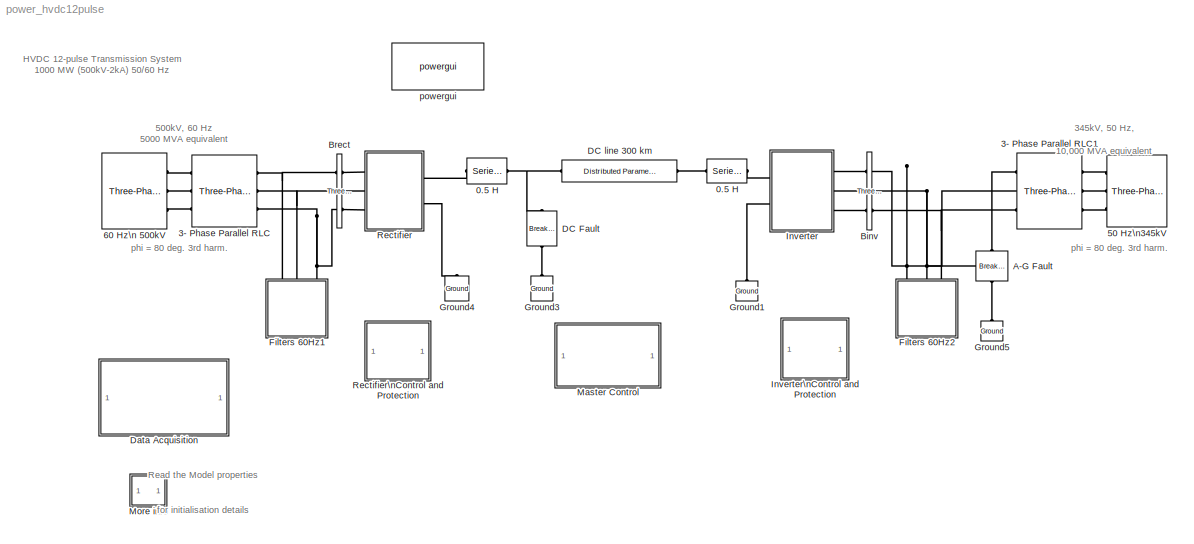
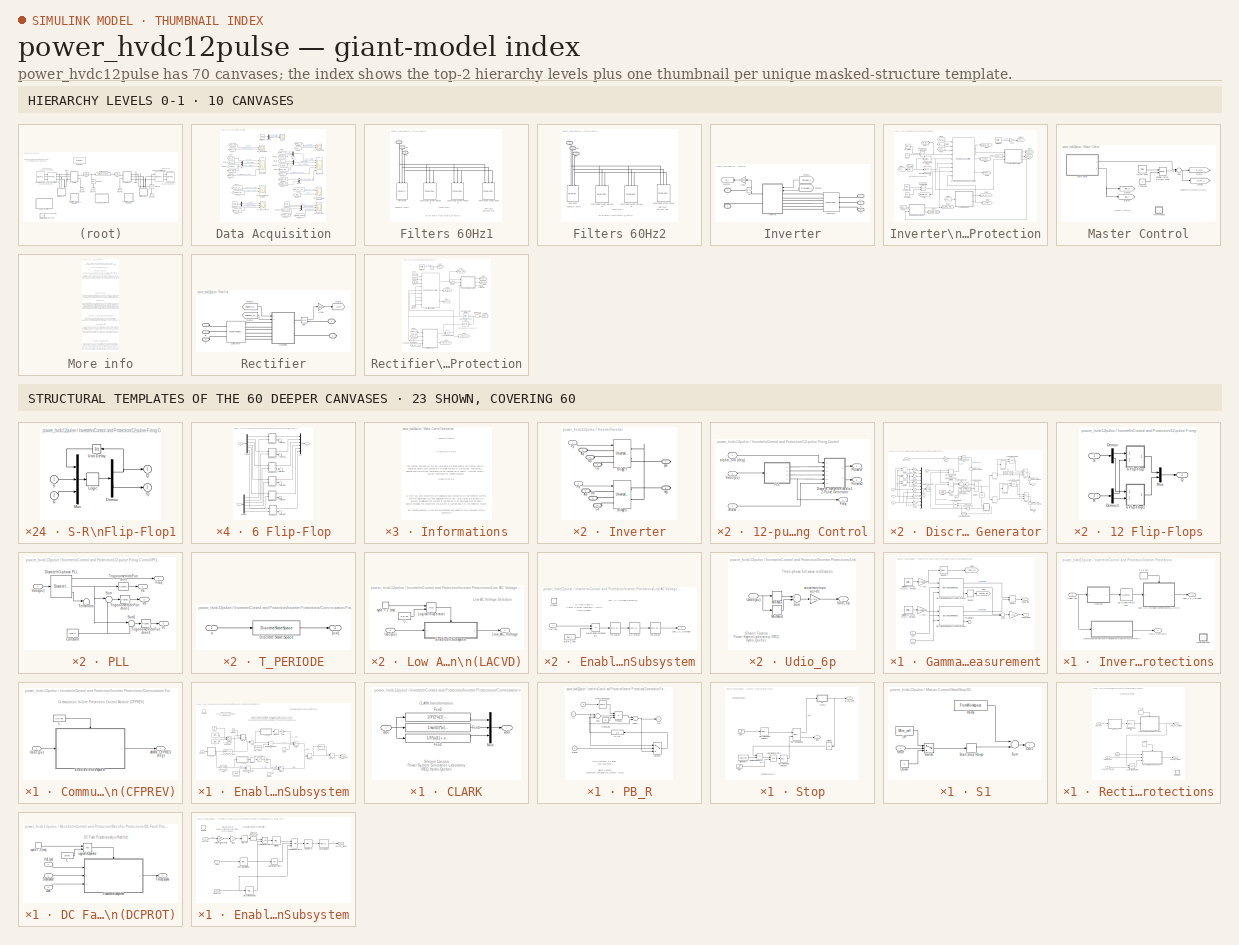
[diagram: thumbnail index - top-2 hierarchy levels (10 canvases) + 23 structural-template representatives of the remaining 60 canvases]
MODEL power_hvdc12pulse
KIND model
CONFIG InitFcn = Ts=50e-6;
BLOCK [Reference]  50 Hz\n345kV    REF=powerlib/Electrical\nSources/Three-Phase Source
  BaseVoltage = 0
  Frequency = 50
  Inductance = 28.0e-3
  InternalConnection = Yg
  PhaseAngle = 0
  Ports = [0, 0, 0, 0, 0, 0, 3]
  Resistance = 0
  ShortCircuitLevel = 0
  ShowPortLabels = on
  SourceBlock = powerlib/Electrical\nSources/Three-Phase Source
  SourceType = Three-Phase Source
  SpecifyImpedance = off
  Voltage = 345e3
  XRratio = 0
BLOCK [Reference]  60 Hz\n 500kV  REF=powerlib/Electrical\nSources/Three-Phase Source
  BaseVoltage = 0
  Frequency = 60
  Inductance = 98.03e-3
  InternalConnection = Yg
  PhaseAngle = 0
  Ports = [0, 0, 0, 0, 0, 0, 3]
  Resistance = 0
  ShortCircuitLevel = 0
  ShowPortLabels = on
  SourceBlock = powerlib/Electrical\nSources/Three-Phase Source
  SourceType = Three-Phase Source
  SpecifyImpedance = off
  Voltage = 500e3
  XRratio = 0
BLOCK [Reference] 0.5 H  REF=powerlib/Elements/Series RLC Branch
  AttributesFormatString = \\n
  Capacitance = inf
  Inductance = 0.5
  LConnTagsString = __new0
  LeftPortType = p1
  Measurements = None
  PhysicalDomain = powersysdomain
  Ports = [0, 0, 0, 0, 0, 1, 1]
  RConnTagsString = __new0
  Resistance = 1
  RightPortType = p1
  SourceBlock = powerlib/Elements/Series RLC Branch
  SourceType = Series RLC Branch
  SubClassName = unknown
BLOCK [Reference] 0.5 H   REF=powerlib/Elements/Series RLC Branch
  AttributesFormatString = \\n
  Capacitance = inf
  Inductance = 0.5
  LConnTagsString = __new0
  LeftPortType = p1
  Measurements = None
  PhysicalDomain = powersysdomain
  Ports = [0, 0, 0, 0, 0, 1, 1]
  RConnTagsString = __new0
  Resistance = 1
  RightPortType = p1
  SourceBlock = powerlib/Elements/Series RLC Branch
  SourceType = Series RLC Branch
  SubClassName = unknown
BLOCK [Reference] 3- Phase Parallel RLC  REF=powerlib/Elements/Three-Phase\nParallel RLC Branch
  AttributesFormatString = \\n
  Capacitance = 0
  Inductance = 48.86e-3
  LConnTagsString = A|B|C
  LeftPortType = p1
  Measurements = None
  PhysicalDomain = powersysdomain
  Ports = [0, 0, 0, 0, 0, 3, 3]
  RConnTagsString = A|B|C
  Resistance = 26.07
  RightPortType = p1
  SourceBlock = powerlib/Elements/Three-Phase\nParallel RLC Branch
  SourceType = Three-Phase Parallel RLC Branch
  SubClassName = unknown
BLOCK [Reference] 3- Phase Parallel RLC1  REF=powerlib/Elements/Three-Phase\nParallel RLC Branch
  AttributesFormatString = \\n
  Capacitance = 0
  Inductance = 13.96e-3
  LConnTagsString = A|B|C
  LeftPortType = p1
  Measurements = None
  PhysicalDomain = powersysdomain
  Ports = [0, 0, 0, 0, 0, 3, 3]
  RConnTagsString = A|B|C
  Resistance = 6.205
  RightPortType = p1
  SourceBlock = powerlib/Elements/Three-Phase\nParallel RLC Branch
  SourceType = Three-Phase Parallel RLC Branch
  SubClassName = unknown
BLOCK [Reference] A-G Fault  REF=powerlib/Elements/Breaker
  AttributesFormatString = \\n
  BreakerResistance = 0.01
  External = off
  InitialState = 0
  Measurements = Branch current
  Ports = [0, 0, 0, 0, 0, 1, 1]
  ShowPortLabels = on
  SnubberCapacitance = inf
  SnubberResistance = inf
  SourceBlock = powerlib/Elements/Breaker
  SourceType = Breaker
  SwitchingTimes = [ 0.7 0.8]*100
BLOCK [Reference] Binv  REF=powerlib/Measurements/Three-Phase\nV-I Measurement
  CurrentMeasurement = yes
  Ipu = on
  LabelI = Iabc_I
  LabelV = Vabc_I
  OutputType = Magnitude
  PSBequivalent = 0
  Pbase = 100e6
  PhasorSimulation = off
  Ports = [0, 0, 0, 0, 0, 3, 3]
  SetLabelI = on
  SetLabelV = on
  ShowPortLabels = on
  SourceBlock = powerlib/Measurements/Three-Phase\nV-I Measurement
  SourceType = Three-Phase VI Measurement
  Vbase = 345e3
  VoltageMeasurement = phase-to-ground
  Vpu = on
BLOCK [Reference] Brect  REF=powerlib/Measurements/Three-Phase\nV-I Measurement
  CurrentMeasurement = yes
  Ipu = on
  LabelI = Iabc_R
  LabelV = Vabc_R
  OutputType = Magnitude
  PSBequivalent = 0
  Pbase = 100e6
  PhasorSimulation = off
  Ports = [0, 0, 0, 0, 0, 3, 3]
  SetLabelI = on
  SetLabelV = on
  ShowPortLabels = on
  SourceBlock = powerlib/Measurements/Three-Phase\nV-I Measurement
  SourceType = Three-Phase VI Measurement
  Vbase = 500e3
  VoltageMeasurement = phase-to-ground
  Vpu = on
BLOCK [Reference] DC Fault  REF=powerlib/Elements/Breaker
  AttributesFormatString = \\n
  BreakerResistance = 1
  External = off
  InitialState = 0
  Measurements = Branch current
  Ports = [0, 0, 0, 0, 0, 1, 1]
  ShowPortLabels = on
  SnubberCapacitance = inf
  SnubberResistance = inf
  SourceBlock = powerlib/Elements/Breaker
  SourceType = Breaker
  SwitchingTimes = [0.7 0.75]*100
BLOCK [Reference] DC line 300 km  REF=powerlib/Elements/Distributed Parameters Line
  AttributesFormatString = \\n
  Capacitance = 14.4e-9
  Frequency = 60
  Inductance = 0.792e-3
  Length = 300
  Measurements = Phase-to-ground voltages
  Phases = 1
  Ports = [0, 0, 0, 0, 0, 1, 1]
  Resistance = 0.015
  ShowPortLabels = on
  SourceBlock = powerlib/Elements/Distributed Parameters Line
  SourceType = Distributed Parameters Line
  x1 = [0 -2.16105063708639e-012;0.000202625960824372 -2.78820694913162e-012;0.000405251921648744 -3.41415596345104e-012;0.000607877882473116 -4.03596541237589e-012;0.000810503843297489 -4.65066327836032e-012;0.00101312980412186 -5.25525247617399e-012]
  x2 = [0 -1.28636510443273e-012;0.000202625960824372 -1.90237836086429e-012;0.000405251921648744 -2.52160651295295e-012;0.000607877882473116 -3.14111601303326e-012;0.000810503843297489 -3.75791095814674e-012;0.00101312980412186 -4.36894806263535e-012]
  x3 = [0 -5.39692178751901e-015;0.000202625960824372 -7.25920757796091e-015;0.000405251921648744 -9.14272797774125e-015;0.000607877882473116 -1.10394956670709e-014;0.000810503843297489 -1.29411763980793e-014;0.00101312980412186 -1.48391265509203e-014]
  x4 = [0 4.1267112956018e-015;0.000202625960824372 8.19507726484828e-016;0.000405251921648744 -2.53679729362182e-015;0.000607877882473116 -5.92679713170551e-015;0.000810503843297489 -9.33469221052342e-015;0.00101312980412186 -1.27443660669749e-014]
  x5 = 0.00101312980412186
BLOCK [SubSystem] Data Acquisition
  MaskDisplay = disp('Open this block\\nto visualize\\nrecorded signals')
  MaskIconFrame = on
  MaskIconOpaque = on
  MaskIconRotate = none
  MaskIconUnits = autoscale
  MinAlgLoopOccurrences = off
  Ports = []
  RTWSystemCode = Auto
  TreatAsAtomicUnit = off
BLOCK [Scope] Data Acquisition/AC_INVERTER
  DataFormat = StructureWithTime
  Decimation = Ts
  LimitDataPoints = off
  NumInputPorts = 2
  Ports = [2]
  SampleInput = on
  SampleTime = Ts
  SaveName = VI_abc_inv
  SaveToWorkspace = on
  YMax = 1.5~20
  YMin = -1.25~-50
  ZoomMode = xonly
BLOCK [Scope] Data Acquisition/AC_RECTIFIER
  DataFormat = Array
  Decimation = Ts
  LimitDataPoints = off
  NumInputPorts = 2
  Ports = [2]
  SampleInput = on
  SampleTime = Ts
  SaveName = ScopeData1
  TimeRange = 0.2008622476996453
  YMax = 1~30
  YMin = -1~-25
  ZoomMode = yonly
BLOCK [Demux] Data Acquisition/Demux
  Outputs = 2
  Ports = [1, 2]
BLOCK [Demux] Data Acquisition/Demux1
  Outputs = [1 2]
  Ports = [1, 2]
BLOCK [Scope] Data Acquisition/FAULT
  DataFormat = StructureWithTime
  Decimation = Ts
  LimitDataPoints = off
  NumInputPorts = 2
  Ports = [2]
  SampleInput = on
  SampleTime = Ts
  SaveToWorkspace = on
  YMax = 1~8000
  YMin = -1~-1000
  ZoomMode = xonly
BLOCK [From] Data Acquisition/From
  CloseFcn = tagdialog Close
  DialogController = Simulink.DDGSource
  GotoTag = VdL_R
BLOCK [From] Data Acquisition/From1
  CloseFcn = tagdialog Close
  DialogController = Simulink.DDGSource
  GotoTag = Id_R
BLOCK [From] Data Acquisition/From10
  CloseFcn = tagdialog Close
  DialogController = Simulink.DDGSource
  GotoTag = Mode_R
BLOCK [From] Data Acquisition/From11
  CloseFcn = tagdialog Close
  DialogController = Simulink.DDGSource
  GotoTag = Mode_I
BLOCK [From] Data Acquisition/From12
  CloseFcn = tagdialog Close
  DialogController = Simulink.DDGSource
  GotoTag = gamma_min_I
BLOCK [From] Data Acquisition/From13
  CloseFcn = tagdialog Close
  DialogController = Simulink.DDGSource
  GotoTag = Low_ac_volt_I
BLOCK [From] Data Acquisition/From14
  CloseFcn = tagdialog Close
  DialogController = Simulink.DDGSource
  GotoTag = A_min_I
BLOCK [From] Data Acquisition/From15
  CloseFcn = tagdialog Close
  DialogController = Simulink.DDGSource
  GotoTag = Low_ac_volt_R
BLOCK [From] Data Acquisition/From16
  CloseFcn = tagdialog Close
  DialogController = Simulink.DDGSource
  GotoTag = alpha_ord_R
BLOCK [From] Data Acquisition/From17
  CloseFcn = tagdialog Close
  DialogController = Simulink.DDGSource
  GotoTag = Gamma_mean
BLOCK [From] Data Acquisition/From18
  CloseFcn = tagdialog Close
  DialogController = Simulink.DDGSource
  GotoTag = Id_ref_lim_R
BLOCK [From] Data Acquisition/From19
  CloseFcn = tagdialog Close
  DialogController = Simulink.DDGSource
  GotoTag = Id_ref_lim_I
BLOCK [From] Data Acquisition/From2
  CloseFcn = tagdialog Close
  DialogController = Simulink.DDGSource
  GotoTag = alpha_ord_R
BLOCK [From] Data Acquisition/From20
  CloseFcn = tagdialog Close
  DialogController = Simulink.DDGSource
  GotoTag = Vd_ref_I
BLOCK [From] Data Acquisition/From21
  CloseFcn = tagdialog Close
  DialogController = Simulink.DDGSource
  GotoTag = Gamma_ref_I
BLOCK [From] Data Acquisition/From22
  CloseFcn = tagdialog Close
  DialogController = Simulink.DDGSource
  GotoTag = Forced_alpha_R
BLOCK [From] Data Acquisition/From23
  CloseFcn = tagdialog Close
  DialogController = Simulink.DDGSource
  GotoTag = ISw1Y_pu
BLOCK [From] Data Acquisition/From24
  CloseFcn = tagdialog Close
  DialogController = Simulink.DDGSource
  GotoTag = Ucom1Y_pu
BLOCK [From] Data Acquisition/From3
  CloseFcn = tagdialog Close
  DialogController = Simulink.DDGSource
  GotoTag = Vabc_R
BLOCK [From] Data Acquisition/From4
  CloseFcn = tagdialog Close
  DialogController = Simulink.DDGSource
  GotoTag = Iabc_R
BLOCK [From] Data Acquisition/From5
  CloseFcn = tagdialog Close
  DialogController = Simulink.DDGSource
  GotoTag = VdL_I
BLOCK [From] Data Acquisition/From6
  CloseFcn = tagdialog Close
  DialogController = Simulink.DDGSource
  GotoTag = Id_I
BLOCK [From] Data Acquisition/From7
  CloseFcn = tagdialog Close
  DialogController = Simulink.DDGSource
  GotoTag = alpha_ord_I
BLOCK [From] Data Acquisition/From8
  CloseFcn = tagdialog Close
  DialogController = Simulink.DDGSource
  GotoTag = Vabc_I
BLOCK [From] Data Acquisition/From9
  CloseFcn = tagdialog Close
  DialogController = Simulink.DDGSource
  GotoTag = Iabc_I
BLOCK [Scope] Data Acquisition/INVERTER
  DataFormat = StructureWithTime
  Decimation = Ts
  LimitDataPoints = off
  NumInputPorts = 5
  Ports = [5]
  SampleInput = on
  SampleTime = Ts
  SaveName = inv
  SaveToWorkspace = on
  TimeRange = 2
  YMax = 1.5~1.5~200~6~200
  YMin = -0.5~-0.5~50~0~0
  ZoomMode = yonly
BLOCK [Reference] Data Acquisition/Multimeter  REF=powerlib/Measurements/Multimeter
  AttributesFormatString = \\n
  AxesSetting = [0,0.1,-100,100]
  Display = 0
  Gain = [1 1]
  L = 42
  OutputType = Magnitude
  PSBOutputType = 1
  PSBequivalent = 0
  PhasorSimulation = off
  Ports = [0, 1]
  SavedBlockNames = {}
  ShowPortLabels = on
  SourceBlock = powerlib/Measurements/Multimeter
  SourceType = MultimeterPSB
  Tag = PoWeRsYsTeMmEaSuReMeNt
  sel = [23 24]
  yselected = {'Ib: A-G Fault','Ib: DC Fault'};
BLOCK [Reference] Data Acquisition/Multimeter1  REF=powerlib/Measurements/Multimeter
  AttributesFormatString = \\n
  AxesSetting = [0,0.1,-100,100]
  Display = 0
  Gain = [1 1 1]
  L = 42
  OutputType = Magnitude
  PSBOutputType = 1
  PSBequivalent = 0
  PhasorSimulation = off
  Ports = [0, 1]
  SavedBlockNames = {}
  ShowPortLabels = on
  SourceBlock = powerlib/Measurements/Multimeter
  SourceType = MultimeterPSB
  Tag = PoWeRsYsTeMmEaSuReMeNt
  sel = [11 37 39]
  yselected = {'Usw1: Rectifier/Rectifier/Bridge Y','Isw1: Rectifier/Rectifier/Bridge Y','Isw3: Rectifier/Rectifier/Bridge Y'};
BLOCK [Reference] Data Acquisition/Multimeter2  REF=powerlib/Measurements/Multimeter
  AttributesFormatString = \\n
  AxesSetting = [0,0.1,-100,100]
  Display = 0
  Gain = 1
  L = 42
  OutputType = Magnitude
  PSBOutputType = 1
  PSBequivalent = 0
  PhasorSimulation = off
  Ports = [0, 1]
  SavedBlockNames = {}
  ShowPortLabels = on
  SourceBlock = powerlib/Measurements/Multimeter
  SourceType = MultimeterPSB
  Tag = PoWeRsYsTeMmEaSuReMeNt
  sel = 1
  yselected = {'Usw1: Inverter/Inverter/Bridge Y'};
BLOCK [Mux] Data Acquisition/Mux
  DisplayOption = bar
  Inputs = 2
  Ports = [2, 1]
BLOCK [Mux] Data Acquisition/Mux1
  DisplayOption = bar
  Inputs = 2
  Ports = [2, 1]
BLOCK [Mux] Data Acquisition/Mux2
  DisplayOption = bar
  Inputs = 2
  Ports = [2, 1]
BLOCK [Mux] Data Acquisition/Mux3
  DisplayOption = bar
  Inputs = 2
  Ports = [2, 1]
BLOCK [Mux] Data Acquisition/Mux4
  DisplayOption = bar
  Inputs = 2
  Ports = [2, 1]
BLOCK [Scope] Data Acquisition/PROTECTION\nINVERTER
  DataFormat = Array
  Decimation = Ts
  LimitDataPoints = off
  NumInputPorts = 2
  Ports = [2]
  SampleInput = on
  SampleTime = Ts
  SaveName = ScopeData2
  YMax = 1~0.0007
  YMin = -1~2.71051e-020
  ZoomMode = yonly
BLOCK [Scope] Data Acquisition/PROTECTION\nRECTIFIER
  DataFormat = Array
  Decimation = Ts
  LimitDataPoints = off
  NumInputPorts = 2
  Ports = [2]
  SampleInput = on
  SampleTime = Ts
  SaveName = ScopeData5
  YMax = 1.25~5
  YMin = -1.25~-5
  ZoomMode = xonly
BLOCK [Scope] Data Acquisition/RECTIFIER
  DataFormat = StructureWithTime
  Decimation = Ts
  LimitDataPoints = off
  NumInputPorts = 4
  Ports = [4]
  SampleInput = on
  SampleTime = Ts
  SaveName = rect
  SaveToWorkspace = on
  YMax = 1.25~1.1~175~5
  YMin = -0.5~-0.1~0~0
  ZoomMode = yonly
BLOCK [Scope] Data Acquisition/VALVE13_RECT
  DataFormat = StructureWithTime
  Decimation = Ts
  LimitDataPoints = off
  NumInputPorts = 3
  Ports = [3]
  SampleInput = on
  SampleTime = Ts
  SaveName = ScopeData3
  SaveToWorkspace = on
  YMax = 400000~2500~100
  YMin = -400000~-500~10
  ZoomMode = yonly
BLOCK [Scope] Data Acquisition/VALVE1_INV
  DataFormat = StructureWithTime
  Decimation = Ts
  LimitDataPoints = off
  NumInputPorts = 3
  Ports = [3]
  SampleInput = on
  SampleTime = Ts
  SaveName = ScopeData6
  SaveToWorkspace = on
  YMax = 350000~2~1
  YMin = -200000~-2~-1
  ZoomMode = yonly
BLOCK [SubSystem] Filters 60Hz1
  MaskDisplay = disp('AC filters \\n60 Hz\\n600 Mvar')
  MaskIconFrame = on
  MaskIconOpaque = off
  MaskIconRotate = none
  MaskIconUnits = autoscale
  MinAlgLoopOccurrences = off
  Ports = [0, 0, 0, 0, 0, 3]
  RTWSystemCode = Auto
  TreatAsAtomicUnit = off
BLOCK [Reference] Filters 60Hz1/11th\n150 Mvar\nQ=100  REF=powerlib/Elements/Three-Phase\nHarmonic Filter
  AttributesFormatString = \\n
  FilterConnection = Y (grounded)
  FilterType = Single-tuned
  Fr = [11*60]
  Frd = [11*60 13*60]
  LConnTagsString = A|B|C
  LeftPortType = p1
  Measurements = None
  ParNom = [500e3 60]
  PhysicalDomain = powersysdomain
  Ports = [0, 0, 0, 0, 0, 3]
  Q = 100
  Qc = 150e6
  RightPortType = p1
  SourceBlock = powerlib/Elements/Three-Phase\nHarmonic Filter
  SourceType = Three-Phase Harmonic Filter
  SubClassName = unknown
BLOCK [Reference] Filters 60Hz1/13th\n150 Mvar\nQ=100   REF=powerlib/Elements/Three-Phase\nHarmonic Filter
  AttributesFormatString = \\n
  FilterConnection = Y (grounded)
  FilterType = Single-tuned
  Fr = [13*60]
  Frd = [11*60 13*60]
  LConnTagsString = A|B|C
  LeftPortType = p1
  Measurements = None
  ParNom = [500e3 60]
  PhysicalDomain = powersysdomain
  Ports = [0, 0, 0, 0, 0, 3]
  Q = 100
  Qc = 150e6
  RightPortType = p1
  SourceBlock = powerlib/Elements/Three-Phase\nHarmonic Filter
  SourceType = Three-Phase Harmonic Filter
  SubClassName = unknown
BLOCK [Reference] Filters 60Hz1/150 Mvar  REF=powerlib/Elements/Three-Phase\nSeries RLC Load
  ActivePower = 0
  AttributesFormatString = \\n
  CapacitivePower = 150e6
  Configuration = Y (grounded)
  InductivePower = 0
  LConnTagsString = A|B|C
  LeftPortType = p1
  Measurements = None
  NominalFrequency = 60
  NominalVoltage = 500e3
  PhysicalDomain = powersysdomain
  Ports = [0, 0, 0, 0, 0, 3]
  RightPortType = p1
  SourceBlock = powerlib/Elements/Three-Phase\nSeries RLC Load
  SourceType = Three-Phase Series RLC Load
  SubClassName = unknown
BLOCK [Reference] Filters 60Hz1/24th\n150 Mvar\nQ=3  REF=powerlib/Elements/Three-Phase\nHarmonic Filter
  AttributesFormatString = \\n
  FilterConnection = Y (grounded)
  FilterType = High-pass
  Fr = [24*60]
  Frd = [11*60 13*60]
  LConnTagsString = A|B|C
  LeftPortType = p1
  Measurements = None
  ParNom = [500e3 60]
  PhysicalDomain = powersysdomain
  Ports = [0, 0, 0, 0, 0, 3]
  Q = 3
  Qc = 150e6
  RightPortType = p1
  SourceBlock = powerlib/Elements/Three-Phase\nHarmonic Filter
  SourceType = Three-Phase Harmonic Filter
  SubClassName = unknown
BLOCK [PMIOPort] Filters 60Hz1/A
  Port = 1
  Side = Left
BLOCK [PMIOPort] Filters 60Hz1/B
  Port = 2
  Side = Left
BLOCK [PMIOPort] Filters 60Hz1/C
  Port = 3
  Side = Left
BLOCK [SubSystem] Filters 60Hz2
  MaskDisplay = disp('AC filters \\n50 Hz\\n600 Mvar')
  MaskIconFrame = on
  MaskIconOpaque = off
  MaskIconRotate = none
  MaskIconUnits = autoscale
  MinAlgLoopOccurrences = off
  Ports = [0, 0, 0, 0, 0, 3]
  RTWSystemCode = Auto
  TreatAsAtomicUnit = off
BLOCK [Reference] Filters 60Hz2/11th\n150 Mvar\nQ=100  REF=powerlib/Elements/Three-Phase\nHarmonic Filter
  AttributesFormatString = \\n
  FilterConnection = Y (grounded)
  FilterType = Single-tuned
  Fr = [11*50]
  Frd = [11*60 13*60]
  LConnTagsString = A|B|C
  LeftPortType = p1
  Measurements = None
  ParNom = [345e3 50]
  PhysicalDomain = powersysdomain
  Ports = [0, 0, 0, 0, 0, 3]
  Q = 100
  Qc = 150e6
  RightPortType = p1
  SourceBlock = powerlib/Elements/Three-Phase\nHarmonic Filter
  SourceType = Three-Phase Harmonic Filter
  SubClassName = unknown
BLOCK [Reference] Filters 60Hz2/13th\n150 Mvar\nQ=100   REF=powerlib/Elements/Three-Phase\nHarmonic Filter
  AttributesFormatString = \\n
  FilterConnection = Y (grounded)
  FilterType = Single-tuned
  Fr = [13*50]
  Frd = [11*60 13*60]
  LConnTagsString = A|B|C
  LeftPortType = p1
  Measurements = None
  ParNom = [345e3 50]
  PhysicalDomain = powersysdomain
  Ports = [0, 0, 0, 0, 0, 3]
  Q = 100
  Qc = 150e6
  RightPortType = p1
  SourceBlock = powerlib/Elements/Three-Phase\nHarmonic Filter
  SourceType = Three-Phase Harmonic Filter
  SubClassName = unknown
BLOCK [Reference] Filters 60Hz2/150 Mvar  REF=powerlib/Elements/Three-Phase\nSeries RLC Load
  ActivePower = 0
  AttributesFormatString = \\n
  CapacitivePower = 150e6
  Configuration = Y (grounded)
  InductivePower = 0
  LConnTagsString = A|B|C
  LeftPortType = p1
  Measurements = None
  NominalFrequency = 50
  NominalVoltage = 345e3
  PhysicalDomain = powersysdomain
  Ports = [0, 0, 0, 0, 0, 3]
  RightPortType = p1
  SourceBlock = powerlib/Elements/Three-Phase\nSeries RLC Load
  SourceType = Three-Phase Series RLC Load
  SubClassName = unknown
BLOCK [Reference] Filters 60Hz2/24th\n150 Mvar\nQ=3  REF=powerlib/Elements/Three-Phase\nHarmonic Filter
  AttributesFormatString = \\n
  FilterConnection = Y (grounded)
  FilterType = High-pass
  Fr = [24*50]
  Frd = [11*60 13*60]
  LConnTagsString = A|B|C
  LeftPortType = p1
  Measurements = None
  ParNom = [345e3 50]
  PhysicalDomain = powersysdomain
  Ports = [0, 0, 0, 0, 0, 3]
  Q = 3
  Qc = 150e6
  RightPortType = p1
  SourceBlock = powerlib/Elements/Three-Phase\nHarmonic Filter
  SourceType = Three-Phase Harmonic Filter
  SubClassName = unknown
BLOCK [PMIOPort] Filters 60Hz2/A
  Port = 1
  Side = Left
BLOCK [PMIOPort] Filters 60Hz2/B
  Port = 2
  Side = Left
BLOCK [PMIOPort] Filters 60Hz2/C
  Port = 3
  Side = Left
BLOCK [Reference] Ground1  REF=powerlib/Elements/Ground
  AttributesFormatString = \\n
  LConnTagsString = a
  LeftPortType = p1
  PhysicalDomain = powersysdomain
  Ports = [0, 0, 0, 0, 0, 1]
  RightPortType = p1
  SourceBlock = powerlib/Elements/Ground
  SourceType = Ground
  SubClassName = unknown
BLOCK [Reference] Ground3  REF=powerlib/Elements/Ground
  AttributesFormatString = \\n
  LConnTagsString = a
  LeftPortType = p1
  PhysicalDomain = powersysdomain
  Ports = [0, 0, 0, 0, 0, 1]
  RightPortType = p1
  SourceBlock = powerlib/Elements/Ground
  SourceType = Ground
  SubClassName = unknown
BLOCK [Reference] Ground4  REF=powerlib/Elements/Ground
  AttributesFormatString = \\n
  LConnTagsString = a
  LeftPortType = p1
  PhysicalDomain = powersysdomain
  Ports = [0, 0, 0, 0, 0, 1]
  RightPortType = p1
  SourceBlock = powerlib/Elements/Ground
  SourceType = Ground
  SubClassName = unknown
BLOCK [Reference] Ground5  REF=powerlib/Elements/Ground
  AttributesFormatString = \\n
  LConnTagsString = a
  LeftPortType = p1
  PhysicalDomain = powersysdomain
  Ports = [0, 0, 0, 0, 0, 1]
  RightPortType = p1
  SourceBlock = powerlib/Elements/Ground
  SourceType = Ground
  SubClassName = unknown
BLOCK [SubSystem] Inverter
  MinAlgLoopOccurrences = off
  Ports = [0, 0, 0, 0, 0, 3, 2]
  RTWSystemCode = Auto
  TreatAsAtomicUnit = off
BLOCK [PMIOPort] Inverter/+
  Port = 4
  Side = Right
BLOCK [PMIOPort] Inverter/-
  Port = 5
  Side = Right
BLOCK [Reference] Inverter/1200 MVA  REF=powerlib/Elements/Three-Phase\nTransformer\n(Three Windings)
  AttributesFormatString = \\n
  DataFile = 'hysteresis'
  Hysteresis = off
  InitialFluxes = [-1.10749033878531 0.564800371868647 0.542689966916658]
  Lm = 500
  Measurements = None
  NominalPower = [ 1200e6 , 50 ]
  Ports = [0, 0, 0, 0, 0, 3, 6]
  Rm = 500
  Saturation = [0 0; 0.0024 1.2; 1.0  1.45]
  SetInitialFlux = off
  SetSaturation = off
  ShowPortLabels = on
  SourceBlock = powerlib/Elements/Three-Phase\nTransformer\n(Three Windings)
  SourceType = Three-Phase Transformer (Three Windings)
  TransfoNumber = 0
  Winding1 = [ 345e3*0.96 0.0025  0 ]
  Winding1Connection = Yg
  Winding2 = [ 200e3  0.0025 0.24]
  Winding2Connection = Y
  Winding3 = [ 200e3 0.0025 0.24 ]
  Winding3Connection = Delta (D1)
BLOCK [PMIOPort] Inverter/A
  Port = 1
  Side = Left
BLOCK [Gain] Inverter/A->pu
  Gain = 1/2000
BLOCK [PMIOPort] Inverter/B
  Port = 2
  Side = Left
BLOCK [PMIOPort] Inverter/C
  Port = 3
  Side = Left
BLOCK [From] Inverter/From3
  CloseFcn = tagdialog Close
  DialogController = Simulink.DDGSource
  GotoTag = PulsesY_I
BLOCK [From] Inverter/From5
  CloseFcn = tagdialog Close
  DialogController = Simulink.DDGSource
  GotoTag = PulsesD_I
BLOCK [Goto] Inverter/Goto11
  DialogController = Simulink.DDGSource
  GotoTag = Id_I
  TagVisibility = global
BLOCK [Reference] Inverter/Id  REF=powerlib/Measurements/Current Measurement
  AttributesFormatString = \\n
  OutputType = Magnitude
  PSBequivalent = 0
  PhasorSimulation = off
  Ports = [0, 1, 0, 0, 0, 1, 1]
  ShowPortLabels = on
  SourceBlock = powerlib/Measurements/Current Measurement
  SourceType = Current Measurement
  Tag = PoWeRsYsTeMmEaSuReMeNt
BLOCK [SubSystem] Inverter/Inverter
  MaskDisplay = plot(0,0,100,100,[30 70 50 30 ], [60 60 40 60], [50 50], [25 40], [50 50], [ 60 75], [30 70], [40 40], [50 60 70], [40 30 30]);
  MaskIconFrame = on
  MaskIconOpaque = off
  MaskIconRotate = none
  MaskIconUnits = autoscale
  MinAlgLoopOccurrences = off
  Ports = [2, 0, 0, 0, 0, 6, 2]
  RTWSystemCode = Auto
  TreatAsAtomicUnit = off
BLOCK [PMIOPort] Inverter/Inverter/Ad
  Port = 4
  Side = Left
BLOCK [PMIOPort] Inverter/Inverter/Ay
  Port = 1
  Side = Left
BLOCK [PMIOPort] Inverter/Inverter/Bd
  Port = 5
  Side = Left
BLOCK [Reference] Inverter/Inverter/Bridge D  REF=powerlib/Power\nElectronics/Universal Bridge
  Arms = 3
  AttributesFormatString = \\n
  Device = Thyristors
  ForwardVoltage = 0
  ForwardVoltages = [  0.8  0.8  ]
  GTOparameters = [ 10e-6 , 20e-6 ]
  IGBTparameters = [ 1e-6 , 2e-6 ]
  Lon = 0
  Measurements = Device currents
  Ports = [1, 0, 0, 0, 0, 3, 2]
  Ron = 1e-3
  ShowPortLabels = on
  SnubberCapacitance = 0.1e-6
  SnubberResistance = 2000
  SourceBlock = powerlib/Power\nElectronics/Universal Bridge
  SourceType = Universal Bridge
BLOCK [Reference] Inverter/Inverter/Bridge Y  REF=powerlib/Power\nElectronics/Universal Bridge
  Arms = 3
  AttributesFormatString = \\n
  Device = Thyristors
  ForwardVoltage = 0
  ForwardVoltages = [  0.8  0.8  ]
  GTOparameters = [ 10e-6 , 20e-6 ]
  IGBTparameters = [ 1e-6 , 2e-6 ]
  Lon = 0
  Measurements = All voltages and currents
  Ports = [1, 0, 0, 0, 0, 3, 2]
  Ron = 1e-3
  ShowPortLabels = on
  SnubberCapacitance = 0.1e-6
  SnubberResistance = 2000
  SourceBlock = powerlib/Power\nElectronics/Universal Bridge
  SourceType = Universal Bridge
BLOCK [PMIOPort] Inverter/Inverter/By
  Port = 2
  Side = Left
BLOCK [PMIOPort] Inverter/Inverter/Cd
  Port = 6
  Side = Left
BLOCK [PMIOPort] Inverter/Inverter/Cy
  Port = 3
  Side = Left
BLOCK [Inport] Inverter/Inverter/Pd
  IconDisplay = Port number
  LatchInput = off
  Port = 2
BLOCK [Inport] Inverter/Inverter/Py
  IconDisplay = Port number
  LatchInput = off
  Port = 1
BLOCK [PMIOPort] Inverter/Inverter/neg
  Port = 8
  Side = Right
BLOCK [PMIOPort] Inverter/Inverter/pos
  Port = 7
  Side = Right
BLOCK [SubSystem] Inverter\nControl and Protection
  MinAlgLoopOccurrences = off
  Ports = []
  RTWSystemCode = Auto
  TreatAsAtomicUnit = off
BLOCK [SubSystem] Inverter\nControl and Protection/12-pulse Firing Control
  MaskCallbackString = |||
  MaskDescription = This block contains a PLL and a 12-pulse generator to provide the firing pulses to the HVDC converter. \nThe firing control is of the equidistant type. It is based on a Phase Locked Loop (PLL) synchronized on positive-sequence of the fundamental voltage.
  MaskEnableString = on,on,on,on
  MaskHelp = INPUTS:\nalpha :  Desired firing angle of thyristors (deg).\nVabc  : 3 phase-to-ground voltages (pu)  on the primary winding of the YgYD converter transformer\nBlock  : Logical signal  (0-1). The pulses are not generated when the value is 1.\n\n\n\nOUTPUTS:\n PulsesY :  6 pulses to be sent to the half converter connected to the Wye winding.\n PulsesD :  6 pulses to be sent to the half converter co...<+29ch>
  MaskIconFrame = on
  MaskIconOpaque = on
  MaskIconRotate = none
  MaskIconUnits = autoscale
  MaskInitialization = PLL_ph = PLL_PF(1); PLL_f0 = PLL_PF(2);\nPLL_Kp = PLL_G(1); PLL_Ki = PLL_G(2);
  MaskPromptString = {Pulse Generator}: Pulse Width (deg)|{PLL}: Initial [Phase (deg) Frequency (Hz)] |{PLL}: Regulator gains [Kp (rad)  Ki (rad/s)]|Sample Time (s):
  MaskStyleString = edit,edit,edit,edit
  MaskTabNameString = ,,,
  MaskToolTipString = on,on,on,on
  MaskTunableValueString = on,on,on,on
  MaskType = HVDC Discrete 12-pulse Firing Control
  MaskValueString = 101.5|[0,  50]|[60, 1400]|Ts
  MaskVarAliasString = ,,,
  MaskVariables = Pw=@1;PLL_PF=@2;PLL_G=@3;dt=@4;
  MaskVisibilityString = on,on,on,on
  MinAlgLoopOccurrences = off
  Ports = [3, 3]
  RTWSystemCode = Auto
  TreatAsAtomicUnit = off
BLOCK [Inport] Inverter\nControl and Protection/12-pulse Firing Control/Block
  IconDisplay = Port number
  LatchInput = off
  Port = 3
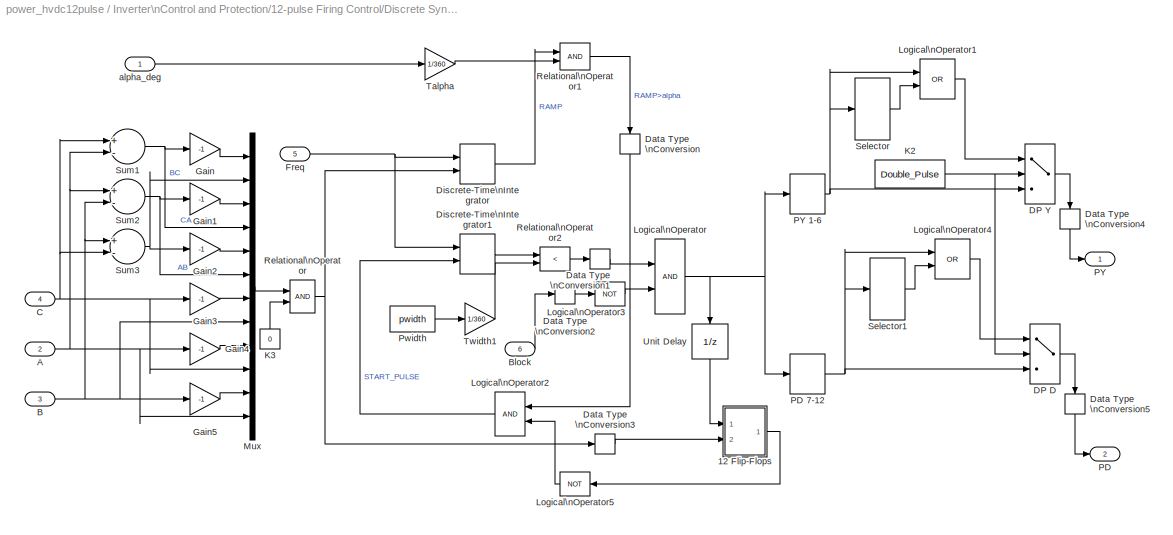
BLOCK [SubSystem] Inverter\nControl and Protection/12-pulse Firing Control/Discrete Synchronized\n12-Pulse Generator
  AncestorBlock = powerlib_extras/Discrete \nControl Blocks/Discrete Synchronized\n12-Pulse Generator
  MaskCallbackString = ||
  MaskDescription = Use his block  to fire the 12 thyristors of a 12-pulse converter.                                                                                             \nOutputs 1 and 2 are two vectors of 6 pulses (0-1) to be sent to the two 6-pulse half bridges connected respectively to the Wye(Y) and Delta (D) connected windings of the YYD converter transformer. Pulses are individually synchronized on the...<+725ch>
  MaskDisplay = plot(0,0,100,100,[80 62 62 47 47 30],[40 40 60 60 40 40]-5)
  MaskEnableString = on,on,on
  MaskIconFrame = on
  MaskIconOpaque = off
  MaskIconRotate = none
  MaskIconUnits = autoscale
  MaskInitialization = \n\n\n
  MaskPromptString = Pulse width (degrees) :|Double pulsing |Sample time:
  MaskStyleString = edit,checkbox,edit
  MaskTabNameString = ,,
  MaskToolTipString = on,on,on
  MaskTunableValueString = on,on,on
  MaskType = Discrete synchronized 12-pulse generator
  MaskValueString = Pw|off|dt
  MaskVarAliasString = ,,
  MaskVariables = pwidth=@1;Double_Pulse=@2;Ts=@3;
  MaskVisibilityString = on,on,on
  MinAlgLoopOccurrences = off
  Ports = [6, 2]
  RTWSystemCode = Auto
  TreatAsAtomicUnit = off
BLOCK [SubSystem] Inverter\nControl and Protection/12-pulse Firing Control/Discrete Synchronized\n12-Pulse Generator/12 Flip-Flops
  MinAlgLoopOccurrences = off
  Ports = [2, 1]
  RTWSystemCode = Auto
  TreatAsAtomicUnit = off
BLOCK [SubSystem] Inverter\nControl and Protection/12-pulse Firing Control/Discrete Synchronized\n12-Pulse Generator/12 Flip-Flops/6 Flip-Flop
  MinAlgLoopOccurrences = off
  Ports = [2, 1]
  RTWSystemCode = Auto
  TreatAsAtomicUnit = off
BLOCK [Demux] Inverter\nControl and Protection/12-pulse Firing Control/Discrete Synchronized\n12-Pulse Generator/12 Flip-Flops/6 Flip-Flop/Demux
  Outputs = 6
  Ports = [1, 6]
BLOCK [Demux] Inverter\nControl and Protection/12-pulse Firing Control/Discrete Synchronized\n12-Pulse Generator/12 Flip-Flops/6 Flip-Flop/Demux1
  Outputs = 6
  Ports = [1, 6]
BLOCK [Mux] Inverter\nControl and Protection/12-pulse Firing Control/Discrete Synchronized\n12-Pulse Generator/12 Flip-Flops/6 Flip-Flop/Mux
  DisplayOption = bar
  Inputs = 6
  Ports = [6, 1]
BLOCK [Outport] Inverter\nControl and Protection/12-pulse Firing Control/Discrete Synchronized\n12-Pulse Generator/12 Flip-Flops/6 Flip-Flop/Q
  BusOutputAsStruct = off
  IconDisplay = Port number
BLOCK [Inport] Inverter\nControl and Protection/12-pulse Firing Control/Discrete Synchronized\n12-Pulse Generator/12 Flip-Flops/6 Flip-Flop/R
  IconDisplay = Port number
  LatchInput = off
  Port = 2
BLOCK [Inport] Inverter\nControl and Protection/12-pulse Firing Control/Discrete Synchronized\n12-Pulse Generator/12 Flip-Flops/6 Flip-Flop/S
  IconDisplay = Port number
  LatchInput = off
  Port = 1
BLOCK [SubSystem] Inverter\nControl and Protection/12-pulse Firing Control/Discrete Synchronized\n12-Pulse Generator/12 Flip-Flops/6 Flip-Flop/S-R\nFlip-Flop1
  MaskCallbackString = |
  MaskDescription = S-R Flip Flop Block\n
  MaskEnableString = on,on
  MaskIconFrame = on
  MaskIconOpaque = on
  MaskIconRotate = none
  MaskIconUnits = autoscale
  MaskPromptString = Initial condition:|Sample time:
  MaskStyleString = edit,edit
  MaskTabNameString = ,
  MaskToolTipString = on,on
  MaskTunableValueString = on,on
  MaskType = SRFlipFlop
  MaskValueString = 0|Ts
  MaskVarAliasString = ,
  MaskVariables = initial_condition=@1;Ts=@2;
  MaskVisibilityString = on,on
  MinAlgLoopOccurrences = off
  Ports = [2, 2]
  RTWSystemCode = Auto
  TreatAsAtomicUnit = off
BLOCK [Outport] Inverter\nControl and Protection/12-pulse Firing Control/Discrete Synchronized\n12-Pulse Generator/12 Flip-Flops/6 Flip-Flop/S-R\nFlip-Flop1/!Q
  BusOutputAsStruct = off
  IconDisplay = Port number
  InitialOutput = 1
  Port = 2
BLOCK [Demux] Inverter\nControl and Protection/12-pulse Firing Control/Discrete Synchronized\n12-Pulse Generator/12 Flip-Flops/6 Flip-Flop/S-R\nFlip-Flop1/Demux
  Outputs = 2
  Ports = [1, 2]
BLOCK [CombinatorialLogic] Inverter\nControl and Protection/12-pulse Firing Control/Discrete Synchronized\n12-Pulse Generator/12 Flip-Flops/6 Flip-Flop/S-R\nFlip-Flop1/Logic
  TruthTable = [0 1;0 1;1 0;0 1;1 0;0 1;1 0;1 0]
BLOCK [Mux] Inverter\nControl and Protection/12-pulse Firing Control/Discrete Synchronized\n12-Pulse Generator/12 Flip-Flops/6 Flip-Flop/S-R\nFlip-Flop1/Mux
  Inputs = 3
  Ports = [3, 1]
BLOCK [Outport] Inverter\nControl and Protection/12-pulse Firing Control/Discrete Synchronized\n12-Pulse Generator/12 Flip-Flops/6 Flip-Flop/S-R\nFlip-Flop1/Q
  BusOutputAsStruct = off
  IconDisplay = Port number
  InitialOutput = 0
BLOCK [Inport] Inverter\nControl and Protection/12-pulse Firing Control/Discrete Synchronized\n12-Pulse Generator/12 Flip-Flops/6 Flip-Flop/S-R\nFlip-Flop1/R
  IconDisplay = Port number
  LatchInput = off
  Port = 2
BLOCK [Inport] Inverter\nControl and Protection/12-pulse Firing Control/Discrete Synchronized\n12-Pulse Generator/12 Flip-Flops/6 Flip-Flop/S-R\nFlip-Flop1/S
  IconDisplay = Port number
  LatchInput = off
  Port = 1
BLOCK [UnitDelay] Inverter\nControl and Protection/12-pulse Firing Control/Discrete Synchronized\n12-Pulse Generator/12 Flip-Flops/6 Flip-Flop/S-R\nFlip-Flop1/Unit Delay
  SampleTime = Ts
  X0 = initial_condition
BLOCK [SubSystem] Inverter\nControl and Protection/12-pulse Firing Control/Discrete Synchronized\n12-Pulse Generator/12 Flip-Flops/6 Flip-Flop/S-R\nFlip-Flop2
  MaskCallbackString = |
  MaskDescription = S-R Flip Flop Block\n
  MaskEnableString = on,on
  MaskIconFrame = on
  MaskIconOpaque = on
  MaskIconRotate = none
  MaskIconUnits = autoscale
  MaskPromptString = Initial condition:|Sample time:
  MaskStyleString = edit,edit
  MaskTabNameString = ,
  MaskToolTipString = on,on
  MaskTunableValueString = on,on
  MaskType = SRFlipFlop
  MaskValueString = 0|Ts
  MaskVarAliasString = ,
  MaskVariables = initial_condition=@1;Ts=@2;
  MaskVisibilityString = on,on
  MinAlgLoopOccurrences = off
  Ports = [2, 2]
  RTWSystemCode = Auto
  TreatAsAtomicUnit = off
BLOCK [Outport] Inverter\nControl and Protection/12-pulse Firing Control/Discrete Synchronized\n12-Pulse Generator/12 Flip-Flops/6 Flip-Flop/S-R\nFlip-Flop2/!Q
  BusOutputAsStruct = off
  IconDisplay = Port number
  InitialOutput = 1
  Port = 2
BLOCK [Demux] Inverter\nControl and Protection/12-pulse Firing Control/Discrete Synchronized\n12-Pulse Generator/12 Flip-Flops/6 Flip-Flop/S-R\nFlip-Flop2/Demux
  Outputs = 2
  Ports = [1, 2]
BLOCK [CombinatorialLogic] Inverter\nControl and Protection/12-pulse Firing Control/Discrete Synchronized\n12-Pulse Generator/12 Flip-Flops/6 Flip-Flop/S-R\nFlip-Flop2/Logic
  TruthTable = [0 1;0 1;1 0;0 1;1 0;0 1;1 0;1 0]
BLOCK [Mux] Inverter\nControl and Protection/12-pulse Firing Control/Discrete Synchronized\n12-Pulse Generator/12 Flip-Flops/6 Flip-Flop/S-R\nFlip-Flop2/Mux
  Inputs = 3
  Ports = [3, 1]
BLOCK [Outport] Inverter\nControl and Protection/12-pulse Firing Control/Discrete Synchronized\n12-Pulse Generator/12 Flip-Flops/6 Flip-Flop/S-R\nFlip-Flop2/Q
  BusOutputAsStruct = off
  IconDisplay = Port number
  InitialOutput = 0
BLOCK [Inport] Inverter\nControl and Protection/12-pulse Firing Control/Discrete Synchronized\n12-Pulse Generator/12 Flip-Flops/6 Flip-Flop/S-R\nFlip-Flop2/R
  IconDisplay = Port number
  LatchInput = off
  Port = 2
BLOCK [Inport] Inverter\nControl and Protection/12-pulse Firing Control/Discrete Synchronized\n12-Pulse Generator/12 Flip-Flops/6 Flip-Flop/S-R\nFlip-Flop2/S
  IconDisplay = Port number
  LatchInput = off
  Port = 1
BLOCK [UnitDelay] Inverter\nControl and Protection/12-pulse Firing Control/Discrete Synchronized\n12-Pulse Generator/12 Flip-Flops/6 Flip-Flop/S-R\nFlip-Flop2/Unit Delay
  SampleTime = Ts
  X0 = initial_condition
BLOCK [SubSystem] Inverter\nControl and Protection/12-pulse Firing Control/Discrete Synchronized\n12-Pulse Generator/12 Flip-Flops/6 Flip-Flop/S-R\nFlip-Flop3
  MaskCallbackString = |
  MaskDescription = S-R Flip Flop Block\n
  MaskEnableString = on,on
  MaskIconFrame = on
  MaskIconOpaque = on
  MaskIconRotate = none
  MaskIconUnits = autoscale
  MaskPromptString = Initial condition:|Sample time:
  MaskStyleString = edit,edit
  MaskTabNameString = ,
  MaskToolTipString = on,on
  MaskTunableValueString = on,on
  MaskType = SRFlipFlop
  MaskValueString = 0|Ts
  MaskVarAliasString = ,
  MaskVariables = initial_condition=@1;Ts=@2;
  MaskVisibilityString = on,on
  MinAlgLoopOccurrences = off
  Ports = [2, 2]
  RTWSystemCode = Auto
  TreatAsAtomicUnit = off
BLOCK [Outport] Inverter\nControl and Protection/12-pulse Firing Control/Discrete Synchronized\n12-Pulse Generator/12 Flip-Flops/6 Flip-Flop/S-R\nFlip-Flop3/!Q
  BusOutputAsStruct = off
  IconDisplay = Port number
  InitialOutput = 1
  Port = 2
BLOCK [Demux] Inverter\nControl and Protection/12-pulse Firing Control/Discrete Synchronized\n12-Pulse Generator/12 Flip-Flops/6 Flip-Flop/S-R\nFlip-Flop3/Demux
  Outputs = 2
  Ports = [1, 2]
BLOCK [CombinatorialLogic] Inverter\nControl and Protection/12-pulse Firing Control/Discrete Synchronized\n12-Pulse Generator/12 Flip-Flops/6 Flip-Flop/S-R\nFlip-Flop3/Logic
  TruthTable = [0 1;0 1;1 0;0 1;1 0;0 1;1 0;1 0]
BLOCK [Mux] Inverter\nControl and Protection/12-pulse Firing Control/Discrete Synchronized\n12-Pulse Generator/12 Flip-Flops/6 Flip-Flop/S-R\nFlip-Flop3/Mux
  Inputs = 3
  Ports = [3, 1]
BLOCK [Outport] Inverter\nControl and Protection/12-pulse Firing Control/Discrete Synchronized\n12-Pulse Generator/12 Flip-Flops/6 Flip-Flop/S-R\nFlip-Flop3/Q
  BusOutputAsStruct = off
  IconDisplay = Port number
  InitialOutput = 0
BLOCK [Inport] Inverter\nControl and Protection/12-pulse Firing Control/Discrete Synchronized\n12-Pulse Generator/12 Flip-Flops/6 Flip-Flop/S-R\nFlip-Flop3/R
  IconDisplay = Port number
  LatchInput = off
  Port = 2
BLOCK [Inport] Inverter\nControl and Protection/12-pulse Firing Control/Discrete Synchronized\n12-Pulse Generator/12 Flip-Flops/6 Flip-Flop/S-R\nFlip-Flop3/S
  IconDisplay = Port number
  LatchInput = off
  Port = 1
BLOCK [UnitDelay] Inverter\nControl and Protection/12-pulse Firing Control/Discrete Synchronized\n12-Pulse Generator/12 Flip-Flops/6 Flip-Flop/S-R\nFlip-Flop3/Unit Delay
  SampleTime = Ts
  X0 = initial_condition
BLOCK [SubSystem] Inverter\nControl and Protection/12-pulse Firing Control/Discrete Synchronized\n12-Pulse Generator/12 Flip-Flops/6 Flip-Flop/S-R\nFlip-Flop4
  MaskCallbackString = |
  MaskDescription = S-R Flip Flop Block\n
  MaskEnableString = on,on
  MaskIconFrame = on
  MaskIconOpaque = on
  MaskIconRotate = none
  MaskIconUnits = autoscale
  MaskPromptString = Initial condition:|Sample time:
  MaskStyleString = edit,edit
  MaskTabNameString = ,
  MaskToolTipString = on,on
  MaskTunableValueString = on,on
  MaskType = SRFlipFlop
  MaskValueString = 0|Ts
  MaskVarAliasString = ,
  MaskVariables = initial_condition=@1;Ts=@2;
  MaskVisibilityString = on,on
  MinAlgLoopOccurrences = off
  Ports = [2, 2]
  RTWSystemCode = Auto
  TreatAsAtomicUnit = off
BLOCK [Outport] Inverter\nControl and Protection/12-pulse Firing Control/Discrete Synchronized\n12-Pulse Generator/12 Flip-Flops/6 Flip-Flop/S-R\nFlip-Flop4/!Q
  BusOutputAsStruct = off
  IconDisplay = Port number
  InitialOutput = 1
  Port = 2
BLOCK [Demux] Inverter\nControl and Protection/12-pulse Firing Control/Discrete Synchronized\n12-Pulse Generator/12 Flip-Flops/6 Flip-Flop/S-R\nFlip-Flop4/Demux
  Outputs = 2
  Ports = [1, 2]
BLOCK [CombinatorialLogic] Inverter\nControl and Protection/12-pulse Firing Control/Discrete Synchronized\n12-Pulse Generator/12 Flip-Flops/6 Flip-Flop/S-R\nFlip-Flop4/Logic
  TruthTable = [0 1;0 1;1 0;0 1;1 0;0 1;1 0;1 0]
BLOCK [Mux] Inverter\nControl and Protection/12-pulse Firing Control/Discrete Synchronized\n12-Pulse Generator/12 Flip-Flops/6 Flip-Flop/S-R\nFlip-Flop4/Mux
  Inputs = 3
  Ports = [3, 1]
BLOCK [Outport] Inverter\nControl and Protection/12-pulse Firing Control/Discrete Synchronized\n12-Pulse Generator/12 Flip-Flops/6 Flip-Flop/S-R\nFlip-Flop4/Q
  BusOutputAsStruct = off
  IconDisplay = Port number
  InitialOutput = 0
BLOCK [Inport] Inverter\nControl and Protection/12-pulse Firing Control/Discrete Synchronized\n12-Pulse Generator/12 Flip-Flops/6 Flip-Flop/S-R\nFlip-Flop4/R
  IconDisplay = Port number
  LatchInput = off
  Port = 2
BLOCK [Inport] Inverter\nControl and Protection/12-pulse Firing Control/Discrete Synchronized\n12-Pulse Generator/12 Flip-Flops/6 Flip-Flop/S-R\nFlip-Flop4/S
  IconDisplay = Port number
  LatchInput = off
  Port = 1
BLOCK [UnitDelay] Inverter\nControl and Protection/12-pulse Firing Control/Discrete Synchronized\n12-Pulse Generator/12 Flip-Flops/6 Flip-Flop/S-R\nFlip-Flop4/Unit Delay
  SampleTime = Ts
  X0 = initial_condition
BLOCK [SubSystem] Inverter\nControl and Protection/12-pulse Firing Control/Discrete Synchronized\n12-Pulse Generator/12 Flip-Flops/6 Flip-Flop/S-R\nFlip-Flop5
  MaskCallbackString = |
  MaskDescription = S-R Flip Flop Block\n
  MaskEnableString = on,on
  MaskIconFrame = on
  MaskIconOpaque = on
  MaskIconRotate = none
  MaskIconUnits = autoscale
  MaskPromptString = Initial condition:|Sample time:
  MaskStyleString = edit,edit
  MaskTabNameString = ,
  MaskToolTipString = on,on
  MaskTunableValueString = on,on
  MaskType = SRFlipFlop
  MaskValueString = 0|Ts
  MaskVarAliasString = ,
  MaskVariables = initial_condition=@1;Ts=@2;
  MaskVisibilityString = on,on
  MinAlgLoopOccurrences = off
  Ports = [2, 2]
  RTWSystemCode = Auto
  TreatAsAtomicUnit = off
BLOCK [Outport] Inverter\nControl and Protection/12-pulse Firing Control/Discrete Synchronized\n12-Pulse Generator/12 Flip-Flops/6 Flip-Flop/S-R\nFlip-Flop5/!Q
  BusOutputAsStruct = off
  IconDisplay = Port number
  InitialOutput = 1
  Port = 2
BLOCK [Demux] Inverter\nControl and Protection/12-pulse Firing Control/Discrete Synchronized\n12-Pulse Generator/12 Flip-Flops/6 Flip-Flop/S-R\nFlip-Flop5/Demux
  Outputs = 2
  Ports = [1, 2]
BLOCK [CombinatorialLogic] Inverter\nControl and Protection/12-pulse Firing Control/Discrete Synchronized\n12-Pulse Generator/12 Flip-Flops/6 Flip-Flop/S-R\nFlip-Flop5/Logic
  TruthTable = [0 1;0 1;1 0;0 1;1 0;0 1;1 0;1 0]
BLOCK [Mux] Inverter\nControl and Protection/12-pulse Firing Control/Discrete Synchronized\n12-Pulse Generator/12 Flip-Flops/6 Flip-Flop/S-R\nFlip-Flop5/Mux
  Inputs = 3
  Ports = [3, 1]
BLOCK [Outport] Inverter\nControl and Protection/12-pulse Firing Control/Discrete Synchronized\n12-Pulse Generator/12 Flip-Flops/6 Flip-Flop/S-R\nFlip-Flop5/Q
  BusOutputAsStruct = off
  IconDisplay = Port number
  InitialOutput = 0
BLOCK [Inport] Inverter\nControl and Protection/12-pulse Firing Control/Discrete Synchronized\n12-Pulse Generator/12 Flip-Flops/6 Flip-Flop/S-R\nFlip-Flop5/R
  IconDisplay = Port number
  LatchInput = off
  Port = 2
BLOCK [Inport] Inverter\nControl and Protection/12-pulse Firing Control/Discrete Synchronized\n12-Pulse Generator/12 Flip-Flops/6 Flip-Flop/S-R\nFlip-Flop5/S
  IconDisplay = Port number
  LatchInput = off
  Port = 1
BLOCK [UnitDelay] Inverter\nControl and Protection/12-pulse Firing Control/Discrete Synchronized\n12-Pulse Generator/12 Flip-Flops/6 Flip-Flop/S-R\nFlip-Flop5/Unit Delay
  SampleTime = Ts
  X0 = initial_condition
BLOCK [SubSystem] Inverter\nControl and Protection/12-pulse Firing Control/Discrete Synchronized\n12-Pulse Generator/12 Flip-Flops/6 Flip-Flop/S-R\nFlip-Flop6
  MaskCallbackString = |
  MaskDescription = S-R Flip Flop Block\n
  MaskEnableString = on,on
  MaskIconFrame = on
  MaskIconOpaque = on
  MaskIconRotate = none
  MaskIconUnits = autoscale
  MaskPromptString = Initial condition:|Sample time:
  MaskStyleString = edit,edit
  MaskTabNameString = ,
  MaskToolTipString = on,on
  MaskTunableValueString = on,on
  MaskType = SRFlipFlop
  MaskValueString = 0|Ts
  MaskVarAliasString = ,
  MaskVariables = initial_condition=@1;Ts=@2;
  MaskVisibilityString = on,on
  MinAlgLoopOccurrences = off
  Ports = [2, 2]
  RTWSystemCode = Auto
  TreatAsAtomicUnit = off
BLOCK [Outport] Inverter\nControl and Protection/12-pulse Firing Control/Discrete Synchronized\n12-Pulse Generator/12 Flip-Flops/6 Flip-Flop/S-R\nFlip-Flop6/!Q
  BusOutputAsStruct = off
  IconDisplay = Port number
  InitialOutput = 1
  Port = 2
BLOCK [Demux] Inverter\nControl and Protection/12-pulse Firing Control/Discrete Synchronized\n12-Pulse Generator/12 Flip-Flops/6 Flip-Flop/S-R\nFlip-Flop6/Demux
  Outputs = 2
  Ports = [1, 2]
BLOCK [CombinatorialLogic] Inverter\nControl and Protection/12-pulse Firing Control/Discrete Synchronized\n12-Pulse Generator/12 Flip-Flops/6 Flip-Flop/S-R\nFlip-Flop6/Logic
  TruthTable = [0 1;0 1;1 0;0 1;1 0;0 1;1 0;1 0]
BLOCK [Mux] Inverter\nControl and Protection/12-pulse Firing Control/Discrete Synchronized\n12-Pulse Generator/12 Flip-Flops/6 Flip-Flop/S-R\nFlip-Flop6/Mux
  Inputs = 3
  Ports = [3, 1]
BLOCK [Outport] Inverter\nControl and Protection/12-pulse Firing Control/Discrete Synchronized\n12-Pulse Generator/12 Flip-Flops/6 Flip-Flop/S-R\nFlip-Flop6/Q
  BusOutputAsStruct = off
  IconDisplay = Port number
  InitialOutput = 0
BLOCK [Inport] Inverter\nControl and Protection/12-pulse Firing Control/Discrete Synchronized\n12-Pulse Generator/12 Flip-Flops/6 Flip-Flop/S-R\nFlip-Flop6/R
  IconDisplay = Port number
  LatchInput = off
  Port = 2
BLOCK [Inport] Inverter\nControl and Protection/12-pulse Firing Control/Discrete Synchronized\n12-Pulse Generator/12 Flip-Flops/6 Flip-Flop/S-R\nFlip-Flop6/S
  IconDisplay = Port number
  LatchInput = off
  Port = 1
BLOCK [UnitDelay] Inverter\nControl and Protection/12-pulse Firing Control/Discrete Synchronized\n12-Pulse Generator/12 Flip-Flops/6 Flip-Flop/S-R\nFlip-Flop6/Unit Delay
  SampleTime = Ts
  X0 = initial_condition
BLOCK [Terminator] Inverter\nControl and Protection/12-pulse Firing Control/Discrete Synchronized\n12-Pulse Generator/12 Flip-Flops/6 Flip-Flop/Terminator
BLOCK [Terminator] Inverter\nControl and Protection/12-pulse Firing Control/Discrete Synchronized\n12-Pulse Generator/12 Flip-Flops/6 Flip-Flop/Terminator1
BLOCK [Terminator] Inverter\nControl and Protection/12-pulse Firing Control/Discrete Synchronized\n12-Pulse Generator/12 Flip-Flops/6 Flip-Flop/Terminator2
BLOCK [Terminator] Inverter\nControl and Protection/12-pulse Firing Control/Discrete Synchronized\n12-Pulse Generator/12 Flip-Flops/6 Flip-Flop/Terminator3
BLOCK [Terminator] Inverter\nControl and Protection/12-pulse Firing Control/Discrete Synchronized\n12-Pulse Generator/12 Flip-Flops/6 Flip-Flop/Terminator4
BLOCK [Terminator] Inverter\nControl and Protection/12-pulse Firing Control/Discrete Synchronized\n12-Pulse Generator/12 Flip-Flops/6 Flip-Flop/Terminator5
BLOCK [SubSystem] Inverter\nControl and Protection/12-pulse Firing Control/Discrete Synchronized\n12-Pulse Generator/12 Flip-Flops/6 Flip-Flop1
  MinAlgLoopOccurrences = off
  Ports = [2, 1]
  RTWSystemCode = Auto
  TreatAsAtomicUnit = off
BLOCK [Demux] Inverter\nControl and Protection/12-pulse Firing Control/Discrete Synchronized\n12-Pulse Generator/12 Flip-Flops/6 Flip-Flop1/Demux
  Outputs = 6
  Ports = [1, 6]
BLOCK [Demux] Inverter\nControl and Protection/12-pulse Firing Control/Discrete Synchronized\n12-Pulse Generator/12 Flip-Flops/6 Flip-Flop1/Demux1
  Outputs = 6
  Ports = [1, 6]
BLOCK [Mux] Inverter\nControl and Protection/12-pulse Firing Control/Discrete Synchronized\n12-Pulse Generator/12 Flip-Flops/6 Flip-Flop1/Mux
  DisplayOption = bar
  Inputs = 6
  Ports = [6, 1]
BLOCK [Outport] Inverter\nControl and Protection/12-pulse Firing Control/Discrete Synchronized\n12-Pulse Generator/12 Flip-Flops/6 Flip-Flop1/Q
  BusOutputAsStruct = off
  IconDisplay = Port number
BLOCK [Inport] Inverter\nControl and Protection/12-pulse Firing Control/Discrete Synchronized\n12-Pulse Generator/12 Flip-Flops/6 Flip-Flop1/R
  IconDisplay = Port number
  LatchInput = off
  Port = 2
BLOCK [Inport] Inverter\nControl and Protection/12-pulse Firing Control/Discrete Synchronized\n12-Pulse Generator/12 Flip-Flops/6 Flip-Flop1/S
  IconDisplay = Port number
  LatchInput = off
  Port = 1
BLOCK [SubSystem] Inverter\nControl and Protection/12-pulse Firing Control/Discrete Synchronized\n12-Pulse Generator/12 Flip-Flops/6 Flip-Flop1/S-R\nFlip-Flop1
  MaskCallbackString = |
  MaskDescription = S-R Flip Flop Block\n
  MaskEnableString = on,on
  MaskIconFrame = on
  MaskIconOpaque = on
  MaskIconRotate = none
  MaskIconUnits = autoscale
  MaskPromptString = Initial condition:|Sample time:
  MaskStyleString = edit,edit
  MaskTabNameString = ,
  MaskToolTipString = on,on
  MaskTunableValueString = on,on
  MaskType = SRFlipFlop
  MaskValueString = 0|Ts
  MaskVarAliasString = ,
  MaskVariables = initial_condition=@1;Ts=@2;
  MaskVisibilityString = on,on
  MinAlgLoopOccurrences = off
  Ports = [2, 2]
  RTWSystemCode = Auto
  TreatAsAtomicUnit = off
BLOCK [Outport] Inverter\nControl and Protection/12-pulse Firing Control/Discrete Synchronized\n12-Pulse Generator/12 Flip-Flops/6 Flip-Flop1/S-R\nFlip-Flop1/!Q
  BusOutputAsStruct = off
  IconDisplay = Port number
  InitialOutput = 1
  Port = 2
BLOCK [Demux] Inverter\nControl and Protection/12-pulse Firing Control/Discrete Synchronized\n12-Pulse Generator/12 Flip-Flops/6 Flip-Flop1/S-R\nFlip-Flop1/Demux
  Outputs = 2
  Ports = [1, 2]
BLOCK [CombinatorialLogic] Inverter\nControl and Protection/12-pulse Firing Control/Discrete Synchronized\n12-Pulse Generator/12 Flip-Flops/6 Flip-Flop1/S-R\nFlip-Flop1/Logic
  TruthTable = [0 1;0 1;1 0;0 1;1 0;0 1;1 0;1 0]
BLOCK [Mux] Inverter\nControl and Protection/12-pulse Firing Control/Discrete Synchronized\n12-Pulse Generator/12 Flip-Flops/6 Flip-Flop1/S-R\nFlip-Flop1/Mux
  Inputs = 3
  Ports = [3, 1]
BLOCK [Outport] Inverter\nControl and Protection/12-pulse Firing Control/Discrete Synchronized\n12-Pulse Generator/12 Flip-Flops/6 Flip-Flop1/S-R\nFlip-Flop1/Q
  BusOutputAsStruct = off
  IconDisplay = Port number
  InitialOutput = 0
BLOCK [Inport] Inverter\nControl and Protection/12-pulse Firing Control/Discrete Synchronized\n12-Pulse Generator/12 Flip-Flops/6 Flip-Flop1/S-R\nFlip-Flop1/R
  IconDisplay = Port number
  LatchInput = off
  Port = 2
BLOCK [Inport] Inverter\nControl and Protection/12-pulse Firing Control/Discrete Synchronized\n12-Pulse Generator/12 Flip-Flops/6 Flip-Flop1/S-R\nFlip-Flop1/S
  IconDisplay = Port number
  LatchInput = off
  Port = 1
BLOCK [UnitDelay] Inverter\nControl and Protection/12-pulse Firing Control/Discrete Synchronized\n12-Pulse Generator/12 Flip-Flops/6 Flip-Flop1/S-R\nFlip-Flop1/Unit Delay
  SampleTime = Ts
  X0 = initial_condition
BLOCK [SubSystem] Inverter\nControl and Protection/12-pulse Firing Control/Discrete Synchronized\n12-Pulse Generator/12 Flip-Flops/6 Flip-Flop1/S-R\nFlip-Flop2
  MaskCallbackString = |
  MaskDescription = S-R Flip Flop Block\n
  MaskEnableString = on,on
  MaskIconFrame = on
  MaskIconOpaque = on
  MaskIconRotate = none
  MaskIconUnits = autoscale
  MaskPromptString = Initial condition:|Sample time:
  MaskStyleString = edit,edit
  MaskTabNameString = ,
  MaskToolTipString = on,on
  MaskTunableValueString = on,on
  MaskType = SRFlipFlop
  MaskValueString = 0|Ts
  MaskVarAliasString = ,
  MaskVariables = initial_condition=@1;Ts=@2;
  MaskVisibilityString = on,on
  MinAlgLoopOccurrences = off
  Ports = [2, 2]
  RTWSystemCode = Auto
  TreatAsAtomicUnit = off
BLOCK [Outport] Inverter\nControl and Protection/12-pulse Firing Control/Discrete Synchronized\n12-Pulse Generator/12 Flip-Flops/6 Flip-Flop1/S-R\nFlip-Flop2/!Q
  BusOutputAsStruct = off
  IconDisplay = Port number
  InitialOutput = 1
  Port = 2
BLOCK [Demux] Inverter\nControl and Protection/12-pulse Firing Control/Discrete Synchronized\n12-Pulse Generator/12 Flip-Flops/6 Flip-Flop1/S-R\nFlip-Flop2/Demux
  Outputs = 2
  Ports = [1, 2]
BLOCK [CombinatorialLogic] Inverter\nControl and Protection/12-pulse Firing Control/Discrete Synchronized\n12-Pulse Generator/12 Flip-Flops/6 Flip-Flop1/S-R\nFlip-Flop2/Logic
  TruthTable = [0 1;0 1;1 0;0 1;1 0;0 1;1 0;1 0]
BLOCK [Mux] Inverter\nControl and Protection/12-pulse Firing Control/Discrete Synchronized\n12-Pulse Generator/12 Flip-Flops/6 Flip-Flop1/S-R\nFlip-Flop2/Mux
  Inputs = 3
  Ports = [3, 1]
BLOCK [Outport] Inverter\nControl and Protection/12-pulse Firing Control/Discrete Synchronized\n12-Pulse Generator/12 Flip-Flops/6 Flip-Flop1/S-R\nFlip-Flop2/Q
  BusOutputAsStruct = off
  IconDisplay = Port number
  InitialOutput = 0
BLOCK [Inport] Inverter\nControl and Protection/12-pulse Firing Control/Discrete Synchronized\n12-Pulse Generator/12 Flip-Flops/6 Flip-Flop1/S-R\nFlip-Flop2/R
  IconDisplay = Port number
  LatchInput = off
  Port = 2
BLOCK [Inport] Inverter\nControl and Protection/12-pulse Firing Control/Discrete Synchronized\n12-Pulse Generator/12 Flip-Flops/6 Flip-Flop1/S-R\nFlip-Flop2/S
  IconDisplay = Port number
  LatchInput = off
  Port = 1
BLOCK [UnitDelay] Inverter\nControl and Protection/12-pulse Firing Control/Discrete Synchronized\n12-Pulse Generator/12 Flip-Flops/6 Flip-Flop1/S-R\nFlip-Flop2/Unit Delay
  SampleTime = Ts
  X0 = initial_condition
BLOCK [SubSystem] Inverter\nControl and Protection/12-pulse Firing Control/Discrete Synchronized\n12-Pulse Generator/12 Flip-Flops/6 Flip-Flop1/S-R\nFlip-Flop3
  MaskCallbackString = |
  MaskDescription = S-R Flip Flop Block\n
  MaskEnableString = on,on
  MaskIconFrame = on
  MaskIconOpaque = on
  MaskIconRotate = none
  MaskIconUnits = autoscale
  MaskPromptString = Initial condition:|Sample time:
  MaskStyleString = edit,edit
  MaskTabNameString = ,
  MaskToolTipString = on,on
  MaskTunableValueString = on,on
  MaskType = SRFlipFlop
  MaskValueString = 0|Ts
  MaskVarAliasString = ,
  MaskVariables = initial_condition=@1;Ts=@2;
  MaskVisibilityString = on,on
  MinAlgLoopOccurrences = off
  Ports = [2, 2]
  RTWSystemCode = Auto
  TreatAsAtomicUnit = off
BLOCK [Outport] Inverter\nControl and Protection/12-pulse Firing Control/Discrete Synchronized\n12-Pulse Generator/12 Flip-Flops/6 Flip-Flop1/S-R\nFlip-Flop3/!Q
  BusOutputAsStruct = off
  IconDisplay = Port number
  InitialOutput = 1
  Port = 2
BLOCK [Demux] Inverter\nControl and Protection/12-pulse Firing Control/Discrete Synchronized\n12-Pulse Generator/12 Flip-Flops/6 Flip-Flop1/S-R\nFlip-Flop3/Demux
  Outputs = 2
  Ports = [1, 2]
BLOCK [CombinatorialLogic] Inverter\nControl and Protection/12-pulse Firing Control/Discrete Synchronized\n12-Pulse Generator/12 Flip-Flops/6 Flip-Flop1/S-R\nFlip-Flop3/Logic
  TruthTable = [0 1;0 1;1 0;0 1;1 0;0 1;1 0;1 0]
BLOCK [Mux] Inverter\nControl and Protection/12-pulse Firing Control/Discrete Synchronized\n12-Pulse Generator/12 Flip-Flops/6 Flip-Flop1/S-R\nFlip-Flop3/Mux
  Inputs = 3
  Ports = [3, 1]
BLOCK [Outport] Inverter\nControl and Protection/12-pulse Firing Control/Discrete Synchronized\n12-Pulse Generator/12 Flip-Flops/6 Flip-Flop1/S-R\nFlip-Flop3/Q
  BusOutputAsStruct = off
  IconDisplay = Port number
  InitialOutput = 0
BLOCK [Inport] Inverter\nControl and Protection/12-pulse Firing Control/Discrete Synchronized\n12-Pulse Generator/12 Flip-Flops/6 Flip-Flop1/S-R\nFlip-Flop3/R
  IconDisplay = Port number
  LatchInput = off
  Port = 2
BLOCK [Inport] Inverter\nControl and Protection/12-pulse Firing Control/Discrete Synchronized\n12-Pulse Generator/12 Flip-Flops/6 Flip-Flop1/S-R\nFlip-Flop3/S
  IconDisplay = Port number
  LatchInput = off
  Port = 1
BLOCK [UnitDelay] Inverter\nControl and Protection/12-pulse Firing Control/Discrete Synchronized\n12-Pulse Generator/12 Flip-Flops/6 Flip-Flop1/S-R\nFlip-Flop3/Unit Delay
  SampleTime = Ts
  X0 = initial_condition
BLOCK [SubSystem] Inverter\nControl and Protection/12-pulse Firing Control/Discrete Synchronized\n12-Pulse Generator/12 Flip-Flops/6 Flip-Flop1/S-R\nFlip-Flop4
  MaskCallbackString = |
  MaskDescription = S-R Flip Flop Block\n
  MaskEnableString = on,on
  MaskIconFrame = on
  MaskIconOpaque = on
  MaskIconRotate = none
  MaskIconUnits = autoscale
  MaskPromptString = Initial condition:|Sample time:
  MaskStyleString = edit,edit
  MaskTabNameString = ,
  MaskToolTipString = on,on
  MaskTunableValueString = on,on
  MaskType = SRFlipFlop
  MaskValueString = 0|Ts
  MaskVarAliasString = ,
  MaskVariables = initial_condition=@1;Ts=@2;
  MaskVisibilityString = on,on
  MinAlgLoopOccurrences = off
  Ports = [2, 2]
  RTWSystemCode = Auto
  TreatAsAtomicUnit = off
BLOCK [Outport] Inverter\nControl and Protection/12-pulse Firing Control/Discrete Synchronized\n12-Pulse Generator/12 Flip-Flops/6 Flip-Flop1/S-R\nFlip-Flop4/!Q
  BusOutputAsStruct = off
  IconDisplay = Port number
  InitialOutput = 1
  Port = 2
BLOCK [Demux] Inverter\nControl and Protection/12-pulse Firing Control/Discrete Synchronized\n12-Pulse Generator/12 Flip-Flops/6 Flip-Flop1/S-R\nFlip-Flop4/Demux
  Outputs = 2
  Ports = [1, 2]
BLOCK [CombinatorialLogic] Inverter\nControl and Protection/12-pulse Firing Control/Discrete Synchronized\n12-Pulse Generator/12 Flip-Flops/6 Flip-Flop1/S-R\nFlip-Flop4/Logic
  TruthTable = [0 1;0 1;1 0;0 1;1 0;0 1;1 0;1 0]
BLOCK [Mux] Inverter\nControl and Protection/12-pulse Firing Control/Discrete Synchronized\n12-Pulse Generator/12 Flip-Flops/6 Flip-Flop1/S-R\nFlip-Flop4/Mux
  Inputs = 3
  Ports = [3, 1]
BLOCK [Outport] Inverter\nControl and Protection/12-pulse Firing Control/Discrete Synchronized\n12-Pulse Generator/12 Flip-Flops/6 Flip-Flop1/S-R\nFlip-Flop4/Q
  BusOutputAsStruct = off
  IconDisplay = Port number
  InitialOutput = 0
BLOCK [Inport] Inverter\nControl and Protection/12-pulse Firing Control/Discrete Synchronized\n12-Pulse Generator/12 Flip-Flops/6 Flip-Flop1/S-R\nFlip-Flop4/R
  IconDisplay = Port number
  LatchInput = off
  Port = 2
BLOCK [Inport] Inverter\nControl and Protection/12-pulse Firing Control/Discrete Synchronized\n12-Pulse Generator/12 Flip-Flops/6 Flip-Flop1/S-R\nFlip-Flop4/S
  IconDisplay = Port number
  LatchInput = off
  Port = 1
BLOCK [UnitDelay] Inverter\nControl and Protection/12-pulse Firing Control/Discrete Synchronized\n12-Pulse Generator/12 Flip-Flops/6 Flip-Flop1/S-R\nFlip-Flop4/Unit Delay
  SampleTime = Ts
  X0 = initial_condition
BLOCK [SubSystem] Inverter\nControl and Protection/12-pulse Firing Control/Discrete Synchronized\n12-Pulse Generator/12 Flip-Flops/6 Flip-Flop1/S-R\nFlip-Flop5
  MaskCallbackString = |
  MaskDescription = S-R Flip Flop Block\n
  MaskEnableString = on,on
  MaskIconFrame = on
  MaskIconOpaque = on
  MaskIconRotate = none
  MaskIconUnits = autoscale
  MaskPromptString = Initial condition:|Sample time:
  MaskStyleString = edit,edit
  MaskTabNameString = ,
  MaskToolTipString = on,on
  MaskTunableValueString = on,on
  MaskType = SRFlipFlop
  MaskValueString = 0|Ts
  MaskVarAliasString = ,
  MaskVariables = initial_condition=@1;Ts=@2;
  MaskVisibilityString = on,on
  MinAlgLoopOccurrences = off
  Ports = [2, 2]
  RTWSystemCode = Auto
  TreatAsAtomicUnit = off
BLOCK [Outport] Inverter\nControl and Protection/12-pulse Firing Control/Discrete Synchronized\n12-Pulse Generator/12 Flip-Flops/6 Flip-Flop1/S-R\nFlip-Flop5/!Q
  BusOutputAsStruct = off
  IconDisplay = Port number
  InitialOutput = 1
  Port = 2
BLOCK [Demux] Inverter\nControl and Protection/12-pulse Firing Control/Discrete Synchronized\n12-Pulse Generator/12 Flip-Flops/6 Flip-Flop1/S-R\nFlip-Flop5/Demux
  Outputs = 2
  Ports = [1, 2]
BLOCK [CombinatorialLogic] Inverter\nControl and Protection/12-pulse Firing Control/Discrete Synchronized\n12-Pulse Generator/12 Flip-Flops/6 Flip-Flop1/S-R\nFlip-Flop5/Logic
  TruthTable = [0 1;0 1;1 0;0 1;1 0;0 1;1 0;1 0]
BLOCK [Mux] Inverter\nControl and Protection/12-pulse Firing Control/Discrete Synchronized\n12-Pulse Generator/12 Flip-Flops/6 Flip-Flop1/S-R\nFlip-Flop5/Mux
  Inputs = 3
  Ports = [3, 1]
BLOCK [Outport] Inverter\nControl and Protection/12-pulse Firing Control/Discrete Synchronized\n12-Pulse Generator/12 Flip-Flops/6 Flip-Flop1/S-R\nFlip-Flop5/Q
  BusOutputAsStruct = off
  IconDisplay = Port number
  InitialOutput = 0
BLOCK [Inport] Inverter\nControl and Protection/12-pulse Firing Control/Discrete Synchronized\n12-Pulse Generator/12 Flip-Flops/6 Flip-Flop1/S-R\nFlip-Flop5/R
  IconDisplay = Port number
  LatchInput = off
  Port = 2
BLOCK [Inport] Inverter\nControl and Protection/12-pulse Firing Control/Discrete Synchronized\n12-Pulse Generator/12 Flip-Flops/6 Flip-Flop1/S-R\nFlip-Flop5/S
  IconDisplay = Port number
  LatchInput = off
  Port = 1
BLOCK [UnitDelay] Inverter\nControl and Protection/12-pulse Firing Control/Discrete Synchronized\n12-Pulse Generator/12 Flip-Flops/6 Flip-Flop1/S-R\nFlip-Flop5/Unit Delay
  SampleTime = Ts
  X0 = initial_condition
BLOCK [SubSystem] Inverter\nControl and Protection/12-pulse Firing Control/Discrete Synchronized\n12-Pulse Generator/12 Flip-Flops/6 Flip-Flop1/S-R\nFlip-Flop6
  MaskCallbackString = |
  MaskDescription = S-R Flip Flop Block\n
  MaskEnableString = on,on
  MaskIconFrame = on
  MaskIconOpaque = on
  MaskIconRotate = none
  MaskIconUnits = autoscale
  MaskPromptString = Initial condition:|Sample time:
  MaskStyleString = edit,edit
  MaskTabNameString = ,
  MaskToolTipString = on,on
  MaskTunableValueString = on,on
  MaskType = SRFlipFlop
  MaskValueString = 0|Ts
  MaskVarAliasString = ,
  MaskVariables = initial_condition=@1;Ts=@2;
  MaskVisibilityString = on,on
  MinAlgLoopOccurrences = off
  Ports = [2, 2]
  RTWSystemCode = Auto
  TreatAsAtomicUnit = off
BLOCK [Outport] Inverter\nControl and Protection/12-pulse Firing Control/Discrete Synchronized\n12-Pulse Generator/12 Flip-Flops/6 Flip-Flop1/S-R\nFlip-Flop6/!Q
  BusOutputAsStruct = off
  IconDisplay = Port number
  InitialOutput = 1
  Port = 2
BLOCK [Demux] Inverter\nControl and Protection/12-pulse Firing Control/Discrete Synchronized\n12-Pulse Generator/12 Flip-Flops/6 Flip-Flop1/S-R\nFlip-Flop6/Demux
  Outputs = 2
  Ports = [1, 2]
BLOCK [CombinatorialLogic] Inverter\nControl and Protection/12-pulse Firing Control/Discrete Synchronized\n12-Pulse Generator/12 Flip-Flops/6 Flip-Flop1/S-R\nFlip-Flop6/Logic
  TruthTable = [0 1;0 1;1 0;0 1;1 0;0 1;1 0;1 0]
BLOCK [Mux] Inverter\nControl and Protection/12-pulse Firing Control/Discrete Synchronized\n12-Pulse Generator/12 Flip-Flops/6 Flip-Flop1/S-R\nFlip-Flop6/Mux
  Inputs = 3
  Ports = [3, 1]
BLOCK [Outport] Inverter\nControl and Protection/12-pulse Firing Control/Discrete Synchronized\n12-Pulse Generator/12 Flip-Flops/6 Flip-Flop1/S-R\nFlip-Flop6/Q
  BusOutputAsStruct = off
  IconDisplay = Port number
  InitialOutput = 0
BLOCK [Inport] Inverter\nControl and Protection/12-pulse Firing Control/Discrete Synchronized\n12-Pulse Generator/12 Flip-Flops/6 Flip-Flop1/S-R\nFlip-Flop6/R
  IconDisplay = Port number
  LatchInput = off
  Port = 2
BLOCK [Inport] Inverter\nControl and Protection/12-pulse Firing Control/Discrete Synchronized\n12-Pulse Generator/12 Flip-Flops/6 Flip-Flop1/S-R\nFlip-Flop6/S
  IconDisplay = Port number
  LatchInput = off
  Port = 1
BLOCK [UnitDelay] Inverter\nControl and Protection/12-pulse Firing Control/Discrete Synchronized\n12-Pulse Generator/12 Flip-Flops/6 Flip-Flop1/S-R\nFlip-Flop6/Unit Delay
  SampleTime = Ts
  X0 = initial_condition
BLOCK [Terminator] Inverter\nControl and Protection/12-pulse Firing Control/Discrete Synchronized\n12-Pulse Generator/12 Flip-Flops/6 Flip-Flop1/Terminator
BLOCK [Terminator] Inverter\nControl and Protection/12-pulse Firing Control/Discrete Synchronized\n12-Pulse Generator/12 Flip-Flops/6 Flip-Flop1/Terminator1
BLOCK [Terminator] Inverter\nControl and Protection/12-pulse Firing Control/Discrete Synchronized\n12-Pulse Generator/12 Flip-Flops/6 Flip-Flop1/Terminator2
BLOCK [Terminator] Inverter\nControl and Protection/12-pulse Firing Control/Discrete Synchronized\n12-Pulse Generator/12 Flip-Flops/6 Flip-Flop1/Terminator3
BLOCK [Terminator] Inverter\nControl and Protection/12-pulse Firing Control/Discrete Synchronized\n12-Pulse Generator/12 Flip-Flops/6 Flip-Flop1/Terminator4
BLOCK [Terminator] Inverter\nControl and Protection/12-pulse Firing Control/Discrete Synchronized\n12-Pulse Generator/12 Flip-Flops/6 Flip-Flop1/Terminator5
BLOCK [Demux] Inverter\nControl and Protection/12-pulse Firing Control/Discrete Synchronized\n12-Pulse Generator/12 Flip-Flops/Demux
  Outputs = 2
  Ports = [1, 2]
BLOCK [Demux] Inverter\nControl and Protection/12-pulse Firing Control/Discrete Synchronized\n12-Pulse Generator/12 Flip-Flops/Demux1
  Outputs = 2
  Ports = [1, 2]
BLOCK [Mux] Inverter\nControl and Protection/12-pulse Firing Control/Discrete Synchronized\n12-Pulse Generator/12 Flip-Flops/Mux
  DisplayOption = bar
  Inputs = 2
  Ports = [2, 1]
BLOCK [Outport] Inverter\nControl and Protection/12-pulse Firing Control/Discrete Synchronized\n12-Pulse Generator/12 Flip-Flops/Q
  BusOutputAsStruct = off
  IconDisplay = Port number
BLOCK [Inport] Inverter\nControl and Protection/12-pulse Firing Control/Discrete Synchronized\n12-Pulse Generator/12 Flip-Flops/R
  IconDisplay = Port number
  LatchInput = off
  Port = 2
BLOCK [Inport] Inverter\nControl and Protection/12-pulse Firing Control/Discrete Synchronized\n12-Pulse Generator/12 Flip-Flops/S
  IconDisplay = Port number
  LatchInput = off
  Port = 1
BLOCK [Inport] Inverter\nControl and Protection/12-pulse Firing Control/Discrete Synchronized\n12-Pulse Generator/A
  IconDisplay = Port number
  LatchInput = off
  Port = 2
BLOCK [Inport] Inverter\nControl and Protection/12-pulse Firing Control/Discrete Synchronized\n12-Pulse Generator/B
  IconDisplay = Port number
  LatchInput = off
  Port = 3
BLOCK [Inport] Inverter\nControl and Protection/12-pulse Firing Control/Discrete Synchronized\n12-Pulse Generator/Block
  IconDisplay = Port number
  LatchInput = off
  Port = 6
BLOCK [Inport] Inverter\nControl and Protection/12-pulse Firing Control/Discrete Synchronized\n12-Pulse Generator/C
  IconDisplay = Port number
  LatchInput = off
  Port = 4
BLOCK [Switch] Inverter\nControl and Protection/12-pulse Firing Control/Discrete Synchronized\n12-Pulse Generator/DP D
  SaturateOnIntegerOverflow = off
  Threshold = 0.5
BLOCK [Switch] Inverter\nControl and Protection/12-pulse Firing Control/Discrete Synchronized\n12-Pulse Generator/DP Y
  SaturateOnIntegerOverflow = off
  Threshold = 0.5
BLOCK [DataTypeConversion] Inverter\nControl and Protection/12-pulse Firing Control/Discrete Synchronized\n12-Pulse Generator/Data Type \nConversion
  OutDataTypeMode = boolean
BLOCK [DataTypeConversion] Inverter\nControl and Protection/12-pulse Firing Control/Discrete Synchronized\n12-Pulse Generator/Data Type \nConversion1
  OutDataTypeMode = boolean
BLOCK [DataTypeConversion] Inverter\nControl and Protection/12-pulse Firing Control/Discrete Synchronized\n12-Pulse Generator/Data Type \nConversion2
  OutDataTypeMode = boolean
BLOCK [DataTypeConversion] Inverter\nControl and Protection/12-pulse Firing Control/Discrete Synchronized\n12-Pulse Generator/Data Type \nConversion3
  OutDataTypeMode = boolean
BLOCK [DataTypeConversion] Inverter\nControl and Protection/12-pulse Firing Control/Discrete Synchronized\n12-Pulse Generator/Data Type \nConversion4
  OutDataTypeMode = double
BLOCK [DataTypeConversion] Inverter\nControl and Protection/12-pulse Firing Control/Discrete Synchronized\n12-Pulse Generator/Data Type \nConversion5
  OutDataTypeMode = double
BLOCK [DiscreteIntegrator] Inverter\nControl and Protection/12-pulse Firing Control/Discrete Synchronized\n12-Pulse Generator/Discrete-Time\nIntegrator
  ExternalReset = rising
  ICPrevOutput = DiscIntNeverNeededParam
  ICPrevScaledInput = DiscIntNeverNeededParam
  InitialConditionSource = internal
  IntegratorMethod = Integration: Trapezoidal
  Ports = [2, 1]
  SampleTime = Ts
BLOCK [DiscreteIntegrator] Inverter\nControl and Protection/12-pulse Firing Control/Discrete Synchronized\n12-Pulse Generator/Discrete-Time\nIntegrator1
  ExternalReset = rising
  ICPrevOutput = DiscIntNeverNeededParam
  ICPrevScaledInput = DiscIntNeverNeededParam
  InitialConditionSource = internal
  IntegratorMethod = Integration: Trapezoidal
  Ports = [2, 1]
  SampleTime = Ts
BLOCK [Inport] Inverter\nControl and Protection/12-pulse Firing Control/Discrete Synchronized\n12-Pulse Generator/Freq
  IconDisplay = Port number
  LatchInput = off
  Port = 5
BLOCK [Gain] Inverter\nControl and Protection/12-pulse Firing Control/Discrete Synchronized\n12-Pulse Generator/Gain
  Gain = -1
BLOCK [Gain] Inverter\nControl and Protection/12-pulse Firing Control/Discrete Synchronized\n12-Pulse Generator/Gain1
  Gain = -1
BLOCK [Gain] Inverter\nControl and Protection/12-pulse Firing Control/Discrete Synchronized\n12-Pulse Generator/Gain2
  Gain = -1
BLOCK [Gain] Inverter\nControl and Protection/12-pulse Firing Control/Discrete Synchronized\n12-Pulse Generator/Gain3
  Gain = -1
BLOCK [Gain] Inverter\nControl and Protection/12-pulse Firing Control/Discrete Synchronized\n12-Pulse Generator/Gain4
  Gain = -1
BLOCK [Gain] Inverter\nControl and Protection/12-pulse Firing Control/Discrete Synchronized\n12-Pulse Generator/Gain5
  Gain = -1
BLOCK [Constant] Inverter\nControl and Protection/12-pulse Firing Control/Discrete Synchronized\n12-Pulse Generator/K2
  Value = Double_Pulse
BLOCK [Constant] Inverter\nControl and Protection/12-pulse Firing Control/Discrete Synchronized\n12-Pulse Generator/K3
  Value = 0
BLOCK [Logic] Inverter\nControl and Protection/12-pulse Firing Control/Discrete Synchronized\n12-Pulse Generator/Logical\nOperator
  Ports = [2, 1]
BLOCK [Logic] Inverter\nControl and Protection/12-pulse Firing Control/Discrete Synchronized\n12-Pulse Generator/Logical\nOperator1
  Operator = OR
  Ports = [2, 1]
BLOCK [Logic] Inverter\nControl and Protection/12-pulse Firing Control/Discrete Synchronized\n12-Pulse Generator/Logical\nOperator2
  Ports = [2, 1]
BLOCK [Logic] Inverter\nControl and Protection/12-pulse Firing Control/Discrete Synchronized\n12-Pulse Generator/Logical\nOperator3
  Inputs = 1
  Operator = NOT
  Ports = [1, 1]
BLOCK [Logic] Inverter\nControl and Protection/12-pulse Firing Control/Discrete Synchronized\n12-Pulse Generator/Logical\nOperator4
  Operator = OR
  Ports = [2, 1]
BLOCK [Logic] Inverter\nControl and Protection/12-pulse Firing Control/Discrete Synchronized\n12-Pulse Generator/Logical\nOperator5
  Inputs = 1
  Operator = NOT
  Ports = [1, 1]
BLOCK [Mux] Inverter\nControl and Protection/12-pulse Firing Control/Discrete Synchronized\n12-Pulse Generator/Mux
  Inputs = 12
  Ports = [12, 1]
BLOCK [Outport] Inverter\nControl and Protection/12-pulse Firing Control/Discrete Synchronized\n12-Pulse Generator/PD
  BusOutputAsStruct = off
  IconDisplay = Port number
  InitialOutput = 0
  Port = 2
BLOCK [Selector] Inverter\nControl and Protection/12-pulse Firing Control/Discrete Synchronized\n12-Pulse Generator/PD 7-12
  Elements = 7:12
  InputPortWidth = 12
  Ports = [1, 1]
BLOCK [Outport] Inverter\nControl and Protection/12-pulse Firing Control/Discrete Synchronized\n12-Pulse Generator/PY
  BusOutputAsStruct = off
  IconDisplay = Port number
  InitialOutput = 0
BLOCK [Selector] Inverter\nControl and Protection/12-pulse Firing Control/Discrete Synchronized\n12-Pulse Generator/PY 1-6
  Elements = 1:6
  InputPortWidth = 12
  Ports = [1, 1]
BLOCK [Constant] Inverter\nControl and Protection/12-pulse Firing Control/Discrete Synchronized\n12-Pulse Generator/Pwidth
  Value = pwidth
BLOCK [RelationalOperator] Inverter\nControl and Protection/12-pulse Firing Control/Discrete Synchronized\n12-Pulse Generator/Relational\nOperator
BLOCK [RelationalOperator] Inverter\nControl and Protection/12-pulse Firing Control/Discrete Synchronized\n12-Pulse Generator/Relational\nOperator1
BLOCK [RelationalOperator] Inverter\nControl and Protection/12-pulse Firing Control/Discrete Synchronized\n12-Pulse Generator/Relational\nOperator2
  Operator = <
BLOCK [Selector] Inverter\nControl and Protection/12-pulse Firing Control/Discrete Synchronized\n12-Pulse Generator/Selector
  Elements = [2 3 4 5 6 1 ]
  InputPortWidth = 6
  Ports = [1, 1]
BLOCK [Selector] Inverter\nControl and Protection/12-pulse Firing Control/Discrete Synchronized\n12-Pulse Generator/Selector1
  Elements = [2 3 4 5 6 1 ]
  InputPortWidth = 6
  Ports = [1, 1]
BLOCK [Sum] Inverter\nControl and Protection/12-pulse Firing Control/Discrete Synchronized\n12-Pulse Generator/Sum1
  Inputs = +-
  Ports = [2, 1]
BLOCK [Sum] Inverter\nControl and Protection/12-pulse Firing Control/Discrete Synchronized\n12-Pulse Generator/Sum2
  Inputs = +-
  Ports = [2, 1]
BLOCK [Sum] Inverter\nControl and Protection/12-pulse Firing Control/Discrete Synchronized\n12-Pulse Generator/Sum3
  Inputs = +-
  Ports = [2, 1]
BLOCK [Gain] Inverter\nControl and Protection/12-pulse Firing Control/Discrete Synchronized\n12-Pulse Generator/Talpha
  Gain = 1/360
BLOCK [Gain] Inverter\nControl and Protection/12-pulse Firing Control/Discrete Synchronized\n12-Pulse Generator/Twidth1
  Gain = 1/360
BLOCK [UnitDelay] Inverter\nControl and Protection/12-pulse Firing Control/Discrete Synchronized\n12-Pulse Generator/Unit Delay
  SampleTime = Ts
BLOCK [Inport] Inverter\nControl and Protection/12-pulse Firing Control/Discrete Synchronized\n12-Pulse Generator/alpha_deg
  IconDisplay = Port number
  LatchInput = off
  Port = 1
BLOCK [Outport] Inverter\nControl and Protection/12-pulse Firing Control/Freq
  BusOutputAsStruct = off
  IconDisplay = Port number
  Port = 3
BLOCK [SubSystem] Inverter\nControl and Protection/12-pulse Firing Control/PLL
  MinAlgLoopOccurrences = off
  Ports = [1, 4]
  RTWSystemCode = Auto
  TreatAsAtomicUnit = off
BLOCK [Constant] Inverter\nControl and Protection/12-pulse Firing Control/PLL/Constant
  Value = 2*pi/3
BLOCK [Reference] Inverter\nControl and Protection/12-pulse Firing Control/PLL/Discrete\n3-phase PLL  REF=powerlib_extras/Discrete \nControl Blocks/Discrete\n3-phase PLL
  Fmin = 0.75 * PLL_f0
  ParK = [PLL_Kp  PLL_Ki]
  Par_Init = [PLL_ph  PLL_f0]
  Ports = [1, 3]
  ShowPortLabels = on
  SourceBlock = powerlib_extras/Discrete \nControl Blocks/Discrete\n3-phase PLL
  SourceType = Discrete 3-phase PLL
  Ts = dt
BLOCK [Outport] Inverter\nControl and Protection/12-pulse Firing Control/PLL/Freq
  BusOutputAsStruct = off
  IconDisplay = Port number
  Port = 4
BLOCK [Sum] Inverter\nControl and Protection/12-pulse Firing Control/PLL/Sum
  IconShape = round
  InputSameDT = off
  Inputs = |+-
  OutDataTypeMode = Inherit via internal rule
  Ports = [2, 1]
BLOCK [Sum] Inverter\nControl and Protection/12-pulse Firing Control/PLL/Sum1
  IconShape = round
  InputSameDT = off
  Inputs = |++
  OutDataTypeMode = Inherit via internal rule
  Ports = [2, 1]
BLOCK [Terminator] Inverter\nControl and Protection/12-pulse Firing Control/PLL/Terminator
BLOCK [Trigonometry] Inverter\nControl and Protection/12-pulse Firing Control/PLL/Trigonometric\nFunction
  Ports = [1, 1]
BLOCK [Trigonometry] Inverter\nControl and Protection/12-pulse Firing Control/PLL/Trigonometric\nFunction1
  Ports = [1, 1]
BLOCK [Trigonometry] Inverter\nControl and Protection/12-pulse Firing Control/PLL/Trigonometric\nFunction2
  Ports = [1, 1]
BLOCK [Outport] Inverter\nControl and Protection/12-pulse Firing Control/PLL/Va
  BusOutputAsStruct = off
  IconDisplay = Port number
BLOCK [Inport] Inverter\nControl and Protection/12-pulse Firing Control/PLL/Vabc(pu)
  IconDisplay = Port number
  LatchInput = off
  Port = 1
BLOCK [Outport] Inverter\nControl and Protection/12-pulse Firing Control/PLL/Vb
  BusOutputAsStruct = off
  IconDisplay = Port number
  Port = 2
BLOCK [Outport] Inverter\nControl and Protection/12-pulse Firing Control/PLL/Vc
  BusOutputAsStruct = off
  IconDisplay = Port number
  Port = 3
BLOCK [Outport] Inverter\nControl and Protection/12-pulse Firing Control/PulsesD
  BusOutputAsStruct = off
  IconDisplay = Port number
  Port = 2
BLOCK [Outport] Inverter\nControl and Protection/12-pulse Firing Control/PulsesY
  BusOutputAsStruct = off
  IconDisplay = Port number
BLOCK [Inport] Inverter\nControl and Protection/12-pulse Firing Control/Vabc (pu)
  IconDisplay = Port number
  LatchInput = off
  Port = 2
BLOCK [Inport] Inverter\nControl and Protection/12-pulse Firing Control/alpha_ord (deg)
  IconDisplay = Port number
  LatchInput = off
  Port = 1
BLOCK [DataTypeConversion] Inverter\nControl and Protection/Data Type Conversion
  OutDataTypeMode = boolean
BLOCK [Reference] Inverter\nControl and Protection/Discrete\nMonostable  REF=powerlib_extras/Discrete \nControl Blocks/Discrete\nMonostable
  EdgeDetect = Rising
  Ports = [1, 1]
  ShowPortLabels = off
  SourceBlock = powerlib_extras/Discrete \nControl Blocks/Discrete\nMonostable
  SourceType = Discrete Monostable Flip-Flop
  Ts = Ts
  ic = 1
  t_mono = 0.15
BLOCK [Reference] Inverter\nControl and Protection/Discrete\nOn//Off Delay  REF=powerlib_extras/Discrete \nControl Blocks/Discrete\nOn//Off Delay
  Ports = [1, 1]
  ShowPortLabels = off
  SourceBlock = powerlib_extras/Discrete \nControl Blocks/Discrete\nOn//Off Delay
  SourceType = Discrete On/Off Delay
  Ts = Ts
  delay = 0.1
  ic = 1
  type_delay = On delay
BLOCK [Reference] Inverter\nControl and Protection/Enable \nRef.  Voltage Step  REF=simulink/Signal\nRouting/Manual Switch
  Ports = [2, 1]
  ShowPortLabels = on
  SourceBlock = simulink/Signal\nRouting/Manual Switch
  SourceType = Manual Switch
  action = 0
  sw = 1
BLOCK [Reference] Inverter\nControl and Protection/Enable \nRef. Gamma Step  REF=simulink/Signal\nRouting/Manual Switch
  Ports = [2, 1]
  ShowPortLabels = on
  SourceBlock = simulink/Signal\nRouting/Manual Switch
  SourceType = Manual Switch
  action = 0
  sw = 0
BLOCK [From] Inverter\nControl and Protection/From
  CloseFcn = tagdialog Close
  DialogController = Simulink.DDGSource
  GotoTag = Vabc_I
BLOCK [From] Inverter\nControl and Protection/From1
  CloseFcn = tagdialog Close
  DialogController = Simulink.DDGSource
  GotoTag = Vabc_I
BLOCK [From] Inverter\nControl and Protection/From2
  CloseFcn = tagdialog Close
  DialogController = Simulink.DDGSource
  GotoTag = Id_ref_I
BLOCK [From] Inverter\nControl and Protection/From4
  CloseFcn = tagdialog Close
  DialogController = Simulink.DDGSource
  GotoTag = Stop_I
BLOCK [From] Inverter\nControl and Protection/From6
  CloseFcn = tagdialog Close
  DialogController = Simulink.DDGSource
  GotoTag = Id_I
BLOCK [From] Inverter\nControl and Protection/From7
  CloseFcn = tagdialog Close
  DialogController = Simulink.DDGSource
  GotoTag = VdL_I
BLOCK [From] Inverter\nControl and Protection/From8
  CloseFcn = tagdialog Close
  DialogController = Simulink.DDGSource
  GotoTag = Vabc_I
BLOCK [Constant] Inverter\nControl and Protection/Gamma min
  Value = 18
BLOCK [Reference] Inverter\nControl and Protection/Gamma step  REF=powerlib_extras/Control \nBlocks/Timer
  Ports = [0, 1]
  ShowPortLabels = on
  SourceBlock = powerlib_extras/Control \nBlocks/Timer
  SourceType = Timer
  e = [ 18   23   18  ]
  t = [ 0  0.7  0.9  ]
BLOCK [SubSystem] Inverter\nControl and Protection/Gamma\nMeasurement
  MinAlgLoopOccurrences = off
  Ports = [2, 2]
  RTWSystemCode = Auto
  TreatAsAtomicUnit = off
BLOCK [Gain] Inverter\nControl and Protection/Gamma\nMeasurement/A--> pu
  Gain = 1/2000
BLOCK [Gain] Inverter\nControl and Protection/Gamma\nMeasurement/A--> pu 
  Gain = 1/2000
BLOCK [Reference] Inverter\nControl and Protection/Gamma\nMeasurement/Discrete Gamma\nMeasurement (D bridge)  REF=powerlib_extras/Discrete \nControl Blocks/Discrete Gamma\nMeasurement
  Ith_min = 0.001
  Ports = [3, 3]
  ShowPortLabels = on
  SourceBlock = powerlib_extras/Discrete \nControl Blocks/Discrete Gamma\nMeasurement
  SourceType = Discrete Gamma Measurement (6-pulse converter)
  Ts = Ts
  f0 = 50
  transfo_type = Yg / D1(lag)
BLOCK [Reference] Inverter\nControl and Protection/Gamma\nMeasurement/Discrete Gamma\nMeasurement (Y bridge)  REF=powerlib_extras/Discrete \nControl Blocks/Discrete Gamma\nMeasurement
  Ith_min = 0.001
  Ports = [3, 3]
  ShowPortLabels = on
  SourceBlock = powerlib_extras/Discrete \nControl Blocks/Discrete Gamma\nMeasurement
  SourceType = Discrete Gamma Measurement (6-pulse converter)
  Ts = Ts
  f0 = 50
  transfo_type = Yg / Y
BLOCK [Inport] Inverter\nControl and Protection/Gamma\nMeasurement/Freq
  IconDisplay = Port number
  LatchInput = off
  Port = 2
BLOCK [Goto] Inverter\nControl and Protection/Gamma\nMeasurement/Goto1
  DialogController = Simulink.DDGSource
  GotoTag = ISw1Y_pu
  TagVisibility = global
BLOCK [Goto] Inverter\nControl and Protection/Gamma\nMeasurement/Goto8
  DialogController = Simulink.DDGSource
  GotoTag = Ucom1Y_pu
  TagVisibility = global
BLOCK [MinMax] Inverter\nControl and Protection/Gamma\nMeasurement/MinMax1
  Function = min
  Inputs = 2
  Ports = [2, 1]
BLOCK [Reference] Inverter\nControl and Protection/Gamma\nMeasurement/Multimeter\n(Thyristor currents,\nD bridge)    REF=powerlib/Measurements/Multimeter
  AttributesFormatString = \\n
  AxesSetting = [0,0.1,-100,100]
  Display = 0
  Gain = [1 1 1 1 1 1]
  L = 42
  OutputType = Magnitude
  PSBOutputType = 1
  PSBequivalent = 0
  PhasorSimulation = off
  Ports = [0, 1]
  SavedBlockNames = -11
  ShowPortLabels = on
  SourceBlock = powerlib/Measurements/Multimeter
  SourceType = MultimeterPSB
  Tag = PoWeRsYsTeMmEaSuReMeNt
  sel = [25 26 27 28 29 30]
  yselected = {'Isw1: Inverter/Inverter/Bridge D','Isw2: Inverter/Inverter/Bridge D','Isw3: Inverter/Inverter/Bridge D','Isw4: Inverter/Inverter/Bridge D','Isw5: Inverter/Inverter/Bridge D','Isw6: Inverter/Inverter/Bridge D'};
BLOCK [Reference] Inverter\nControl and Protection/Gamma\nMeasurement/Multimeter\n(Thyristor currents,\nY bridge)   REF=powerlib/Measurements/Multimeter
  AttributesFormatString = \\n
  AxesSetting = [0,0.1,-100,100]
  Display = 0
  Gain = [1 1 1 1 1 1]
  L = 42
  OutputType = Magnitude
  PSBOutputType = 1
  PSBequivalent = 0
  PhasorSimulation = off
  Ports = [0, 1]
  SavedBlockNames = -11
  ShowPortLabels = on
  SourceBlock = powerlib/Measurements/Multimeter
  SourceType = MultimeterPSB
  Tag = PoWeRsYsTeMmEaSuReMeNt
  sel = [31 32 33 34 35 36]
  yselected = {'Isw1: Inverter/Inverter/Bridge Y','Isw2: Inverter/Inverter/Bridge Y','Isw3: Inverter/Inverter/Bridge Y','Isw4: Inverter/Inverter/Bridge Y','Isw5: Inverter/Inverter/Bridge Y','Isw6: Inverter/Inverter/Bridge Y'};
BLOCK [Selector] Inverter\nControl and Protection/Gamma\nMeasurement/Selector
  InputPortWidth = 6
  Ports = [1, 1]
BLOCK [Selector] Inverter\nControl and Protection/Gamma\nMeasurement/Selector1
  InputPortWidth = 6
  Ports = [1, 1]
BLOCK [Sum] Inverter\nControl and Protection/Gamma\nMeasurement/Sum1
  Ports = [2, 1]
BLOCK [Terminator] Inverter\nControl and Protection/Gamma\nMeasurement/Terminator2
BLOCK [Inport] Inverter\nControl and Protection/Gamma\nMeasurement/Vabc
  IconDisplay = Port number
  LatchInput = off
  Port = 1
BLOCK [Outport] Inverter\nControl and Protection/Gamma\nMeasurement/gama_mean
  BusOutputAsStruct = off
  IconDisplay = Port number
  Port = 2
BLOCK [Outport] Inverter\nControl and Protection/Gamma\nMeasurement/gama_min
  BusOutputAsStruct = off
  IconDisplay = Port number
BLOCK [Gain] Inverter\nControl and Protection/Gamma\nMeasurement/k
  Gain = 0.5
BLOCK [Goto] Inverter\nControl and Protection/Goto1
  DialogController = Simulink.DDGSource
  GotoTag = Id_ref_lim_I
  TagVisibility = global
BLOCK [Goto] Inverter\nControl and Protection/Goto10
  DialogController = Simulink.DDGSource
  GotoTag = PulsesD_I
  TagVisibility = global
BLOCK [Goto] Inverter\nControl and Protection/Goto11
  DialogController = Simulink.DDGSource
  GotoTag = Gamma_mean
  TagVisibility = global
BLOCK [Goto] Inverter\nControl and Protection/Goto12
  DialogController = Simulink.DDGSource
  GotoTag = VdL_I
  TagVisibility = global
BLOCK [Goto] Inverter\nControl and Protection/Goto2
  DialogController = Simulink.DDGSource
  GotoTag = alpha_ord_I
  TagVisibility = global
BLOCK [Goto] Inverter\nControl and Protection/Goto3
  DialogController = Simulink.DDGSource
  GotoTag = Vd_ref_I
  TagVisibility = global
BLOCK [Goto] Inverter\nControl and Protection/Goto4
  DialogController = Simulink.DDGSource
  GotoTag = Gamma_ref_I
  TagVisibility = global
BLOCK [Goto] Inverter\nControl and Protection/Goto5
  DialogController = Simulink.DDGSource
  GotoTag = Mode_I
  TagVisibility = global
BLOCK [Goto] Inverter\nControl and Protection/Goto6
  DialogController = Simulink.DDGSource
  GotoTag = gamma_min_I
  TagVisibility = global
BLOCK [Goto] Inverter\nControl and Protection/Goto7
  DialogController = Simulink.DDGSource
  GotoTag = Low_ac_volt_I
  TagVisibility = global
BLOCK [Goto] Inverter\nControl and Protection/Goto8
  DialogController = Simulink.DDGSource
  GotoTag = A_min_I
  TagVisibility = global
BLOCK [Goto] Inverter\nControl and Protection/Goto9
  DialogController = Simulink.DDGSource
  GotoTag = PulsesY_I
  TagVisibility = global
BLOCK [Reference] Inverter\nControl and Protection/Inverter Current //Voltage//Gamma \nController1  REF=powerlib_extras/Discrete \nControl Blocks/Discrete HVDC Controller
  G_marg = 1
  Id_marg = 0.1
  Mode = Inverter (Current + Voltage + Gamma)
  Ports = [9, 3]
  ShowPortLabels = on
  SourceBlock = powerlib_extras/Discrete \nControl Blocks/Discrete HVDC Controller
  SourceType = Discrete HVDC Controller
  T_I = 0.3e-3
  Vd_marg = 0.05
  XKPI_G = [1, 20,  90 ]
  XKPI_I = [45, 4500, 90]
  XKPI_V = [35, 2250,  90]
  XLin = [160, 120]
  XPILim = [166, 92]
  XT_V = [15,  0.707]
  Xalpha_fix = [92, inf, -1000]
  Xvdcol = [0.6, 0.18, 0.30, 0.1, 0.080]
  alpha_const = off
  dt = Ts
BLOCK [SubSystem] Inverter\nControl and Protection/Inverter Protections
  MaskIconFrame = on
  MaskIconOpaque = on
  MaskIconRotate = none
  MaskIconUnits = autoscale
  MaskType = Protection LACVD a Radisson (cyc = 1 ms)
  MinAlgLoopOccurrences = off
  Ports = [1, 2]
  RTWSystemCode = Auto
  TreatAsAtomicUnit = on
BLOCK [Reference] Inverter\nControl and Protection/Inverter Protections/1st-Order\nT=3.3 ms  REF=powerlib_extras/Discrete \nControl Blocks/Discrete\n1st-Order\nDiscrete Filter
  FilterType = Lowpass
  Initialize = off
  PlotResponse = off
  Ports = [1, 1]
  ShowPortLabels = on
  SourceBlock = powerlib_extras/Discrete \nControl Blocks/Discrete\n1st-Order\nDiscrete Filter
  SourceType = Discrete 1st-Order Filter
  Tc = 0.0033
  Ts = Ts
  Vac_Init = [0.8 -25 60]
  Vdc_Init = -0.4
  param1 = [1 500 0.1]
BLOCK [Outport] Inverter\nControl and Protection/Inverter Protections/AMIN_CFPREV
  BusOutputAsStruct = off
  IconDisplay = Port number
  Port = 2
BLOCK [SubSystem] Inverter\nControl and Protection/Inverter Protections/Commutation Failure Prevention Control\n(CFPREV)
  MaskCallbackString = ||||||||
  MaskDescription = The protective function, used in the inverter, mitigates commutation failures due to AC voltage dips. After a fault detection (three-phase or one-phase) an angle value (AMIN_CFPREV) is sent to the converter control in order to be deducted from the maximum delay angle limit (alpha_max). Practicaly, the commutation margin is consequently enlarged reducing therfore the risk of commutation failures.\n...<+535ch>
  MaskDisplay = disp(['<path> State:[',str,']'])
  MaskEnableString = on,on,on,on,on,on,on,on,on
  MaskHelp = Ref. \"A Novel Method to Mitigate Commutation Failures in HVDC Systems,\"\nLidong Zhang, Lars Dofnas ABB Utilities Power System Technology,\nProceedings PowerCon 2002, Volume: 1 , 13-17 Oct. 2002,  Page(s): 51-56 vol.1.\n
  MaskIconFrame = on
  MaskIconOpaque = off
  MaskIconRotate = none
  MaskIconUnits = autoscale
  MaskInitialization = T_periode = 0.6/fn;    % More then half the period\nfilt_tc = Filter(1);\nfilt_ic = Filter(2);\n\nif (STATE)\n	str = 'ON';\nelse\n	str = 'OFF';\nend
  MaskPromptString = ON State|Simulation Steady_State Time (s):|ab level (pu):|ab gain (deg/pu):|z level (pu):|z gain (deg/pu):|Base frequency (Hz):|Filter Time const. and Iinitial condition [T(s), Ic (pu)]:|Sample Time (s):
  MaskStyleString = checkbox,edit,edit,edit,edit,edit,edit,edit,edit
  MaskTabNameString = ,,,,,,,,
  MaskToolTipString = on,on,on,on,on,on,on,on,on
  MaskTunableValueString = on,on,off,off,off,off,off,off,off
  MaskType = Commutation Failure Prevention Control
  MaskValueString = on|0.64|0.1|25|0.1|25|60|[2.0, 1.0]|Ts
  MaskVarAliasString = ,,,,,,,,
  MaskVariables = STATE=@1;T_ss=@2;ab_level=@3;ab_gain=@4;z_level=@5;z_gain=@6;fn=@7;Filter=@8;Ts=@9;
  MaskVisibilityString = on,on,on,on,on,on,on,on,on
  MinAlgLoopOccurrences = off
  Ports = [1, 1]
  RTWSystemCode = Auto
  TreatAsAtomicUnit = off
BLOCK [Outport] Inverter\nControl and Protection/Inverter Protections/Commutation Failure Prevention Control\n(CFPREV)/AMIN_CFPREV (deg)
  BusOutputAsStruct = off
  IconDisplay = Port number
BLOCK [Constant] Inverter\nControl and Protection/Inverter Protections/Commutation Failure Prevention Control\n(CFPREV)/C
  Value = STATE
BLOCK [SubSystem] Inverter\nControl and Protection/Inverter Protections/Commutation Failure Prevention Control\n(CFPREV)/Enabled\nSubsystem
  MinAlgLoopOccurrences = off
  Ports = [1, 1, 1]
  RTWSystemCode = Auto
  TreatAsAtomicUnit = on
BLOCK [Constant] Inverter\nControl and Protection/Inverter Protections/Commutation Failure Prevention Control\n(CFPREV)/Enabled\nSubsystem/AB_LEVEL
  Value = ab_level
BLOCK [Fcn] Inverter\nControl and Protection/Inverter Protections/Commutation Failure Prevention Control\n(CFPREV)/Enabled\nSubsystem/ALPFA_BETA_SUM
  Expr = sqrt(u[1]^2+u[2]^2)
BLOCK [Fcn] Inverter\nControl and Protection/Inverter Protections/Commutation Failure Prevention Control\n(CFPREV)/Enabled\nSubsystem/ALPFA_BETA_SUM1
  Expr = abs(u[3]) * 3
BLOCK [Outport] Inverter\nControl and Protection/Inverter Protections/Commutation Failure Prevention Control\n(CFPREV)/Enabled\nSubsystem/AMIN_CFPREV (deg)
  BusOutputAsStruct = off
  IconDisplay = Port number
BLOCK [Constant] Inverter\nControl and Protection/Inverter Protections/Commutation Failure Prevention Control\n(CFPREV)/Enabled\nSubsystem/C
  Value = filt_tc
BLOCK [Constant] Inverter\nControl and Protection/Inverter Protections/Commutation Failure Prevention Control\n(CFPREV)/Enabled\nSubsystem/C1
  Value = 1/(fn)
BLOCK [SubSystem] Inverter\nControl and Protection/Inverter Protections/Commutation Failure Prevention Control\n(CFPREV)/Enabled\nSubsystem/CLARK
  AncestorBlock = lib_mesures/CLARK
  MinAlgLoopOccurrences = off
  Ports = [1, 1]
  RTWSystemCode = Auto
  TreatAsAtomicUnit = off
BLOCK [Fcn] Inverter\nControl and Protection/Inverter Protections/Commutation Failure Prevention Control\n(CFPREV)/Enabled\nSubsystem/CLARK/Fcn1
  Expr = 1/sqrt(3)*(u[2] - u[3])
BLOCK [Fcn] Inverter\nControl and Protection/Inverter Protections/Commutation Failure Prevention Control\n(CFPREV)/Enabled\nSubsystem/CLARK/Fcn2
  Expr = 1/3*(2*u[1] - u[2] - u[3])
BLOCK [Fcn] Inverter\nControl and Protection/Inverter Protections/Commutation Failure Prevention Control\n(CFPREV)/Enabled\nSubsystem/CLARK/Fcn3
  Expr = 1/3*(u[1] + u[2] + u[3])
BLOCK [Mux] Inverter\nControl and Protection/Inverter Protections/Commutation Failure Prevention Control\n(CFPREV)/Enabled\nSubsystem/CLARK/Mux
  Inputs = 3
  Ports = [3, 1]
BLOCK [Outport] Inverter\nControl and Protection/Inverter Protections/Commutation Failure Prevention Control\n(CFPREV)/Enabled\nSubsystem/CLARK/ab0
  BusOutputAsStruct = off
  IconDisplay = Port number
BLOCK [Inport] Inverter\nControl and Protection/Inverter Protections/Commutation Failure Prevention Control\n(CFPREV)/Enabled\nSubsystem/CLARK/abc
  IconDisplay = Port number
  LatchInput = off
  Port = 1
BLOCK [EnablePort] Inverter\nControl and Protection/Inverter Protections/Commutation Failure Prevention Control\n(CFPREV)/Enabled\nSubsystem/Enable
  Ports = []
BLOCK [Gain] Inverter\nControl and Protection/Inverter Protections/Commutation Failure Prevention Control\n(CFPREV)/Enabled\nSubsystem/Gain
  Gain = ab_gain
BLOCK [Gain] Inverter\nControl and Protection/Inverter Protections/Commutation Failure Prevention Control\n(CFPREV)/Enabled\nSubsystem/Gain  
  Gain = z_gain
BLOCK [Ground] Inverter\nControl and Protection/Inverter Protections/Commutation Failure Prevention Control\n(CFPREV)/Enabled\nSubsystem/Ground
BLOCK [Reference] Inverter\nControl and Protection/Inverter Protections/Commutation Failure Prevention Control\n(CFPREV)/Enabled\nSubsystem/LP\nT= 0.03  REF=powerlib_extras/Discrete \nControl Blocks/Discrete\n1st-Order\nDiscrete Filter
  FilterType = Lowpass
  Initialize = off
  PlotResponse = off
  Ports = [1, 1]
  ShowPortLabels = on
  SourceBlock = powerlib_extras/Discrete \nControl Blocks/Discrete\n1st-Order\nDiscrete Filter
  SourceType = Discrete 1st-Order Filter
  Tc = 0.03
  Ts = Ts
  Vac_Init = [0.8 -25 60]*0
  Vdc_Init = filt_ic
  param1 = [1 500 0.1]
BLOCK [Saturate] Inverter\nControl and Protection/Inverter Protections/Commutation Failure Prevention Control\n(CFPREV)/Enabled\nSubsystem/Max: 1 pu\nMin = 0
  LowerLimit = 0
  UpperLimit = 1.0
BLOCK [MinMax] Inverter\nControl and Protection/Inverter Protections/Commutation Failure Prevention Control\n(CFPREV)/Enabled\nSubsystem/MinMax1
  Function = max
  Ports = [1, 1]
BLOCK [MinMax] Inverter\nControl and Protection/Inverter Protections/Commutation Failure Prevention Control\n(CFPREV)/Enabled\nSubsystem/MinMax2
  Function = max
  Ports = [1, 1]
BLOCK [MinMax] Inverter\nControl and Protection/Inverter Protections/Commutation Failure Prevention Control\n(CFPREV)/Enabled\nSubsystem/MinMax3
  Function = max
  Inputs = 2
  Ports = [2, 1]
BLOCK [MinMax] Inverter\nControl and Protection/Inverter Protections/Commutation Failure Prevention Control\n(CFPREV)/Enabled\nSubsystem/MinMax4
  Function = max
  Inputs = 2
  Ports = [2, 1]
BLOCK [SubSystem] Inverter\nControl and Protection/Inverter Protections/Commutation Failure Prevention Control\n(CFPREV)/Enabled\nSubsystem/PB_R
  MaskCallbackString = |
  MaskDescription = The output will be reset to the input value (Time constant = 0)  during the input (2) is True. The Time constant (T) is defined by\ninput (3).
  MaskDisplay = plot(0,0,100,100,[90,80,70,60,50,40,29,20,10],[60,55,52,55,60,65,67,65,60],[89,80,71,60,50,40,30,20,10],[40,35,32,35,40,45,47,45,40],[56,44],[70,50]);\ndisp('\\n\\nD')
  MaskEnableString = on,on
  MaskIconFrame = on
  MaskIconOpaque = on
  MaskIconRotate = none
  MaskIconUnits = autoscale
  MaskPromptString = Initial condition:|Sample time (s)
  MaskStyleString = edit,edit
  MaskTabNameString = ,
  MaskToolTipString = on,on
  MaskTunableValueString = on,on
  MaskType = Low Pass Filter With Reset (discrete: Zoh method, Forward Euler)
  MaskValueString = 1|Ts
  MaskVarAliasString = ,
  MaskVariables = ic=@1;dt=@2;
  MaskVisibilityString = on,on
  MinAlgLoopOccurrences = off
  Ports = [3, 1]
  RTWSystemCode = Auto
  ShowPortLabels = off
  TreatAsAtomicUnit = off
BLOCK [Constant] Inverter\nControl and Protection/Inverter Protections/Commutation Failure Prevention Control\n(CFPREV)/Enabled\nSubsystem/PB_R/Constant
  Value = dt
BLOCK [UnitDelay] Inverter\nControl and Protection/Inverter Protections/Commutation Failure Prevention Control\n(CFPREV)/Enabled\nSubsystem/PB_R/IC= ic
  MaskIconFrame = on
  MaskIconOpaque = on
  MaskIconRotate = none
  MaskIconUnits = autoscale
  SampleTime = dt
  X0 = ic
BLOCK [Inport] Inverter\nControl and Protection/Inverter Protections/Commutation Failure Prevention Control\n(CFPREV)/Enabled\nSubsystem/PB_R/In 
  IconDisplay = Port number
  LatchInput = off
  Port = 1
BLOCK [Math] Inverter\nControl and Protection/Inverter Protections/Commutation Failure Prevention Control\n(CFPREV)/Enabled\nSubsystem/PB_R/Math\nFunction
  Operator = reciprocal
  Ports = [1, 1]
BLOCK [Outport] Inverter\nControl and Protection/Inverter Protections/Commutation Failure Prevention Control\n(CFPREV)/Enabled\nSubsystem/PB_R/Out
  BusOutputAsStruct = off
  IconDisplay = Port number
  InitialOutput = 0
BLOCK [Product] Inverter\nControl and Protection/Inverter Protections/Commutation Failure Prevention Control\n(CFPREV)/Enabled\nSubsystem/PB_R/Product
  Inputs = 3
  Ports = [3, 1]
  RndMeth = Floor
BLOCK [Inport] Inverter\nControl and Protection/Inverter Protections/Commutation Failure Prevention Control\n(CFPREV)/Enabled\nSubsystem/PB_R/Reset
  IconDisplay = Port number
  LatchInput = off
  Port = 2
BLOCK [Sum] Inverter\nControl and Protection/Inverter Protections/Commutation Failure Prevention Control\n(CFPREV)/Enabled\nSubsystem/PB_R/Sum
  Inputs = +-
  Ports = [2, 1]
BLOCK [Sum] Inverter\nControl and Protection/Inverter Protections/Commutation Failure Prevention Control\n(CFPREV)/Enabled\nSubsystem/PB_R/Sum1
  Ports = [2, 1]
BLOCK [Switch] Inverter\nControl and Protection/Inverter Protections/Commutation Failure Prevention Control\n(CFPREV)/Enabled\nSubsystem/PB_R/Switch
  Threshold = 0.5
BLOCK [Inport] Inverter\nControl and Protection/Inverter Protections/Commutation Failure Prevention Control\n(CFPREV)/Enabled\nSubsystem/PB_R/T
  IconDisplay = Port number
  LatchInput = off
  Port = 3
BLOCK [RelationalOperator] Inverter\nControl and Protection/Inverter Protections/Commutation Failure Prevention Control\n(CFPREV)/Enabled\nSubsystem/Relational\nOperator
  InputSameDT = off
  Operator = >
BLOCK [RelationalOperator] Inverter\nControl and Protection/Inverter Protections/Commutation Failure Prevention Control\n(CFPREV)/Enabled\nSubsystem/Relational\nOperator1
  InputSameDT = off
  Operator = >
BLOCK [Sum] Inverter\nControl and Protection/Inverter Protections/Commutation Failure Prevention Control\n(CFPREV)/Enabled\nSubsystem/Sum
  InputSameDT = off
  Inputs = +-
  OutDataTypeMode = Inherit via internal rule
  Ports = [2, 1]
BLOCK [Switch] Inverter\nControl and Protection/Inverter Protections/Commutation Failure Prevention Control\n(CFPREV)/Enabled\nSubsystem/Switch
  InputSameDT = off
  Threshold = 0.5
BLOCK [Switch] Inverter\nControl and Protection/Inverter Protections/Commutation Failure Prevention Control\n(CFPREV)/Enabled\nSubsystem/Switch1
  InputSameDT = off
  Threshold = 0.5
BLOCK [Switch] Inverter\nControl and Protection/Inverter Protections/Commutation Failure Prevention Control\n(CFPREV)/Enabled\nSubsystem/Switch2
  InputSameDT = off
  Threshold = 0.5
BLOCK [SubSystem] Inverter\nControl and Protection/Inverter Protections/Commutation Failure Prevention Control\n(CFPREV)/Enabled\nSubsystem/T_PERIODE
  AncestorBlock = powerlib_extras/Discrete\nMeasurements/FFT/Averager1
  MaskCallbackString = ||
  MaskDescription = This block is a shift register storing values [u(k) u(k-1) ... u(k-(Navg-1))]' . This vector can be used for a FFT analysis.
  MaskDisplay = disp('Shift\\nRegister')
  MaskEnableString = on,on,on
  MaskHelp = This block is a shift register storing values [u(k) u(k-1) ... u(k-(Navg-1))]' . This vector can be used for a FFT analysis.
  MaskIconFrame = on
  MaskIconOpaque = off
  MaskIconRotate = none
  MaskIconUnits = autoscale
  MaskInitialization = %Discrete State Space model of averager\n%one scalar input\n%Navg sized output [in(k) in(k-1) .... in(k-(Navg-1))]\nQ=eye(Navg-1);\nA=[Q(:,2:length(Q))  Q(:,1)] ;\nA(1,Navg-1)=0;\nB=[1 ; zeros(Navg-2,1)];\nC=eye(Navg) ;\nC=C(:,2:length(C));\nD=[1 ; zeros(Navg-1,1)];\n\n\n\n
  MaskPromptString = Number of Samples inl. in(k)|Inititial Condition|Sample Time (-1 for inherited)
  MaskStyleString = edit,edit,edit
  MaskTabNameString = ,,
  MaskToolTipString = on,on,on
  MaskTunableValueString = on,on,on
  MaskType = Shift Register with discrete state space block
  MaskValueString = fix(T_periode/Ts)|0|Ts
  MaskVarAliasString = ,,
  MaskVariables = Navg=@1;x0=@2;Ts=@3;
  MaskVisibilityString = on,on,on
  MinAlgLoopOccurrences = off
  Ports = [1, 1]
  RTWSystemCode = Auto
  TreatAsAtomicUnit = off
BLOCK [SubSystem] Inverter\nControl and Protection/Inverter Protections/Commutation Failure Prevention Control\n(CFPREV)/Enabled\nSubsystem/T_PERIODE 
  AncestorBlock = powerlib_extras/Discrete\nMeasurements/FFT/Averager1
  MaskCallbackString = ||
  MaskDescription = This block is a shift register storing values [u(k) u(k-1) ... u(k-(Navg-1))]' . This vector can be used for a FFT analysis.
  MaskDisplay = disp('Shift\\nRegister')
  MaskEnableString = on,on,on
  MaskHelp = This block is a shift register storing values [u(k) u(k-1) ... u(k-(Navg-1))]' . This vector can be used for a FFT analysis.
  MaskIconFrame = on
  MaskIconOpaque = off
  MaskIconRotate = none
  MaskIconUnits = autoscale
  MaskInitialization = %Discrete State Space model of averager\n%one scalar input\n%Navg sized output [in(k) in(k-1) .... in(k-(Navg-1))]\nQ=eye(Navg-1);\nA=[Q(:,2:length(Q))  Q(:,1)] ;\nA(1,Navg-1)=0;\nB=[1 ; zeros(Navg-2,1)];\nC=eye(Navg) ;\nC=C(:,2:length(C));\nD=[1 ; zeros(Navg-1,1)];\n\n\n\n
  MaskPromptString = Number of Samples inl. in(k)|Inititial Condition|Sample Time (-1 for inherited)
  MaskStyleString = edit,edit,edit
  MaskTabNameString = ,,
  MaskToolTipString = on,on,on
  MaskTunableValueString = on,on,on
  MaskType = Shift Register with discrete state space block
  MaskValueString = fix(T_periode/Ts)|0|Ts
  MaskVarAliasString = ,,
  MaskVariables = Navg=@1;x0=@2;Ts=@3;
  MaskVisibilityString = on,on,on
  MinAlgLoopOccurrences = off
  Ports = [1, 1]
  RTWSystemCode = Auto
  TreatAsAtomicUnit = off
BLOCK [DiscreteStateSpace] Inverter\nControl and Protection/Inverter Protections/Commutation Failure Prevention Control\n(CFPREV)/Enabled\nSubsystem/T_PERIODE /Discrete State-Space
  A = A
  B = B
  C = C
  D = D
  SampleTime = Ts
  X0 = x0
BLOCK [Outport] Inverter\nControl and Protection/Inverter Protections/Commutation Failure Prevention Control\n(CFPREV)/Enabled\nSubsystem/T_PERIODE /[u;x]
  BusOutputAsStruct = off
  IconDisplay = Port number
BLOCK [Inport] Inverter\nControl and Protection/Inverter Protections/Commutation Failure Prevention Control\n(CFPREV)/Enabled\nSubsystem/T_PERIODE /u
  IconDisplay = Port number
  LatchInput = off
  Port = 1
BLOCK [DiscreteStateSpace] Inverter\nControl and Protection/Inverter Protections/Commutation Failure Prevention Control\n(CFPREV)/Enabled\nSubsystem/T_PERIODE/Discrete State-Space
  A = A
  B = B
  C = C
  D = D
  SampleTime = Ts
  X0 = x0
BLOCK [Outport] Inverter\nControl and Protection/Inverter Protections/Commutation Failure Prevention Control\n(CFPREV)/Enabled\nSubsystem/T_PERIODE/[u;x]
  BusOutputAsStruct = off
  IconDisplay = Port number
BLOCK [Inport] Inverter\nControl and Protection/Inverter Protections/Commutation Failure Prevention Control\n(CFPREV)/Enabled\nSubsystem/T_PERIODE/u
  IconDisplay = Port number
  LatchInput = off
  Port = 1
BLOCK [Step] Inverter\nControl and Protection/Inverter Protections/Commutation Failure Prevention Control\n(CFPREV)/Enabled\nSubsystem/T_ss
  After = 0
  Before = 1
  SampleTime = 0
  Time = T_ss
BLOCK [Inport] Inverter\nControl and Protection/Inverter Protections/Commutation Failure Prevention Control\n(CFPREV)/Enabled\nSubsystem/Uabc (pu)
  IconDisplay = Port number
  LatchInput = off
  Port = 1
BLOCK [Constant] Inverter\nControl and Protection/Inverter Protections/Commutation Failure Prevention Control\n(CFPREV)/Enabled\nSubsystem/ZERO
  Value = 0
BLOCK [Constant] Inverter\nControl and Protection/Inverter Protections/Commutation Failure Prevention Control\n(CFPREV)/Enabled\nSubsystem/ZERO1
  Value = 0
BLOCK [Constant] Inverter\nControl and Protection/Inverter Protections/Commutation Failure Prevention Control\n(CFPREV)/Enabled\nSubsystem/Z_LEVEL
  Value = z_level
BLOCK [Inport] Inverter\nControl and Protection/Inverter Protections/Commutation Failure Prevention Control\n(CFPREV)/Uabc (pu)
  IconDisplay = Port number
  LatchInput = off
  Port = 1
BLOCK [SubSystem] Inverter\nControl and Protection/Inverter Protections/Informations
  MaskDisplay = disp('?')
  MaskIconFrame = on
  MaskIconOpaque = on
  MaskIconRotate = none
  MaskIconUnits = autoscale
  MinAlgLoopOccurrences = off
  Ports = []
  RTWSystemCode = Auto
  TreatAsAtomicUnit = off
BLOCK [SubSystem] Inverter\nControl and Protection/Inverter Protections/Low AC Voltage Detection\n(LACVD)
  MaskCallbackString = ||
  MaskDescription = This bloc detects a low AC voltage condition on the commutation busbar and is used in the DC protection scheme. Its purpose is to descriminate between a drop in the AC voltage caused by a fault on the DC line or by a fault on the AC side.\n\n     An AC fault detection (Low_ac_voltage output signal) will occur when the AC voltage input (recified three-phase AC voltage) drops below a certain referen...<+192ch>
  MaskDisplay = disp(['<path>:[',str,']'])
  MaskEnableString = on,on,on
  MaskIconFrame = on
  MaskIconOpaque = off
  MaskIconRotate = none
  MaskIconUnits = autoscale
  MaskInitialization = if (STATE)\n	str = 'ON';\nelse\n	str = 'OFF';\nend\n
  MaskPromptString = ON State|Detection level (pu):|Sample time (s):
  MaskStyleString = checkbox,edit,edit
  MaskTabNameString = ,,
  MaskToolTipString = on,on,on
  MaskTunableValueString = on,on,on
  MaskType = Low AC voltage detection
  MaskValueString = on|0.75|fix(0.001/Ts)*Ts
  MaskVarAliasString = ,,
  MaskVariables = STATE=@1;Ref_1=@2;dt=@3;
  MaskVisibilityString = on,on,on
  MinAlgLoopOccurrences = off
  Ports = [1, 1, 1]
  RTWSystemCode = Auto
  TreatAsAtomicUnit = on
BLOCK [Constant] Inverter\nControl and Protection/Inverter Protections/Low AC Voltage Detection\n(LACVD)/C
  Value = STATE
BLOCK [SubSystem] Inverter\nControl and Protection/Inverter Protections/Low AC Voltage Detection\n(LACVD)/Enabled\nSubsystem
  MinAlgLoopOccurrences = off
  Ports = [1, 1, 1]
  RTWSystemCode = Auto
  TreatAsAtomicUnit = on
BLOCK [EnablePort] Inverter\nControl and Protection/Inverter Protections/Low AC Voltage Detection\n(LACVD)/Enabled\nSubsystem/Enable
  Ports = []
BLOCK [Outport] Inverter\nControl and Protection/Inverter Protections/Low AC Voltage Detection\n(LACVD)/Enabled\nSubsystem/Low_AC_Voltage
  BusOutputAsStruct = off
  IconDisplay = Port number
BLOCK [Reference] Inverter\nControl and Protection/Inverter Protections/Low AC Voltage Detection\n(LACVD)/Enabled\nSubsystem/Off Delay   REF=powerlib_extras/Discrete \nControl Blocks/Discrete\nOn//Off Delay
  Ports = [1, 1]
  ShowPortLabels = off
  SourceBlock = powerlib_extras/Discrete \nControl Blocks/Discrete\nOn//Off Delay
  SourceType = Discrete On/Off Delay
  Ts = dt
  delay = 0.009
  ic = 0
  type_delay = Off delay
BLOCK [Reference] Inverter\nControl and Protection/Inverter Protections/Low AC Voltage Detection\n(LACVD)/Enabled\nSubsystem/On Delay  REF=powerlib_extras/Discrete \nControl Blocks/Discrete\nOn//Off Delay
  Ports = [1, 1]
  ShowPortLabels = off
  SourceBlock = powerlib_extras/Discrete \nControl Blocks/Discrete\nOn//Off Delay
  SourceType = Discrete On/Off Delay
  Ts = dt
  delay = 0.014
  ic = 0
  type_delay = On delay
BLOCK [Reference] Inverter\nControl and Protection/Inverter Protections/Low AC Voltage Detection\n(LACVD)/Enabled\nSubsystem/On Delay   REF=powerlib_extras/Discrete \nControl Blocks/Discrete\nOn//Off Delay
  Ports = [1, 1]
  ShowPortLabels = off
  SourceBlock = powerlib_extras/Discrete \nControl Blocks/Discrete\nOn//Off Delay
  SourceType = Discrete On/Off Delay
  Ts = dt
  delay = 0.001
  ic = 0
  type_delay = On delay
BLOCK [Constant] Inverter\nControl and Protection/Inverter Protections/Low AC Voltage Detection\n(LACVD)/Enabled\nSubsystem/REF 1 (pu)
  Value = Ref_1
BLOCK [RelationalOperator] Inverter\nControl and Protection/Inverter Protections/Low AC Voltage Detection\n(LACVD)/Enabled\nSubsystem/Relational\nOperator1
  Operator = <=
BLOCK [Inport] Inverter\nControl and Protection/Inverter Protections/Low AC Voltage Detection\n(LACVD)/Enabled\nSubsystem/Uac (pu)
  IconDisplay = Port number
  LatchInput = off
  Port = 1
BLOCK [Logic] Inverter\nControl and Protection/Inverter Protections/Low AC Voltage Detection\n(LACVD)/Logical\nOperator
  AllPortsSameDT = off
  Ports = [2, 1]
BLOCK [Outport] Inverter\nControl and Protection/Inverter Protections/Low AC Voltage Detection\n(LACVD)/Low_AC_Voltage
  BusOutputAsStruct = off
  IconDisplay = Port number
BLOCK [Inport] Inverter\nControl and Protection/Inverter Protections/Low AC Voltage Detection\n(LACVD)/Uac (pu)
  IconDisplay = Port number
  LatchInput = off
  Port = 1
BLOCK [EnablePort] Inverter\nControl and Protection/Inverter Protections/Low AC Voltage Detection\n(LACVD)/cycle = 1 (ms)
  Ports = [0, 1]
  ShowOutputPort = on
BLOCK [Outport] Inverter\nControl and Protection/Inverter Protections/Low_AC_Voltage
  BusOutputAsStruct = off
  IconDisplay = Port number
BLOCK [DiscretePulseGenerator] Inverter\nControl and Protection/Inverter Protections/T = 1 ms
  Period = fix(0.001/Ts)
  Ports = [0, 1]
  SampleTime = Ts
BLOCK [Inport] Inverter\nControl and Protection/Inverter Protections/Uabc (pu)
  IconDisplay = Port number
  LatchInput = off
  Port = 1
BLOCK [SubSystem] Inverter\nControl and Protection/Inverter Protections/Udio_6p
  MinAlgLoopOccurrences = off
  Ports = [1, 1]
  RTWSystemCode = Auto
  TreatAsAtomicUnit = off
BLOCK [MinMax] Inverter\nControl and Protection/Inverter Protections/Udio_6p/MinMax
  Function = max
  Ports = [1, 1]
BLOCK [MinMax] Inverter\nControl and Protection/Inverter Protections/Udio_6p/MinMax1
  Function = min
  Ports = [1, 1]
BLOCK [Sum] Inverter\nControl and Protection/Inverter Protections/Udio_6p/Sum
  Inputs = +-
  Ports = [2, 1]
BLOCK [Inport] Inverter\nControl and Protection/Inverter Protections/Udio_6p/Uabc (pu)
  IconDisplay = Port number
  LatchInput = off
  Port = 1
BLOCK [Outport] Inverter\nControl and Protection/Inverter Protections/Udio_6p/Udio_6p
  BusOutputAsStruct = off
  IconDisplay = Port number
BLOCK [Gain] Inverter\nControl and Protection/Inverter Protections/Udio_6p/conversion\npu ac->dc
  Gain = pi/(3*sqrt(3))
BLOCK [Reference] Inverter\nControl and Protection/Multimeter1  REF=powerlib/Measurements/Multimeter
  AttributesFormatString = \\n
  AxesSetting = [0,0.1,-100,100]
  Display = 0
  Gain = 1
  L = 42
  OutputType = Magnitude
  PSBOutputType = 1
  PSBequivalent = 0
  PhasorSimulation = off
  Ports = [0, 1]
  SavedBlockNames = -11
  ShowPortLabels = on
  SourceBlock = powerlib/Measurements/Multimeter
  SourceType = MultimeterPSB
  Tag = PoWeRsYsTeMmEaSuReMeNt
  sel = 22
  yselected = {'Ur_ph1_gnd: DC line 300 km'};
BLOCK [Gain] Inverter\nControl and Protection/V->pu
  Gain = 1/500e3
BLOCK [Constant] Inverter\nControl and Protection/Vd_ref
  Value = 1.0
BLOCK [Reference] Inverter\nControl and Protection/Vd_ref step  REF=powerlib_extras/Control \nBlocks/Timer
  Ports = [0, 1]
  ShowPortLabels = on
  SourceBlock = powerlib_extras/Control \nBlocks/Timer
  SourceType = Timer
  e = [ 1   0.9   1  ]
  t = [ 0  1  1.1  ]
BLOCK [SubSystem] Master Control
  MaskDisplay = disp('Master Control')
  MaskIconFrame = on
  MaskIconOpaque = on
  MaskIconRotate = none
  MaskIconUnits = autoscale
  MinAlgLoopOccurrences = off
  Ports = []
  RTWSystemCode = Auto
  TreatAsAtomicUnit = off
BLOCK [Constant] Master Control/Constant
  Value = 0
BLOCK [Reference] Master Control/Enable \nRef. Current Step  REF=simulink/Signal\nRouting/Manual Switch
  Ports = [2, 1]
  ShowPortLabels = on
  SourceBlock = simulink/Signal\nRouting/Manual Switch
  SourceType = Manual Switch
  action = 0
  sw = 1
BLOCK [Goto] Master Control/Goto1
  DialogController = Simulink.DDGSource
  GotoTag = Id_ref_I
  TagVisibility = global
BLOCK [Goto] Master Control/Goto2
  DialogController = Simulink.DDGSource
  GotoTag = Stop_R
  TagVisibility = global
BLOCK [Goto] Master Control/Goto3
  DialogController = Simulink.DDGSource
  GotoTag = Stop_I
  TagVisibility = global
BLOCK [Goto] Master Control/Goto7
  DialogController = Simulink.DDGSource
  GotoTag = Id_ref_R
  TagVisibility = global
BLOCK [Reference] Master Control/Id_ref step  REF=powerlib_extras/Control \nBlocks/Timer
  Ports = [0, 1]
  ShowPortLabels = on
  SourceBlock = powerlib_extras/Control \nBlocks/Timer
  SourceType = Timer
  e = [ 0   -0.2   0  ]
  t = [ 0  0.7  0.8  ]
BLOCK [SubSystem] Master Control/Informations
  MaskDisplay = disp('?')
  MaskIconFrame = on
  MaskIconOpaque = on
  MaskIconRotate = none
  MaskIconUnits = autoscale
  MinAlgLoopOccurrences = off
  Ports = []
  RTWSystemCode = Auto
  TreatAsAtomicUnit = off
BLOCK [SubSystem] Master Control/Start//Stop
  MaskCallbackString = ||||
  MaskDescription = At start-up, both converters are deblocked and ramped up to the minimum current (Minimum Steady-State Current Reference) with an adjustable rate (Start Ramp Rate) and application time (Start Ramp Time).\n\nAfter the system stabilisation the current is ramped up to its final value (Up Ramp Final Value) with an adjustable rate (Up Ramp Rate) and execution time (Up Ramp Time). \n\nBefore stopping the...<+253ch>
  MaskDisplay = disp('Start/Stop\\n & Ramping')
  MaskEnableString = on,on,on,on,on
  MaskIconFrame = on
  MaskIconOpaque = off
  MaskIconRotate = none
  MaskIconUnits = autoscale
  MaskInitialization = T_up = X_up(2); F_up = X_up(3); up_slope = X_up(1);\nT_up_final =  T_up + (F_up - Min_ref)/up_slope;\n\nT_down = X_down(2); F_down = Min_ref; down_slope = X_down(1);\nT_down_final =   T_down + (F_down-F_up)/down_slope;\n\nSS_ramp = X_start(1); T_start = X_start(2);\n\nT_ramp  = [0, T_up, T_up_final,  T_down,  T_down_final, 9999]';\nU_ramp = [0, 0, F_up-Min_ref,  F_up-Min_ref,  F_down- Min_ref,  F_...<+17ch>
  MaskPromptString = Minimum Steady-State Current Reference (pu):|{Start Ramp}: [Rate (pu/s), Time (s)]|{Up Ramp}: [Rate (pu/s), Time (s), Final Value (pu)]|{Down Ramp}: [Rate (-pu/s), Time (s)]|Stop Time (s):
  MaskStyleString = edit,edit,edit,edit,edit
  MaskTabNameString = ,,,,
  MaskToolTipString = on,on,on,on,on
  MaskTunableValueString = on,on,on,on,on
  MaskType = Start/Stop  & Ramping
  MaskValueString = 0.1|[0.3333, 0.02]|[5.0, 0.4, 1.0]|[-5.0,  1.4]|1.6
  MaskVarAliasString = ,,,,
  MaskVariables = Min_ref=@1;X_start=@2;X_up=@3;X_down=@4;T_stop=@5;
  MaskVisibilityString = on,on,on,on,on
  MinAlgLoopOccurrences = off
  Ports = [0, 2]
  RTWSystemCode = Auto
  TreatAsAtomicUnit = off
BLOCK [Reference] Master Control/Start//Stop/Discrete\nBistable  REF=powerlib_extras/Discrete \nControl Blocks/Discrete\nBistable
  Ports = [2, 2]
  Priority = 0
  ShowPortLabels = on
  SourceBlock = powerlib_extras/Discrete \nControl Blocks/Discrete\nBistable
  SourceType = Discrete Bistable Flip-Flop (Priority to Set or Reset)
  Ts = 50e-6
  ic = 0
BLOCK [Reference] Master Control/Start//Stop/Discrete\nEdge Detector1  REF=powerlib_extras/Discrete \nControl Blocks/Discrete\nEdge Detector
  Ports = [1, 1]
  ShowPortLabels = off
  SourceBlock = powerlib_extras/Discrete \nControl Blocks/Discrete\nEdge Detector
  SourceType = Discrete Edge Detector
  Ts = Ts
  ic = 0
  model = Rising
BLOCK [Reference] Master Control/Start//Stop/Discrete\nEdge Detector2  REF=powerlib_extras/Discrete \nControl Blocks/Discrete\nEdge Detector
  Ports = [1, 1]
  ShowPortLabels = off
  SourceBlock = powerlib_extras/Discrete \nControl Blocks/Discrete\nEdge Detector
  SourceType = Discrete Edge Detector
  Ts = Ts
  ic = 0
  model = Rising
BLOCK [Outport] Master Control/Start//Stop/Id_ref_ramp
  BusOutputAsStruct = off
  IconDisplay = Port number
BLOCK [Logic] Master Control/Start//Stop/Logical\nOperator3
  AllPortsSameDT = off
  Ports = [2, 1]
BLOCK [Constant] Master Control/Start//Stop/Minimum ref
  Value = Min_ref
BLOCK [RelationalOperator] Master Control/Start//Stop/Relational\nOperator1
  InputSameDT = off
  Operator = <=
BLOCK [SubSystem] Master Control/Start//Stop/S1
  MaskCallbackString = |||||||
  MaskDisplay = disp('Ramping\\n Unit')
  MaskEnableString = on,on,on,on,on,on,on,on
  MaskIconFrame = on
  MaskIconOpaque = on
  MaskIconRotate = none
  MaskIconUnits = autoscale
  MaskInitialization = T_up_final      =  T_up + (F_up - Min_ref)/up_slope;\nT_down_final =   T_down + (F_down-F_up)/down_slope;\nT_ramp  = [0, T_up, T_up_final,  T_down,  T_down_final, 9999]';\nU_ramp = [0, 0, F_up-Min_ref,  F_up-Min_ref,  F_down- Min_ref,  F_down - Min_ref]';
  MaskPromptString = Minimum Value (pu):|Start-Stop ramp (pu/s):|Final Up Value (pu):|Up Slope (pu/s):|Ramping Up Time (s):|Final Down Value (pu):|Down Slope (pu/s):|Ramping Down Time (s):
  MaskStyleString = edit,edit,edit,edit,edit,edit,edit,edit
  MaskTabNameString = ,,,,,,,
  MaskToolTipString = on,on,on,on,on,on,on,on
  MaskTunableValueString = on,on,on,on,on,on,on,on
  MaskType = RAMPING UNIT
  MaskValueString = Min_ref|SS_ramp|F_up|up_slope|T_up|F_down|down_slope|T_down
  MaskVarAliasString = ,,,,,,,
  MaskVariables = Min_ref=@1;SS_ramp=@2;F_up=@3;up_slope=@4;T_up=@5;F_down=@6;down_slope=@7;T_down=@8;
  MaskVisibilityString = on,on,on,on,on,on,on,on
  MinAlgLoopOccurrences = off
  Ports = [1, 1]
  RTWSystemCode = Auto
  TreatAsAtomicUnit = off
BLOCK [Constant] Master Control/Start//Stop/S1/Down
  Value = 0
BLOCK [Outport] Master Control/Start//Stop/S1/Out1
  BusOutputAsStruct = off
  IconDisplay = Port number
  InitialOutput = 0
BLOCK [FromWorkspace] Master Control/Start//Stop/S1/Ramp
  SampleTime = Ts
  VariableName = [T_ramp,  U_ramp]
BLOCK [Inport] Master Control/Start//Stop/S1/Start
  IconDisplay = Port number
  LatchInput = off
  Port = 1
BLOCK [RateLimiter] Master Control/Start//Stop/S1/Start-Stop Ramp
  FallingSlewLimit = -SS_ramp
  RisingSlewLimit = SS_ramp
BLOCK [Sum] Master Control/Start//Stop/S1/Sum
  Ports = [2, 1]
BLOCK [Switch] Master Control/Start//Stop/S1/Switch
  InputSameDT = off
  Threshold = 0.5
BLOCK [Constant] Master Control/Start//Stop/S1/UP
  Value = Min_ref
BLOCK [Step] Master Control/Start//Stop/Start
  SampleTime = 0
  Time = T_start
BLOCK [Step] Master Control/Start//Stop/Stop
  SampleTime = 0
  Time = T_stop
BLOCK [Outport] Master Control/Start//Stop/Stop 
  BusOutputAsStruct = off
  IconDisplay = Port number
  Port = 2
BLOCK [UnitDelay] Master Control/Start//Stop/Unit Delay
  SampleTime = Ts
BLOCK [Sum] Master Control/Sum
  InputSameDT = off
  OutDataTypeMode = Inherit via internal rule
  Ports = [2, 1]
BLOCK [SubSystem] More info
  MaskDisplay = disp('?')
  MaskIconFrame = on
  MaskIconOpaque = on
  MaskIconRotate = none
  MaskIconUnits = autoscale
  MinAlgLoopOccurrences = off
  Ports = []
  RTWSystemCode = Auto
  TreatAsAtomicUnit = off
BLOCK [SubSystem] Rectifier
  MinAlgLoopOccurrences = off
  Ports = [0, 0, 0, 0, 0, 3, 2]
  RTWSystemCode = Auto
  TreatAsAtomicUnit = off
BLOCK [PMIOPort] Rectifier/+ 
  Port = 4
  Side = Right
BLOCK [PMIOPort] Rectifier/-
  Port = 5
  Side = Right
BLOCK [Reference] Rectifier/1200 MVA  REF=powerlib/Elements/Three-Phase\nTransformer\n(Three Windings)
  AttributesFormatString = \\n
  DataFile = 'hysteresis'
  Hysteresis = off
  InitialFluxes = [-1.26114097729929 0.657669801639854 0.603471175659435]
  Lm = 500
  Measurements = None
  NominalPower = [ 1200e6 , 60 ]
  Ports = [0, 0, 0, 0, 0, 3, 6]
  Rm = 500
  Saturation = [0 0; 0.0024 1.2; 1.0  1.45]
  SetInitialFlux = off
  SetSaturation = off
  ShowPortLabels = on
  SourceBlock = powerlib/Elements/Three-Phase\nTransformer\n(Three Windings)
  SourceType = Three-Phase Transformer (Three Windings)
  TransfoNumber = 0
  Winding1 = [ 500e3*0.9 0.0025  0 ]
  Winding1Connection = Yg
  Winding2 = [ 200e3 0.0025 0.24]
  Winding2Connection = Y
  Winding3 = [ 200e3 0.0025 0.24 ]
  Winding3Connection = Delta (D1)
BLOCK [PMIOPort] Rectifier/A
  Port = 1
  Side = Left
BLOCK [Gain] Rectifier/A->pu
  Gain = 1/2000
BLOCK [PMIOPort] Rectifier/B
  Port = 2
  Side = Left
BLOCK [PMIOPort] Rectifier/C
  Port = 3
  Side = Left
BLOCK [From] Rectifier/From8
  CloseFcn = tagdialog Close
  DialogController = Simulink.DDGSource
  GotoTag = PulsesY_R
BLOCK [From] Rectifier/From9
  CloseFcn = tagdialog Close
  DialogController = Simulink.DDGSource
  GotoTag = PulsesD_R
BLOCK [Goto] Rectifier/Goto1
  DialogController = Simulink.DDGSource
  GotoTag = Id_R
  TagVisibility = global
BLOCK [SubSystem] Rectifier/Rectifier
  MaskDisplay = plot(0,0,100,100,[30 70 50 30 ], [40 40 60 40], [50 50], [25 40], [50 50], [ 60 75], [30 70], [60 60], [50 40 30], [60 70 70]);
  MaskIconFrame = on
  MaskIconOpaque = off
  MaskIconRotate = none
  MaskIconUnits = autoscale
  MinAlgLoopOccurrences = off
  Ports = [2, 0, 0, 0, 0, 6, 2]
  RTWSystemCode = Auto
  TreatAsAtomicUnit = off
BLOCK [PMIOPort] Rectifier/Rectifier/Ad
  Port = 4
  Side = Left
BLOCK [PMIOPort] Rectifier/Rectifier/Ay
  Port = 1
  Side = Left
BLOCK [PMIOPort] Rectifier/Rectifier/Bd
  Port = 5
  Side = Left
BLOCK [Reference] Rectifier/Rectifier/Bridge D  REF=powerlib/Power\nElectronics/Universal Bridge
  Arms = 3
  AttributesFormatString = \\n
  Device = Thyristors
  ForwardVoltage = 0
  ForwardVoltages = [  0.8  0.8  ]
  GTOparameters = [ 10e-6 , 20e-6 ]
  IGBTparameters = [ 1e-6 , 2e-6 ]
  Lon = 0
  Measurements = None
  Ports = [1, 0, 0, 0, 0, 3, 2]
  Ron = 1e-3
  ShowPortLabels = on
  SnubberCapacitance = 0.1e-6
  SnubberResistance = 2000
  SourceBlock = powerlib/Power\nElectronics/Universal Bridge
  SourceType = Universal Bridge
BLOCK [Reference] Rectifier/Rectifier/Bridge Y  REF=powerlib/Power\nElectronics/Universal Bridge
  Arms = 3
  AttributesFormatString = \\n
  Device = Thyristors
  ForwardVoltage = 0
  ForwardVoltages = [  0.8  0.8  ]
  GTOparameters = [ 10e-6 , 20e-6 ]
  IGBTparameters = [ 1e-6 , 2e-6 ]
  Lon = 0
  Measurements = All voltages and currents
  Ports = [1, 0, 0, 0, 0, 3, 2]
  Ron = 1e-3
  ShowPortLabels = on
  SnubberCapacitance = 0.1e-6
  SnubberResistance = 2000
  SourceBlock = powerlib/Power\nElectronics/Universal Bridge
  SourceType = Universal Bridge
BLOCK [PMIOPort] Rectifier/Rectifier/By
  Port = 2
  Side = Left
BLOCK [PMIOPort] Rectifier/Rectifier/Cd
  Port = 6
  Side = Left
BLOCK [PMIOPort] Rectifier/Rectifier/Cy
  Port = 3
  Side = Left
BLOCK [Inport] Rectifier/Rectifier/Pd
  IconDisplay = Port number
  LatchInput = off
  Port = 2
BLOCK [Inport] Rectifier/Rectifier/Py
  IconDisplay = Port number
  LatchInput = off
  Port = 1
BLOCK [PMIOPort] Rectifier/Rectifier/neg
  Port = 8
  Side = Right
BLOCK [PMIOPort] Rectifier/Rectifier/pos
  Port = 7
  Side = Right
BLOCK [Reference] Rectifier/idR  REF=powerlib/Measurements/Current Measurement
  AttributesFormatString = \\n
  OutputType = Magnitude
  PSBequivalent = 0
  PhasorSimulation = off
  Ports = [0, 1, 0, 0, 0, 1, 1]
  ShowPortLabels = on
  SourceBlock = powerlib/Measurements/Current Measurement
  SourceType = Current Measurement
  Tag = PoWeRsYsTeMmEaSuReMeNt
BLOCK [SubSystem] Rectifier\nControl and Protection
  MinAlgLoopOccurrences = off
  Ports = []
  RTWSystemCode = Auto
  TreatAsAtomicUnit = off
BLOCK [SubSystem] Rectifier\nControl and Protection/12-pulse Firing Control1
  MaskCallbackString = |||
  MaskDescription = This block contains a PLL and a 12-pulse generator to provide the firing pulses to the HVDC converter. \nThe firing control is of the equidistant type. It is based on a Phase Locked Loop (PLL) synchronized on positive-sequence of the fundamental voltage.
  MaskEnableString = on,on,on,on
  MaskHelp = INPUTS:\nalpha :  Desired firing angle of thyristors (deg).\nVabc  : 3 phase-to-ground voltages (pu)  on the primary winding of the YgYD converter transformer\nBlock  : Logical signal  (0-1). The pulses are not generated when the value is 1.\n\n\n\nOUTPUTS:\n PulsesY :  6 pulses to be sent to the half converter connected to the Wye winding.\n PulsesD :  6 pulses to be sent to the half converter co...<+29ch>
  MaskIconFrame = on
  MaskIconOpaque = on
  MaskIconRotate = none
  MaskIconUnits = autoscale
  MaskInitialization = PLL_ph = PLL_PF(1); PLL_f0 = PLL_PF(2);\nPLL_Kp = PLL_G(1); PLL_Ki = PLL_G(2);
  MaskPromptString = {Pulse Generator}: Pulse Width (deg)|{PLL}: Initial [Phase (deg) Frequency (Hz)] |{PLL}: Regulator gains [Kp (rad)  Ki (rad/s)]|Sample Time (s):
  MaskStyleString = edit,edit,edit,edit
  MaskTabNameString = ,,,
  MaskToolTipString = on,on,on,on
  MaskTunableValueString = on,on,on,on
  MaskType = HVDC Discrete 12-pulse Firing Control
  MaskValueString = 101.5|[0,  50]|[60, 1400]|Ts
  MaskVarAliasString = ,,,
  MaskVariables = Pw=@1;PLL_PF=@2;PLL_G=@3;dt=@4;
  MaskVisibilityString = on,on,on,on
  MinAlgLoopOccurrences = off
  Ports = [3, 3]
  RTWSystemCode = Auto
  TreatAsAtomicUnit = off
BLOCK [Inport] Rectifier\nControl and Protection/12-pulse Firing Control1/Block
  IconDisplay = Port number
  LatchInput = off
  Port = 3
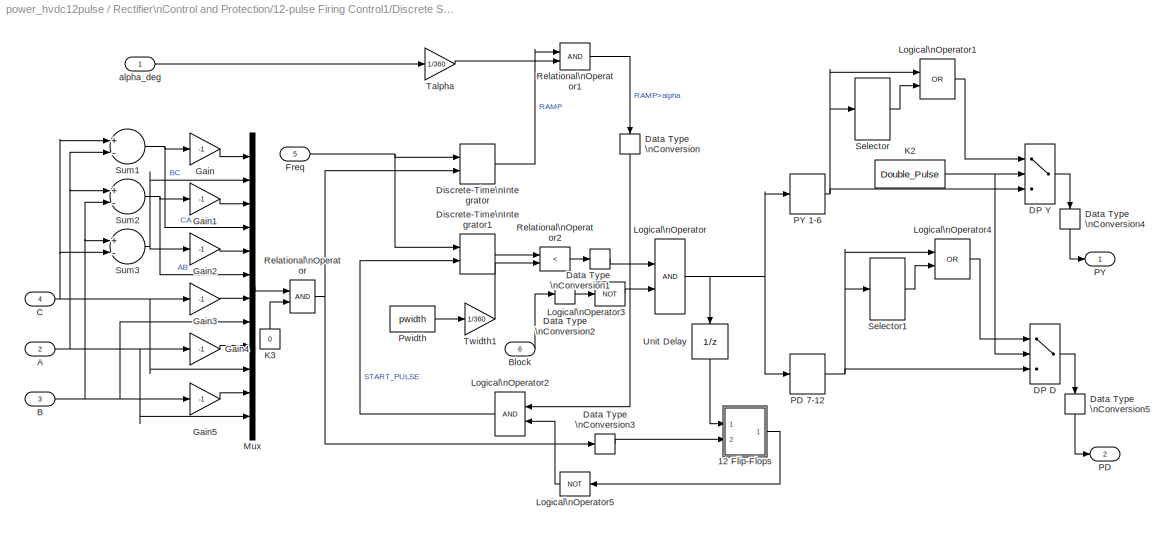
BLOCK [SubSystem] Rectifier\nControl and Protection/12-pulse Firing Control1/Discrete Synchronized\n12-Pulse Generator
  AncestorBlock = powerlib_extras/Discrete \nControl Blocks/Discrete Synchronized\n12-Pulse Generator
  MaskCallbackString = ||
  MaskDescription = Use his block  to fire the 12 thyristors of a 12-pulse converter.                                                                                             \nOutputs 1 and 2 are two vectors of 6 pulses (0-1) to be sent to the two 6-pulse half bridges connected respectively to the Wye(Y) and Delta (D) connected windings of the YYD converter transformer. Pulses are individually synchronized on the...<+725ch>
  MaskDisplay = plot(0,0,100,100,[80 62 62 47 47 30],[40 40 60 60 40 40]-5)
  MaskEnableString = on,on,on
  MaskIconFrame = on
  MaskIconOpaque = off
  MaskIconRotate = none
  MaskIconUnits = autoscale
  MaskInitialization = \n\n\n
  MaskPromptString = Pulse width (degrees) :|Double pulsing |Sample time:
  MaskStyleString = edit,checkbox,edit
  MaskTabNameString = ,,
  MaskToolTipString = on,on,on
  MaskTunableValueString = on,on,on
  MaskType = Discrete synchronized 12-pulse generator
  MaskValueString = Pw|off|dt
  MaskVarAliasString = ,,
  MaskVariables = pwidth=@1;Double_Pulse=@2;Ts=@3;
  MaskVisibilityString = on,on,on
  MinAlgLoopOccurrences = off
  Ports = [6, 2]
  RTWSystemCode = Auto
  TreatAsAtomicUnit = off
BLOCK [SubSystem] Rectifier\nControl and Protection/12-pulse Firing Control1/Discrete Synchronized\n12-Pulse Generator/12 Flip-Flops
  MinAlgLoopOccurrences = off
  Ports = [2, 1]
  RTWSystemCode = Auto
  TreatAsAtomicUnit = off
BLOCK [SubSystem] Rectifier\nControl and Protection/12-pulse Firing Control1/Discrete Synchronized\n12-Pulse Generator/12 Flip-Flops/6 Flip-Flop
  MinAlgLoopOccurrences = off
  Ports = [2, 1]
  RTWSystemCode = Auto
  TreatAsAtomicUnit = off
BLOCK [Demux] Rectifier\nControl and Protection/12-pulse Firing Control1/Discrete Synchronized\n12-Pulse Generator/12 Flip-Flops/6 Flip-Flop/Demux
  Outputs = 6
  Ports = [1, 6]
BLOCK [Demux] Rectifier\nControl and Protection/12-pulse Firing Control1/Discrete Synchronized\n12-Pulse Generator/12 Flip-Flops/6 Flip-Flop/Demux1
  Outputs = 6
  Ports = [1, 6]
BLOCK [Mux] Rectifier\nControl and Protection/12-pulse Firing Control1/Discrete Synchronized\n12-Pulse Generator/12 Flip-Flops/6 Flip-Flop/Mux
  DisplayOption = bar
  Inputs = 6
  Ports = [6, 1]
BLOCK [Outport] Rectifier\nControl and Protection/12-pulse Firing Control1/Discrete Synchronized\n12-Pulse Generator/12 Flip-Flops/6 Flip-Flop/Q
  BusOutputAsStruct = off
  IconDisplay = Port number
BLOCK [Inport] Rectifier\nControl and Protection/12-pulse Firing Control1/Discrete Synchronized\n12-Pulse Generator/12 Flip-Flops/6 Flip-Flop/R
  IconDisplay = Port number
  LatchInput = off
  Port = 2
BLOCK [Inport] Rectifier\nControl and Protection/12-pulse Firing Control1/Discrete Synchronized\n12-Pulse Generator/12 Flip-Flops/6 Flip-Flop/S
  IconDisplay = Port number
  LatchInput = off
  Port = 1
BLOCK [SubSystem] Rectifier\nControl and Protection/12-pulse Firing Control1/Discrete Synchronized\n12-Pulse Generator/12 Flip-Flops/6 Flip-Flop/S-R\nFlip-Flop1
  MaskCallbackString = |
  MaskDescription = S-R Flip Flop Block\n
  MaskEnableString = on,on
  MaskIconFrame = on
  MaskIconOpaque = on
  MaskIconRotate = none
  MaskIconUnits = autoscale
  MaskPromptString = Initial condition:|Sample time:
  MaskStyleString = edit,edit
  MaskTabNameString = ,
  MaskToolTipString = on,on
  MaskTunableValueString = on,on
  MaskType = SRFlipFlop
  MaskValueString = 0|Ts
  MaskVarAliasString = ,
  MaskVariables = initial_condition=@1;Ts=@2;
  MaskVisibilityString = on,on
  MinAlgLoopOccurrences = off
  Ports = [2, 2]
  RTWSystemCode = Auto
  TreatAsAtomicUnit = off
BLOCK [Outport] Rectifier\nControl and Protection/12-pulse Firing Control1/Discrete Synchronized\n12-Pulse Generator/12 Flip-Flops/6 Flip-Flop/S-R\nFlip-Flop1/!Q
  BusOutputAsStruct = off
  IconDisplay = Port number
  InitialOutput = 1
  Port = 2
BLOCK [Demux] Rectifier\nControl and Protection/12-pulse Firing Control1/Discrete Synchronized\n12-Pulse Generator/12 Flip-Flops/6 Flip-Flop/S-R\nFlip-Flop1/Demux
  Outputs = 2
  Ports = [1, 2]
BLOCK [CombinatorialLogic] Rectifier\nControl and Protection/12-pulse Firing Control1/Discrete Synchronized\n12-Pulse Generator/12 Flip-Flops/6 Flip-Flop/S-R\nFlip-Flop1/Logic
  TruthTable = [0 1;0 1;1 0;0 1;1 0;0 1;1 0;1 0]
BLOCK [Mux] Rectifier\nControl and Protection/12-pulse Firing Control1/Discrete Synchronized\n12-Pulse Generator/12 Flip-Flops/6 Flip-Flop/S-R\nFlip-Flop1/Mux
  Inputs = 3
  Ports = [3, 1]
BLOCK [Outport] Rectifier\nControl and Protection/12-pulse Firing Control1/Discrete Synchronized\n12-Pulse Generator/12 Flip-Flops/6 Flip-Flop/S-R\nFlip-Flop1/Q
  BusOutputAsStruct = off
  IconDisplay = Port number
  InitialOutput = 0
BLOCK [Inport] Rectifier\nControl and Protection/12-pulse Firing Control1/Discrete Synchronized\n12-Pulse Generator/12 Flip-Flops/6 Flip-Flop/S-R\nFlip-Flop1/R
  IconDisplay = Port number
  LatchInput = off
  Port = 2
BLOCK [Inport] Rectifier\nControl and Protection/12-pulse Firing Control1/Discrete Synchronized\n12-Pulse Generator/12 Flip-Flops/6 Flip-Flop/S-R\nFlip-Flop1/S
  IconDisplay = Port number
  LatchInput = off
  Port = 1
BLOCK [UnitDelay] Rectifier\nControl and Protection/12-pulse Firing Control1/Discrete Synchronized\n12-Pulse Generator/12 Flip-Flops/6 Flip-Flop/S-R\nFlip-Flop1/Unit Delay
  SampleTime = Ts
  X0 = initial_condition
BLOCK [SubSystem] Rectifier\nControl and Protection/12-pulse Firing Control1/Discrete Synchronized\n12-Pulse Generator/12 Flip-Flops/6 Flip-Flop/S-R\nFlip-Flop2
  MaskCallbackString = |
  MaskDescription = S-R Flip Flop Block\n
  MaskEnableString = on,on
  MaskIconFrame = on
  MaskIconOpaque = on
  MaskIconRotate = none
  MaskIconUnits = autoscale
  MaskPromptString = Initial condition:|Sample time:
  MaskStyleString = edit,edit
  MaskTabNameString = ,
  MaskToolTipString = on,on
  MaskTunableValueString = on,on
  MaskType = SRFlipFlop
  MaskValueString = 0|Ts
  MaskVarAliasString = ,
  MaskVariables = initial_condition=@1;Ts=@2;
  MaskVisibilityString = on,on
  MinAlgLoopOccurrences = off
  Ports = [2, 2]
  RTWSystemCode = Auto
  TreatAsAtomicUnit = off
BLOCK [Outport] Rectifier\nControl and Protection/12-pulse Firing Control1/Discrete Synchronized\n12-Pulse Generator/12 Flip-Flops/6 Flip-Flop/S-R\nFlip-Flop2/!Q
  BusOutputAsStruct = off
  IconDisplay = Port number
  InitialOutput = 1
  Port = 2
BLOCK [Demux] Rectifier\nControl and Protection/12-pulse Firing Control1/Discrete Synchronized\n12-Pulse Generator/12 Flip-Flops/6 Flip-Flop/S-R\nFlip-Flop2/Demux
  Outputs = 2
  Ports = [1, 2]
BLOCK [CombinatorialLogic] Rectifier\nControl and Protection/12-pulse Firing Control1/Discrete Synchronized\n12-Pulse Generator/12 Flip-Flops/6 Flip-Flop/S-R\nFlip-Flop2/Logic
  TruthTable = [0 1;0 1;1 0;0 1;1 0;0 1;1 0;1 0]
BLOCK [Mux] Rectifier\nControl and Protection/12-pulse Firing Control1/Discrete Synchronized\n12-Pulse Generator/12 Flip-Flops/6 Flip-Flop/S-R\nFlip-Flop2/Mux
  Inputs = 3
  Ports = [3, 1]
BLOCK [Outport] Rectifier\nControl and Protection/12-pulse Firing Control1/Discrete Synchronized\n12-Pulse Generator/12 Flip-Flops/6 Flip-Flop/S-R\nFlip-Flop2/Q
  BusOutputAsStruct = off
  IconDisplay = Port number
  InitialOutput = 0
BLOCK [Inport] Rectifier\nControl and Protection/12-pulse Firing Control1/Discrete Synchronized\n12-Pulse Generator/12 Flip-Flops/6 Flip-Flop/S-R\nFlip-Flop2/R
  IconDisplay = Port number
  LatchInput = off
  Port = 2
BLOCK [Inport] Rectifier\nControl and Protection/12-pulse Firing Control1/Discrete Synchronized\n12-Pulse Generator/12 Flip-Flops/6 Flip-Flop/S-R\nFlip-Flop2/S
  IconDisplay = Port number
  LatchInput = off
  Port = 1
BLOCK [UnitDelay] Rectifier\nControl and Protection/12-pulse Firing Control1/Discrete Synchronized\n12-Pulse Generator/12 Flip-Flops/6 Flip-Flop/S-R\nFlip-Flop2/Unit Delay
  SampleTime = Ts
  X0 = initial_condition
BLOCK [SubSystem] Rectifier\nControl and Protection/12-pulse Firing Control1/Discrete Synchronized\n12-Pulse Generator/12 Flip-Flops/6 Flip-Flop/S-R\nFlip-Flop3
  MaskCallbackString = |
  MaskDescription = S-R Flip Flop Block\n
  MaskEnableString = on,on
  MaskIconFrame = on
  MaskIconOpaque = on
  MaskIconRotate = none
  MaskIconUnits = autoscale
  MaskPromptString = Initial condition:|Sample time:
  MaskStyleString = edit,edit
  MaskTabNameString = ,
  MaskToolTipString = on,on
  MaskTunableValueString = on,on
  MaskType = SRFlipFlop
  MaskValueString = 0|Ts
  MaskVarAliasString = ,
  MaskVariables = initial_condition=@1;Ts=@2;
  MaskVisibilityString = on,on
  MinAlgLoopOccurrences = off
  Ports = [2, 2]
  RTWSystemCode = Auto
  TreatAsAtomicUnit = off
BLOCK [Outport] Rectifier\nControl and Protection/12-pulse Firing Control1/Discrete Synchronized\n12-Pulse Generator/12 Flip-Flops/6 Flip-Flop/S-R\nFlip-Flop3/!Q
  BusOutputAsStruct = off
  IconDisplay = Port number
  InitialOutput = 1
  Port = 2
BLOCK [Demux] Rectifier\nControl and Protection/12-pulse Firing Control1/Discrete Synchronized\n12-Pulse Generator/12 Flip-Flops/6 Flip-Flop/S-R\nFlip-Flop3/Demux
  Outputs = 2
  Ports = [1, 2]
BLOCK [CombinatorialLogic] Rectifier\nControl and Protection/12-pulse Firing Control1/Discrete Synchronized\n12-Pulse Generator/12 Flip-Flops/6 Flip-Flop/S-R\nFlip-Flop3/Logic
  TruthTable = [0 1;0 1;1 0;0 1;1 0;0 1;1 0;1 0]
BLOCK [Mux] Rectifier\nControl and Protection/12-pulse Firing Control1/Discrete Synchronized\n12-Pulse Generator/12 Flip-Flops/6 Flip-Flop/S-R\nFlip-Flop3/Mux
  Inputs = 3
  Ports = [3, 1]
BLOCK [Outport] Rectifier\nControl and Protection/12-pulse Firing Control1/Discrete Synchronized\n12-Pulse Generator/12 Flip-Flops/6 Flip-Flop/S-R\nFlip-Flop3/Q
  BusOutputAsStruct = off
  IconDisplay = Port number
  InitialOutput = 0
BLOCK [Inport] Rectifier\nControl and Protection/12-pulse Firing Control1/Discrete Synchronized\n12-Pulse Generator/12 Flip-Flops/6 Flip-Flop/S-R\nFlip-Flop3/R
  IconDisplay = Port number
  LatchInput = off
  Port = 2
BLOCK [Inport] Rectifier\nControl and Protection/12-pulse Firing Control1/Discrete Synchronized\n12-Pulse Generator/12 Flip-Flops/6 Flip-Flop/S-R\nFlip-Flop3/S
  IconDisplay = Port number
  LatchInput = off
  Port = 1
BLOCK [UnitDelay] Rectifier\nControl and Protection/12-pulse Firing Control1/Discrete Synchronized\n12-Pulse Generator/12 Flip-Flops/6 Flip-Flop/S-R\nFlip-Flop3/Unit Delay
  SampleTime = Ts
  X0 = initial_condition
BLOCK [SubSystem] Rectifier\nControl and Protection/12-pulse Firing Control1/Discrete Synchronized\n12-Pulse Generator/12 Flip-Flops/6 Flip-Flop/S-R\nFlip-Flop4
  MaskCallbackString = |
  MaskDescription = S-R Flip Flop Block\n
  MaskEnableString = on,on
  MaskIconFrame = on
  MaskIconOpaque = on
  MaskIconRotate = none
  MaskIconUnits = autoscale
  MaskPromptString = Initial condition:|Sample time:
  MaskStyleString = edit,edit
  MaskTabNameString = ,
  MaskToolTipString = on,on
  MaskTunableValueString = on,on
  MaskType = SRFlipFlop
  MaskValueString = 0|Ts
  MaskVarAliasString = ,
  MaskVariables = initial_condition=@1;Ts=@2;
  MaskVisibilityString = on,on
  MinAlgLoopOccurrences = off
  Ports = [2, 2]
  RTWSystemCode = Auto
  TreatAsAtomicUnit = off
BLOCK [Outport] Rectifier\nControl and Protection/12-pulse Firing Control1/Discrete Synchronized\n12-Pulse Generator/12 Flip-Flops/6 Flip-Flop/S-R\nFlip-Flop4/!Q
  BusOutputAsStruct = off
  IconDisplay = Port number
  InitialOutput = 1
  Port = 2
BLOCK [Demux] Rectifier\nControl and Protection/12-pulse Firing Control1/Discrete Synchronized\n12-Pulse Generator/12 Flip-Flops/6 Flip-Flop/S-R\nFlip-Flop4/Demux
  Outputs = 2
  Ports = [1, 2]
BLOCK [CombinatorialLogic] Rectifier\nControl and Protection/12-pulse Firing Control1/Discrete Synchronized\n12-Pulse Generator/12 Flip-Flops/6 Flip-Flop/S-R\nFlip-Flop4/Logic
  TruthTable = [0 1;0 1;1 0;0 1;1 0;0 1;1 0;1 0]
BLOCK [Mux] Rectifier\nControl and Protection/12-pulse Firing Control1/Discrete Synchronized\n12-Pulse Generator/12 Flip-Flops/6 Flip-Flop/S-R\nFlip-Flop4/Mux
  Inputs = 3
  Ports = [3, 1]
BLOCK [Outport] Rectifier\nControl and Protection/12-pulse Firing Control1/Discrete Synchronized\n12-Pulse Generator/12 Flip-Flops/6 Flip-Flop/S-R\nFlip-Flop4/Q
  BusOutputAsStruct = off
  IconDisplay = Port number
  InitialOutput = 0
BLOCK [Inport] Rectifier\nControl and Protection/12-pulse Firing Control1/Discrete Synchronized\n12-Pulse Generator/12 Flip-Flops/6 Flip-Flop/S-R\nFlip-Flop4/R
  IconDisplay = Port number
  LatchInput = off
  Port = 2
BLOCK [Inport] Rectifier\nControl and Protection/12-pulse Firing Control1/Discrete Synchronized\n12-Pulse Generator/12 Flip-Flops/6 Flip-Flop/S-R\nFlip-Flop4/S
  IconDisplay = Port number
  LatchInput = off
  Port = 1
BLOCK [UnitDelay] Rectifier\nControl and Protection/12-pulse Firing Control1/Discrete Synchronized\n12-Pulse Generator/12 Flip-Flops/6 Flip-Flop/S-R\nFlip-Flop4/Unit Delay
  SampleTime = Ts
  X0 = initial_condition
BLOCK [SubSystem] Rectifier\nControl and Protection/12-pulse Firing Control1/Discrete Synchronized\n12-Pulse Generator/12 Flip-Flops/6 Flip-Flop/S-R\nFlip-Flop5
  MaskCallbackString = |
  MaskDescription = S-R Flip Flop Block\n
  MaskEnableString = on,on
  MaskIconFrame = on
  MaskIconOpaque = on
  MaskIconRotate = none
  MaskIconUnits = autoscale
  MaskPromptString = Initial condition:|Sample time:
  MaskStyleString = edit,edit
  MaskTabNameString = ,
  MaskToolTipString = on,on
  MaskTunableValueString = on,on
  MaskType = SRFlipFlop
  MaskValueString = 0|Ts
  MaskVarAliasString = ,
  MaskVariables = initial_condition=@1;Ts=@2;
  MaskVisibilityString = on,on
  MinAlgLoopOccurrences = off
  Ports = [2, 2]
  RTWSystemCode = Auto
  TreatAsAtomicUnit = off
BLOCK [Outport] Rectifier\nControl and Protection/12-pulse Firing Control1/Discrete Synchronized\n12-Pulse Generator/12 Flip-Flops/6 Flip-Flop/S-R\nFlip-Flop5/!Q
  BusOutputAsStruct = off
  IconDisplay = Port number
  InitialOutput = 1
  Port = 2
BLOCK [Demux] Rectifier\nControl and Protection/12-pulse Firing Control1/Discrete Synchronized\n12-Pulse Generator/12 Flip-Flops/6 Flip-Flop/S-R\nFlip-Flop5/Demux
  Outputs = 2
  Ports = [1, 2]
BLOCK [CombinatorialLogic] Rectifier\nControl and Protection/12-pulse Firing Control1/Discrete Synchronized\n12-Pulse Generator/12 Flip-Flops/6 Flip-Flop/S-R\nFlip-Flop5/Logic
  TruthTable = [0 1;0 1;1 0;0 1;1 0;0 1;1 0;1 0]
BLOCK [Mux] Rectifier\nControl and Protection/12-pulse Firing Control1/Discrete Synchronized\n12-Pulse Generator/12 Flip-Flops/6 Flip-Flop/S-R\nFlip-Flop5/Mux
  Inputs = 3
  Ports = [3, 1]
BLOCK [Outport] Rectifier\nControl and Protection/12-pulse Firing Control1/Discrete Synchronized\n12-Pulse Generator/12 Flip-Flops/6 Flip-Flop/S-R\nFlip-Flop5/Q
  BusOutputAsStruct = off
  IconDisplay = Port number
  InitialOutput = 0
BLOCK [Inport] Rectifier\nControl and Protection/12-pulse Firing Control1/Discrete Synchronized\n12-Pulse Generator/12 Flip-Flops/6 Flip-Flop/S-R\nFlip-Flop5/R
  IconDisplay = Port number
  LatchInput = off
  Port = 2
BLOCK [Inport] Rectifier\nControl and Protection/12-pulse Firing Control1/Discrete Synchronized\n12-Pulse Generator/12 Flip-Flops/6 Flip-Flop/S-R\nFlip-Flop5/S
  IconDisplay = Port number
  LatchInput = off
  Port = 1
BLOCK [UnitDelay] Rectifier\nControl and Protection/12-pulse Firing Control1/Discrete Synchronized\n12-Pulse Generator/12 Flip-Flops/6 Flip-Flop/S-R\nFlip-Flop5/Unit Delay
  SampleTime = Ts
  X0 = initial_condition
BLOCK [SubSystem] Rectifier\nControl and Protection/12-pulse Firing Control1/Discrete Synchronized\n12-Pulse Generator/12 Flip-Flops/6 Flip-Flop/S-R\nFlip-Flop6
  MaskCallbackString = |
  MaskDescription = S-R Flip Flop Block\n
  MaskEnableString = on,on
  MaskIconFrame = on
  MaskIconOpaque = on
  MaskIconRotate = none
  MaskIconUnits = autoscale
  MaskPromptString = Initial condition:|Sample time:
  MaskStyleString = edit,edit
  MaskTabNameString = ,
  MaskToolTipString = on,on
  MaskTunableValueString = on,on
  MaskType = SRFlipFlop
  MaskValueString = 0|Ts
  MaskVarAliasString = ,
  MaskVariables = initial_condition=@1;Ts=@2;
  MaskVisibilityString = on,on
  MinAlgLoopOccurrences = off
  Ports = [2, 2]
  RTWSystemCode = Auto
  TreatAsAtomicUnit = off
BLOCK [Outport] Rectifier\nControl and Protection/12-pulse Firing Control1/Discrete Synchronized\n12-Pulse Generator/12 Flip-Flops/6 Flip-Flop/S-R\nFlip-Flop6/!Q
  BusOutputAsStruct = off
  IconDisplay = Port number
  InitialOutput = 1
  Port = 2
BLOCK [Demux] Rectifier\nControl and Protection/12-pulse Firing Control1/Discrete Synchronized\n12-Pulse Generator/12 Flip-Flops/6 Flip-Flop/S-R\nFlip-Flop6/Demux
  Outputs = 2
  Ports = [1, 2]
BLOCK [CombinatorialLogic] Rectifier\nControl and Protection/12-pulse Firing Control1/Discrete Synchronized\n12-Pulse Generator/12 Flip-Flops/6 Flip-Flop/S-R\nFlip-Flop6/Logic
  TruthTable = [0 1;0 1;1 0;0 1;1 0;0 1;1 0;1 0]
BLOCK [Mux] Rectifier\nControl and Protection/12-pulse Firing Control1/Discrete Synchronized\n12-Pulse Generator/12 Flip-Flops/6 Flip-Flop/S-R\nFlip-Flop6/Mux
  Inputs = 3
  Ports = [3, 1]
BLOCK [Outport] Rectifier\nControl and Protection/12-pulse Firing Control1/Discrete Synchronized\n12-Pulse Generator/12 Flip-Flops/6 Flip-Flop/S-R\nFlip-Flop6/Q
  BusOutputAsStruct = off
  IconDisplay = Port number
  InitialOutput = 0
BLOCK [Inport] Rectifier\nControl and Protection/12-pulse Firing Control1/Discrete Synchronized\n12-Pulse Generator/12 Flip-Flops/6 Flip-Flop/S-R\nFlip-Flop6/R
  IconDisplay = Port number
  LatchInput = off
  Port = 2
BLOCK [Inport] Rectifier\nControl and Protection/12-pulse Firing Control1/Discrete Synchronized\n12-Pulse Generator/12 Flip-Flops/6 Flip-Flop/S-R\nFlip-Flop6/S
  IconDisplay = Port number
  LatchInput = off
  Port = 1
BLOCK [UnitDelay] Rectifier\nControl and Protection/12-pulse Firing Control1/Discrete Synchronized\n12-Pulse Generator/12 Flip-Flops/6 Flip-Flop/S-R\nFlip-Flop6/Unit Delay
  SampleTime = Ts
  X0 = initial_condition
BLOCK [Terminator] Rectifier\nControl and Protection/12-pulse Firing Control1/Discrete Synchronized\n12-Pulse Generator/12 Flip-Flops/6 Flip-Flop/Terminator
BLOCK [Terminator] Rectifier\nControl and Protection/12-pulse Firing Control1/Discrete Synchronized\n12-Pulse Generator/12 Flip-Flops/6 Flip-Flop/Terminator1
BLOCK [Terminator] Rectifier\nControl and Protection/12-pulse Firing Control1/Discrete Synchronized\n12-Pulse Generator/12 Flip-Flops/6 Flip-Flop/Terminator2
BLOCK [Terminator] Rectifier\nControl and Protection/12-pulse Firing Control1/Discrete Synchronized\n12-Pulse Generator/12 Flip-Flops/6 Flip-Flop/Terminator3
BLOCK [Terminator] Rectifier\nControl and Protection/12-pulse Firing Control1/Discrete Synchronized\n12-Pulse Generator/12 Flip-Flops/6 Flip-Flop/Terminator4
BLOCK [Terminator] Rectifier\nControl and Protection/12-pulse Firing Control1/Discrete Synchronized\n12-Pulse Generator/12 Flip-Flops/6 Flip-Flop/Terminator5
BLOCK [SubSystem] Rectifier\nControl and Protection/12-pulse Firing Control1/Discrete Synchronized\n12-Pulse Generator/12 Flip-Flops/6 Flip-Flop1
  MinAlgLoopOccurrences = off
  Ports = [2, 1]
  RTWSystemCode = Auto
  TreatAsAtomicUnit = off
BLOCK [Demux] Rectifier\nControl and Protection/12-pulse Firing Control1/Discrete Synchronized\n12-Pulse Generator/12 Flip-Flops/6 Flip-Flop1/Demux
  Outputs = 6
  Ports = [1, 6]
BLOCK [Demux] Rectifier\nControl and Protection/12-pulse Firing Control1/Discrete Synchronized\n12-Pulse Generator/12 Flip-Flops/6 Flip-Flop1/Demux1
  Outputs = 6
  Ports = [1, 6]
BLOCK [Mux] Rectifier\nControl and Protection/12-pulse Firing Control1/Discrete Synchronized\n12-Pulse Generator/12 Flip-Flops/6 Flip-Flop1/Mux
  DisplayOption = bar
  Inputs = 6
  Ports = [6, 1]
BLOCK [Outport] Rectifier\nControl and Protection/12-pulse Firing Control1/Discrete Synchronized\n12-Pulse Generator/12 Flip-Flops/6 Flip-Flop1/Q
  BusOutputAsStruct = off
  IconDisplay = Port number
BLOCK [Inport] Rectifier\nControl and Protection/12-pulse Firing Control1/Discrete Synchronized\n12-Pulse Generator/12 Flip-Flops/6 Flip-Flop1/R
  IconDisplay = Port number
  LatchInput = off
  Port = 2
BLOCK [Inport] Rectifier\nControl and Protection/12-pulse Firing Control1/Discrete Synchronized\n12-Pulse Generator/12 Flip-Flops/6 Flip-Flop1/S
  IconDisplay = Port number
  LatchInput = off
  Port = 1
BLOCK [SubSystem] Rectifier\nControl and Protection/12-pulse Firing Control1/Discrete Synchronized\n12-Pulse Generator/12 Flip-Flops/6 Flip-Flop1/S-R\nFlip-Flop1
  MaskCallbackString = |
  MaskDescription = S-R Flip Flop Block\n
  MaskEnableString = on,on
  MaskIconFrame = on
  MaskIconOpaque = on
  MaskIconRotate = none
  MaskIconUnits = autoscale
  MaskPromptString = Initial condition:|Sample time:
  MaskStyleString = edit,edit
  MaskTabNameString = ,
  MaskToolTipString = on,on
  MaskTunableValueString = on,on
  MaskType = SRFlipFlop
  MaskValueString = 0|Ts
  MaskVarAliasString = ,
  MaskVariables = initial_condition=@1;Ts=@2;
  MaskVisibilityString = on,on
  MinAlgLoopOccurrences = off
  Ports = [2, 2]
  RTWSystemCode = Auto
  TreatAsAtomicUnit = off
BLOCK [Outport] Rectifier\nControl and Protection/12-pulse Firing Control1/Discrete Synchronized\n12-Pulse Generator/12 Flip-Flops/6 Flip-Flop1/S-R\nFlip-Flop1/!Q
  BusOutputAsStruct = off
  IconDisplay = Port number
  InitialOutput = 1
  Port = 2
BLOCK [Demux] Rectifier\nControl and Protection/12-pulse Firing Control1/Discrete Synchronized\n12-Pulse Generator/12 Flip-Flops/6 Flip-Flop1/S-R\nFlip-Flop1/Demux
  Outputs = 2
  Ports = [1, 2]
BLOCK [CombinatorialLogic] Rectifier\nControl and Protection/12-pulse Firing Control1/Discrete Synchronized\n12-Pulse Generator/12 Flip-Flops/6 Flip-Flop1/S-R\nFlip-Flop1/Logic
  TruthTable = [0 1;0 1;1 0;0 1;1 0;0 1;1 0;1 0]
BLOCK [Mux] Rectifier\nControl and Protection/12-pulse Firing Control1/Discrete Synchronized\n12-Pulse Generator/12 Flip-Flops/6 Flip-Flop1/S-R\nFlip-Flop1/Mux
  Inputs = 3
  Ports = [3, 1]
BLOCK [Outport] Rectifier\nControl and Protection/12-pulse Firing Control1/Discrete Synchronized\n12-Pulse Generator/12 Flip-Flops/6 Flip-Flop1/S-R\nFlip-Flop1/Q
  BusOutputAsStruct = off
  IconDisplay = Port number
  InitialOutput = 0
BLOCK [Inport] Rectifier\nControl and Protection/12-pulse Firing Control1/Discrete Synchronized\n12-Pulse Generator/12 Flip-Flops/6 Flip-Flop1/S-R\nFlip-Flop1/R
  IconDisplay = Port number
  LatchInput = off
  Port = 2
BLOCK [Inport] Rectifier\nControl and Protection/12-pulse Firing Control1/Discrete Synchronized\n12-Pulse Generator/12 Flip-Flops/6 Flip-Flop1/S-R\nFlip-Flop1/S
  IconDisplay = Port number
  LatchInput = off
  Port = 1
BLOCK [UnitDelay] Rectifier\nControl and Protection/12-pulse Firing Control1/Discrete Synchronized\n12-Pulse Generator/12 Flip-Flops/6 Flip-Flop1/S-R\nFlip-Flop1/Unit Delay
  SampleTime = Ts
  X0 = initial_condition
BLOCK [SubSystem] Rectifier\nControl and Protection/12-pulse Firing Control1/Discrete Synchronized\n12-Pulse Generator/12 Flip-Flops/6 Flip-Flop1/S-R\nFlip-Flop2
  MaskCallbackString = |
  MaskDescription = S-R Flip Flop Block\n
  MaskEnableString = on,on
  MaskIconFrame = on
  MaskIconOpaque = on
  MaskIconRotate = none
  MaskIconUnits = autoscale
  MaskPromptString = Initial condition:|Sample time:
  MaskStyleString = edit,edit
  MaskTabNameString = ,
  MaskToolTipString = on,on
  MaskTunableValueString = on,on
  MaskType = SRFlipFlop
  MaskValueString = 0|Ts
  MaskVarAliasString = ,
  MaskVariables = initial_condition=@1;Ts=@2;
  MaskVisibilityString = on,on
  MinAlgLoopOccurrences = off
  Ports = [2, 2]
  RTWSystemCode = Auto
  TreatAsAtomicUnit = off
BLOCK [Outport] Rectifier\nControl and Protection/12-pulse Firing Control1/Discrete Synchronized\n12-Pulse Generator/12 Flip-Flops/6 Flip-Flop1/S-R\nFlip-Flop2/!Q
  BusOutputAsStruct = off
  IconDisplay = Port number
  InitialOutput = 1
  Port = 2
BLOCK [Demux] Rectifier\nControl and Protection/12-pulse Firing Control1/Discrete Synchronized\n12-Pulse Generator/12 Flip-Flops/6 Flip-Flop1/S-R\nFlip-Flop2/Demux
  Outputs = 2
  Ports = [1, 2]
BLOCK [CombinatorialLogic] Rectifier\nControl and Protection/12-pulse Firing Control1/Discrete Synchronized\n12-Pulse Generator/12 Flip-Flops/6 Flip-Flop1/S-R\nFlip-Flop2/Logic
  TruthTable = [0 1;0 1;1 0;0 1;1 0;0 1;1 0;1 0]
BLOCK [Mux] Rectifier\nControl and Protection/12-pulse Firing Control1/Discrete Synchronized\n12-Pulse Generator/12 Flip-Flops/6 Flip-Flop1/S-R\nFlip-Flop2/Mux
  Inputs = 3
  Ports = [3, 1]
BLOCK [Outport] Rectifier\nControl and Protection/12-pulse Firing Control1/Discrete Synchronized\n12-Pulse Generator/12 Flip-Flops/6 Flip-Flop1/S-R\nFlip-Flop2/Q
  BusOutputAsStruct = off
  IconDisplay = Port number
  InitialOutput = 0
BLOCK [Inport] Rectifier\nControl and Protection/12-pulse Firing Control1/Discrete Synchronized\n12-Pulse Generator/12 Flip-Flops/6 Flip-Flop1/S-R\nFlip-Flop2/R
  IconDisplay = Port number
  LatchInput = off
  Port = 2
BLOCK [Inport] Rectifier\nControl and Protection/12-pulse Firing Control1/Discrete Synchronized\n12-Pulse Generator/12 Flip-Flops/6 Flip-Flop1/S-R\nFlip-Flop2/S
  IconDisplay = Port number
  LatchInput = off
  Port = 1
BLOCK [UnitDelay] Rectifier\nControl and Protection/12-pulse Firing Control1/Discrete Synchronized\n12-Pulse Generator/12 Flip-Flops/6 Flip-Flop1/S-R\nFlip-Flop2/Unit Delay
  SampleTime = Ts
  X0 = initial_condition
BLOCK [SubSystem] Rectifier\nControl and Protection/12-pulse Firing Control1/Discrete Synchronized\n12-Pulse Generator/12 Flip-Flops/6 Flip-Flop1/S-R\nFlip-Flop3
  MaskCallbackString = |
  MaskDescription = S-R Flip Flop Block\n
  MaskEnableString = on,on
  MaskIconFrame = on
  MaskIconOpaque = on
  MaskIconRotate = none
  MaskIconUnits = autoscale
  MaskPromptString = Initial condition:|Sample time:
  MaskStyleString = edit,edit
  MaskTabNameString = ,
  MaskToolTipString = on,on
  MaskTunableValueString = on,on
  MaskType = SRFlipFlop
  MaskValueString = 0|Ts
  MaskVarAliasString = ,
  MaskVariables = initial_condition=@1;Ts=@2;
  MaskVisibilityString = on,on
  MinAlgLoopOccurrences = off
  Ports = [2, 2]
  RTWSystemCode = Auto
  TreatAsAtomicUnit = off
BLOCK [Outport] Rectifier\nControl and Protection/12-pulse Firing Control1/Discrete Synchronized\n12-Pulse Generator/12 Flip-Flops/6 Flip-Flop1/S-R\nFlip-Flop3/!Q
  BusOutputAsStruct = off
  IconDisplay = Port number
  InitialOutput = 1
  Port = 2
BLOCK [Demux] Rectifier\nControl and Protection/12-pulse Firing Control1/Discrete Synchronized\n12-Pulse Generator/12 Flip-Flops/6 Flip-Flop1/S-R\nFlip-Flop3/Demux
  Outputs = 2
  Ports = [1, 2]
BLOCK [CombinatorialLogic] Rectifier\nControl and Protection/12-pulse Firing Control1/Discrete Synchronized\n12-Pulse Generator/12 Flip-Flops/6 Flip-Flop1/S-R\nFlip-Flop3/Logic
  TruthTable = [0 1;0 1;1 0;0 1;1 0;0 1;1 0;1 0]
BLOCK [Mux] Rectifier\nControl and Protection/12-pulse Firing Control1/Discrete Synchronized\n12-Pulse Generator/12 Flip-Flops/6 Flip-Flop1/S-R\nFlip-Flop3/Mux
  Inputs = 3
  Ports = [3, 1]
BLOCK [Outport] Rectifier\nControl and Protection/12-pulse Firing Control1/Discrete Synchronized\n12-Pulse Generator/12 Flip-Flops/6 Flip-Flop1/S-R\nFlip-Flop3/Q
  BusOutputAsStruct = off
  IconDisplay = Port number
  InitialOutput = 0
BLOCK [Inport] Rectifier\nControl and Protection/12-pulse Firing Control1/Discrete Synchronized\n12-Pulse Generator/12 Flip-Flops/6 Flip-Flop1/S-R\nFlip-Flop3/R
  IconDisplay = Port number
  LatchInput = off
  Port = 2
BLOCK [Inport] Rectifier\nControl and Protection/12-pulse Firing Control1/Discrete Synchronized\n12-Pulse Generator/12 Flip-Flops/6 Flip-Flop1/S-R\nFlip-Flop3/S
  IconDisplay = Port number
  LatchInput = off
  Port = 1
BLOCK [UnitDelay] Rectifier\nControl and Protection/12-pulse Firing Control1/Discrete Synchronized\n12-Pulse Generator/12 Flip-Flops/6 Flip-Flop1/S-R\nFlip-Flop3/Unit Delay
  SampleTime = Ts
  X0 = initial_condition
BLOCK [SubSystem] Rectifier\nControl and Protection/12-pulse Firing Control1/Discrete Synchronized\n12-Pulse Generator/12 Flip-Flops/6 Flip-Flop1/S-R\nFlip-Flop4
  MaskCallbackString = |
  MaskDescription = S-R Flip Flop Block\n
  MaskEnableString = on,on
  MaskIconFrame = on
  MaskIconOpaque = on
  MaskIconRotate = none
  MaskIconUnits = autoscale
  MaskPromptString = Initial condition:|Sample time:
  MaskStyleString = edit,edit
  MaskTabNameString = ,
  MaskToolTipString = on,on
  MaskTunableValueString = on,on
  MaskType = SRFlipFlop
  MaskValueString = 0|Ts
  MaskVarAliasString = ,
  MaskVariables = initial_condition=@1;Ts=@2;
  MaskVisibilityString = on,on
  MinAlgLoopOccurrences = off
  Ports = [2, 2]
  RTWSystemCode = Auto
  TreatAsAtomicUnit = off
BLOCK [Outport] Rectifier\nControl and Protection/12-pulse Firing Control1/Discrete Synchronized\n12-Pulse Generator/12 Flip-Flops/6 Flip-Flop1/S-R\nFlip-Flop4/!Q
  BusOutputAsStruct = off
  IconDisplay = Port number
  InitialOutput = 1
  Port = 2
BLOCK [Demux] Rectifier\nControl and Protection/12-pulse Firing Control1/Discrete Synchronized\n12-Pulse Generator/12 Flip-Flops/6 Flip-Flop1/S-R\nFlip-Flop4/Demux
  Outputs = 2
  Ports = [1, 2]
BLOCK [CombinatorialLogic] Rectifier\nControl and Protection/12-pulse Firing Control1/Discrete Synchronized\n12-Pulse Generator/12 Flip-Flops/6 Flip-Flop1/S-R\nFlip-Flop4/Logic
  TruthTable = [0 1;0 1;1 0;0 1;1 0;0 1;1 0;1 0]
BLOCK [Mux] Rectifier\nControl and Protection/12-pulse Firing Control1/Discrete Synchronized\n12-Pulse Generator/12 Flip-Flops/6 Flip-Flop1/S-R\nFlip-Flop4/Mux
  Inputs = 3
  Ports = [3, 1]
BLOCK [Outport] Rectifier\nControl and Protection/12-pulse Firing Control1/Discrete Synchronized\n12-Pulse Generator/12 Flip-Flops/6 Flip-Flop1/S-R\nFlip-Flop4/Q
  BusOutputAsStruct = off
  IconDisplay = Port number
  InitialOutput = 0
BLOCK [Inport] Rectifier\nControl and Protection/12-pulse Firing Control1/Discrete Synchronized\n12-Pulse Generator/12 Flip-Flops/6 Flip-Flop1/S-R\nFlip-Flop4/R
  IconDisplay = Port number
  LatchInput = off
  Port = 2
BLOCK [Inport] Rectifier\nControl and Protection/12-pulse Firing Control1/Discrete Synchronized\n12-Pulse Generator/12 Flip-Flops/6 Flip-Flop1/S-R\nFlip-Flop4/S
  IconDisplay = Port number
  LatchInput = off
  Port = 1
BLOCK [UnitDelay] Rectifier\nControl and Protection/12-pulse Firing Control1/Discrete Synchronized\n12-Pulse Generator/12 Flip-Flops/6 Flip-Flop1/S-R\nFlip-Flop4/Unit Delay
  SampleTime = Ts
  X0 = initial_condition
BLOCK [SubSystem] Rectifier\nControl and Protection/12-pulse Firing Control1/Discrete Synchronized\n12-Pulse Generator/12 Flip-Flops/6 Flip-Flop1/S-R\nFlip-Flop5
  MaskCallbackString = |
  MaskDescription = S-R Flip Flop Block\n
  MaskEnableString = on,on
  MaskIconFrame = on
  MaskIconOpaque = on
  MaskIconRotate = none
  MaskIconUnits = autoscale
  MaskPromptString = Initial condition:|Sample time:
  MaskStyleString = edit,edit
  MaskTabNameString = ,
  MaskToolTipString = on,on
  MaskTunableValueString = on,on
  MaskType = SRFlipFlop
  MaskValueString = 0|Ts
  MaskVarAliasString = ,
  MaskVariables = initial_condition=@1;Ts=@2;
  MaskVisibilityString = on,on
  MinAlgLoopOccurrences = off
  Ports = [2, 2]
  RTWSystemCode = Auto
  TreatAsAtomicUnit = off
BLOCK [Outport] Rectifier\nControl and Protection/12-pulse Firing Control1/Discrete Synchronized\n12-Pulse Generator/12 Flip-Flops/6 Flip-Flop1/S-R\nFlip-Flop5/!Q
  BusOutputAsStruct = off
  IconDisplay = Port number
  InitialOutput = 1
  Port = 2
BLOCK [Demux] Rectifier\nControl and Protection/12-pulse Firing Control1/Discrete Synchronized\n12-Pulse Generator/12 Flip-Flops/6 Flip-Flop1/S-R\nFlip-Flop5/Demux
  Outputs = 2
  Ports = [1, 2]
BLOCK [CombinatorialLogic] Rectifier\nControl and Protection/12-pulse Firing Control1/Discrete Synchronized\n12-Pulse Generator/12 Flip-Flops/6 Flip-Flop1/S-R\nFlip-Flop5/Logic
  TruthTable = [0 1;0 1;1 0;0 1;1 0;0 1;1 0;1 0]
BLOCK [Mux] Rectifier\nControl and Protection/12-pulse Firing Control1/Discrete Synchronized\n12-Pulse Generator/12 Flip-Flops/6 Flip-Flop1/S-R\nFlip-Flop5/Mux
  Inputs = 3
  Ports = [3, 1]
BLOCK [Outport] Rectifier\nControl and Protection/12-pulse Firing Control1/Discrete Synchronized\n12-Pulse Generator/12 Flip-Flops/6 Flip-Flop1/S-R\nFlip-Flop5/Q
  BusOutputAsStruct = off
  IconDisplay = Port number
  InitialOutput = 0
BLOCK [Inport] Rectifier\nControl and Protection/12-pulse Firing Control1/Discrete Synchronized\n12-Pulse Generator/12 Flip-Flops/6 Flip-Flop1/S-R\nFlip-Flop5/R
  IconDisplay = Port number
  LatchInput = off
  Port = 2
BLOCK [Inport] Rectifier\nControl and Protection/12-pulse Firing Control1/Discrete Synchronized\n12-Pulse Generator/12 Flip-Flops/6 Flip-Flop1/S-R\nFlip-Flop5/S
  IconDisplay = Port number
  LatchInput = off
  Port = 1
BLOCK [UnitDelay] Rectifier\nControl and Protection/12-pulse Firing Control1/Discrete Synchronized\n12-Pulse Generator/12 Flip-Flops/6 Flip-Flop1/S-R\nFlip-Flop5/Unit Delay
  SampleTime = Ts
  X0 = initial_condition
BLOCK [SubSystem] Rectifier\nControl and Protection/12-pulse Firing Control1/Discrete Synchronized\n12-Pulse Generator/12 Flip-Flops/6 Flip-Flop1/S-R\nFlip-Flop6
  MaskCallbackString = |
  MaskDescription = S-R Flip Flop Block\n
  MaskEnableString = on,on
  MaskIconFrame = on
  MaskIconOpaque = on
  MaskIconRotate = none
  MaskIconUnits = autoscale
  MaskPromptString = Initial condition:|Sample time:
  MaskStyleString = edit,edit
  MaskTabNameString = ,
  MaskToolTipString = on,on
  MaskTunableValueString = on,on
  MaskType = SRFlipFlop
  MaskValueString = 0|Ts
  MaskVarAliasString = ,
  MaskVariables = initial_condition=@1;Ts=@2;
  MaskVisibilityString = on,on
  MinAlgLoopOccurrences = off
  Ports = [2, 2]
  RTWSystemCode = Auto
  TreatAsAtomicUnit = off
BLOCK [Outport] Rectifier\nControl and Protection/12-pulse Firing Control1/Discrete Synchronized\n12-Pulse Generator/12 Flip-Flops/6 Flip-Flop1/S-R\nFlip-Flop6/!Q
  BusOutputAsStruct = off
  IconDisplay = Port number
  InitialOutput = 1
  Port = 2
BLOCK [Demux] Rectifier\nControl and Protection/12-pulse Firing Control1/Discrete Synchronized\n12-Pulse Generator/12 Flip-Flops/6 Flip-Flop1/S-R\nFlip-Flop6/Demux
  Outputs = 2
  Ports = [1, 2]
BLOCK [CombinatorialLogic] Rectifier\nControl and Protection/12-pulse Firing Control1/Discrete Synchronized\n12-Pulse Generator/12 Flip-Flops/6 Flip-Flop1/S-R\nFlip-Flop6/Logic
  TruthTable = [0 1;0 1;1 0;0 1;1 0;0 1;1 0;1 0]
BLOCK [Mux] Rectifier\nControl and Protection/12-pulse Firing Control1/Discrete Synchronized\n12-Pulse Generator/12 Flip-Flops/6 Flip-Flop1/S-R\nFlip-Flop6/Mux
  Inputs = 3
  Ports = [3, 1]
BLOCK [Outport] Rectifier\nControl and Protection/12-pulse Firing Control1/Discrete Synchronized\n12-Pulse Generator/12 Flip-Flops/6 Flip-Flop1/S-R\nFlip-Flop6/Q
  BusOutputAsStruct = off
  IconDisplay = Port number
  InitialOutput = 0
BLOCK [Inport] Rectifier\nControl and Protection/12-pulse Firing Control1/Discrete Synchronized\n12-Pulse Generator/12 Flip-Flops/6 Flip-Flop1/S-R\nFlip-Flop6/R
  IconDisplay = Port number
  LatchInput = off
  Port = 2
BLOCK [Inport] Rectifier\nControl and Protection/12-pulse Firing Control1/Discrete Synchronized\n12-Pulse Generator/12 Flip-Flops/6 Flip-Flop1/S-R\nFlip-Flop6/S
  IconDisplay = Port number
  LatchInput = off
  Port = 1
BLOCK [UnitDelay] Rectifier\nControl and Protection/12-pulse Firing Control1/Discrete Synchronized\n12-Pulse Generator/12 Flip-Flops/6 Flip-Flop1/S-R\nFlip-Flop6/Unit Delay
  SampleTime = Ts
  X0 = initial_condition
BLOCK [Terminator] Rectifier\nControl and Protection/12-pulse Firing Control1/Discrete Synchronized\n12-Pulse Generator/12 Flip-Flops/6 Flip-Flop1/Terminator
BLOCK [Terminator] Rectifier\nControl and Protection/12-pulse Firing Control1/Discrete Synchronized\n12-Pulse Generator/12 Flip-Flops/6 Flip-Flop1/Terminator1
BLOCK [Terminator] Rectifier\nControl and Protection/12-pulse Firing Control1/Discrete Synchronized\n12-Pulse Generator/12 Flip-Flops/6 Flip-Flop1/Terminator2
BLOCK [Terminator] Rectifier\nControl and Protection/12-pulse Firing Control1/Discrete Synchronized\n12-Pulse Generator/12 Flip-Flops/6 Flip-Flop1/Terminator3
BLOCK [Terminator] Rectifier\nControl and Protection/12-pulse Firing Control1/Discrete Synchronized\n12-Pulse Generator/12 Flip-Flops/6 Flip-Flop1/Terminator4
BLOCK [Terminator] Rectifier\nControl and Protection/12-pulse Firing Control1/Discrete Synchronized\n12-Pulse Generator/12 Flip-Flops/6 Flip-Flop1/Terminator5
BLOCK [Demux] Rectifier\nControl and Protection/12-pulse Firing Control1/Discrete Synchronized\n12-Pulse Generator/12 Flip-Flops/Demux
  Outputs = 2
  Ports = [1, 2]
BLOCK [Demux] Rectifier\nControl and Protection/12-pulse Firing Control1/Discrete Synchronized\n12-Pulse Generator/12 Flip-Flops/Demux1
  Outputs = 2
  Ports = [1, 2]
BLOCK [Mux] Rectifier\nControl and Protection/12-pulse Firing Control1/Discrete Synchronized\n12-Pulse Generator/12 Flip-Flops/Mux
  DisplayOption = bar
  Inputs = 2
  Ports = [2, 1]
BLOCK [Outport] Rectifier\nControl and Protection/12-pulse Firing Control1/Discrete Synchronized\n12-Pulse Generator/12 Flip-Flops/Q
  BusOutputAsStruct = off
  IconDisplay = Port number
BLOCK [Inport] Rectifier\nControl and Protection/12-pulse Firing Control1/Discrete Synchronized\n12-Pulse Generator/12 Flip-Flops/R
  IconDisplay = Port number
  LatchInput = off
  Port = 2
BLOCK [Inport] Rectifier\nControl and Protection/12-pulse Firing Control1/Discrete Synchronized\n12-Pulse Generator/12 Flip-Flops/S
  IconDisplay = Port number
  LatchInput = off
  Port = 1
BLOCK [Inport] Rectifier\nControl and Protection/12-pulse Firing Control1/Discrete Synchronized\n12-Pulse Generator/A
  IconDisplay = Port number
  LatchInput = off
  Port = 2
BLOCK [Inport] Rectifier\nControl and Protection/12-pulse Firing Control1/Discrete Synchronized\n12-Pulse Generator/B
  IconDisplay = Port number
  LatchInput = off
  Port = 3
BLOCK [Inport] Rectifier\nControl and Protection/12-pulse Firing Control1/Discrete Synchronized\n12-Pulse Generator/Block
  IconDisplay = Port number
  LatchInput = off
  Port = 6
BLOCK [Inport] Rectifier\nControl and Protection/12-pulse Firing Control1/Discrete Synchronized\n12-Pulse Generator/C
  IconDisplay = Port number
  LatchInput = off
  Port = 4
BLOCK [Switch] Rectifier\nControl and Protection/12-pulse Firing Control1/Discrete Synchronized\n12-Pulse Generator/DP D
  SaturateOnIntegerOverflow = off
  Threshold = 0.5
BLOCK [Switch] Rectifier\nControl and Protection/12-pulse Firing Control1/Discrete Synchronized\n12-Pulse Generator/DP Y
  SaturateOnIntegerOverflow = off
  Threshold = 0.5
BLOCK [DataTypeConversion] Rectifier\nControl and Protection/12-pulse Firing Control1/Discrete Synchronized\n12-Pulse Generator/Data Type \nConversion
  OutDataTypeMode = boolean
BLOCK [DataTypeConversion] Rectifier\nControl and Protection/12-pulse Firing Control1/Discrete Synchronized\n12-Pulse Generator/Data Type \nConversion1
  OutDataTypeMode = boolean
BLOCK [DataTypeConversion] Rectifier\nControl and Protection/12-pulse Firing Control1/Discrete Synchronized\n12-Pulse Generator/Data Type \nConversion2
  OutDataTypeMode = boolean
BLOCK [DataTypeConversion] Rectifier\nControl and Protection/12-pulse Firing Control1/Discrete Synchronized\n12-Pulse Generator/Data Type \nConversion3
  OutDataTypeMode = boolean
BLOCK [DataTypeConversion] Rectifier\nControl and Protection/12-pulse Firing Control1/Discrete Synchronized\n12-Pulse Generator/Data Type \nConversion4
  OutDataTypeMode = double
BLOCK [DataTypeConversion] Rectifier\nControl and Protection/12-pulse Firing Control1/Discrete Synchronized\n12-Pulse Generator/Data Type \nConversion5
  OutDataTypeMode = double
BLOCK [DiscreteIntegrator] Rectifier\nControl and Protection/12-pulse Firing Control1/Discrete Synchronized\n12-Pulse Generator/Discrete-Time\nIntegrator
  ExternalReset = rising
  ICPrevOutput = DiscIntNeverNeededParam
  ICPrevScaledInput = DiscIntNeverNeededParam
  InitialConditionSource = internal
  IntegratorMethod = Integration: Trapezoidal
  Ports = [2, 1]
  SampleTime = Ts
BLOCK [DiscreteIntegrator] Rectifier\nControl and Protection/12-pulse Firing Control1/Discrete Synchronized\n12-Pulse Generator/Discrete-Time\nIntegrator1
  ExternalReset = rising
  ICPrevOutput = DiscIntNeverNeededParam
  ICPrevScaledInput = DiscIntNeverNeededParam
  InitialConditionSource = internal
  IntegratorMethod = Integration: Trapezoidal
  Ports = [2, 1]
  SampleTime = Ts
BLOCK [Inport] Rectifier\nControl and Protection/12-pulse Firing Control1/Discrete Synchronized\n12-Pulse Generator/Freq
  IconDisplay = Port number
  LatchInput = off
  Port = 5
BLOCK [Gain] Rectifier\nControl and Protection/12-pulse Firing Control1/Discrete Synchronized\n12-Pulse Generator/Gain
  Gain = -1
BLOCK [Gain] Rectifier\nControl and Protection/12-pulse Firing Control1/Discrete Synchronized\n12-Pulse Generator/Gain1
  Gain = -1
BLOCK [Gain] Rectifier\nControl and Protection/12-pulse Firing Control1/Discrete Synchronized\n12-Pulse Generator/Gain2
  Gain = -1
BLOCK [Gain] Rectifier\nControl and Protection/12-pulse Firing Control1/Discrete Synchronized\n12-Pulse Generator/Gain3
  Gain = -1
BLOCK [Gain] Rectifier\nControl and Protection/12-pulse Firing Control1/Discrete Synchronized\n12-Pulse Generator/Gain4
  Gain = -1
BLOCK [Gain] Rectifier\nControl and Protection/12-pulse Firing Control1/Discrete Synchronized\n12-Pulse Generator/Gain5
  Gain = -1
BLOCK [Constant] Rectifier\nControl and Protection/12-pulse Firing Control1/Discrete Synchronized\n12-Pulse Generator/K2
  Value = Double_Pulse
BLOCK [Constant] Rectifier\nControl and Protection/12-pulse Firing Control1/Discrete Synchronized\n12-Pulse Generator/K3
  Value = 0
BLOCK [Logic] Rectifier\nControl and Protection/12-pulse Firing Control1/Discrete Synchronized\n12-Pulse Generator/Logical\nOperator
  Ports = [2, 1]
BLOCK [Logic] Rectifier\nControl and Protection/12-pulse Firing Control1/Discrete Synchronized\n12-Pulse Generator/Logical\nOperator1
  Operator = OR
  Ports = [2, 1]
BLOCK [Logic] Rectifier\nControl and Protection/12-pulse Firing Control1/Discrete Synchronized\n12-Pulse Generator/Logical\nOperator2
  Ports = [2, 1]
BLOCK [Logic] Rectifier\nControl and Protection/12-pulse Firing Control1/Discrete Synchronized\n12-Pulse Generator/Logical\nOperator3
  Inputs = 1
  Operator = NOT
  Ports = [1, 1]
BLOCK [Logic] Rectifier\nControl and Protection/12-pulse Firing Control1/Discrete Synchronized\n12-Pulse Generator/Logical\nOperator4
  Operator = OR
  Ports = [2, 1]
BLOCK [Logic] Rectifier\nControl and Protection/12-pulse Firing Control1/Discrete Synchronized\n12-Pulse Generator/Logical\nOperator5
  Inputs = 1
  Operator = NOT
  Ports = [1, 1]
BLOCK [Mux] Rectifier\nControl and Protection/12-pulse Firing Control1/Discrete Synchronized\n12-Pulse Generator/Mux
  Inputs = 12
  Ports = [12, 1]
BLOCK [Outport] Rectifier\nControl and Protection/12-pulse Firing Control1/Discrete Synchronized\n12-Pulse Generator/PD
  BusOutputAsStruct = off
  IconDisplay = Port number
  InitialOutput = 0
  Port = 2
BLOCK [Selector] Rectifier\nControl and Protection/12-pulse Firing Control1/Discrete Synchronized\n12-Pulse Generator/PD 7-12
  Elements = 7:12
  InputPortWidth = 12
  Ports = [1, 1]
BLOCK [Outport] Rectifier\nControl and Protection/12-pulse Firing Control1/Discrete Synchronized\n12-Pulse Generator/PY
  BusOutputAsStruct = off
  IconDisplay = Port number
  InitialOutput = 0
BLOCK [Selector] Rectifier\nControl and Protection/12-pulse Firing Control1/Discrete Synchronized\n12-Pulse Generator/PY 1-6
  Elements = 1:6
  InputPortWidth = 12
  Ports = [1, 1]
BLOCK [Constant] Rectifier\nControl and Protection/12-pulse Firing Control1/Discrete Synchronized\n12-Pulse Generator/Pwidth
  Value = pwidth
BLOCK [RelationalOperator] Rectifier\nControl and Protection/12-pulse Firing Control1/Discrete Synchronized\n12-Pulse Generator/Relational\nOperator
BLOCK [RelationalOperator] Rectifier\nControl and Protection/12-pulse Firing Control1/Discrete Synchronized\n12-Pulse Generator/Relational\nOperator1
BLOCK [RelationalOperator] Rectifier\nControl and Protection/12-pulse Firing Control1/Discrete Synchronized\n12-Pulse Generator/Relational\nOperator2
  Operator = <
BLOCK [Selector] Rectifier\nControl and Protection/12-pulse Firing Control1/Discrete Synchronized\n12-Pulse Generator/Selector
  Elements = [2 3 4 5 6 1 ]
  InputPortWidth = 6
  Ports = [1, 1]
BLOCK [Selector] Rectifier\nControl and Protection/12-pulse Firing Control1/Discrete Synchronized\n12-Pulse Generator/Selector1
  Elements = [2 3 4 5 6 1 ]
  InputPortWidth = 6
  Ports = [1, 1]
BLOCK [Sum] Rectifier\nControl and Protection/12-pulse Firing Control1/Discrete Synchronized\n12-Pulse Generator/Sum1
  Inputs = +-
  Ports = [2, 1]
BLOCK [Sum] Rectifier\nControl and Protection/12-pulse Firing Control1/Discrete Synchronized\n12-Pulse Generator/Sum2
  Inputs = +-
  Ports = [2, 1]
BLOCK [Sum] Rectifier\nControl and Protection/12-pulse Firing Control1/Discrete Synchronized\n12-Pulse Generator/Sum3
  Inputs = +-
  Ports = [2, 1]
BLOCK [Gain] Rectifier\nControl and Protection/12-pulse Firing Control1/Discrete Synchronized\n12-Pulse Generator/Talpha
  Gain = 1/360
BLOCK [Gain] Rectifier\nControl and Protection/12-pulse Firing Control1/Discrete Synchronized\n12-Pulse Generator/Twidth1
  Gain = 1/360
BLOCK [UnitDelay] Rectifier\nControl and Protection/12-pulse Firing Control1/Discrete Synchronized\n12-Pulse Generator/Unit Delay
  SampleTime = Ts
BLOCK [Inport] Rectifier\nControl and Protection/12-pulse Firing Control1/Discrete Synchronized\n12-Pulse Generator/alpha_deg
  IconDisplay = Port number
  LatchInput = off
  Port = 1
BLOCK [Outport] Rectifier\nControl and Protection/12-pulse Firing Control1/Freq
  BusOutputAsStruct = off
  IconDisplay = Port number
  Port = 3
BLOCK [SubSystem] Rectifier\nControl and Protection/12-pulse Firing Control1/PLL
  MinAlgLoopOccurrences = off
  Ports = [1, 4]
  RTWSystemCode = Auto
  TreatAsAtomicUnit = off
BLOCK [Constant] Rectifier\nControl and Protection/12-pulse Firing Control1/PLL/Constant
  Value = 2*pi/3
BLOCK [Reference] Rectifier\nControl and Protection/12-pulse Firing Control1/PLL/Discrete\n3-phase PLL  REF=powerlib_extras/Discrete \nControl Blocks/Discrete\n3-phase PLL
  Fmin = 0.75 * PLL_f0
  ParK = [PLL_Kp  PLL_Ki]
  Par_Init = [PLL_ph  PLL_f0]
  Ports = [1, 3]
  ShowPortLabels = on
  SourceBlock = powerlib_extras/Discrete \nControl Blocks/Discrete\n3-phase PLL
  SourceType = Discrete 3-phase PLL
  Ts = dt
BLOCK [Outport] Rectifier\nControl and Protection/12-pulse Firing Control1/PLL/Freq
  BusOutputAsStruct = off
  IconDisplay = Port number
  Port = 4
BLOCK [Sum] Rectifier\nControl and Protection/12-pulse Firing Control1/PLL/Sum
  IconShape = round
  InputSameDT = off
  Inputs = |+-
  OutDataTypeMode = Inherit via internal rule
  Ports = [2, 1]
BLOCK [Sum] Rectifier\nControl and Protection/12-pulse Firing Control1/PLL/Sum1
  IconShape = round
  InputSameDT = off
  Inputs = |++
  OutDataTypeMode = Inherit via internal rule
  Ports = [2, 1]
BLOCK [Terminator] Rectifier\nControl and Protection/12-pulse Firing Control1/PLL/Terminator
BLOCK [Trigonometry] Rectifier\nControl and Protection/12-pulse Firing Control1/PLL/Trigonometric\nFunction
  Ports = [1, 1]
BLOCK [Trigonometry] Rectifier\nControl and Protection/12-pulse Firing Control1/PLL/Trigonometric\nFunction1
  Ports = [1, 1]
BLOCK [Trigonometry] Rectifier\nControl and Protection/12-pulse Firing Control1/PLL/Trigonometric\nFunction2
  Ports = [1, 1]
BLOCK [Outport] Rectifier\nControl and Protection/12-pulse Firing Control1/PLL/Va
  BusOutputAsStruct = off
  IconDisplay = Port number
BLOCK [Inport] Rectifier\nControl and Protection/12-pulse Firing Control1/PLL/Vabc(pu)
  IconDisplay = Port number
  LatchInput = off
  Port = 1
BLOCK [Outport] Rectifier\nControl and Protection/12-pulse Firing Control1/PLL/Vb
  BusOutputAsStruct = off
  IconDisplay = Port number
  Port = 2
BLOCK [Outport] Rectifier\nControl and Protection/12-pulse Firing Control1/PLL/Vc
  BusOutputAsStruct = off
  IconDisplay = Port number
  Port = 3
BLOCK [Outport] Rectifier\nControl and Protection/12-pulse Firing Control1/PulsesD
  BusOutputAsStruct = off
  IconDisplay = Port number
  Port = 2
BLOCK [Outport] Rectifier\nControl and Protection/12-pulse Firing Control1/PulsesY
  BusOutputAsStruct = off
  IconDisplay = Port number
BLOCK [Inport] Rectifier\nControl and Protection/12-pulse Firing Control1/Vabc (pu)
  IconDisplay = Port number
  LatchInput = off
  Port = 2
BLOCK [Inport] Rectifier\nControl and Protection/12-pulse Firing Control1/alpha_ord (deg)
  IconDisplay = Port number
  LatchInput = off
  Port = 1
BLOCK [DataTypeConversion] Rectifier\nControl and Protection/Data Type Conversion
  OutDataTypeMode = boolean
BLOCK [Reference] Rectifier\nControl and Protection/Discrete\nMonostable  REF=powerlib_extras/Discrete \nControl Blocks/Discrete\nMonostable
  EdgeDetect = Rising
  Ports = [1, 1]
  ShowPortLabels = off
  SourceBlock = powerlib_extras/Discrete \nControl Blocks/Discrete\nMonostable
  SourceType = Discrete Monostable Flip-Flop
  Ts = Ts
  ic = 1
  t_mono = 0.15
BLOCK [Reference] Rectifier\nControl and Protection/Discrete\nOn//Off Delay  REF=powerlib_extras/Discrete \nControl Blocks/Discrete\nOn//Off Delay
  Ports = [1, 1]
  ShowPortLabels = off
  SourceBlock = powerlib_extras/Discrete \nControl Blocks/Discrete\nOn//Off Delay
  SourceType = Discrete On/Off Delay
  Ts = Ts
  delay = 0.1
  ic = 1
  type_delay = On delay
BLOCK [From] Rectifier\nControl and Protection/From
  CloseFcn = tagdialog Close
  DialogController = Simulink.DDGSource
  GotoTag = VdL_R
BLOCK [From] Rectifier\nControl and Protection/From1
  CloseFcn = tagdialog Close
  DialogController = Simulink.DDGSource
  GotoTag = Vabc_R
BLOCK [From] Rectifier\nControl and Protection/From2
  CloseFcn = tagdialog Close
  DialogController = Simulink.DDGSource
  GotoTag = Low_ac_volt_I
BLOCK [From] Rectifier\nControl and Protection/From3
  CloseFcn = tagdialog Close
  DialogController = Simulink.DDGSource
  GotoTag = Id_ref_R
BLOCK [From] Rectifier\nControl and Protection/From4
  CloseFcn = tagdialog Close
  DialogController = Simulink.DDGSource
  GotoTag = Stop_R
BLOCK [From] Rectifier\nControl and Protection/From5
  CloseFcn = tagdialog Close
  DialogController = Simulink.DDGSource
  GotoTag = Vabc_R
BLOCK [From] Rectifier\nControl and Protection/From6
  CloseFcn = tagdialog Close
  DialogController = Simulink.DDGSource
  GotoTag = Id_R
BLOCK [From] Rectifier\nControl and Protection/From7
  CloseFcn = tagdialog Close
  DialogController = Simulink.DDGSource
  GotoTag = VdL_R
BLOCK [Goto] Rectifier\nControl and Protection/Goto1
  DialogController = Simulink.DDGSource
  GotoTag = Id_ref_lim_R
  TagVisibility = global
BLOCK [Goto] Rectifier\nControl and Protection/Goto2
  DialogController = Simulink.DDGSource
  GotoTag = alpha_ord_R
  TagVisibility = global
BLOCK [Goto] Rectifier\nControl and Protection/Goto3
  DialogController = Simulink.DDGSource
  GotoTag = Forced_alpha_R
  TagVisibility = global
BLOCK [Goto] Rectifier\nControl and Protection/Goto4
  DialogController = Simulink.DDGSource
  GotoTag = PulsesY_R
  TagVisibility = global
BLOCK [Goto] Rectifier\nControl and Protection/Goto5
  DialogController = Simulink.DDGSource
  GotoTag = Mode_R
  TagVisibility = global
BLOCK [Goto] Rectifier\nControl and Protection/Goto6
  DialogController = Simulink.DDGSource
  GotoTag = Low_ac_volt_R
  TagVisibility = global
BLOCK [Goto] Rectifier\nControl and Protection/Goto7
  DialogController = Simulink.DDGSource
  GotoTag = VdL_R
  TagVisibility = global
BLOCK [Goto] Rectifier\nControl and Protection/Goto8
  DialogController = Simulink.DDGSource
  GotoTag = PulsesD_R
  TagVisibility = global
BLOCK [Ground] Rectifier\nControl and Protection/Ground
BLOCK [Logic] Rectifier\nControl and Protection/Logical\nOperator2
  AllPortsSameDT = off
  Operator = OR
  Ports = [2, 1]
BLOCK [Logic] Rectifier\nControl and Protection/Logical\nOperator3
  Operator = NOT
  Ports = [1, 1]
BLOCK [Reference] Rectifier\nControl and Protection/Multimeter  REF=powerlib/Measurements/Multimeter
  AttributesFormatString = \\n
  AxesSetting = [0,0.1,-100,100]
  Display = 0
  Gain = 1
  L = 42
  OutputType = Magnitude
  PSBOutputType = 1
  PSBequivalent = 0
  PhasorSimulation = off
  Ports = [0, 1]
  SavedBlockNames = -11
  ShowPortLabels = on
  SourceBlock = powerlib/Measurements/Multimeter
  SourceType = MultimeterPSB
  Tag = PoWeRsYsTeMmEaSuReMeNt
  sel = 21
  yselected = {'Us_ph1_gnd: DC line 300 km'};
BLOCK [Reference] Rectifier\nControl and Protection/Rectifier Controller  REF=powerlib_extras/Discrete \nControl Blocks/Discrete HVDC Controller
  G_marg = 1
  Id_marg = 0.1
  Mode = Rectifier (Current)
  Ports = [9, 3]
  ShowPortLabels = on
  SourceBlock = powerlib_extras/Discrete \nControl Blocks/Discrete HVDC Controller
  SourceType = Discrete HVDC Controller
  T_I = 0.3e-3
  Vd_marg = 0.05
  XKPI_G = [1, 20,  90 ]
  XKPI_I = [45, 4500, 90]
  XKPI_V = [35, 2250,  90]
  XLin = [160, 120]
  XPILim = [166, 5]
  XT_V = [15,  0.707]
  Xalpha_fix = [166, inf, -inf]
  Xvdcol = [0.6, 0.18, 0.30, 0.1, 0.080]
  alpha_const = off
  dt = Ts
BLOCK [SubSystem] Rectifier\nControl and Protection/Rectifier Protections
  MaskIconFrame = on
  MaskIconOpaque = on
  MaskIconRotate = none
  MaskIconUnits = autoscale
  MaskType = Protection LACVD a Radisson (cyc = 1 ms)
  MinAlgLoopOccurrences = off
  Ports = [4, 2]
  RTWSystemCode = Auto
  TreatAsAtomicUnit = on
BLOCK [Reference] Rectifier\nControl and Protection/Rectifier Protections/1st-Order\nT=3.3 ms  REF=powerlib_extras/Discrete \nControl Blocks/Discrete\n1st-Order\nDiscrete Filter
  FilterType = Lowpass
  Initialize = off
  PlotResponse = off
  Ports = [1, 1]
  ShowPortLabels = on
  SourceBlock = powerlib_extras/Discrete \nControl Blocks/Discrete\n1st-Order\nDiscrete Filter
  SourceType = Discrete 1st-Order Filter
  Tc = 0.0033
  Ts = Ts
  Vac_Init = [0.8 -25 60]
  Vdc_Init = -0.4
  param1 = [1 500 0.1]
BLOCK [SubSystem] Rectifier\nControl and Protection/Rectifier Protections/DC Fault Protection\n(DCPROT)
  MaskCallbackString = |||||
  MaskDescription = The protection is active in the rectifier. It will detect a fault on the DC side and will force the delay angle into the inverter region in order to extinguish the fault current. \n     The fault detection on the DC line is based on the drop in the line to ground voltage. \n     The normal voltage polarity (+ or -) of the line is a parameter as well as the reference level (Detection level) of the ...<+959ch>
  MaskDisplay = disp(['<path>:[',str,']'])
  MaskEnableString = on,on,on,on,on,on
  MaskIconFrame = on
  MaskIconOpaque = off
  MaskIconRotate = none
  MaskIconUnits = autoscale
  MaskInitialization = if (polarity == 1)\n	sign = 1;\nelse\n	sign = -1;\nend\n\nif (STATE)\n	str = 'ON';\nelse\n	str = 'OFF';\nend\n
  MaskPromptString = ON State|Detection level (pu):|Detection delay (s):|Forced alpha duration (s):|Voltage polarity:|Sample time (s):
  MaskStyleString = checkbox,edit,edit,edit,popup(Positive|Negative),edit
  MaskTabNameString = ,,,,,
  MaskToolTipString = on,on,on,on,on,on
  MaskTunableValueString = on,on,on,on,on,on
  MaskType = DC fault protection (in Rectifier)
  MaskValueString = on|0.5|0.070|0.05|Positive|fix(0.002/Ts)*Ts
  MaskVarAliasString = ,,,,,
  MaskVariables = STATE=@1;Ref1=@2;T1=@3;T2=@4;polarity=@5;dt=@6;
  MaskVisibilityString = on,on,on,on,on,on
  MinAlgLoopOccurrences = off
  Ports = [3, 1, 1]
  RTWSystemCode = Auto
  TreatAsAtomicUnit = off
BLOCK [Constant] Rectifier\nControl and Protection/Rectifier Protections/DC Fault Protection\n(DCPROT)/C
  Value = STATE
BLOCK [Inport] Rectifier\nControl and Protection/Rectifier Protections/DC Fault Protection\n(DCPROT)/Deblocked
  DataType = boolean
  IconDisplay = Port number
  LatchInput = off
  Port = 2
BLOCK [SubSystem] Rectifier\nControl and Protection/Rectifier Protections/DC Fault Protection\n(DCPROT)/Enabled\nSubsystem
  MinAlgLoopOccurrences = off
  Ports = [3, 1, 1]
  RTWSystemCode = Auto
  TreatAsAtomicUnit = on
BLOCK [DataTypeConversion] Rectifier\nControl and Protection/Rectifier Protections/DC Fault Protection\n(DCPROT)/Enabled\nSubsystem/Data Type Conversion
  OutDataTypeMode = boolean
BLOCK [Inport] Rectifier\nControl and Protection/Rectifier Protections/DC Fault Protection\n(DCPROT)/Enabled\nSubsystem/Deblocked
  DataType = boolean
  IconDisplay = Port number
  LatchInput = off
  Port = 2
BLOCK [Reference] Rectifier\nControl and Protection/Rectifier Protections/DC Fault Protection\n(DCPROT)/Enabled\nSubsystem/Discrete\nOff Delay  REF=powerlib_extras/Discrete \nControl Blocks/Discrete\nOn//Off Delay
  Ports = [1, 1]
  ShowPortLabels = off
  SourceBlock = powerlib_extras/Discrete \nControl Blocks/Discrete\nOn//Off Delay
  SourceType = Discrete On/Off Delay
  Ts = dt
  delay = 0.160
  ic = 0
  type_delay = Off delay
BLOCK [Reference] Rectifier\nControl and Protection/Rectifier Protections/DC Fault Protection\n(DCPROT)/Enabled\nSubsystem/Discrete\nOn Delay    REF=powerlib_extras/Discrete \nControl Blocks/Discrete\nOn//Off Delay
  Ports = [1, 1]
  ShowPortLabels = off
  SourceBlock = powerlib_extras/Discrete \nControl Blocks/Discrete\nOn//Off Delay
  SourceType = Discrete On/Off Delay
  Ts = dt
  delay = 0.2
  ic = 0
  type_delay = On delay
BLOCK [EnablePort] Rectifier\nControl and Protection/Rectifier Protections/DC Fault Protection\n(DCPROT)/Enabled\nSubsystem/Enable
  Ports = []
BLOCK [Outport] Rectifier\nControl and Protection/Rectifier Protections/DC Fault Protection\n(DCPROT)/Enabled\nSubsystem/Forced_alpha
  BusOutputAsStruct = off
  IconDisplay = Port number
BLOCK [Inport] Rectifier\nControl and Protection/Rectifier Protections/DC Fault Protection\n(DCPROT)/Enabled\nSubsystem/Lock
  IconDisplay = Port number
  LatchInput = off
  Port = 3
BLOCK [Logic] Rectifier\nControl and Protection/Rectifier Protections/DC Fault Protection\n(DCPROT)/Enabled\nSubsystem/Logical\nOperator2
  Inputs = 3
  Ports = [3, 1]
BLOCK [Logic] Rectifier\nControl and Protection/Rectifier Protections/DC Fault Protection\n(DCPROT)/Enabled\nSubsystem/Logical\nOperator3
  Operator = NOT
  Ports = [1, 1]
BLOCK [Logic] Rectifier\nControl and Protection/Rectifier Protections/DC Fault Protection\n(DCPROT)/Enabled\nSubsystem/Logical\nOperator6
  Ports = [2, 1]
BLOCK [Reference] Rectifier\nControl and Protection/Rectifier Protections/DC Fault Protection\n(DCPROT)/Enabled\nSubsystem/Monostable: T2   REF=powerlib_extras/Discrete \nControl Blocks/Discrete\nMonostable
  EdgeDetect = Rising
  Ports = [1, 1]
  ShowPortLabels = off
  SourceBlock = powerlib_extras/Discrete \nControl Blocks/Discrete\nMonostable
  SourceType = Discrete Monostable Flip-Flop
  Ts = dt
  ic = 0
  t_mono = T2
BLOCK [Reference] Rectifier\nControl and Protection/Rectifier Protections/DC Fault Protection\n(DCPROT)/Enabled\nSubsystem/Off Delay   REF=powerlib_extras/Discrete \nControl Blocks/Discrete\nOn//Off Delay
  Ports = [1, 1]
  ShowPortLabels = off
  SourceBlock = powerlib_extras/Discrete \nControl Blocks/Discrete\nOn//Off Delay
  SourceType = Discrete On/Off Delay
  Ts = dt
  delay = 0.01
  ic = 0
  type_delay = Off delay
BLOCK [Reference] Rectifier\nControl and Protection/Rectifier Protections/DC Fault Protection\n(DCPROT)/Enabled\nSubsystem/On Delay: T1  REF=powerlib_extras/Discrete \nControl Blocks/Discrete\nOn//Off Delay
  Ports = [1, 1]
  ShowPortLabels = off
  SourceBlock = powerlib_extras/Discrete \nControl Blocks/Discrete\nOn//Off Delay
  SourceType = Discrete On/Off Delay
  Ts = dt
  delay = T1
  ic = 0
  type_delay = On delay
BLOCK [Relay] Rectifier\nControl and Protection/Rectifier Protections/DC Fault Protection\n(DCPROT)/Enabled\nSubsystem/Ref1 (pu)
  OffSwitchValue = -(Ref1 + 0.1)
  OnSwitchValue = -Ref1
BLOCK [Inport] Rectifier\nControl and Protection/Rectifier Protections/DC Fault Protection\n(DCPROT)/Enabled\nSubsystem/VdL (pu)
  IconDisplay = Port number
  LatchInput = off
  Port = 1
BLOCK [Gain] Rectifier\nControl and Protection/Rectifier Protections/DC Fault Protection\n(DCPROT)/Enabled\nSubsystem/minus
  Gain = -1
BLOCK [Gain] Rectifier\nControl and Protection/Rectifier Protections/DC Fault Protection\n(DCPROT)/Enabled\nSubsystem/voltage sign\n(pole +)
  Gain = sign
BLOCK [Outport] Rectifier\nControl and Protection/Rectifier Protections/DC Fault Protection\n(DCPROT)/Forced_alpha
  BusOutputAsStruct = off
  IconDisplay = Port number
BLOCK [Inport] Rectifier\nControl and Protection/Rectifier Protections/DC Fault Protection\n(DCPROT)/Lock
  IconDisplay = Port number
  LatchInput = off
  Port = 3
BLOCK [Logic] Rectifier\nControl and Protection/Rectifier Protections/DC Fault Protection\n(DCPROT)/Logical\nOperator
  AllPortsSameDT = off
  Ports = [2, 1]
BLOCK [Inport] Rectifier\nControl and Protection/Rectifier Protections/DC Fault Protection\n(DCPROT)/VdL (pu)
  IconDisplay = Port number
  LatchInput = off
  Port = 1
BLOCK [EnablePort] Rectifier\nControl and Protection/Rectifier Protections/DC Fault Protection\n(DCPROT)/cycle = 2 (ms)
  Ports = [0, 1]
  ShowOutputPort = on
BLOCK [Inport] Rectifier\nControl and Protection/Rectifier Protections/Deblocked
  IconDisplay = Port number
  LatchInput = off
  Port = 3
BLOCK [Outport] Rectifier\nControl and Protection/Rectifier Protections/Forced_alpha
  BusOutputAsStruct = off
  IconDisplay = Port number
BLOCK [SubSystem] Rectifier\nControl and Protection/Rectifier Protections/Informations
  MaskDisplay = disp('?')
  MaskIconFrame = on
  MaskIconOpaque = on
  MaskIconRotate = none
  MaskIconUnits = autoscale
  MinAlgLoopOccurrences = off
  Ports = []
  RTWSystemCode = Auto
  TreatAsAtomicUnit = off
BLOCK [Logic] Rectifier\nControl and Protection/Rectifier Protections/Logical\nOperator6
  Operator = OR
  Ports = [2, 1]
BLOCK [SubSystem] Rectifier\nControl and Protection/Rectifier Protections/Low AC Voltage Detection\n(LACVD)
  MaskCallbackString = ||
  MaskDescription = This bloc detects a low AC voltage condition on the commutation busbar and is used in the DC protection scheme. Its purpose is to descriminate between a drop in the AC voltage caused by a fault on the DC line or by a fault on the AC side.\n\n     An AC fault detection (Low_ac_voltage output signal) will occur when the AC voltage input (recified three-phase AC voltage) drops below a certain referen...<+187ch>
  MaskDisplay = disp(['<path>:[',str,']'])
  MaskEnableString = on,on,on
  MaskIconFrame = on
  MaskIconOpaque = off
  MaskIconRotate = none
  MaskIconUnits = autoscale
  MaskInitialization = if (STATE)\n	str = 'ON';\nelse\n	str = 'OFF';\nend\n
  MaskPromptString = ON State|Detection level (pu):|Sample time (s):
  MaskStyleString = checkbox,edit,edit
  MaskTabNameString = ,,
  MaskToolTipString = on,on,on
  MaskTunableValueString = on,on,on
  MaskType = Low AC voltage detection
  MaskValueString = on|0.70|fix(0.001/Ts)*Ts
  MaskVarAliasString = ,,
  MaskVariables = STATE=@1;Ref_1=@2;dt=@3;
  MaskVisibilityString = on,on,on
  MinAlgLoopOccurrences = off
  Ports = [1, 1, 1]
  RTWSystemCode = Auto
  TreatAsAtomicUnit = on
BLOCK [Constant] Rectifier\nControl and Protection/Rectifier Protections/Low AC Voltage Detection\n(LACVD)/C
  Value = STATE
BLOCK [SubSystem] Rectifier\nControl and Protection/Rectifier Protections/Low AC Voltage Detection\n(LACVD)/Enabled\nSubsystem
  MinAlgLoopOccurrences = off
  Ports = [1, 1, 1]
  RTWSystemCode = Auto
  TreatAsAtomicUnit = on
BLOCK [EnablePort] Rectifier\nControl and Protection/Rectifier Protections/Low AC Voltage Detection\n(LACVD)/Enabled\nSubsystem/Enable
  Ports = []
BLOCK [Outport] Rectifier\nControl and Protection/Rectifier Protections/Low AC Voltage Detection\n(LACVD)/Enabled\nSubsystem/Low_AC_Voltage
  BusOutputAsStruct = off
  IconDisplay = Port number
BLOCK [Reference] Rectifier\nControl and Protection/Rectifier Protections/Low AC Voltage Detection\n(LACVD)/Enabled\nSubsystem/Off Delay   REF=powerlib_extras/Discrete \nControl Blocks/Discrete\nOn//Off Delay
  Ports = [1, 1]
  ShowPortLabels = off
  SourceBlock = powerlib_extras/Discrete \nControl Blocks/Discrete\nOn//Off Delay
  SourceType = Discrete On/Off Delay
  Ts = dt
  delay = 0.009
  ic = 0
  type_delay = Off delay
BLOCK [Reference] Rectifier\nControl and Protection/Rectifier Protections/Low AC Voltage Detection\n(LACVD)/Enabled\nSubsystem/On Delay  REF=powerlib_extras/Discrete \nControl Blocks/Discrete\nOn//Off Delay
  Ports = [1, 1]
  ShowPortLabels = off
  SourceBlock = powerlib_extras/Discrete \nControl Blocks/Discrete\nOn//Off Delay
  SourceType = Discrete On/Off Delay
  Ts = dt
  delay = 0.014
  ic = 0
  type_delay = On delay
BLOCK [Reference] Rectifier\nControl and Protection/Rectifier Protections/Low AC Voltage Detection\n(LACVD)/Enabled\nSubsystem/On Delay   REF=powerlib_extras/Discrete \nControl Blocks/Discrete\nOn//Off Delay
  Ports = [1, 1]
  ShowPortLabels = off
  SourceBlock = powerlib_extras/Discrete \nControl Blocks/Discrete\nOn//Off Delay
  SourceType = Discrete On/Off Delay
  Ts = dt
  delay = 0.001
  ic = 0
  type_delay = On delay
BLOCK [Constant] Rectifier\nControl and Protection/Rectifier Protections/Low AC Voltage Detection\n(LACVD)/Enabled\nSubsystem/REF 1 (pu)
  Value = Ref_1
BLOCK [RelationalOperator] Rectifier\nControl and Protection/Rectifier Protections/Low AC Voltage Detection\n(LACVD)/Enabled\nSubsystem/Relational\nOperator1
  Operator = <=
BLOCK [Inport] Rectifier\nControl and Protection/Rectifier Protections/Low AC Voltage Detection\n(LACVD)/Enabled\nSubsystem/Uac (pu)
  IconDisplay = Port number
  LatchInput = off
  Port = 1
BLOCK [Logic] Rectifier\nControl and Protection/Rectifier Protections/Low AC Voltage Detection\n(LACVD)/Logical\nOperator
  AllPortsSameDT = off
  Ports = [2, 1]
BLOCK [Outport] Rectifier\nControl and Protection/Rectifier Protections/Low AC Voltage Detection\n(LACVD)/Low_AC_Voltage
  BusOutputAsStruct = off
  IconDisplay = Port number
BLOCK [Inport] Rectifier\nControl and Protection/Rectifier Protections/Low AC Voltage Detection\n(LACVD)/Uac (pu)
  IconDisplay = Port number
  LatchInput = off
  Port = 1
BLOCK [EnablePort] Rectifier\nControl and Protection/Rectifier Protections/Low AC Voltage Detection\n(LACVD)/cycle = 1 (ms)
  Ports = [0, 1]
  ShowOutputPort = on
BLOCK [Inport] Rectifier\nControl and Protection/Rectifier Protections/Low_ac_volt_oth
  IconDisplay = Port number
  LatchInput = off
  Port = 4
BLOCK [Outport] Rectifier\nControl and Protection/Rectifier Protections/Low_ac_voltage
  BusOutputAsStruct = off
  IconDisplay = Port number
  Port = 2
BLOCK [DiscretePulseGenerator] Rectifier\nControl and Protection/Rectifier Protections/T = 1 ms
  Period = fix(0.001/Ts)
  Ports = [0, 1]
  SampleTime = Ts
BLOCK [DiscretePulseGenerator] Rectifier\nControl and Protection/Rectifier Protections/T = 2 ms
  Period = fix(0.002/Ts)
  Ports = [0, 1]
  SampleTime = Ts
BLOCK [Inport] Rectifier\nControl and Protection/Rectifier Protections/Uabc (pu)
  IconDisplay = Port number
  LatchInput = off
  Port = 1
BLOCK [SubSystem] Rectifier\nControl and Protection/Rectifier Protections/Udio_6p
  MinAlgLoopOccurrences = off
  Ports = [1, 1]
  RTWSystemCode = Auto
  TreatAsAtomicUnit = off
BLOCK [MinMax] Rectifier\nControl and Protection/Rectifier Protections/Udio_6p/MinMax
  Function = max
  Ports = [1, 1]
BLOCK [MinMax] Rectifier\nControl and Protection/Rectifier Protections/Udio_6p/MinMax1
  Function = min
  Ports = [1, 1]
BLOCK [Sum] Rectifier\nControl and Protection/Rectifier Protections/Udio_6p/Sum
  Inputs = +-
  Ports = [2, 1]
BLOCK [Inport] Rectifier\nControl and Protection/Rectifier Protections/Udio_6p/Uabc (pu)
  IconDisplay = Port number
  LatchInput = off
  Port = 1
BLOCK [Outport] Rectifier\nControl and Protection/Rectifier Protections/Udio_6p/Udio_6p
  BusOutputAsStruct = off
  IconDisplay = Port number
BLOCK [Gain] Rectifier\nControl and Protection/Rectifier Protections/Udio_6p/conversion\npu ac->dc
  Gain = pi/(3*sqrt(3))
BLOCK [Inport] Rectifier\nControl and Protection/Rectifier Protections/VdL (pu)
  IconDisplay = Port number
  LatchInput = off
  Port = 2
BLOCK [Terminator] Rectifier\nControl and Protection/Terminator
BLOCK [Gain] Rectifier\nControl and Protection/V->pu
  Gain = 1/500e3
BLOCK [Reference] powergui  REF=powerlib/powergui
  DisplayStyle = off
  Frange = [0:2:500]
  FreqAxis = off
  MaxFrequency = 1000
  Ports = []
  Priority = 2
  RmsSteady = 1
  ShowPortLabels = on
  SourceBlock = powerlib/powergui
  SourceType = PSB option menu block
  StartTime = 0.0
  Ts = Ts
  Xlog = on
  Ylog = off
  ZoomFFT = on
  cycles = 1
  display = off
  echomessages = on
  frequency = 60
  frequencyindice = 1
  frequencyindicesteady = 1
  fundamental = 60
  methode = off
  save = off
  variable = ZData
ANNOTATION (root): phi = 80 deg. 3rd harm.
ANNOTATION (root): 345kV, 50 Hz, \n10,000 MVA equivalent
ANNOTATION (root): 500kV, 60 Hz\n 5000 MVA equivalent
ANNOTATION (root): HVDC 12-pulse Transmission System \n1000 MW (500kV-2kA) 50/60 Hz
ANNOTATION (root): Read the Model properties\nfor initialisation details
ANNOTATION Filters 60Hz1: 60 Hz filters 4*150 Mvars @ 500 kV
ANNOTATION Filters 60Hz1: Capacitor banks
ANNOTATION Filters 60Hz1: High-pass\ndamped filter
ANNOTATION Filters 60Hz1: Tuned filters
ANNOTATION Filters 60Hz2: 50 Hz filters 4*150 Mvars @ 345 kV
ANNOTATION Filters 60Hz2: Capacitor banks
ANNOTATION Filters 60Hz2: High-pass\ndamped filter
ANNOTATION Filters 60Hz2: Tuned filters
ANNOTATION Inverter\nControl and Protection: Block/Deblock sequence
ANNOTATION Inverter\nControl and Protection/Inverter Protections/Commutation Failure Prevention Control\n(CFPREV): Commutation failure Prevention Control Module (CFPREV)
ANNOTATION Inverter\nControl and Protection/Inverter Protections/Commutation Failure Prevention Control\n(CFPREV)/Enabled\nSubsystem: Commutation failure Prevention Control (CFPREV)
ANNOTATION Inverter\nControl and Protection/Inverter Protections/Commutation Failure Prevention Control\n(CFPREV)/Enabled\nSubsystem: Fast initialisation\nfor simulation
ANNOTATION Inverter\nControl and Protection/Inverter Protections/Commutation Failure Prevention Control\n(CFPREV)/Enabled\nSubsystem: Ref. \"A Novel Method to Mitigate Commutation Failures in HVDC Systems,\"\nLidong Zhang, Lars Dofnas ABB Utilities Power System Technology,\nProceedings PowerCon 2002, Volume: 1 , 13-17 Oct. 2002, Page(s): 51-56 vol.1
ANNOTATION Inverter\nControl and Protection/Inverter Protections/Commutation Failure Prevention Control\n(CFPREV)/Enabled\nSubsystem: Silvano Casoria\nPower System Laboratory, IREQ\nHydro-Quebec
ANNOTATION Inverter\nControl and Protection/Inverter Protections/Commutation Failure Prevention Control\n(CFPREV)/Enabled\nSubsystem/CLARK: CLARK transformation
ANNOTATION Inverter\nControl and Protection/Inverter Protections/Commutation Failure Prevention Control\n(CFPREV)/Enabled\nSubsystem/CLARK: Silvano Casoria\nPower System Simulation Laboratory\nIREQ, Hydro-Quebec
ANNOTATION Inverter\nControl and Protection/Inverter Protections/Commutation Failure Prevention Control\n(CFPREV)/Enabled\nSubsystem/PB_R: LOW PASS Filter & RESET\n(Zoh methode)
ANNOTATION Inverter\nControl and Protection/Inverter Protections/Commutation Failure Prevention Control\n(CFPREV)/Enabled\nSubsystem/PB_R: Silvano Casoria\nLaboratoire simulation de reseaux, IREQ\n
ANNOTATION Inverter\nControl and Protection/Inverter Protections/Informations: DC Protections - Inverter
ANNOTATION Inverter\nControl and Protection/Inverter Protections/Informations: DESCRIPTION
ANNOTATION Inverter\nControl and Protection/Inverter Protections/Informations: NOTE 1: Result of a failure of the incoming valve to take over the direct current before the commutating voltage reverses its polarity.
ANNOTATION Inverter\nControl and Protection/Inverter Protections/Informations: The CFPREV mitigates commutation failures due to AC voltage dips. After a fault detection (three-phase or\none-phase) an angle value (AMIN_CFPREV) is sent to the converter control in order to be deducted from the\nmaximum delay angle limit (alpha_max). In practice, the commutation margin is consequently enlarged \nreducing therefore the risk of commutation failures (note 1).
ANNOTATION Inverter\nControl and Protection/Inverter Protections/Informations: The Commutation failure prevention control (CFPREV) and the Low AC voltage detection (LACVD) \nconstitutes the protective functions at the rinverter.
ANNOTATION Inverter\nControl and Protection/Inverter Protections/Informations: The LACVD detects a low AC voltage condition on the inverter commutation bus and sends a signal \n(Lock) to the DCPROT (in the rectifier) in order to prevent the detection of a DC fault when the drop in \nthe DC voltage is due to a fault on the AC side. The LACVD at the irectifier sends also a signal to \nlock the DCPROT for the same reason.
ANNOTATION Inverter\nControl and Protection/Inverter Protections/Low AC Voltage Detection\n(LACVD): Low AC Voltage Detection
ANNOTATION Inverter\nControl and Protection/Inverter Protections/Low AC Voltage Detection\n(LACVD)/Enabled\nSubsystem: Low AC Voltage Detection
ANNOTATION Inverter\nControl and Protection/Inverter Protections/Low AC Voltage Detection\n(LACVD)/Enabled\nSubsystem: Silvano Casoria\nPower System Laboratory, IREQ\nHydro-Quebec
ANNOTATION Inverter\nControl and Protection/Inverter Protections/Udio_6p: Silvano Casoria\nPower System Laboratory, IREQ\nHydro-Quebec\n\n
ANNOTATION Inverter\nControl and Protection/Inverter Protections/Udio_6p: Three-phase full-wave rectification
ANNOTATION Master Control: Balanced reference currents
ANNOTATION Master Control: Master Control
ANNOTATION Master Control/Informations: At start-up, both converters are deblocked and ramped up to the minimum current allowed in steady-state \nwith an adjustable rate and application time in the \"Start/Stop & Ramping Unit\" subsystem. After the\nsystem stabilisation the current is ramped up to its final value with an adjustable rate and execution time.\nBefore stopping the converters the current is ramped down to the minimum referen...<+3ch>
ANNOTATION Master Control/Informations: DESCRIPTION
ANNOTATION Master Control/Informations: For testing purpose, a step can be activated and added to the reference current at both \nconverters.
ANNOTATION Master Control/Informations: INTRODUCTION
ANNOTATION Master Control/Informations: Master Control
ANNOTATION Master Control/Informations: The rectifier and inverter current reference are generated in the master control. The reference \nshould be equal in both converters to avoid the loss of the margin. The converter starting and stopping is\ninitiated and the current reference can be ramped up or down. A current step can be added to the \ncurrent reference for testing purpose.
ANNOTATION Master Control/Start//Stop: Ramping
ANNOTATION Master Control/Start//Stop: Start/Stop & Ramping
ANNOTATION Master Control/Start//Stop: Start/Stop sequence
ANNOTATION More info: A 1000 MW (500 kV, 2kA) DC linterconnexion is used to transmit power from a 500 kV, 5000 MVA, 60 Hz network. \nto a 345 kV, 10 000 MVA, 50 Hz network.\n\nThe rectifier and the inverter are 12-pulse converters using two 6-pulse thyristor bridges connected in series. The rectifier and the inverter are interconnected through a 300 km distributed\nparameter line and two 0.5 H smoothing reactors. The t...<+1590ch>
ANNOTATION More info: AC line-to-ground fault at the inverter
ANNOTATION More info: CIRCUIT DESCRIPTION
ANNOTATION More info: DC line fault at the rectifier
ANNOTATION More info: DEMONSTRATION
ANNOTATION More info: Deactivate the steps applied on the current reference and on the voltage reference in the Master Control and in the inverter control respectively by setting the switches in lower position. In the DC\nFault block, change to 1 the 100 multiplication factor in the Switching times so that a fault is now applied at t = 0.7 s. Reduce the Simulation stop time from 2 to 1.4 s. The DC Fault protection (DCP...<+956ch>
ANNOTATION More info: In the DC Fault block, change the multiplication factor of 1 in the Switching times to 100, so that the DC fault is now eliminated. In the A-G Fault block, change to 1 the 100 multiplication factor in the\nSwitching times so that a 6 cycles line-to-ground fault is now applied at t = 0.7 s. The Low AC voltage detection (LACVD) subsystem in the rectifier and inverter protections and the Commutation\...<+1224ch>
ANNOTATION More info: In the Master Control, the converters are deblocked and started by ramping the rectifier and inverter reference current. At t = 0.02 s (i.e. when the converters at deblocked), the reference current\nis ramped to reach the minimum value of 0.1 pu in 0.3 s (0.33 pu/s). At the end of this first ramp (t = 0.32 s) the DC line is charged at its nominal voltage and DC voltage reaches steady-state. At\nt=...<+1054ch>
ANNOTATION More info: Silvano Casoria (Hydro-Quebec)
ANNOTATION More info: Start-up and Stop
ANNOTATION More info: Steady-state and transient performance of a 12-pulse, \n1000 MW (500 kV-2kA) 50/60 Hz HVDC transmission system
ANNOTATION More info: Step response of curent and voltage regulators
ANNOTATION More info: The system is programmed to start and reach a steady state. Then steps are applied on the reference current of the rectifier and on the inverter reference voltage in order to observe the dynamic\nresponse of the regulators. Finally, a stop sequence is initiated to bring the DC power down before blocking the converters. Start the simulation. Open the RECTIFIER and INVERTER scopes (in the\nData Acqu...<+155ch>
ANNOTATION More info: Verify in the Master Control that the \"Enable Ref. Current Step\" switch is in the upper position. This switch is used to apply a step on the reference voltage. Also verify that the reference voltage\nstep is enabled in the Inverter Control. At t=0.7 s, a -0.2 pu step is first applied on the reference current (decrease from 1 pu to 0.8 pu ) and at t=0.8 s, the reference current is reset to its 1 ...<+175ch>
ANNOTATION Rectifier\nControl and Protection: Block/Deblock sequence
ANNOTATION Rectifier\nControl and Protection/Rectifier Protections: DC Protections (in Rectifier) \n
ANNOTATION Rectifier\nControl and Protection/Rectifier Protections/DC Fault Protection\n(DCPROT): DC Fault Protection (only in Rectifier) \n
ANNOTATION Rectifier\nControl and Protection/Rectifier Protections/DC Fault Protection\n(DCPROT)/Enabled\nSubsystem: DC Fault Protection (only in Rectifier) \n
ANNOTATION Rectifier\nControl and Protection/Rectifier Protections/DC Fault Protection\n(DCPROT)/Enabled\nSubsystem: Silvano Casoria\nPower System Laboratory, IREQ\nHydro-Quebec
ANNOTATION Rectifier\nControl and Protection/Rectifier Protections/Informations: DC Protections - Rectifier
ANNOTATION Rectifier\nControl and Protection/Rectifier Protections/Informations: DESCRIPTION
ANNOTATION Rectifier\nControl and Protection/Rectifier Protections/Informations: Silvano Casoria (Hydro-Quebec)
ANNOTATION Rectifier\nControl and Protection/Rectifier Protections/Informations: The DCPROT detects a fault on the DC line and tries to extinguish the fault current by ordering a Forced\nalpha operation for a fixed duration.
ANNOTATION Rectifier\nControl and Protection/Rectifier Protections/Informations: The DC fault protection (DCPROT) and the Low AC voltage detection (LACVD) constitutes the \nprotectives functions at the rectifier. The DC fault protection detects a fault on the DC line and tries to\nextinguish the fault current by ordering a Forced alpha operation during a fixed duration.
ANNOTATION Rectifier\nControl and Protection/Rectifier Protections/Informations: The LACVD detects a low AC voltage condition on the rectifier commutation bus and sends a signal \n(Lock) to the DCPROT in order to prevent the detection of a DC fault when the drop in the DC voltage is\ndue to a fault on the AC side. The LACVD at the inverter sends also a signal to lock the DCPROT for the\nsame reason.
ANNOTATION Rectifier\nControl and Protection/Rectifier Protections/Low AC Voltage Detection\n(LACVD): Low AC Voltage Detection
ANNOTATION Rectifier\nControl and Protection/Rectifier Protections/Low AC Voltage Detection\n(LACVD)/Enabled\nSubsystem: Low AC Voltage Detection
ANNOTATION Rectifier\nControl and Protection/Rectifier Protections/Low AC Voltage Detection\n(LACVD)/Enabled\nSubsystem: Silvano Casoria\nPower System Laboratory, IREQ\nHydro-Quebec
ANNOTATION Rectifier\nControl and Protection/Rectifier Protections/Udio_6p: Silvano Casoria\nPower System Laboratory, IREQ\nHydro-Quebec\n\n
ANNOTATION Rectifier\nControl and Protection/Rectifier Protections/Udio_6p: Three-phase full-wave rectification
LINE Data Acquisition/Demux1:1 -> Data Acquisition/VALVE13_RECT:1
LINE Data Acquisition/Demux1:2 -> Data Acquisition/VALVE13_RECT:2
LINE Data Acquisition/Demux:1 -> Data Acquisition/FAULT:1
LINE Data Acquisition/Demux:2 -> Data Acquisition/FAULT:2
LINE Data Acquisition/From10:1 -> Data Acquisition/RECTIFIER:4
LINE Data Acquisition/From11:1 -> Data Acquisition/INVERTER:4
LINE Data Acquisition/From12:1 -> Data Acquisition/Mux3:1
LINE Data Acquisition/From13:1 -> Data Acquisition/PROTECTION\nINVERTER:1
LINE Data Acquisition/From14:1 -> Data Acquisition/PROTECTION\nINVERTER:2
LINE Data Acquisition/From15:1 -> Data Acquisition/PROTECTION\nRECTIFIER:1
LINE Data Acquisition/From16:1 -> Data Acquisition/VALVE13_RECT:3
LINE Data Acquisition/From17:1 -> Data Acquisition/VALVE1_INV:3
LINE Data Acquisition/From18:1 -> Data Acquisition/Mux:2
LINE Data Acquisition/From19:1 -> Data Acquisition/Mux1:2
LINE Data Acquisition/From1:1 -> Data Acquisition/Mux:1
LINE Data Acquisition/From20:1 -> Data Acquisition/Mux2:2
LINE Data Acquisition/From21:1 -> Data Acquisition/Mux3:2
LINE Data Acquisition/From22:1 -> Data Acquisition/PROTECTION\nRECTIFIER:2
LINE Data Acquisition/From23:1 -> Data Acquisition/Mux4:1
LINE Data Acquisition/From24:1 -> Data Acquisition/Mux4:2
LINE Data Acquisition/From2:1 -> Data Acquisition/RECTIFIER:3
LINE Data Acquisition/From3:1 -> Data Acquisition/AC_RECTIFIER:1
LINE Data Acquisition/From4:1 -> Data Acquisition/AC_RECTIFIER:2
LINE Data Acquisition/From5:1 -> Data Acquisition/Mux2:1
LINE Data Acquisition/From6:1 -> Data Acquisition/Mux1:1
LINE Data Acquisition/From7:1 -> Data Acquisition/INVERTER:3
LINE Data Acquisition/From8:1 -> Data Acquisition/AC_INVERTER:1
LINE Data Acquisition/From9:1 -> Data Acquisition/AC_INVERTER:2
LINE Data Acquisition/From:1 -> Data Acquisition/RECTIFIER:1
LINE Data Acquisition/Multimeter1:1 -> Data Acquisition/Demux1:1
LINE Data Acquisition/Multimeter2:1 -> Data Acquisition/VALVE1_INV:1
LINE Data Acquisition/Multimeter:1 -> Data Acquisition/Demux:1
LINE Data Acquisition/Mux1:1 -> Data Acquisition/INVERTER:2
LINE Data Acquisition/Mux2:1 -> Data Acquisition/INVERTER:1
LINE Data Acquisition/Mux3:1 -> Data Acquisition/INVERTER:5
LINE Data Acquisition/Mux4:1 -> Data Acquisition/VALVE1_INV:2
LINE Data Acquisition/Mux:1 -> Data Acquisition/RECTIFIER:2
LINE Inverter/A->pu:1 -> Inverter/Goto11:1
LINE Inverter/From3:1 -> Inverter/Inverter:1
LINE Inverter/From5:1 -> Inverter/Inverter:2
LINE Inverter/Id:1 -> Inverter/A->pu:1
LINE Inverter/Inverter/Pd:1 -> Inverter/Inverter/Bridge D:1
LINE Inverter/Inverter/Py:1 -> Inverter/Inverter/Bridge Y:1
LINE Inverter\nControl and Protection/12-pulse Firing Control/Block:1 -> Inverter\nControl and Protection/12-pulse Firing Control/Discrete Synchronized\n12-Pulse Generator:6
LINE Inverter\nControl and Protection/12-pulse Firing Control/Discrete Synchronized\n12-Pulse Generator/12 Flip-Flops/6 Flip-Flop/Demux1:1 -> Inverter\nControl and Protection/12-pulse Firing Control/Discrete Synchronized\n12-Pulse Generator/12 Flip-Flops/6 Flip-Flop/S-R\nFlip-Flop1:2
LINE Inverter\nControl and Protection/12-pulse Firing Control/Discrete Synchronized\n12-Pulse Generator/12 Flip-Flops/6 Flip-Flop/Demux1:2 -> Inverter\nControl and Protection/12-pulse Firing Control/Discrete Synchronized\n12-Pulse Generator/12 Flip-Flops/6 Flip-Flop/S-R\nFlip-Flop2:2
LINE Inverter\nControl and Protection/12-pulse Firing Control/Discrete Synchronized\n12-Pulse Generator/12 Flip-Flops/6 Flip-Flop/Demux1:3 -> Inverter\nControl and Protection/12-pulse Firing Control/Discrete Synchronized\n12-Pulse Generator/12 Flip-Flops/6 Flip-Flop/S-R\nFlip-Flop3:2
LINE Inverter\nControl and Protection/12-pulse Firing Control/Discrete Synchronized\n12-Pulse Generator/12 Flip-Flops/6 Flip-Flop/Demux1:4 -> Inverter\nControl and Protection/12-pulse Firing Control/Discrete Synchronized\n12-Pulse Generator/12 Flip-Flops/6 Flip-Flop/S-R\nFlip-Flop4:2
LINE Inverter\nControl and Protection/12-pulse Firing Control/Discrete Synchronized\n12-Pulse Generator/12 Flip-Flops/6 Flip-Flop/Demux1:5 -> Inverter\nControl and Protection/12-pulse Firing Control/Discrete Synchronized\n12-Pulse Generator/12 Flip-Flops/6 Flip-Flop/S-R\nFlip-Flop5:2
LINE Inverter\nControl and Protection/12-pulse Firing Control/Discrete Synchronized\n12-Pulse Generator/12 Flip-Flops/6 Flip-Flop/Demux1:6 -> Inverter\nControl and Protection/12-pulse Firing Control/Discrete Synchronized\n12-Pulse Generator/12 Flip-Flops/6 Flip-Flop/S-R\nFlip-Flop6:2
LINE Inverter\nControl and Protection/12-pulse Firing Control/Discrete Synchronized\n12-Pulse Generator/12 Flip-Flops/6 Flip-Flop/Demux:1 -> Inverter\nControl and Protection/12-pulse Firing Control/Discrete Synchronized\n12-Pulse Generator/12 Flip-Flops/6 Flip-Flop/S-R\nFlip-Flop1:1
LINE Inverter\nControl and Protection/12-pulse Firing Control/Discrete Synchronized\n12-Pulse Generator/12 Flip-Flops/6 Flip-Flop/Demux:2 -> Inverter\nControl and Protection/12-pulse Firing Control/Discrete Synchronized\n12-Pulse Generator/12 Flip-Flops/6 Flip-Flop/S-R\nFlip-Flop2:1
LINE Inverter\nControl and Protection/12-pulse Firing Control/Discrete Synchronized\n12-Pulse Generator/12 Flip-Flops/6 Flip-Flop/Demux:3 -> Inverter\nControl and Protection/12-pulse Firing Control/Discrete Synchronized\n12-Pulse Generator/12 Flip-Flops/6 Flip-Flop/S-R\nFlip-Flop3:1
LINE Inverter\nControl and Protection/12-pulse Firing Control/Discrete Synchronized\n12-Pulse Generator/12 Flip-Flops/6 Flip-Flop/Demux:4 -> Inverter\nControl and Protection/12-pulse Firing Control/Discrete Synchronized\n12-Pulse Generator/12 Flip-Flops/6 Flip-Flop/S-R\nFlip-Flop4:1
LINE Inverter\nControl and Protection/12-pulse Firing Control/Discrete Synchronized\n12-Pulse Generator/12 Flip-Flops/6 Flip-Flop/Demux:5 -> Inverter\nControl and Protection/12-pulse Firing Control/Discrete Synchronized\n12-Pulse Generator/12 Flip-Flops/6 Flip-Flop/S-R\nFlip-Flop5:1
LINE Inverter\nControl and Protection/12-pulse Firing Control/Discrete Synchronized\n12-Pulse Generator/12 Flip-Flops/6 Flip-Flop/Demux:6 -> Inverter\nControl and Protection/12-pulse Firing Control/Discrete Synchronized\n12-Pulse Generator/12 Flip-Flops/6 Flip-Flop/S-R\nFlip-Flop6:1
LINE Inverter\nControl and Protection/12-pulse Firing Control/Discrete Synchronized\n12-Pulse Generator/12 Flip-Flops/6 Flip-Flop/Mux:1 -> Inverter\nControl and Protection/12-pulse Firing Control/Discrete Synchronized\n12-Pulse Generator/12 Flip-Flops/6 Flip-Flop/Q:1
LINE Inverter\nControl and Protection/12-pulse Firing Control/Discrete Synchronized\n12-Pulse Generator/12 Flip-Flops/6 Flip-Flop/R:1 -> Inverter\nControl and Protection/12-pulse Firing Control/Discrete Synchronized\n12-Pulse Generator/12 Flip-Flops/6 Flip-Flop/Demux1:1
NET Inverter\nControl and Protection/12-pulse Firing Control/Discrete Synchronized\n12-Pulse Generator/12 Flip-Flops/6 Flip-Flop/S-R\nFlip-Flop1/Demux:1 -> Inverter\nControl and Protection/12-pulse Firing Control/Discrete Synchronized\n12-Pulse Generator/12 Flip-Flops/6 Flip-Flop/S-R\nFlip-Flop1/Q:1, Inverter\nControl and Protection/12-pulse Firing Control/Discrete Synchronized\n12-Pulse Generator/12 Flip-Flops/6 Flip-Flop/S-R\nFlip-Flop1/Unit Delay:1
LINE Inverter\nControl and Protection/12-pulse Firing Control/Discrete Synchronized\n12-Pulse Generator/12 Flip-Flops/6 Flip-Flop/S-R\nFlip-Flop1/Demux:2 -> Inverter\nControl and Protection/12-pulse Firing Control/Discrete Synchronized\n12-Pulse Generator/12 Flip-Flops/6 Flip-Flop/S-R\nFlip-Flop1/!Q:1
LINE Inverter\nControl and Protection/12-pulse Firing Control/Discrete Synchronized\n12-Pulse Generator/12 Flip-Flops/6 Flip-Flop/S-R\nFlip-Flop1/Logic:1 -> Inverter\nControl and Protection/12-pulse Firing Control/Discrete Synchronized\n12-Pulse Generator/12 Flip-Flops/6 Flip-Flop/S-R\nFlip-Flop1/Demux:1
LINE Inverter\nControl and Protection/12-pulse Firing Control/Discrete Synchronized\n12-Pulse Generator/12 Flip-Flops/6 Flip-Flop/S-R\nFlip-Flop1/Mux:1 -> Inverter\nControl and Protection/12-pulse Firing Control/Discrete Synchronized\n12-Pulse Generator/12 Flip-Flops/6 Flip-Flop/S-R\nFlip-Flop1/Logic:1
LINE Inverter\nControl and Protection/12-pulse Firing Control/Discrete Synchronized\n12-Pulse Generator/12 Flip-Flops/6 Flip-Flop/S-R\nFlip-Flop1/R:1 -> Inverter\nControl and Protection/12-pulse Firing Control/Discrete Synchronized\n12-Pulse Generator/12 Flip-Flops/6 Flip-Flop/S-R\nFlip-Flop1/Mux:3
LINE Inverter\nControl and Protection/12-pulse Firing Control/Discrete Synchronized\n12-Pulse Generator/12 Flip-Flops/6 Flip-Flop/S-R\nFlip-Flop1/S:1 -> Inverter\nControl and Protection/12-pulse Firing Control/Discrete Synchronized\n12-Pulse Generator/12 Flip-Flops/6 Flip-Flop/S-R\nFlip-Flop1/Mux:2
LINE Inverter\nControl and Protection/12-pulse Firing Control/Discrete Synchronized\n12-Pulse Generator/12 Flip-Flops/6 Flip-Flop/S-R\nFlip-Flop1/Unit Delay:1 -> Inverter\nControl and Protection/12-pulse Firing Control/Discrete Synchronized\n12-Pulse Generator/12 Flip-Flops/6 Flip-Flop/S-R\nFlip-Flop1/Mux:1
LINE Inverter\nControl and Protection/12-pulse Firing Control/Discrete Synchronized\n12-Pulse Generator/12 Flip-Flops/6 Flip-Flop/S-R\nFlip-Flop1:1 -> Inverter\nControl and Protection/12-pulse Firing Control/Discrete Synchronized\n12-Pulse Generator/12 Flip-Flops/6 Flip-Flop/Mux:1
LINE Inverter\nControl and Protection/12-pulse Firing Control/Discrete Synchronized\n12-Pulse Generator/12 Flip-Flops/6 Flip-Flop/S-R\nFlip-Flop1:2 -> Inverter\nControl and Protection/12-pulse Firing Control/Discrete Synchronized\n12-Pulse Generator/12 Flip-Flops/6 Flip-Flop/Terminator:1
NET Inverter\nControl and Protection/12-pulse Firing Control/Discrete Synchronized\n12-Pulse Generator/12 Flip-Flops/6 Flip-Flop/S-R\nFlip-Flop2/Demux:1 -> Inverter\nControl and Protection/12-pulse Firing Control/Discrete Synchronized\n12-Pulse Generator/12 Flip-Flops/6 Flip-Flop/S-R\nFlip-Flop2/Q:1, Inverter\nControl and Protection/12-pulse Firing Control/Discrete Synchronized\n12-Pulse Generator/12 Flip-Flops/6 Flip-Flop/S-R\nFlip-Flop2/Unit Delay:1
LINE Inverter\nControl and Protection/12-pulse Firing Control/Discrete Synchronized\n12-Pulse Generator/12 Flip-Flops/6 Flip-Flop/S-R\nFlip-Flop2/Demux:2 -> Inverter\nControl and Protection/12-pulse Firing Control/Discrete Synchronized\n12-Pulse Generator/12 Flip-Flops/6 Flip-Flop/S-R\nFlip-Flop2/!Q:1
LINE Inverter\nControl and Protection/12-pulse Firing Control/Discrete Synchronized\n12-Pulse Generator/12 Flip-Flops/6 Flip-Flop/S-R\nFlip-Flop2/Logic:1 -> Inverter\nControl and Protection/12-pulse Firing Control/Discrete Synchronized\n12-Pulse Generator/12 Flip-Flops/6 Flip-Flop/S-R\nFlip-Flop2/Demux:1
LINE Inverter\nControl and Protection/12-pulse Firing Control/Discrete Synchronized\n12-Pulse Generator/12 Flip-Flops/6 Flip-Flop/S-R\nFlip-Flop2/Mux:1 -> Inverter\nControl and Protection/12-pulse Firing Control/Discrete Synchronized\n12-Pulse Generator/12 Flip-Flops/6 Flip-Flop/S-R\nFlip-Flop2/Logic:1
LINE Inverter\nControl and Protection/12-pulse Firing Control/Discrete Synchronized\n12-Pulse Generator/12 Flip-Flops/6 Flip-Flop/S-R\nFlip-Flop2/R:1 -> Inverter\nControl and Protection/12-pulse Firing Control/Discrete Synchronized\n12-Pulse Generator/12 Flip-Flops/6 Flip-Flop/S-R\nFlip-Flop2/Mux:3
LINE Inverter\nControl and Protection/12-pulse Firing Control/Discrete Synchronized\n12-Pulse Generator/12 Flip-Flops/6 Flip-Flop/S-R\nFlip-Flop2/S:1 -> Inverter\nControl and Protection/12-pulse Firing Control/Discrete Synchronized\n12-Pulse Generator/12 Flip-Flops/6 Flip-Flop/S-R\nFlip-Flop2/Mux:2
LINE Inverter\nControl and Protection/12-pulse Firing Control/Discrete Synchronized\n12-Pulse Generator/12 Flip-Flops/6 Flip-Flop/S-R\nFlip-Flop2/Unit Delay:1 -> Inverter\nControl and Protection/12-pulse Firing Control/Discrete Synchronized\n12-Pulse Generator/12 Flip-Flops/6 Flip-Flop/S-R\nFlip-Flop2/Mux:1
LINE Inverter\nControl and Protection/12-pulse Firing Control/Discrete Synchronized\n12-Pulse Generator/12 Flip-Flops/6 Flip-Flop/S-R\nFlip-Flop2:1 -> Inverter\nControl and Protection/12-pulse Firing Control/Discrete Synchronized\n12-Pulse Generator/12 Flip-Flops/6 Flip-Flop/Mux:2
LINE Inverter\nControl and Protection/12-pulse Firing Control/Discrete Synchronized\n12-Pulse Generator/12 Flip-Flops/6 Flip-Flop/S-R\nFlip-Flop2:2 -> Inverter\nControl and Protection/12-pulse Firing Control/Discrete Synchronized\n12-Pulse Generator/12 Flip-Flops/6 Flip-Flop/Terminator1:1
NET Inverter\nControl and Protection/12-pulse Firing Control/Discrete Synchronized\n12-Pulse Generator/12 Flip-Flops/6 Flip-Flop/S-R\nFlip-Flop3/Demux:1 -> Inverter\nControl and Protection/12-pulse Firing Control/Discrete Synchronized\n12-Pulse Generator/12 Flip-Flops/6 Flip-Flop/S-R\nFlip-Flop3/Q:1, Inverter\nControl and Protection/12-pulse Firing Control/Discrete Synchronized\n12-Pulse Generator/12 Flip-Flops/6 Flip-Flop/S-R\nFlip-Flop3/Unit Delay:1
LINE Inverter\nControl and Protection/12-pulse Firing Control/Discrete Synchronized\n12-Pulse Generator/12 Flip-Flops/6 Flip-Flop/S-R\nFlip-Flop3/Demux:2 -> Inverter\nControl and Protection/12-pulse Firing Control/Discrete Synchronized\n12-Pulse Generator/12 Flip-Flops/6 Flip-Flop/S-R\nFlip-Flop3/!Q:1
LINE Inverter\nControl and Protection/12-pulse Firing Control/Discrete Synchronized\n12-Pulse Generator/12 Flip-Flops/6 Flip-Flop/S-R\nFlip-Flop3/Logic:1 -> Inverter\nControl and Protection/12-pulse Firing Control/Discrete Synchronized\n12-Pulse Generator/12 Flip-Flops/6 Flip-Flop/S-R\nFlip-Flop3/Demux:1
LINE Inverter\nControl and Protection/12-pulse Firing Control/Discrete Synchronized\n12-Pulse Generator/12 Flip-Flops/6 Flip-Flop/S-R\nFlip-Flop3/Mux:1 -> Inverter\nControl and Protection/12-pulse Firing Control/Discrete Synchronized\n12-Pulse Generator/12 Flip-Flops/6 Flip-Flop/S-R\nFlip-Flop3/Logic:1
LINE Inverter\nControl and Protection/12-pulse Firing Control/Discrete Synchronized\n12-Pulse Generator/12 Flip-Flops/6 Flip-Flop/S-R\nFlip-Flop3/R:1 -> Inverter\nControl and Protection/12-pulse Firing Control/Discrete Synchronized\n12-Pulse Generator/12 Flip-Flops/6 Flip-Flop/S-R\nFlip-Flop3/Mux:3
LINE Inverter\nControl and Protection/12-pulse Firing Control/Discrete Synchronized\n12-Pulse Generator/12 Flip-Flops/6 Flip-Flop/S-R\nFlip-Flop3/S:1 -> Inverter\nControl and Protection/12-pulse Firing Control/Discrete Synchronized\n12-Pulse Generator/12 Flip-Flops/6 Flip-Flop/S-R\nFlip-Flop3/Mux:2
LINE Inverter\nControl and Protection/12-pulse Firing Control/Discrete Synchronized\n12-Pulse Generator/12 Flip-Flops/6 Flip-Flop/S-R\nFlip-Flop3/Unit Delay:1 -> Inverter\nControl and Protection/12-pulse Firing Control/Discrete Synchronized\n12-Pulse Generator/12 Flip-Flops/6 Flip-Flop/S-R\nFlip-Flop3/Mux:1
LINE Inverter\nControl and Protection/12-pulse Firing Control/Discrete Synchronized\n12-Pulse Generator/12 Flip-Flops/6 Flip-Flop/S-R\nFlip-Flop3:1 -> Inverter\nControl and Protection/12-pulse Firing Control/Discrete Synchronized\n12-Pulse Generator/12 Flip-Flops/6 Flip-Flop/Mux:3
LINE Inverter\nControl and Protection/12-pulse Firing Control/Discrete Synchronized\n12-Pulse Generator/12 Flip-Flops/6 Flip-Flop/S-R\nFlip-Flop3:2 -> Inverter\nControl and Protection/12-pulse Firing Control/Discrete Synchronized\n12-Pulse Generator/12 Flip-Flops/6 Flip-Flop/Terminator2:1
NET Inverter\nControl and Protection/12-pulse Firing Control/Discrete Synchronized\n12-Pulse Generator/12 Flip-Flops/6 Flip-Flop/S-R\nFlip-Flop4/Demux:1 -> Inverter\nControl and Protection/12-pulse Firing Control/Discrete Synchronized\n12-Pulse Generator/12 Flip-Flops/6 Flip-Flop/S-R\nFlip-Flop4/Q:1, Inverter\nControl and Protection/12-pulse Firing Control/Discrete Synchronized\n12-Pulse Generator/12 Flip-Flops/6 Flip-Flop/S-R\nFlip-Flop4/Unit Delay:1
LINE Inverter\nControl and Protection/12-pulse Firing Control/Discrete Synchronized\n12-Pulse Generator/12 Flip-Flops/6 Flip-Flop/S-R\nFlip-Flop4/Demux:2 -> Inverter\nControl and Protection/12-pulse Firing Control/Discrete Synchronized\n12-Pulse Generator/12 Flip-Flops/6 Flip-Flop/S-R\nFlip-Flop4/!Q:1
LINE Inverter\nControl and Protection/12-pulse Firing Control/Discrete Synchronized\n12-Pulse Generator/12 Flip-Flops/6 Flip-Flop/S-R\nFlip-Flop4/Logic:1 -> Inverter\nControl and Protection/12-pulse Firing Control/Discrete Synchronized\n12-Pulse Generator/12 Flip-Flops/6 Flip-Flop/S-R\nFlip-Flop4/Demux:1
LINE Inverter\nControl and Protection/12-pulse Firing Control/Discrete Synchronized\n12-Pulse Generator/12 Flip-Flops/6 Flip-Flop/S-R\nFlip-Flop4/Mux:1 -> Inverter\nControl and Protection/12-pulse Firing Control/Discrete Synchronized\n12-Pulse Generator/12 Flip-Flops/6 Flip-Flop/S-R\nFlip-Flop4/Logic:1
LINE Inverter\nControl and Protection/12-pulse Firing Control/Discrete Synchronized\n12-Pulse Generator/12 Flip-Flops/6 Flip-Flop/S-R\nFlip-Flop4/R:1 -> Inverter\nControl and Protection/12-pulse Firing Control/Discrete Synchronized\n12-Pulse Generator/12 Flip-Flops/6 Flip-Flop/S-R\nFlip-Flop4/Mux:3
LINE Inverter\nControl and Protection/12-pulse Firing Control/Discrete Synchronized\n12-Pulse Generator/12 Flip-Flops/6 Flip-Flop/S-R\nFlip-Flop4/S:1 -> Inverter\nControl and Protection/12-pulse Firing Control/Discrete Synchronized\n12-Pulse Generator/12 Flip-Flops/6 Flip-Flop/S-R\nFlip-Flop4/Mux:2
LINE Inverter\nControl and Protection/12-pulse Firing Control/Discrete Synchronized\n12-Pulse Generator/12 Flip-Flops/6 Flip-Flop/S-R\nFlip-Flop4/Unit Delay:1 -> Inverter\nControl and Protection/12-pulse Firing Control/Discrete Synchronized\n12-Pulse Generator/12 Flip-Flops/6 Flip-Flop/S-R\nFlip-Flop4/Mux:1
LINE Inverter\nControl and Protection/12-pulse Firing Control/Discrete Synchronized\n12-Pulse Generator/12 Flip-Flops/6 Flip-Flop/S-R\nFlip-Flop4:1 -> Inverter\nControl and Protection/12-pulse Firing Control/Discrete Synchronized\n12-Pulse Generator/12 Flip-Flops/6 Flip-Flop/Mux:4
LINE Inverter\nControl and Protection/12-pulse Firing Control/Discrete Synchronized\n12-Pulse Generator/12 Flip-Flops/6 Flip-Flop/S-R\nFlip-Flop4:2 -> Inverter\nControl and Protection/12-pulse Firing Control/Discrete Synchronized\n12-Pulse Generator/12 Flip-Flops/6 Flip-Flop/Terminator3:1
NET Inverter\nControl and Protection/12-pulse Firing Control/Discrete Synchronized\n12-Pulse Generator/12 Flip-Flops/6 Flip-Flop/S-R\nFlip-Flop5/Demux:1 -> Inverter\nControl and Protection/12-pulse Firing Control/Discrete Synchronized\n12-Pulse Generator/12 Flip-Flops/6 Flip-Flop/S-R\nFlip-Flop5/Q:1, Inverter\nControl and Protection/12-pulse Firing Control/Discrete Synchronized\n12-Pulse Generator/12 Flip-Flops/6 Flip-Flop/S-R\nFlip-Flop5/Unit Delay:1
LINE Inverter\nControl and Protection/12-pulse Firing Control/Discrete Synchronized\n12-Pulse Generator/12 Flip-Flops/6 Flip-Flop/S-R\nFlip-Flop5/Demux:2 -> Inverter\nControl and Protection/12-pulse Firing Control/Discrete Synchronized\n12-Pulse Generator/12 Flip-Flops/6 Flip-Flop/S-R\nFlip-Flop5/!Q:1
LINE Inverter\nControl and Protection/12-pulse Firing Control/Discrete Synchronized\n12-Pulse Generator/12 Flip-Flops/6 Flip-Flop/S-R\nFlip-Flop5/Logic:1 -> Inverter\nControl and Protection/12-pulse Firing Control/Discrete Synchronized\n12-Pulse Generator/12 Flip-Flops/6 Flip-Flop/S-R\nFlip-Flop5/Demux:1
LINE Inverter\nControl and Protection/12-pulse Firing Control/Discrete Synchronized\n12-Pulse Generator/12 Flip-Flops/6 Flip-Flop/S-R\nFlip-Flop5/Mux:1 -> Inverter\nControl and Protection/12-pulse Firing Control/Discrete Synchronized\n12-Pulse Generator/12 Flip-Flops/6 Flip-Flop/S-R\nFlip-Flop5/Logic:1
LINE Inverter\nControl and Protection/12-pulse Firing Control/Discrete Synchronized\n12-Pulse Generator/12 Flip-Flops/6 Flip-Flop/S-R\nFlip-Flop5/R:1 -> Inverter\nControl and Protection/12-pulse Firing Control/Discrete Synchronized\n12-Pulse Generator/12 Flip-Flops/6 Flip-Flop/S-R\nFlip-Flop5/Mux:3
LINE Inverter\nControl and Protection/12-pulse Firing Control/Discrete Synchronized\n12-Pulse Generator/12 Flip-Flops/6 Flip-Flop/S-R\nFlip-Flop5/S:1 -> Inverter\nControl and Protection/12-pulse Firing Control/Discrete Synchronized\n12-Pulse Generator/12 Flip-Flops/6 Flip-Flop/S-R\nFlip-Flop5/Mux:2
LINE Inverter\nControl and Protection/12-pulse Firing Control/Discrete Synchronized\n12-Pulse Generator/12 Flip-Flops/6 Flip-Flop/S-R\nFlip-Flop5/Unit Delay:1 -> Inverter\nControl and Protection/12-pulse Firing Control/Discrete Synchronized\n12-Pulse Generator/12 Flip-Flops/6 Flip-Flop/S-R\nFlip-Flop5/Mux:1
LINE Inverter\nControl and Protection/12-pulse Firing Control/Discrete Synchronized\n12-Pulse Generator/12 Flip-Flops/6 Flip-Flop/S-R\nFlip-Flop5:1 -> Inverter\nControl and Protection/12-pulse Firing Control/Discrete Synchronized\n12-Pulse Generator/12 Flip-Flops/6 Flip-Flop/Mux:5
LINE Inverter\nControl and Protection/12-pulse Firing Control/Discrete Synchronized\n12-Pulse Generator/12 Flip-Flops/6 Flip-Flop/S-R\nFlip-Flop5:2 -> Inverter\nControl and Protection/12-pulse Firing Control/Discrete Synchronized\n12-Pulse Generator/12 Flip-Flops/6 Flip-Flop/Terminator4:1
NET Inverter\nControl and Protection/12-pulse Firing Control/Discrete Synchronized\n12-Pulse Generator/12 Flip-Flops/6 Flip-Flop/S-R\nFlip-Flop6/Demux:1 -> Inverter\nControl and Protection/12-pulse Firing Control/Discrete Synchronized\n12-Pulse Generator/12 Flip-Flops/6 Flip-Flop/S-R\nFlip-Flop6/Q:1, Inverter\nControl and Protection/12-pulse Firing Control/Discrete Synchronized\n12-Pulse Generator/12 Flip-Flops/6 Flip-Flop/S-R\nFlip-Flop6/Unit Delay:1
LINE Inverter\nControl and Protection/12-pulse Firing Control/Discrete Synchronized\n12-Pulse Generator/12 Flip-Flops/6 Flip-Flop/S-R\nFlip-Flop6/Demux:2 -> Inverter\nControl and Protection/12-pulse Firing Control/Discrete Synchronized\n12-Pulse Generator/12 Flip-Flops/6 Flip-Flop/S-R\nFlip-Flop6/!Q:1
LINE Inverter\nControl and Protection/12-pulse Firing Control/Discrete Synchronized\n12-Pulse Generator/12 Flip-Flops/6 Flip-Flop/S-R\nFlip-Flop6/Logic:1 -> Inverter\nControl and Protection/12-pulse Firing Control/Discrete Synchronized\n12-Pulse Generator/12 Flip-Flops/6 Flip-Flop/S-R\nFlip-Flop6/Demux:1
LINE Inverter\nControl and Protection/12-pulse Firing Control/Discrete Synchronized\n12-Pulse Generator/12 Flip-Flops/6 Flip-Flop/S-R\nFlip-Flop6/Mux:1 -> Inverter\nControl and Protection/12-pulse Firing Control/Discrete Synchronized\n12-Pulse Generator/12 Flip-Flops/6 Flip-Flop/S-R\nFlip-Flop6/Logic:1
LINE Inverter\nControl and Protection/12-pulse Firing Control/Discrete Synchronized\n12-Pulse Generator/12 Flip-Flops/6 Flip-Flop/S-R\nFlip-Flop6/R:1 -> Inverter\nControl and Protection/12-pulse Firing Control/Discrete Synchronized\n12-Pulse Generator/12 Flip-Flops/6 Flip-Flop/S-R\nFlip-Flop6/Mux:3
LINE Inverter\nControl and Protection/12-pulse Firing Control/Discrete Synchronized\n12-Pulse Generator/12 Flip-Flops/6 Flip-Flop/S-R\nFlip-Flop6/S:1 -> Inverter\nControl and Protection/12-pulse Firing Control/Discrete Synchronized\n12-Pulse Generator/12 Flip-Flops/6 Flip-Flop/S-R\nFlip-Flop6/Mux:2
LINE Inverter\nControl and Protection/12-pulse Firing Control/Discrete Synchronized\n12-Pulse Generator/12 Flip-Flops/6 Flip-Flop/S-R\nFlip-Flop6/Unit Delay:1 -> Inverter\nControl and Protection/12-pulse Firing Control/Discrete Synchronized\n12-Pulse Generator/12 Flip-Flops/6 Flip-Flop/S-R\nFlip-Flop6/Mux:1
LINE Inverter\nControl and Protection/12-pulse Firing Control/Discrete Synchronized\n12-Pulse Generator/12 Flip-Flops/6 Flip-Flop/S-R\nFlip-Flop6:1 -> Inverter\nControl and Protection/12-pulse Firing Control/Discrete Synchronized\n12-Pulse Generator/12 Flip-Flops/6 Flip-Flop/Mux:6
LINE Inverter\nControl and Protection/12-pulse Firing Control/Discrete Synchronized\n12-Pulse Generator/12 Flip-Flops/6 Flip-Flop/S-R\nFlip-Flop6:2 -> Inverter\nControl and Protection/12-pulse Firing Control/Discrete Synchronized\n12-Pulse Generator/12 Flip-Flops/6 Flip-Flop/Terminator5:1
LINE Inverter\nControl and Protection/12-pulse Firing Control/Discrete Synchronized\n12-Pulse Generator/12 Flip-Flops/6 Flip-Flop/S:1 -> Inverter\nControl and Protection/12-pulse Firing Control/Discrete Synchronized\n12-Pulse Generator/12 Flip-Flops/6 Flip-Flop/Demux:1
LINE Inverter\nControl and Protection/12-pulse Firing Control/Discrete Synchronized\n12-Pulse Generator/12 Flip-Flops/6 Flip-Flop1/Demux1:1 -> Inverter\nControl and Protection/12-pulse Firing Control/Discrete Synchronized\n12-Pulse Generator/12 Flip-Flops/6 Flip-Flop1/S-R\nFlip-Flop1:2
LINE Inverter\nControl and Protection/12-pulse Firing Control/Discrete Synchronized\n12-Pulse Generator/12 Flip-Flops/6 Flip-Flop1/Demux1:2 -> Inverter\nControl and Protection/12-pulse Firing Control/Discrete Synchronized\n12-Pulse Generator/12 Flip-Flops/6 Flip-Flop1/S-R\nFlip-Flop2:2
LINE Inverter\nControl and Protection/12-pulse Firing Control/Discrete Synchronized\n12-Pulse Generator/12 Flip-Flops/6 Flip-Flop1/Demux1:3 -> Inverter\nControl and Protection/12-pulse Firing Control/Discrete Synchronized\n12-Pulse Generator/12 Flip-Flops/6 Flip-Flop1/S-R\nFlip-Flop3:2
LINE Inverter\nControl and Protection/12-pulse Firing Control/Discrete Synchronized\n12-Pulse Generator/12 Flip-Flops/6 Flip-Flop1/Demux1:4 -> Inverter\nControl and Protection/12-pulse Firing Control/Discrete Synchronized\n12-Pulse Generator/12 Flip-Flops/6 Flip-Flop1/S-R\nFlip-Flop4:2
LINE Inverter\nControl and Protection/12-pulse Firing Control/Discrete Synchronized\n12-Pulse Generator/12 Flip-Flops/6 Flip-Flop1/Demux1:5 -> Inverter\nControl and Protection/12-pulse Firing Control/Discrete Synchronized\n12-Pulse Generator/12 Flip-Flops/6 Flip-Flop1/S-R\nFlip-Flop5:2
LINE Inverter\nControl and Protection/12-pulse Firing Control/Discrete Synchronized\n12-Pulse Generator/12 Flip-Flops/6 Flip-Flop1/Demux1:6 -> Inverter\nControl and Protection/12-pulse Firing Control/Discrete Synchronized\n12-Pulse Generator/12 Flip-Flops/6 Flip-Flop1/S-R\nFlip-Flop6:2
LINE Inverter\nControl and Protection/12-pulse Firing Control/Discrete Synchronized\n12-Pulse Generator/12 Flip-Flops/6 Flip-Flop1/Demux:1 -> Inverter\nControl and Protection/12-pulse Firing Control/Discrete Synchronized\n12-Pulse Generator/12 Flip-Flops/6 Flip-Flop1/S-R\nFlip-Flop1:1
LINE Inverter\nControl and Protection/12-pulse Firing Control/Discrete Synchronized\n12-Pulse Generator/12 Flip-Flops/6 Flip-Flop1/Demux:2 -> Inverter\nControl and Protection/12-pulse Firing Control/Discrete Synchronized\n12-Pulse Generator/12 Flip-Flops/6 Flip-Flop1/S-R\nFlip-Flop2:1
LINE Inverter\nControl and Protection/12-pulse Firing Control/Discrete Synchronized\n12-Pulse Generator/12 Flip-Flops/6 Flip-Flop1/Demux:3 -> Inverter\nControl and Protection/12-pulse Firing Control/Discrete Synchronized\n12-Pulse Generator/12 Flip-Flops/6 Flip-Flop1/S-R\nFlip-Flop3:1
LINE Inverter\nControl and Protection/12-pulse Firing Control/Discrete Synchronized\n12-Pulse Generator/12 Flip-Flops/6 Flip-Flop1/Demux:4 -> Inverter\nControl and Protection/12-pulse Firing Control/Discrete Synchronized\n12-Pulse Generator/12 Flip-Flops/6 Flip-Flop1/S-R\nFlip-Flop4:1
LINE Inverter\nControl and Protection/12-pulse Firing Control/Discrete Synchronized\n12-Pulse Generator/12 Flip-Flops/6 Flip-Flop1/Demux:5 -> Inverter\nControl and Protection/12-pulse Firing Control/Discrete Synchronized\n12-Pulse Generator/12 Flip-Flops/6 Flip-Flop1/S-R\nFlip-Flop5:1
LINE Inverter\nControl and Protection/12-pulse Firing Control/Discrete Synchronized\n12-Pulse Generator/12 Flip-Flops/6 Flip-Flop1/Demux:6 -> Inverter\nControl and Protection/12-pulse Firing Control/Discrete Synchronized\n12-Pulse Generator/12 Flip-Flops/6 Flip-Flop1/S-R\nFlip-Flop6:1
LINE Inverter\nControl and Protection/12-pulse Firing Control/Discrete Synchronized\n12-Pulse Generator/12 Flip-Flops/6 Flip-Flop1/Mux:1 -> Inverter\nControl and Protection/12-pulse Firing Control/Discrete Synchronized\n12-Pulse Generator/12 Flip-Flops/6 Flip-Flop1/Q:1
LINE Inverter\nControl and Protection/12-pulse Firing Control/Discrete Synchronized\n12-Pulse Generator/12 Flip-Flops/6 Flip-Flop1/R:1 -> Inverter\nControl and Protection/12-pulse Firing Control/Discrete Synchronized\n12-Pulse Generator/12 Flip-Flops/6 Flip-Flop1/Demux1:1
NET Inverter\nControl and Protection/12-pulse Firing Control/Discrete Synchronized\n12-Pulse Generator/12 Flip-Flops/6 Flip-Flop1/S-R\nFlip-Flop1/Demux:1 -> Inverter\nControl and Protection/12-pulse Firing Control/Discrete Synchronized\n12-Pulse Generator/12 Flip-Flops/6 Flip-Flop1/S-R\nFlip-Flop1/Q:1, Inverter\nControl and Protection/12-pulse Firing Control/Discrete Synchronized\n12-Pulse Generator/12 Flip-Flops/6 Flip-Flop1/S-R\nFlip-Flop1/Unit Delay:1
LINE Inverter\nControl and Protection/12-pulse Firing Control/Discrete Synchronized\n12-Pulse Generator/12 Flip-Flops/6 Flip-Flop1/S-R\nFlip-Flop1/Demux:2 -> Inverter\nControl and Protection/12-pulse Firing Control/Discrete Synchronized\n12-Pulse Generator/12 Flip-Flops/6 Flip-Flop1/S-R\nFlip-Flop1/!Q:1
LINE Inverter\nControl and Protection/12-pulse Firing Control/Discrete Synchronized\n12-Pulse Generator/12 Flip-Flops/6 Flip-Flop1/S-R\nFlip-Flop1/Logic:1 -> Inverter\nControl and Protection/12-pulse Firing Control/Discrete Synchronized\n12-Pulse Generator/12 Flip-Flops/6 Flip-Flop1/S-R\nFlip-Flop1/Demux:1
LINE Inverter\nControl and Protection/12-pulse Firing Control/Discrete Synchronized\n12-Pulse Generator/12 Flip-Flops/6 Flip-Flop1/S-R\nFlip-Flop1/Mux:1 -> Inverter\nControl and Protection/12-pulse Firing Control/Discrete Synchronized\n12-Pulse Generator/12 Flip-Flops/6 Flip-Flop1/S-R\nFlip-Flop1/Logic:1
LINE Inverter\nControl and Protection/12-pulse Firing Control/Discrete Synchronized\n12-Pulse Generator/12 Flip-Flops/6 Flip-Flop1/S-R\nFlip-Flop1/R:1 -> Inverter\nControl and Protection/12-pulse Firing Control/Discrete Synchronized\n12-Pulse Generator/12 Flip-Flops/6 Flip-Flop1/S-R\nFlip-Flop1/Mux:3
LINE Inverter\nControl and Protection/12-pulse Firing Control/Discrete Synchronized\n12-Pulse Generator/12 Flip-Flops/6 Flip-Flop1/S-R\nFlip-Flop1/S:1 -> Inverter\nControl and Protection/12-pulse Firing Control/Discrete Synchronized\n12-Pulse Generator/12 Flip-Flops/6 Flip-Flop1/S-R\nFlip-Flop1/Mux:2
LINE Inverter\nControl and Protection/12-pulse Firing Control/Discrete Synchronized\n12-Pulse Generator/12 Flip-Flops/6 Flip-Flop1/S-R\nFlip-Flop1/Unit Delay:1 -> Inverter\nControl and Protection/12-pulse Firing Control/Discrete Synchronized\n12-Pulse Generator/12 Flip-Flops/6 Flip-Flop1/S-R\nFlip-Flop1/Mux:1
LINE Inverter\nControl and Protection/12-pulse Firing Control/Discrete Synchronized\n12-Pulse Generator/12 Flip-Flops/6 Flip-Flop1/S-R\nFlip-Flop1:1 -> Inverter\nControl and Protection/12-pulse Firing Control/Discrete Synchronized\n12-Pulse Generator/12 Flip-Flops/6 Flip-Flop1/Mux:1
LINE Inverter\nControl and Protection/12-pulse Firing Control/Discrete Synchronized\n12-Pulse Generator/12 Flip-Flops/6 Flip-Flop1/S-R\nFlip-Flop1:2 -> Inverter\nControl and Protection/12-pulse Firing Control/Discrete Synchronized\n12-Pulse Generator/12 Flip-Flops/6 Flip-Flop1/Terminator:1
NET Inverter\nControl and Protection/12-pulse Firing Control/Discrete Synchronized\n12-Pulse Generator/12 Flip-Flops/6 Flip-Flop1/S-R\nFlip-Flop2/Demux:1 -> Inverter\nControl and Protection/12-pulse Firing Control/Discrete Synchronized\n12-Pulse Generator/12 Flip-Flops/6 Flip-Flop1/S-R\nFlip-Flop2/Q:1, Inverter\nControl and Protection/12-pulse Firing Control/Discrete Synchronized\n12-Pulse Generator/12 Flip-Flops/6 Flip-Flop1/S-R\nFlip-Flop2/Unit Delay:1
LINE Inverter\nControl and Protection/12-pulse Firing Control/Discrete Synchronized\n12-Pulse Generator/12 Flip-Flops/6 Flip-Flop1/S-R\nFlip-Flop2/Demux:2 -> Inverter\nControl and Protection/12-pulse Firing Control/Discrete Synchronized\n12-Pulse Generator/12 Flip-Flops/6 Flip-Flop1/S-R\nFlip-Flop2/!Q:1
LINE Inverter\nControl and Protection/12-pulse Firing Control/Discrete Synchronized\n12-Pulse Generator/12 Flip-Flops/6 Flip-Flop1/S-R\nFlip-Flop2/Logic:1 -> Inverter\nControl and Protection/12-pulse Firing Control/Discrete Synchronized\n12-Pulse Generator/12 Flip-Flops/6 Flip-Flop1/S-R\nFlip-Flop2/Demux:1
LINE Inverter\nControl and Protection/12-pulse Firing Control/Discrete Synchronized\n12-Pulse Generator/12 Flip-Flops/6 Flip-Flop1/S-R\nFlip-Flop2/Mux:1 -> Inverter\nControl and Protection/12-pulse Firing Control/Discrete Synchronized\n12-Pulse Generator/12 Flip-Flops/6 Flip-Flop1/S-R\nFlip-Flop2/Logic:1
LINE Inverter\nControl and Protection/12-pulse Firing Control/Discrete Synchronized\n12-Pulse Generator/12 Flip-Flops/6 Flip-Flop1/S-R\nFlip-Flop2/R:1 -> Inverter\nControl and Protection/12-pulse Firing Control/Discrete Synchronized\n12-Pulse Generator/12 Flip-Flops/6 Flip-Flop1/S-R\nFlip-Flop2/Mux:3
LINE Inverter\nControl and Protection/12-pulse Firing Control/Discrete Synchronized\n12-Pulse Generator/12 Flip-Flops/6 Flip-Flop1/S-R\nFlip-Flop2/S:1 -> Inverter\nControl and Protection/12-pulse Firing Control/Discrete Synchronized\n12-Pulse Generator/12 Flip-Flops/6 Flip-Flop1/S-R\nFlip-Flop2/Mux:2
LINE Inverter\nControl and Protection/12-pulse Firing Control/Discrete Synchronized\n12-Pulse Generator/12 Flip-Flops/6 Flip-Flop1/S-R\nFlip-Flop2/Unit Delay:1 -> Inverter\nControl and Protection/12-pulse Firing Control/Discrete Synchronized\n12-Pulse Generator/12 Flip-Flops/6 Flip-Flop1/S-R\nFlip-Flop2/Mux:1
LINE Inverter\nControl and Protection/12-pulse Firing Control/Discrete Synchronized\n12-Pulse Generator/12 Flip-Flops/6 Flip-Flop1/S-R\nFlip-Flop2:1 -> Inverter\nControl and Protection/12-pulse Firing Control/Discrete Synchronized\n12-Pulse Generator/12 Flip-Flops/6 Flip-Flop1/Mux:2
LINE Inverter\nControl and Protection/12-pulse Firing Control/Discrete Synchronized\n12-Pulse Generator/12 Flip-Flops/6 Flip-Flop1/S-R\nFlip-Flop2:2 -> Inverter\nControl and Protection/12-pulse Firing Control/Discrete Synchronized\n12-Pulse Generator/12 Flip-Flops/6 Flip-Flop1/Terminator1:1
NET Inverter\nControl and Protection/12-pulse Firing Control/Discrete Synchronized\n12-Pulse Generator/12 Flip-Flops/6 Flip-Flop1/S-R\nFlip-Flop3/Demux:1 -> Inverter\nControl and Protection/12-pulse Firing Control/Discrete Synchronized\n12-Pulse Generator/12 Flip-Flops/6 Flip-Flop1/S-R\nFlip-Flop3/Q:1, Inverter\nControl and Protection/12-pulse Firing Control/Discrete Synchronized\n12-Pulse Generator/12 Flip-Flops/6 Flip-Flop1/S-R\nFlip-Flop3/Unit Delay:1
LINE Inverter\nControl and Protection/12-pulse Firing Control/Discrete Synchronized\n12-Pulse Generator/12 Flip-Flops/6 Flip-Flop1/S-R\nFlip-Flop3/Demux:2 -> Inverter\nControl and Protection/12-pulse Firing Control/Discrete Synchronized\n12-Pulse Generator/12 Flip-Flops/6 Flip-Flop1/S-R\nFlip-Flop3/!Q:1
LINE Inverter\nControl and Protection/12-pulse Firing Control/Discrete Synchronized\n12-Pulse Generator/12 Flip-Flops/6 Flip-Flop1/S-R\nFlip-Flop3/Logic:1 -> Inverter\nControl and Protection/12-pulse Firing Control/Discrete Synchronized\n12-Pulse Generator/12 Flip-Flops/6 Flip-Flop1/S-R\nFlip-Flop3/Demux:1
LINE Inverter\nControl and Protection/12-pulse Firing Control/Discrete Synchronized\n12-Pulse Generator/12 Flip-Flops/6 Flip-Flop1/S-R\nFlip-Flop3/Mux:1 -> Inverter\nControl and Protection/12-pulse Firing Control/Discrete Synchronized\n12-Pulse Generator/12 Flip-Flops/6 Flip-Flop1/S-R\nFlip-Flop3/Logic:1
LINE Inverter\nControl and Protection/12-pulse Firing Control/Discrete Synchronized\n12-Pulse Generator/12 Flip-Flops/6 Flip-Flop1/S-R\nFlip-Flop3/R:1 -> Inverter\nControl and Protection/12-pulse Firing Control/Discrete Synchronized\n12-Pulse Generator/12 Flip-Flops/6 Flip-Flop1/S-R\nFlip-Flop3/Mux:3
LINE Inverter\nControl and Protection/12-pulse Firing Control/Discrete Synchronized\n12-Pulse Generator/12 Flip-Flops/6 Flip-Flop1/S-R\nFlip-Flop3/S:1 -> Inverter\nControl and Protection/12-pulse Firing Control/Discrete Synchronized\n12-Pulse Generator/12 Flip-Flops/6 Flip-Flop1/S-R\nFlip-Flop3/Mux:2
LINE Inverter\nControl and Protection/12-pulse Firing Control/Discrete Synchronized\n12-Pulse Generator/12 Flip-Flops/6 Flip-Flop1/S-R\nFlip-Flop3/Unit Delay:1 -> Inverter\nControl and Protection/12-pulse Firing Control/Discrete Synchronized\n12-Pulse Generator/12 Flip-Flops/6 Flip-Flop1/S-R\nFlip-Flop3/Mux:1
LINE Inverter\nControl and Protection/12-pulse Firing Control/Discrete Synchronized\n12-Pulse Generator/12 Flip-Flops/6 Flip-Flop1/S-R\nFlip-Flop3:1 -> Inverter\nControl and Protection/12-pulse Firing Control/Discrete Synchronized\n12-Pulse Generator/12 Flip-Flops/6 Flip-Flop1/Mux:3
LINE Inverter\nControl and Protection/12-pulse Firing Control/Discrete Synchronized\n12-Pulse Generator/12 Flip-Flops/6 Flip-Flop1/S-R\nFlip-Flop3:2 -> Inverter\nControl and Protection/12-pulse Firing Control/Discrete Synchronized\n12-Pulse Generator/12 Flip-Flops/6 Flip-Flop1/Terminator2:1
NET Inverter\nControl and Protection/12-pulse Firing Control/Discrete Synchronized\n12-Pulse Generator/12 Flip-Flops/6 Flip-Flop1/S-R\nFlip-Flop4/Demux:1 -> Inverter\nControl and Protection/12-pulse Firing Control/Discrete Synchronized\n12-Pulse Generator/12 Flip-Flops/6 Flip-Flop1/S-R\nFlip-Flop4/Q:1, Inverter\nControl and Protection/12-pulse Firing Control/Discrete Synchronized\n12-Pulse Generator/12 Flip-Flops/6 Flip-Flop1/S-R\nFlip-Flop4/Unit Delay:1
LINE Inverter\nControl and Protection/12-pulse Firing Control/Discrete Synchronized\n12-Pulse Generator/12 Flip-Flops/6 Flip-Flop1/S-R\nFlip-Flop4/Demux:2 -> Inverter\nControl and Protection/12-pulse Firing Control/Discrete Synchronized\n12-Pulse Generator/12 Flip-Flops/6 Flip-Flop1/S-R\nFlip-Flop4/!Q:1
LINE Inverter\nControl and Protection/12-pulse Firing Control/Discrete Synchronized\n12-Pulse Generator/12 Flip-Flops/6 Flip-Flop1/S-R\nFlip-Flop4/Logic:1 -> Inverter\nControl and Protection/12-pulse Firing Control/Discrete Synchronized\n12-Pulse Generator/12 Flip-Flops/6 Flip-Flop1/S-R\nFlip-Flop4/Demux:1
LINE Inverter\nControl and Protection/12-pulse Firing Control/Discrete Synchronized\n12-Pulse Generator/12 Flip-Flops/6 Flip-Flop1/S-R\nFlip-Flop4/Mux:1 -> Inverter\nControl and Protection/12-pulse Firing Control/Discrete Synchronized\n12-Pulse Generator/12 Flip-Flops/6 Flip-Flop1/S-R\nFlip-Flop4/Logic:1
LINE Inverter\nControl and Protection/12-pulse Firing Control/Discrete Synchronized\n12-Pulse Generator/12 Flip-Flops/6 Flip-Flop1/S-R\nFlip-Flop4/R:1 -> Inverter\nControl and Protection/12-pulse Firing Control/Discrete Synchronized\n12-Pulse Generator/12 Flip-Flops/6 Flip-Flop1/S-R\nFlip-Flop4/Mux:3
LINE Inverter\nControl and Protection/12-pulse Firing Control/Discrete Synchronized\n12-Pulse Generator/12 Flip-Flops/6 Flip-Flop1/S-R\nFlip-Flop4/S:1 -> Inverter\nControl and Protection/12-pulse Firing Control/Discrete Synchronized\n12-Pulse Generator/12 Flip-Flops/6 Flip-Flop1/S-R\nFlip-Flop4/Mux:2
LINE Inverter\nControl and Protection/12-pulse Firing Control/Discrete Synchronized\n12-Pulse Generator/12 Flip-Flops/6 Flip-Flop1/S-R\nFlip-Flop4/Unit Delay:1 -> Inverter\nControl and Protection/12-pulse Firing Control/Discrete Synchronized\n12-Pulse Generator/12 Flip-Flops/6 Flip-Flop1/S-R\nFlip-Flop4/Mux:1
LINE Inverter\nControl and Protection/12-pulse Firing Control/Discrete Synchronized\n12-Pulse Generator/12 Flip-Flops/6 Flip-Flop1/S-R\nFlip-Flop4:1 -> Inverter\nControl and Protection/12-pulse Firing Control/Discrete Synchronized\n12-Pulse Generator/12 Flip-Flops/6 Flip-Flop1/Mux:4
LINE Inverter\nControl and Protection/12-pulse Firing Control/Discrete Synchronized\n12-Pulse Generator/12 Flip-Flops/6 Flip-Flop1/S-R\nFlip-Flop4:2 -> Inverter\nControl and Protection/12-pulse Firing Control/Discrete Synchronized\n12-Pulse Generator/12 Flip-Flops/6 Flip-Flop1/Terminator3:1
NET Inverter\nControl and Protection/12-pulse Firing Control/Discrete Synchronized\n12-Pulse Generator/12 Flip-Flops/6 Flip-Flop1/S-R\nFlip-Flop5/Demux:1 -> Inverter\nControl and Protection/12-pulse Firing Control/Discrete Synchronized\n12-Pulse Generator/12 Flip-Flops/6 Flip-Flop1/S-R\nFlip-Flop5/Q:1, Inverter\nControl and Protection/12-pulse Firing Control/Discrete Synchronized\n12-Pulse Generator/12 Flip-Flops/6 Flip-Flop1/S-R\nFlip-Flop5/Unit Delay:1
LINE Inverter\nControl and Protection/12-pulse Firing Control/Discrete Synchronized\n12-Pulse Generator/12 Flip-Flops/6 Flip-Flop1/S-R\nFlip-Flop5/Demux:2 -> Inverter\nControl and Protection/12-pulse Firing Control/Discrete Synchronized\n12-Pulse Generator/12 Flip-Flops/6 Flip-Flop1/S-R\nFlip-Flop5/!Q:1
LINE Inverter\nControl and Protection/12-pulse Firing Control/Discrete Synchronized\n12-Pulse Generator/12 Flip-Flops/6 Flip-Flop1/S-R\nFlip-Flop5/Logic:1 -> Inverter\nControl and Protection/12-pulse Firing Control/Discrete Synchronized\n12-Pulse Generator/12 Flip-Flops/6 Flip-Flop1/S-R\nFlip-Flop5/Demux:1
LINE Inverter\nControl and Protection/12-pulse Firing Control/Discrete Synchronized\n12-Pulse Generator/12 Flip-Flops/6 Flip-Flop1/S-R\nFlip-Flop5/Mux:1 -> Inverter\nControl and Protection/12-pulse Firing Control/Discrete Synchronized\n12-Pulse Generator/12 Flip-Flops/6 Flip-Flop1/S-R\nFlip-Flop5/Logic:1
LINE Inverter\nControl and Protection/12-pulse Firing Control/Discrete Synchronized\n12-Pulse Generator/12 Flip-Flops/6 Flip-Flop1/S-R\nFlip-Flop5/R:1 -> Inverter\nControl and Protection/12-pulse Firing Control/Discrete Synchronized\n12-Pulse Generator/12 Flip-Flops/6 Flip-Flop1/S-R\nFlip-Flop5/Mux:3
LINE Inverter\nControl and Protection/12-pulse Firing Control/Discrete Synchronized\n12-Pulse Generator/12 Flip-Flops/6 Flip-Flop1/S-R\nFlip-Flop5/S:1 -> Inverter\nControl and Protection/12-pulse Firing Control/Discrete Synchronized\n12-Pulse Generator/12 Flip-Flops/6 Flip-Flop1/S-R\nFlip-Flop5/Mux:2
LINE Inverter\nControl and Protection/12-pulse Firing Control/Discrete Synchronized\n12-Pulse Generator/12 Flip-Flops/6 Flip-Flop1/S-R\nFlip-Flop5/Unit Delay:1 -> Inverter\nControl and Protection/12-pulse Firing Control/Discrete Synchronized\n12-Pulse Generator/12 Flip-Flops/6 Flip-Flop1/S-R\nFlip-Flop5/Mux:1
LINE Inverter\nControl and Protection/12-pulse Firing Control/Discrete Synchronized\n12-Pulse Generator/12 Flip-Flops/6 Flip-Flop1/S-R\nFlip-Flop5:1 -> Inverter\nControl and Protection/12-pulse Firing Control/Discrete Synchronized\n12-Pulse Generator/12 Flip-Flops/6 Flip-Flop1/Mux:5
LINE Inverter\nControl and Protection/12-pulse Firing Control/Discrete Synchronized\n12-Pulse Generator/12 Flip-Flops/6 Flip-Flop1/S-R\nFlip-Flop5:2 -> Inverter\nControl and Protection/12-pulse Firing Control/Discrete Synchronized\n12-Pulse Generator/12 Flip-Flops/6 Flip-Flop1/Terminator4:1
NET Inverter\nControl and Protection/12-pulse Firing Control/Discrete Synchronized\n12-Pulse Generator/12 Flip-Flops/6 Flip-Flop1/S-R\nFlip-Flop6/Demux:1 -> Inverter\nControl and Protection/12-pulse Firing Control/Discrete Synchronized\n12-Pulse Generator/12 Flip-Flops/6 Flip-Flop1/S-R\nFlip-Flop6/Q:1, Inverter\nControl and Protection/12-pulse Firing Control/Discrete Synchronized\n12-Pulse Generator/12 Flip-Flops/6 Flip-Flop1/S-R\nFlip-Flop6/Unit Delay:1
LINE Inverter\nControl and Protection/12-pulse Firing Control/Discrete Synchronized\n12-Pulse Generator/12 Flip-Flops/6 Flip-Flop1/S-R\nFlip-Flop6/Demux:2 -> Inverter\nControl and Protection/12-pulse Firing Control/Discrete Synchronized\n12-Pulse Generator/12 Flip-Flops/6 Flip-Flop1/S-R\nFlip-Flop6/!Q:1
LINE Inverter\nControl and Protection/12-pulse Firing Control/Discrete Synchronized\n12-Pulse Generator/12 Flip-Flops/6 Flip-Flop1/S-R\nFlip-Flop6/Logic:1 -> Inverter\nControl and Protection/12-pulse Firing Control/Discrete Synchronized\n12-Pulse Generator/12 Flip-Flops/6 Flip-Flop1/S-R\nFlip-Flop6/Demux:1
LINE Inverter\nControl and Protection/12-pulse Firing Control/Discrete Synchronized\n12-Pulse Generator/12 Flip-Flops/6 Flip-Flop1/S-R\nFlip-Flop6/Mux:1 -> Inverter\nControl and Protection/12-pulse Firing Control/Discrete Synchronized\n12-Pulse Generator/12 Flip-Flops/6 Flip-Flop1/S-R\nFlip-Flop6/Logic:1
LINE Inverter\nControl and Protection/12-pulse Firing Control/Discrete Synchronized\n12-Pulse Generator/12 Flip-Flops/6 Flip-Flop1/S-R\nFlip-Flop6/R:1 -> Inverter\nControl and Protection/12-pulse Firing Control/Discrete Synchronized\n12-Pulse Generator/12 Flip-Flops/6 Flip-Flop1/S-R\nFlip-Flop6/Mux:3
LINE Inverter\nControl and Protection/12-pulse Firing Control/Discrete Synchronized\n12-Pulse Generator/12 Flip-Flops/6 Flip-Flop1/S-R\nFlip-Flop6/S:1 -> Inverter\nControl and Protection/12-pulse Firing Control/Discrete Synchronized\n12-Pulse Generator/12 Flip-Flops/6 Flip-Flop1/S-R\nFlip-Flop6/Mux:2
LINE Inverter\nControl and Protection/12-pulse Firing Control/Discrete Synchronized\n12-Pulse Generator/12 Flip-Flops/6 Flip-Flop1/S-R\nFlip-Flop6/Unit Delay:1 -> Inverter\nControl and Protection/12-pulse Firing Control/Discrete Synchronized\n12-Pulse Generator/12 Flip-Flops/6 Flip-Flop1/S-R\nFlip-Flop6/Mux:1
LINE Inverter\nControl and Protection/12-pulse Firing Control/Discrete Synchronized\n12-Pulse Generator/12 Flip-Flops/6 Flip-Flop1/S-R\nFlip-Flop6:1 -> Inverter\nControl and Protection/12-pulse Firing Control/Discrete Synchronized\n12-Pulse Generator/12 Flip-Flops/6 Flip-Flop1/Mux:6
LINE Inverter\nControl and Protection/12-pulse Firing Control/Discrete Synchronized\n12-Pulse Generator/12 Flip-Flops/6 Flip-Flop1/S-R\nFlip-Flop6:2 -> Inverter\nControl and Protection/12-pulse Firing Control/Discrete Synchronized\n12-Pulse Generator/12 Flip-Flops/6 Flip-Flop1/Terminator5:1
LINE Inverter\nControl and Protection/12-pulse Firing Control/Discrete Synchronized\n12-Pulse Generator/12 Flip-Flops/6 Flip-Flop1/S:1 -> Inverter\nControl and Protection/12-pulse Firing Control/Discrete Synchronized\n12-Pulse Generator/12 Flip-Flops/6 Flip-Flop1/Demux:1
LINE Inverter\nControl and Protection/12-pulse Firing Control/Discrete Synchronized\n12-Pulse Generator/12 Flip-Flops/6 Flip-Flop1:1 -> Inverter\nControl and Protection/12-pulse Firing Control/Discrete Synchronized\n12-Pulse Generator/12 Flip-Flops/Mux:2
LINE Inverter\nControl and Protection/12-pulse Firing Control/Discrete Synchronized\n12-Pulse Generator/12 Flip-Flops/6 Flip-Flop:1 -> Inverter\nControl and Protection/12-pulse Firing Control/Discrete Synchronized\n12-Pulse Generator/12 Flip-Flops/Mux:1
LINE Inverter\nControl and Protection/12-pulse Firing Control/Discrete Synchronized\n12-Pulse Generator/12 Flip-Flops/Demux1:1 -> Inverter\nControl and Protection/12-pulse Firing Control/Discrete Synchronized\n12-Pulse Generator/12 Flip-Flops/6 Flip-Flop:2
LINE Inverter\nControl and Protection/12-pulse Firing Control/Discrete Synchronized\n12-Pulse Generator/12 Flip-Flops/Demux1:2 -> Inverter\nControl and Protection/12-pulse Firing Control/Discrete Synchronized\n12-Pulse Generator/12 Flip-Flops/6 Flip-Flop1:2
LINE Inverter\nControl and Protection/12-pulse Firing Control/Discrete Synchronized\n12-Pulse Generator/12 Flip-Flops/Demux:1 -> Inverter\nControl and Protection/12-pulse Firing Control/Discrete Synchronized\n12-Pulse Generator/12 Flip-Flops/6 Flip-Flop:1
LINE Inverter\nControl and Protection/12-pulse Firing Control/Discrete Synchronized\n12-Pulse Generator/12 Flip-Flops/Demux:2 -> Inverter\nControl and Protection/12-pulse Firing Control/Discrete Synchronized\n12-Pulse Generator/12 Flip-Flops/6 Flip-Flop1:1
LINE Inverter\nControl and Protection/12-pulse Firing Control/Discrete Synchronized\n12-Pulse Generator/12 Flip-Flops/Mux:1 -> Inverter\nControl and Protection/12-pulse Firing Control/Discrete Synchronized\n12-Pulse Generator/12 Flip-Flops/Q:1
LINE Inverter\nControl and Protection/12-pulse Firing Control/Discrete Synchronized\n12-Pulse Generator/12 Flip-Flops/R:1 -> Inverter\nControl and Protection/12-pulse Firing Control/Discrete Synchronized\n12-Pulse Generator/12 Flip-Flops/Demux1:1
LINE Inverter\nControl and Protection/12-pulse Firing Control/Discrete Synchronized\n12-Pulse Generator/12 Flip-Flops/S:1 -> Inverter\nControl and Protection/12-pulse Firing Control/Discrete Synchronized\n12-Pulse Generator/12 Flip-Flops/Demux:1
LINE Inverter\nControl and Protection/12-pulse Firing Control/Discrete Synchronized\n12-Pulse Generator/12 Flip-Flops:1 -> Inverter\nControl and Protection/12-pulse Firing Control/Discrete Synchronized\n12-Pulse Generator/Logical\nOperator5:1
NET Inverter\nControl and Protection/12-pulse Firing Control/Discrete Synchronized\n12-Pulse Generator/A:1 -> Inverter\nControl and Protection/12-pulse Firing Control/Discrete Synchronized\n12-Pulse Generator/Gain4:1, Inverter\nControl and Protection/12-pulse Firing Control/Discrete Synchronized\n12-Pulse Generator/Mux:12, Inverter\nControl and Protection/12-pulse Firing Control/Discrete Synchronized\n12-Pulse Generator/Sum1:2, Inverter\nControl and Protection/12-pulse Firing Control/Discrete Synchronized\n12-Pulse Generator/Sum2:1
NET Inverter\nControl and Protection/12-pulse Firing Control/Discrete Synchronized\n12-Pulse Generator/B:1 -> Inverter\nControl and Protection/12-pulse Firing Control/Discrete Synchronized\n12-Pulse Generator/Gain5:1, Inverter\nControl and Protection/12-pulse Firing Control/Discrete Synchronized\n12-Pulse Generator/Mux:8, Inverter\nControl and Protection/12-pulse Firing Control/Discrete Synchronized\n12-Pulse Generator/Sum2:2, Inverter\nControl and Protection/12-pulse Firing Control/Discrete Synchronized\n12-Pulse Generator/Sum3:1
LINE Inverter\nControl and Protection/12-pulse Firing Control/Discrete Synchronized\n12-Pulse Generator/Block:1 -> Inverter\nControl and Protection/12-pulse Firing Control/Discrete Synchronized\n12-Pulse Generator/Data Type \nConversion2:1
NET Inverter\nControl and Protection/12-pulse Firing Control/Discrete Synchronized\n12-Pulse Generator/C:1 -> Inverter\nControl and Protection/12-pulse Firing Control/Discrete Synchronized\n12-Pulse Generator/Gain3:1, Inverter\nControl and Protection/12-pulse Firing Control/Discrete Synchronized\n12-Pulse Generator/Mux:10, Inverter\nControl and Protection/12-pulse Firing Control/Discrete Synchronized\n12-Pulse Generator/Sum1:1, Inverter\nControl and Protection/12-pulse Firing Control/Discrete Synchronized\n12-Pulse Generator/Sum3:2
LINE Inverter\nControl and Protection/12-pulse Firing Control/Discrete Synchronized\n12-Pulse Generator/DP D:1 -> Inverter\nControl and Protection/12-pulse Firing Control/Discrete Synchronized\n12-Pulse Generator/Data Type \nConversion5:1
LINE Inverter\nControl and Protection/12-pulse Firing Control/Discrete Synchronized\n12-Pulse Generator/DP Y:1 -> Inverter\nControl and Protection/12-pulse Firing Control/Discrete Synchronized\n12-Pulse Generator/Data Type \nConversion4:1
LINE Inverter\nControl and Protection/12-pulse Firing Control/Discrete Synchronized\n12-Pulse Generator/Data Type \nConversion1:1 -> Inverter\nControl and Protection/12-pulse Firing Control/Discrete Synchronized\n12-Pulse Generator/Logical\nOperator:1
LINE Inverter\nControl and Protection/12-pulse Firing Control/Discrete Synchronized\n12-Pulse Generator/Data Type \nConversion2:1 -> Inverter\nControl and Protection/12-pulse Firing Control/Discrete Synchronized\n12-Pulse Generator/Logical\nOperator3:1
LINE Inverter\nControl and Protection/12-pulse Firing Control/Discrete Synchronized\n12-Pulse Generator/Data Type \nConversion3:1 -> Inverter\nControl and Protection/12-pulse Firing Control/Discrete Synchronized\n12-Pulse Generator/12 Flip-Flops:2
LINE Inverter\nControl and Protection/12-pulse Firing Control/Discrete Synchronized\n12-Pulse Generator/Data Type \nConversion4:1 -> Inverter\nControl and Protection/12-pulse Firing Control/Discrete Synchronized\n12-Pulse Generator/PY:1
LINE Inverter\nControl and Protection/12-pulse Firing Control/Discrete Synchronized\n12-Pulse Generator/Data Type \nConversion5:1 -> Inverter\nControl and Protection/12-pulse Firing Control/Discrete Synchronized\n12-Pulse Generator/PD:1
LINE Inverter\nControl and Protection/12-pulse Firing Control/Discrete Synchronized\n12-Pulse Generator/Data Type \nConversion:1 -> Inverter\nControl and Protection/12-pulse Firing Control/Discrete Synchronized\n12-Pulse Generator/Logical\nOperator2:1
LINE Inverter\nControl and Protection/12-pulse Firing Control/Discrete Synchronized\n12-Pulse Generator/Discrete-Time\nIntegrator1:1 -> Inverter\nControl and Protection/12-pulse Firing Control/Discrete Synchronized\n12-Pulse Generator/Relational\nOperator2:1
LINE Inverter\nControl and Protection/12-pulse Firing Control/Discrete Synchronized\n12-Pulse Generator/Discrete-Time\nIntegrator:1 -> Inverter\nControl and Protection/12-pulse Firing Control/Discrete Synchronized\n12-Pulse Generator/Relational\nOperator1:1
NET Inverter\nControl and Protection/12-pulse Firing Control/Discrete Synchronized\n12-Pulse Generator/Freq:1 -> Inverter\nControl and Protection/12-pulse Firing Control/Discrete Synchronized\n12-Pulse Generator/Discrete-Time\nIntegrator1:1, Inverter\nControl and Protection/12-pulse Firing Control/Discrete Synchronized\n12-Pulse Generator/Discrete-Time\nIntegrator:1
LINE Inverter\nControl and Protection/12-pulse Firing Control/Discrete Synchronized\n12-Pulse Generator/Gain1:1 -> Inverter\nControl and Protection/12-pulse Firing Control/Discrete Synchronized\n12-Pulse Generator/Mux:3
LINE Inverter\nControl and Protection/12-pulse Firing Control/Discrete Synchronized\n12-Pulse Generator/Gain2:1 -> Inverter\nControl and Protection/12-pulse Firing Control/Discrete Synchronized\n12-Pulse Generator/Mux:5
LINE Inverter\nControl and Protection/12-pulse Firing Control/Discrete Synchronized\n12-Pulse Generator/Gain3:1 -> Inverter\nControl and Protection/12-pulse Firing Control/Discrete Synchronized\n12-Pulse Generator/Mux:7
LINE Inverter\nControl and Protection/12-pulse Firing Control/Discrete Synchronized\n12-Pulse Generator/Gain4:1 -> Inverter\nControl and Protection/12-pulse Firing Control/Discrete Synchronized\n12-Pulse Generator/Mux:9
LINE Inverter\nControl and Protection/12-pulse Firing Control/Discrete Synchronized\n12-Pulse Generator/Gain5:1 -> Inverter\nControl and Protection/12-pulse Firing Control/Discrete Synchronized\n12-Pulse Generator/Mux:11
LINE Inverter\nControl and Protection/12-pulse Firing Control/Discrete Synchronized\n12-Pulse Generator/Gain:1 -> Inverter\nControl and Protection/12-pulse Firing Control/Discrete Synchronized\n12-Pulse Generator/Mux:1
NET Inverter\nControl and Protection/12-pulse Firing Control/Discrete Synchronized\n12-Pulse Generator/K2:1 -> Inverter\nControl and Protection/12-pulse Firing Control/Discrete Synchronized\n12-Pulse Generator/DP D:2, Inverter\nControl and Protection/12-pulse Firing Control/Discrete Synchronized\n12-Pulse Generator/DP Y:2
LINE Inverter\nControl and Protection/12-pulse Firing Control/Discrete Synchronized\n12-Pulse Generator/K3:1 -> Inverter\nControl and Protection/12-pulse Firing Control/Discrete Synchronized\n12-Pulse Generator/Relational\nOperator:2
LINE Inverter\nControl and Protection/12-pulse Firing Control/Discrete Synchronized\n12-Pulse Generator/Logical\nOperator1:1 -> Inverter\nControl and Protection/12-pulse Firing Control/Discrete Synchronized\n12-Pulse Generator/DP Y:1
LINE Inverter\nControl and Protection/12-pulse Firing Control/Discrete Synchronized\n12-Pulse Generator/Logical\nOperator2:1 -> Inverter\nControl and Protection/12-pulse Firing Control/Discrete Synchronized\n12-Pulse Generator/Discrete-Time\nIntegrator1:2
LINE Inverter\nControl and Protection/12-pulse Firing Control/Discrete Synchronized\n12-Pulse Generator/Logical\nOperator3:1 -> Inverter\nControl and Protection/12-pulse Firing Control/Discrete Synchronized\n12-Pulse Generator/Logical\nOperator:2
LINE Inverter\nControl and Protection/12-pulse Firing Control/Discrete Synchronized\n12-Pulse Generator/Logical\nOperator4:1 -> Inverter\nControl and Protection/12-pulse Firing Control/Discrete Synchronized\n12-Pulse Generator/DP D:1
LINE Inverter\nControl and Protection/12-pulse Firing Control/Discrete Synchronized\n12-Pulse Generator/Logical\nOperator5:1 -> Inverter\nControl and Protection/12-pulse Firing Control/Discrete Synchronized\n12-Pulse Generator/Logical\nOperator2:2
NET Inverter\nControl and Protection/12-pulse Firing Control/Discrete Synchronized\n12-Pulse Generator/Logical\nOperator:1 -> Inverter\nControl and Protection/12-pulse Firing Control/Discrete Synchronized\n12-Pulse Generator/PD 7-12:1, Inverter\nControl and Protection/12-pulse Firing Control/Discrete Synchronized\n12-Pulse Generator/PY 1-6:1, Inverter\nControl and Protection/12-pulse Firing Control/Discrete Synchronized\n12-Pulse Generator/Unit Delay:1
LINE Inverter\nControl and Protection/12-pulse Firing Control/Discrete Synchronized\n12-Pulse Generator/Mux:1 -> Inverter\nControl and Protection/12-pulse Firing Control/Discrete Synchronized\n12-Pulse Generator/Relational\nOperator:1
NET Inverter\nControl and Protection/12-pulse Firing Control/Discrete Synchronized\n12-Pulse Generator/PD 7-12:1 -> Inverter\nControl and Protection/12-pulse Firing Control/Discrete Synchronized\n12-Pulse Generator/DP D:3, Inverter\nControl and Protection/12-pulse Firing Control/Discrete Synchronized\n12-Pulse Generator/Logical\nOperator4:1, Inverter\nControl and Protection/12-pulse Firing Control/Discrete Synchronized\n12-Pulse Generator/Selector1:1
NET Inverter\nControl and Protection/12-pulse Firing Control/Discrete Synchronized\n12-Pulse Generator/PY 1-6:1 -> Inverter\nControl and Protection/12-pulse Firing Control/Discrete Synchronized\n12-Pulse Generator/DP Y:3, Inverter\nControl and Protection/12-pulse Firing Control/Discrete Synchronized\n12-Pulse Generator/Logical\nOperator1:1, Inverter\nControl and Protection/12-pulse Firing Control/Discrete Synchronized\n12-Pulse Generator/Selector:1
LINE Inverter\nControl and Protection/12-pulse Firing Control/Discrete Synchronized\n12-Pulse Generator/Pwidth:1 -> Inverter\nControl and Protection/12-pulse Firing Control/Discrete Synchronized\n12-Pulse Generator/Twidth1:1
LINE Inverter\nControl and Protection/12-pulse Firing Control/Discrete Synchronized\n12-Pulse Generator/Relational\nOperator1:1 -> Inverter\nControl and Protection/12-pulse Firing Control/Discrete Synchronized\n12-Pulse Generator/Data Type \nConversion:1
LINE Inverter\nControl and Protection/12-pulse Firing Control/Discrete Synchronized\n12-Pulse Generator/Relational\nOperator2:1 -> Inverter\nControl and Protection/12-pulse Firing Control/Discrete Synchronized\n12-Pulse Generator/Data Type \nConversion1:1
NET Inverter\nControl and Protection/12-pulse Firing Control/Discrete Synchronized\n12-Pulse Generator/Relational\nOperator:1 -> Inverter\nControl and Protection/12-pulse Firing Control/Discrete Synchronized\n12-Pulse Generator/Data Type \nConversion3:1, Inverter\nControl and Protection/12-pulse Firing Control/Discrete Synchronized\n12-Pulse Generator/Discrete-Time\nIntegrator:2
LINE Inverter\nControl and Protection/12-pulse Firing Control/Discrete Synchronized\n12-Pulse Generator/Selector1:1 -> Inverter\nControl and Protection/12-pulse Firing Control/Discrete Synchronized\n12-Pulse Generator/Logical\nOperator4:2
LINE Inverter\nControl and Protection/12-pulse Firing Control/Discrete Synchronized\n12-Pulse Generator/Selector:1 -> Inverter\nControl and Protection/12-pulse Firing Control/Discrete Synchronized\n12-Pulse Generator/Logical\nOperator1:2
NET Inverter\nControl and Protection/12-pulse Firing Control/Discrete Synchronized\n12-Pulse Generator/Sum1:1 -> Inverter\nControl and Protection/12-pulse Firing Control/Discrete Synchronized\n12-Pulse Generator/Gain:1, Inverter\nControl and Protection/12-pulse Firing Control/Discrete Synchronized\n12-Pulse Generator/Mux:4
NET Inverter\nControl and Protection/12-pulse Firing Control/Discrete Synchronized\n12-Pulse Generator/Sum2:1 -> Inverter\nControl and Protection/12-pulse Firing Control/Discrete Synchronized\n12-Pulse Generator/Gain1:1, Inverter\nControl and Protection/12-pulse Firing Control/Discrete Synchronized\n12-Pulse Generator/Mux:6
NET Inverter\nControl and Protection/12-pulse Firing Control/Discrete Synchronized\n12-Pulse Generator/Sum3:1 -> Inverter\nControl and Protection/12-pulse Firing Control/Discrete Synchronized\n12-Pulse Generator/Gain2:1, Inverter\nControl and Protection/12-pulse Firing Control/Discrete Synchronized\n12-Pulse Generator/Mux:2
LINE Inverter\nControl and Protection/12-pulse Firing Control/Discrete Synchronized\n12-Pulse Generator/Talpha:1 -> Inverter\nControl and Protection/12-pulse Firing Control/Discrete Synchronized\n12-Pulse Generator/Relational\nOperator1:2
LINE Inverter\nControl and Protection/12-pulse Firing Control/Discrete Synchronized\n12-Pulse Generator/Twidth1:1 -> Inverter\nControl and Protection/12-pulse Firing Control/Discrete Synchronized\n12-Pulse Generator/Relational\nOperator2:2
LINE Inverter\nControl and Protection/12-pulse Firing Control/Discrete Synchronized\n12-Pulse Generator/Unit Delay:1 -> Inverter\nControl and Protection/12-pulse Firing Control/Discrete Synchronized\n12-Pulse Generator/12 Flip-Flops:1
LINE Inverter\nControl and Protection/12-pulse Firing Control/Discrete Synchronized\n12-Pulse Generator/alpha_deg:1 -> Inverter\nControl and Protection/12-pulse Firing Control/Discrete Synchronized\n12-Pulse Generator/Talpha:1
LINE Inverter\nControl and Protection/12-pulse Firing Control/Discrete Synchronized\n12-Pulse Generator:1 -> Inverter\nControl and Protection/12-pulse Firing Control/PulsesY:1
LINE Inverter\nControl and Protection/12-pulse Firing Control/Discrete Synchronized\n12-Pulse Generator:2 -> Inverter\nControl and Protection/12-pulse Firing Control/PulsesD:1
NET Inverter\nControl and Protection/12-pulse Firing Control/PLL/Constant:1 -> Inverter\nControl and Protection/12-pulse Firing Control/PLL/Sum1:2, Inverter\nControl and Protection/12-pulse Firing Control/PLL/Sum:2
LINE Inverter\nControl and Protection/12-pulse Firing Control/PLL/Discrete\n3-phase PLL:1 -> Inverter\nControl and Protection/12-pulse Firing Control/PLL/Freq:1
NET Inverter\nControl and Protection/12-pulse Firing Control/PLL/Discrete\n3-phase PLL:2 -> Inverter\nControl and Protection/12-pulse Firing Control/PLL/Sum1:1, Inverter\nControl and Protection/12-pulse Firing Control/PLL/Sum:1, Inverter\nControl and Protection/12-pulse Firing Control/PLL/Trigonometric\nFunction:1
LINE Inverter\nControl and Protection/12-pulse Firing Control/PLL/Discrete\n3-phase PLL:3 -> Inverter\nControl and Protection/12-pulse Firing Control/PLL/Terminator:1
LINE Inverter\nControl and Protection/12-pulse Firing Control/PLL/Sum1:1 -> Inverter\nControl and Protection/12-pulse Firing Control/PLL/Trigonometric\nFunction2:1
LINE Inverter\nControl and Protection/12-pulse Firing Control/PLL/Sum:1 -> Inverter\nControl and Protection/12-pulse Firing Control/PLL/Trigonometric\nFunction1:1
LINE Inverter\nControl and Protection/12-pulse Firing Control/PLL/Trigonometric\nFunction1:1 -> Inverter\nControl and Protection/12-pulse Firing Control/PLL/Vb:1
LINE Inverter\nControl and Protection/12-pulse Firing Control/PLL/Trigonometric\nFunction2:1 -> Inverter\nControl and Protection/12-pulse Firing Control/PLL/Vc:1
LINE Inverter\nControl and Protection/12-pulse Firing Control/PLL/Trigonometric\nFunction:1 -> Inverter\nControl and Protection/12-pulse Firing Control/PLL/Va:1
LINE Inverter\nControl and Protection/12-pulse Firing Control/PLL/Vabc(pu):1 -> Inverter\nControl and Protection/12-pulse Firing Control/PLL/Discrete\n3-phase PLL:1
LINE Inverter\nControl and Protection/12-pulse Firing Control/PLL:1 -> Inverter\nControl and Protection/12-pulse Firing Control/Discrete Synchronized\n12-Pulse Generator:2
LINE Inverter\nControl and Protection/12-pulse Firing Control/PLL:2 -> Inverter\nControl and Protection/12-pulse Firing Control/Discrete Synchronized\n12-Pulse Generator:3
LINE Inverter\nControl and Protection/12-pulse Firing Control/PLL:3 -> Inverter\nControl and Protection/12-pulse Firing Control/Discrete Synchronized\n12-Pulse Generator:4
NET Inverter\nControl and Protection/12-pulse Firing Control/PLL:4 -> Inverter\nControl and Protection/12-pulse Firing Control/Discrete Synchronized\n12-Pulse Generator:5, Inverter\nControl and Protection/12-pulse Firing Control/Freq:1
LINE Inverter\nControl and Protection/12-pulse Firing Control/Vabc (pu):1 -> Inverter\nControl and Protection/12-pulse Firing Control/PLL:1
LINE Inverter\nControl and Protection/12-pulse Firing Control/alpha_ord (deg):1 -> Inverter\nControl and Protection/12-pulse Firing Control/Discrete Synchronized\n12-Pulse Generator:1
LINE Inverter\nControl and Protection/12-pulse Firing Control:1 -> Inverter\nControl and Protection/Goto9:1
LINE Inverter\nControl and Protection/12-pulse Firing Control:2 -> Inverter\nControl and Protection/Goto10:1
LINE Inverter\nControl and Protection/12-pulse Firing Control:3 -> Inverter\nControl and Protection/Gamma\nMeasurement:2
NET Inverter\nControl and Protection/Data Type Conversion:1 -> Inverter\nControl and Protection/Discrete\nMonostable:1, Inverter\nControl and Protection/Discrete\nOn//Off Delay:1
LINE Inverter\nControl and Protection/Discrete\nMonostable:1 -> Inverter\nControl and Protection/Inverter Current //Voltage//Gamma \nController1:6
NET Inverter\nControl and Protection/Discrete\nOn//Off Delay:1 -> Inverter\nControl and Protection/12-pulse Firing Control:3, Inverter\nControl and Protection/Inverter Current //Voltage//Gamma \nController1:5
NET Inverter\nControl and Protection/Enable \nRef.  Voltage Step:1 -> Inverter\nControl and Protection/Goto3:1, Inverter\nControl and Protection/Inverter Current //Voltage//Gamma \nController1:4
NET Inverter\nControl and Protection/Enable \nRef. Gamma Step:1 -> Inverter\nControl and Protection/Goto4:1, Inverter\nControl and Protection/Inverter Current //Voltage//Gamma \nController1:8
LINE Inverter\nControl and Protection/From1:1 -> Inverter\nControl and Protection/Inverter Protections:1
LINE Inverter\nControl and Protection/From2:1 -> Inverter\nControl and Protection/Inverter Current //Voltage//Gamma \nController1:3
LINE Inverter\nControl and Protection/From4:1 -> Inverter\nControl and Protection/Data Type Conversion:1
LINE Inverter\nControl and Protection/From6:1 -> Inverter\nControl and Protection/Inverter Current //Voltage//Gamma \nController1:2
LINE Inverter\nControl and Protection/From7:1 -> Inverter\nControl and Protection/Inverter Current //Voltage//Gamma \nController1:1
LINE Inverter\nControl and Protection/From8:1 -> Inverter\nControl and Protection/12-pulse Firing Control:2
LINE Inverter\nControl and Protection/From:1 -> Inverter\nControl and Protection/Gamma\nMeasurement:1
LINE Inverter\nControl and Protection/Gamma min:1 -> Inverter\nControl and Protection/Enable \nRef. Gamma Step:2
LINE Inverter\nControl and Protection/Gamma step:1 -> Inverter\nControl and Protection/Enable \nRef. Gamma Step:1
LINE Inverter\nControl and Protection/Gamma\nMeasurement/A--> pu :1 -> Inverter\nControl and Protection/Gamma\nMeasurement/Discrete Gamma\nMeasurement (D bridge):1
NET Inverter\nControl and Protection/Gamma\nMeasurement/A--> pu:1 -> Inverter\nControl and Protection/Gamma\nMeasurement/Discrete Gamma\nMeasurement (Y bridge):1, Inverter\nControl and Protection/Gamma\nMeasurement/Selector1:1
LINE Inverter\nControl and Protection/Gamma\nMeasurement/Discrete Gamma\nMeasurement (D bridge):1 -> Inverter\nControl and Protection/Gamma\nMeasurement/MinMax1:2
LINE Inverter\nControl and Protection/Gamma\nMeasurement/Discrete Gamma\nMeasurement (D bridge):2 -> Inverter\nControl and Protection/Gamma\nMeasurement/Sum1:2
LINE Inverter\nControl and Protection/Gamma\nMeasurement/Discrete Gamma\nMeasurement (D bridge):3 -> Inverter\nControl and Protection/Gamma\nMeasurement/Terminator2:1
LINE Inverter\nControl and Protection/Gamma\nMeasurement/Discrete Gamma\nMeasurement (Y bridge):1 -> Inverter\nControl and Protection/Gamma\nMeasurement/MinMax1:1
LINE Inverter\nControl and Protection/Gamma\nMeasurement/Discrete Gamma\nMeasurement (Y bridge):2 -> Inverter\nControl and Protection/Gamma\nMeasurement/Sum1:1
LINE Inverter\nControl and Protection/Gamma\nMeasurement/Discrete Gamma\nMeasurement (Y bridge):3 -> Inverter\nControl and Protection/Gamma\nMeasurement/Selector:1
NET Inverter\nControl and Protection/Gamma\nMeasurement/Freq:1 -> Inverter\nControl and Protection/Gamma\nMeasurement/Discrete Gamma\nMeasurement (D bridge):3, Inverter\nControl and Protection/Gamma\nMeasurement/Discrete Gamma\nMeasurement (Y bridge):3
LINE Inverter\nControl and Protection/Gamma\nMeasurement/MinMax1:1 -> Inverter\nControl and Protection/Gamma\nMeasurement/gama_min:1
LINE Inverter\nControl and Protection/Gamma\nMeasurement/Multimeter\n(Thyristor currents,\nD bridge)  :1 -> Inverter\nControl and Protection/Gamma\nMeasurement/A--> pu :1
LINE Inverter\nControl and Protection/Gamma\nMeasurement/Multimeter\n(Thyristor currents,\nY bridge) :1 -> Inverter\nControl and Protection/Gamma\nMeasurement/A--> pu:1
LINE Inverter\nControl and Protection/Gamma\nMeasurement/Selector1:1 -> Inverter\nControl and Protection/Gamma\nMeasurement/Goto1:1
LINE Inverter\nControl and Protection/Gamma\nMeasurement/Selector:1 -> Inverter\nControl and Protection/Gamma\nMeasurement/Goto8:1
LINE Inverter\nControl and Protection/Gamma\nMeasurement/Sum1:1 -> Inverter\nControl and Protection/Gamma\nMeasurement/k:1
NET Inverter\nControl and Protection/Gamma\nMeasurement/Vabc:1 -> Inverter\nControl and Protection/Gamma\nMeasurement/Discrete Gamma\nMeasurement (D bridge):2, Inverter\nControl and Protection/Gamma\nMeasurement/Discrete Gamma\nMeasurement (Y bridge):2
LINE Inverter\nControl and Protection/Gamma\nMeasurement/k:1 -> Inverter\nControl and Protection/Gamma\nMeasurement/gama_mean:1
NET Inverter\nControl and Protection/Gamma\nMeasurement:1 -> Inverter\nControl and Protection/Goto6:1, Inverter\nControl and Protection/Inverter Current //Voltage//Gamma \nController1:7
LINE Inverter\nControl and Protection/Gamma\nMeasurement:2 -> Inverter\nControl and Protection/Goto11:1
NET Inverter\nControl and Protection/Inverter Current //Voltage//Gamma \nController1:1 -> Inverter\nControl and Protection/12-pulse Firing Control:1, Inverter\nControl and Protection/Goto2:1
LINE Inverter\nControl and Protection/Inverter Current //Voltage//Gamma \nController1:2 -> Inverter\nControl and Protection/Goto1:1
LINE Inverter\nControl and Protection/Inverter Current //Voltage//Gamma \nController1:3 -> Inverter\nControl and Protection/Goto5:1
LINE Inverter\nControl and Protection/Inverter Protections/1st-Order\nT=3.3 ms:1 -> Inverter\nControl and Protection/Inverter Protections/Low AC Voltage Detection\n(LACVD):1
LINE Inverter\nControl and Protection/Inverter Protections/Commutation Failure Prevention Control\n(CFPREV)/C:1 -> Inverter\nControl and Protection/Inverter Protections/Commutation Failure Prevention Control\n(CFPREV)/Enabled\nSubsystem:enable
LINE Inverter\nControl and Protection/Inverter Protections/Commutation Failure Prevention Control\n(CFPREV)/Enabled\nSubsystem/AB_LEVEL:1 -> Inverter\nControl and Protection/Inverter Protections/Commutation Failure Prevention Control\n(CFPREV)/Enabled\nSubsystem/Relational\nOperator:2
NET Inverter\nControl and Protection/Inverter Protections/Commutation Failure Prevention Control\n(CFPREV)/Enabled\nSubsystem/ALPFA_BETA_SUM1:1 -> Inverter\nControl and Protection/Inverter Protections/Commutation Failure Prevention Control\n(CFPREV)/Enabled\nSubsystem/Relational\nOperator1:1, Inverter\nControl and Protection/Inverter Protections/Commutation Failure Prevention Control\n(CFPREV)/Enabled\nSubsystem/T_PERIODE:1
NET Inverter\nControl and Protection/Inverter Protections/Commutation Failure Prevention Control\n(CFPREV)/Enabled\nSubsystem/ALPFA_BETA_SUM:1 -> Inverter\nControl and Protection/Inverter Protections/Commutation Failure Prevention Control\n(CFPREV)/Enabled\nSubsystem/PB_R:1, Inverter\nControl and Protection/Inverter Protections/Commutation Failure Prevention Control\n(CFPREV)/Enabled\nSubsystem/Sum:2
LINE Inverter\nControl and Protection/Inverter Protections/Commutation Failure Prevention Control\n(CFPREV)/Enabled\nSubsystem/C1:1 -> Inverter\nControl and Protection/Inverter Protections/Commutation Failure Prevention Control\n(CFPREV)/Enabled\nSubsystem/Switch2:1
LINE Inverter\nControl and Protection/Inverter Protections/Commutation Failure Prevention Control\n(CFPREV)/Enabled\nSubsystem/C:1 -> Inverter\nControl and Protection/Inverter Protections/Commutation Failure Prevention Control\n(CFPREV)/Enabled\nSubsystem/Switch2:3
LINE Inverter\nControl and Protection/Inverter Protections/Commutation Failure Prevention Control\n(CFPREV)/Enabled\nSubsystem/CLARK/Fcn1:1 -> Inverter\nControl and Protection/Inverter Protections/Commutation Failure Prevention Control\n(CFPREV)/Enabled\nSubsystem/CLARK/Mux:2
LINE Inverter\nControl and Protection/Inverter Protections/Commutation Failure Prevention Control\n(CFPREV)/Enabled\nSubsystem/CLARK/Fcn2:1 -> Inverter\nControl and Protection/Inverter Protections/Commutation Failure Prevention Control\n(CFPREV)/Enabled\nSubsystem/CLARK/Mux:1
LINE Inverter\nControl and Protection/Inverter Protections/Commutation Failure Prevention Control\n(CFPREV)/Enabled\nSubsystem/CLARK/Fcn3:1 -> Inverter\nControl and Protection/Inverter Protections/Commutation Failure Prevention Control\n(CFPREV)/Enabled\nSubsystem/CLARK/Mux:3
LINE Inverter\nControl and Protection/Inverter Protections/Commutation Failure Prevention Control\n(CFPREV)/Enabled\nSubsystem/CLARK/Mux:1 -> Inverter\nControl and Protection/Inverter Protections/Commutation Failure Prevention Control\n(CFPREV)/Enabled\nSubsystem/CLARK/ab0:1
NET Inverter\nControl and Protection/Inverter Protections/Commutation Failure Prevention Control\n(CFPREV)/Enabled\nSubsystem/CLARK/abc:1 -> Inverter\nControl and Protection/Inverter Protections/Commutation Failure Prevention Control\n(CFPREV)/Enabled\nSubsystem/CLARK/Fcn1:1, Inverter\nControl and Protection/Inverter Protections/Commutation Failure Prevention Control\n(CFPREV)/Enabled\nSubsystem/CLARK/Fcn2:1, Inverter\nControl and Protection/Inverter Protections/Commutation Failure Prevention Control\n(CFPREV)/Enabled\nSubsystem/CLARK/Fcn3:1
NET Inverter\nControl and Protection/Inverter Protections/Commutation Failure Prevention Control\n(CFPREV)/Enabled\nSubsystem/CLARK:1 -> Inverter\nControl and Protection/Inverter Protections/Commutation Failure Prevention Control\n(CFPREV)/Enabled\nSubsystem/ALPFA_BETA_SUM1:1, Inverter\nControl and Protection/Inverter Protections/Commutation Failure Prevention Control\n(CFPREV)/Enabled\nSubsystem/ALPFA_BETA_SUM:1
LINE Inverter\nControl and Protection/Inverter Protections/Commutation Failure Prevention Control\n(CFPREV)/Enabled\nSubsystem/Gain  :1 -> Inverter\nControl and Protection/Inverter Protections/Commutation Failure Prevention Control\n(CFPREV)/Enabled\nSubsystem/Switch1:1
LINE Inverter\nControl and Protection/Inverter Protections/Commutation Failure Prevention Control\n(CFPREV)/Enabled\nSubsystem/Gain:1 -> Inverter\nControl and Protection/Inverter Protections/Commutation Failure Prevention Control\n(CFPREV)/Enabled\nSubsystem/Switch:1
LINE Inverter\nControl and Protection/Inverter Protections/Commutation Failure Prevention Control\n(CFPREV)/Enabled\nSubsystem/Ground:1 -> Inverter\nControl and Protection/Inverter Protections/Commutation Failure Prevention Control\n(CFPREV)/Enabled\nSubsystem/PB_R:2
LINE Inverter\nControl and Protection/Inverter Protections/Commutation Failure Prevention Control\n(CFPREV)/Enabled\nSubsystem/LP\nT= 0.03:1 -> Inverter\nControl and Protection/Inverter Protections/Commutation Failure Prevention Control\n(CFPREV)/Enabled\nSubsystem/MinMax4:1
LINE Inverter\nControl and Protection/Inverter Protections/Commutation Failure Prevention Control\n(CFPREV)/Enabled\nSubsystem/Max: 1 pu\nMin = 0:1 -> Inverter\nControl and Protection/Inverter Protections/Commutation Failure Prevention Control\n(CFPREV)/Enabled\nSubsystem/Gain  :1
LINE Inverter\nControl and Protection/Inverter Protections/Commutation Failure Prevention Control\n(CFPREV)/Enabled\nSubsystem/MinMax1:1 -> Inverter\nControl and Protection/Inverter Protections/Commutation Failure Prevention Control\n(CFPREV)/Enabled\nSubsystem/Gain:1
LINE Inverter\nControl and Protection/Inverter Protections/Commutation Failure Prevention Control\n(CFPREV)/Enabled\nSubsystem/MinMax2:1 -> Inverter\nControl and Protection/Inverter Protections/Commutation Failure Prevention Control\n(CFPREV)/Enabled\nSubsystem/Max: 1 pu\nMin = 0:1
NET Inverter\nControl and Protection/Inverter Protections/Commutation Failure Prevention Control\n(CFPREV)/Enabled\nSubsystem/MinMax3:1 -> Inverter\nControl and Protection/Inverter Protections/Commutation Failure Prevention Control\n(CFPREV)/Enabled\nSubsystem/LP\nT= 0.03:1, Inverter\nControl and Protection/Inverter Protections/Commutation Failure Prevention Control\n(CFPREV)/Enabled\nSubsystem/MinMax4:2
LINE Inverter\nControl and Protection/Inverter Protections/Commutation Failure Prevention Control\n(CFPREV)/Enabled\nSubsystem/MinMax4:1 -> Inverter\nControl and Protection/Inverter Protections/Commutation Failure Prevention Control\n(CFPREV)/Enabled\nSubsystem/AMIN_CFPREV (deg):1
LINE Inverter\nControl and Protection/Inverter Protections/Commutation Failure Prevention Control\n(CFPREV)/Enabled\nSubsystem/PB_R/Constant:1 -> Inverter\nControl and Protection/Inverter Protections/Commutation Failure Prevention Control\n(CFPREV)/Enabled\nSubsystem/PB_R/Product:3
NET Inverter\nControl and Protection/Inverter Protections/Commutation Failure Prevention Control\n(CFPREV)/Enabled\nSubsystem/PB_R/IC= ic:1 -> Inverter\nControl and Protection/Inverter Protections/Commutation Failure Prevention Control\n(CFPREV)/Enabled\nSubsystem/PB_R/Sum1:2, Inverter\nControl and Protection/Inverter Protections/Commutation Failure Prevention Control\n(CFPREV)/Enabled\nSubsystem/PB_R/Sum:2
NET Inverter\nControl and Protection/Inverter Protections/Commutation Failure Prevention Control\n(CFPREV)/Enabled\nSubsystem/PB_R/In :1 -> Inverter\nControl and Protection/Inverter Protections/Commutation Failure Prevention Control\n(CFPREV)/Enabled\nSubsystem/PB_R/Sum:1, Inverter\nControl and Protection/Inverter Protections/Commutation Failure Prevention Control\n(CFPREV)/Enabled\nSubsystem/PB_R/Switch:1
LINE Inverter\nControl and Protection/Inverter Protections/Commutation Failure Prevention Control\n(CFPREV)/Enabled\nSubsystem/PB_R/Math\nFunction:1 -> Inverter\nControl and Protection/Inverter Protections/Commutation Failure Prevention Control\n(CFPREV)/Enabled\nSubsystem/PB_R/Product:1
LINE Inverter\nControl and Protection/Inverter Protections/Commutation Failure Prevention Control\n(CFPREV)/Enabled\nSubsystem/PB_R/Product:1 -> Inverter\nControl and Protection/Inverter Protections/Commutation Failure Prevention Control\n(CFPREV)/Enabled\nSubsystem/PB_R/Sum1:1
LINE Inverter\nControl and Protection/Inverter Protections/Commutation Failure Prevention Control\n(CFPREV)/Enabled\nSubsystem/PB_R/Reset:1 -> Inverter\nControl and Protection/Inverter Protections/Commutation Failure Prevention Control\n(CFPREV)/Enabled\nSubsystem/PB_R/Switch:2
NET Inverter\nControl and Protection/Inverter Protections/Commutation Failure Prevention Control\n(CFPREV)/Enabled\nSubsystem/PB_R/Sum1:1 -> Inverter\nControl and Protection/Inverter Protections/Commutation Failure Prevention Control\n(CFPREV)/Enabled\nSubsystem/PB_R/Out:1, Inverter\nControl and Protection/Inverter Protections/Commutation Failure Prevention Control\n(CFPREV)/Enabled\nSubsystem/PB_R/Switch:3
LINE Inverter\nControl and Protection/Inverter Protections/Commutation Failure Prevention Control\n(CFPREV)/Enabled\nSubsystem/PB_R/Sum:1 -> Inverter\nControl and Protection/Inverter Protections/Commutation Failure Prevention Control\n(CFPREV)/Enabled\nSubsystem/PB_R/Product:2
LINE Inverter\nControl and Protection/Inverter Protections/Commutation Failure Prevention Control\n(CFPREV)/Enabled\nSubsystem/PB_R/Switch:1 -> Inverter\nControl and Protection/Inverter Protections/Commutation Failure Prevention Control\n(CFPREV)/Enabled\nSubsystem/PB_R/IC= ic:1
LINE Inverter\nControl and Protection/Inverter Protections/Commutation Failure Prevention Control\n(CFPREV)/Enabled\nSubsystem/PB_R/T:1 -> Inverter\nControl and Protection/Inverter Protections/Commutation Failure Prevention Control\n(CFPREV)/Enabled\nSubsystem/PB_R/Math\nFunction:1
LINE Inverter\nControl and Protection/Inverter Protections/Commutation Failure Prevention Control\n(CFPREV)/Enabled\nSubsystem/PB_R:1 -> Inverter\nControl and Protection/Inverter Protections/Commutation Failure Prevention Control\n(CFPREV)/Enabled\nSubsystem/Sum:1
LINE Inverter\nControl and Protection/Inverter Protections/Commutation Failure Prevention Control\n(CFPREV)/Enabled\nSubsystem/Relational\nOperator1:1 -> Inverter\nControl and Protection/Inverter Protections/Commutation Failure Prevention Control\n(CFPREV)/Enabled\nSubsystem/Switch1:2
LINE Inverter\nControl and Protection/Inverter Protections/Commutation Failure Prevention Control\n(CFPREV)/Enabled\nSubsystem/Relational\nOperator:1 -> Inverter\nControl and Protection/Inverter Protections/Commutation Failure Prevention Control\n(CFPREV)/Enabled\nSubsystem/Switch:2
NET Inverter\nControl and Protection/Inverter Protections/Commutation Failure Prevention Control\n(CFPREV)/Enabled\nSubsystem/Sum:1 -> Inverter\nControl and Protection/Inverter Protections/Commutation Failure Prevention Control\n(CFPREV)/Enabled\nSubsystem/Relational\nOperator:1, Inverter\nControl and Protection/Inverter Protections/Commutation Failure Prevention Control\n(CFPREV)/Enabled\nSubsystem/T_PERIODE :1
LINE Inverter\nControl and Protection/Inverter Protections/Commutation Failure Prevention Control\n(CFPREV)/Enabled\nSubsystem/Switch1:1 -> Inverter\nControl and Protection/Inverter Protections/Commutation Failure Prevention Control\n(CFPREV)/Enabled\nSubsystem/MinMax3:2
LINE Inverter\nControl and Protection/Inverter Protections/Commutation Failure Prevention Control\n(CFPREV)/Enabled\nSubsystem/Switch2:1 -> Inverter\nControl and Protection/Inverter Protections/Commutation Failure Prevention Control\n(CFPREV)/Enabled\nSubsystem/PB_R:3
LINE Inverter\nControl and Protection/Inverter Protections/Commutation Failure Prevention Control\n(CFPREV)/Enabled\nSubsystem/Switch:1 -> Inverter\nControl and Protection/Inverter Protections/Commutation Failure Prevention Control\n(CFPREV)/Enabled\nSubsystem/MinMax3:1
LINE Inverter\nControl and Protection/Inverter Protections/Commutation Failure Prevention Control\n(CFPREV)/Enabled\nSubsystem/T_PERIODE /Discrete State-Space:1 -> Inverter\nControl and Protection/Inverter Protections/Commutation Failure Prevention Control\n(CFPREV)/Enabled\nSubsystem/T_PERIODE /[u;x]:1
LINE Inverter\nControl and Protection/Inverter Protections/Commutation Failure Prevention Control\n(CFPREV)/Enabled\nSubsystem/T_PERIODE /u:1 -> Inverter\nControl and Protection/Inverter Protections/Commutation Failure Prevention Control\n(CFPREV)/Enabled\nSubsystem/T_PERIODE /Discrete State-Space:1
LINE Inverter\nControl and Protection/Inverter Protections/Commutation Failure Prevention Control\n(CFPREV)/Enabled\nSubsystem/T_PERIODE :1 -> Inverter\nControl and Protection/Inverter Protections/Commutation Failure Prevention Control\n(CFPREV)/Enabled\nSubsystem/MinMax1:1
LINE Inverter\nControl and Protection/Inverter Protections/Commutation Failure Prevention Control\n(CFPREV)/Enabled\nSubsystem/T_PERIODE/Discrete State-Space:1 -> Inverter\nControl and Protection/Inverter Protections/Commutation Failure Prevention Control\n(CFPREV)/Enabled\nSubsystem/T_PERIODE/[u;x]:1
LINE Inverter\nControl and Protection/Inverter Protections/Commutation Failure Prevention Control\n(CFPREV)/Enabled\nSubsystem/T_PERIODE/u:1 -> Inverter\nControl and Protection/Inverter Protections/Commutation Failure Prevention Control\n(CFPREV)/Enabled\nSubsystem/T_PERIODE/Discrete State-Space:1
LINE Inverter\nControl and Protection/Inverter Protections/Commutation Failure Prevention Control\n(CFPREV)/Enabled\nSubsystem/T_PERIODE:1 -> Inverter\nControl and Protection/Inverter Protections/Commutation Failure Prevention Control\n(CFPREV)/Enabled\nSubsystem/MinMax2:1
LINE Inverter\nControl and Protection/Inverter Protections/Commutation Failure Prevention Control\n(CFPREV)/Enabled\nSubsystem/T_ss:1 -> Inverter\nControl and Protection/Inverter Protections/Commutation Failure Prevention Control\n(CFPREV)/Enabled\nSubsystem/Switch2:2
LINE Inverter\nControl and Protection/Inverter Protections/Commutation Failure Prevention Control\n(CFPREV)/Enabled\nSubsystem/Uabc (pu):1 -> Inverter\nControl and Protection/Inverter Protections/Commutation Failure Prevention Control\n(CFPREV)/Enabled\nSubsystem/CLARK:1
LINE Inverter\nControl and Protection/Inverter Protections/Commutation Failure Prevention Control\n(CFPREV)/Enabled\nSubsystem/ZERO1:1 -> Inverter\nControl and Protection/Inverter Protections/Commutation Failure Prevention Control\n(CFPREV)/Enabled\nSubsystem/Switch1:3
LINE Inverter\nControl and Protection/Inverter Protections/Commutation Failure Prevention Control\n(CFPREV)/Enabled\nSubsystem/ZERO:1 -> Inverter\nControl and Protection/Inverter Protections/Commutation Failure Prevention Control\n(CFPREV)/Enabled\nSubsystem/Switch:3
LINE Inverter\nControl and Protection/Inverter Protections/Commutation Failure Prevention Control\n(CFPREV)/Enabled\nSubsystem/Z_LEVEL:1 -> Inverter\nControl and Protection/Inverter Protections/Commutation Failure Prevention Control\n(CFPREV)/Enabled\nSubsystem/Relational\nOperator1:2
LINE Inverter\nControl and Protection/Inverter Protections/Commutation Failure Prevention Control\n(CFPREV)/Enabled\nSubsystem:1 -> Inverter\nControl and Protection/Inverter Protections/Commutation Failure Prevention Control\n(CFPREV)/AMIN_CFPREV (deg):1
LINE Inverter\nControl and Protection/Inverter Protections/Commutation Failure Prevention Control\n(CFPREV)/Uabc (pu):1 -> Inverter\nControl and Protection/Inverter Protections/Commutation Failure Prevention Control\n(CFPREV)/Enabled\nSubsystem:1
LINE Inverter\nControl and Protection/Inverter Protections/Commutation Failure Prevention Control\n(CFPREV):1 -> Inverter\nControl and Protection/Inverter Protections/AMIN_CFPREV:1
LINE Inverter\nControl and Protection/Inverter Protections/Low AC Voltage Detection\n(LACVD)/C:1 -> Inverter\nControl and Protection/Inverter Protections/Low AC Voltage Detection\n(LACVD)/Logical\nOperator:2
LINE Inverter\nControl and Protection/Inverter Protections/Low AC Voltage Detection\n(LACVD)/Enabled\nSubsystem/Off Delay :1 -> Inverter\nControl and Protection/Inverter Protections/Low AC Voltage Detection\n(LACVD)/Enabled\nSubsystem/On Delay:1
LINE Inverter\nControl and Protection/Inverter Protections/Low AC Voltage Detection\n(LACVD)/Enabled\nSubsystem/On Delay :1 -> Inverter\nControl and Protection/Inverter Protections/Low AC Voltage Detection\n(LACVD)/Enabled\nSubsystem/Off Delay :1
LINE Inverter\nControl and Protection/Inverter Protections/Low AC Voltage Detection\n(LACVD)/Enabled\nSubsystem/On Delay:1 -> Inverter\nControl and Protection/Inverter Protections/Low AC Voltage Detection\n(LACVD)/Enabled\nSubsystem/Low_AC_Voltage:1
LINE Inverter\nControl and Protection/Inverter Protections/Low AC Voltage Detection\n(LACVD)/Enabled\nSubsystem/REF 1 (pu):1 -> Inverter\nControl and Protection/Inverter Protections/Low AC Voltage Detection\n(LACVD)/Enabled\nSubsystem/Relational\nOperator1:2
LINE Inverter\nControl and Protection/Inverter Protections/Low AC Voltage Detection\n(LACVD)/Enabled\nSubsystem/Relational\nOperator1:1 -> Inverter\nControl and Protection/Inverter Protections/Low AC Voltage Detection\n(LACVD)/Enabled\nSubsystem/On Delay :1
LINE Inverter\nControl and Protection/Inverter Protections/Low AC Voltage Detection\n(LACVD)/Enabled\nSubsystem/Uac (pu):1 -> Inverter\nControl and Protection/Inverter Protections/Low AC Voltage Detection\n(LACVD)/Enabled\nSubsystem/Relational\nOperator1:1
LINE Inverter\nControl and Protection/Inverter Protections/Low AC Voltage Detection\n(LACVD)/Enabled\nSubsystem:1 -> Inverter\nControl and Protection/Inverter Protections/Low AC Voltage Detection\n(LACVD)/Low_AC_Voltage:1
LINE Inverter\nControl and Protection/Inverter Protections/Low AC Voltage Detection\n(LACVD)/Logical\nOperator:1 -> Inverter\nControl and Protection/Inverter Protections/Low AC Voltage Detection\n(LACVD)/Enabled\nSubsystem:enable
LINE Inverter\nControl and Protection/Inverter Protections/Low AC Voltage Detection\n(LACVD)/Uac (pu):1 -> Inverter\nControl and Protection/Inverter Protections/Low AC Voltage Detection\n(LACVD)/Enabled\nSubsystem:1
LINE Inverter\nControl and Protection/Inverter Protections/Low AC Voltage Detection\n(LACVD)/cycle = 1 (ms):1 -> Inverter\nControl and Protection/Inverter Protections/Low AC Voltage Detection\n(LACVD)/Logical\nOperator:1
LINE Inverter\nControl and Protection/Inverter Protections/Low AC Voltage Detection\n(LACVD):1 -> Inverter\nControl and Protection/Inverter Protections/Low_AC_Voltage:1
LINE Inverter\nControl and Protection/Inverter Protections/T = 1 ms:1 -> Inverter\nControl and Protection/Inverter Protections/Low AC Voltage Detection\n(LACVD):enable
NET Inverter\nControl and Protection/Inverter Protections/Uabc (pu):1 -> Inverter\nControl and Protection/Inverter Protections/Commutation Failure Prevention Control\n(CFPREV):1, Inverter\nControl and Protection/Inverter Protections/Udio_6p:1
LINE Inverter\nControl and Protection/Inverter Protections/Udio_6p/MinMax1:1 -> Inverter\nControl and Protection/Inverter Protections/Udio_6p/Sum:2
LINE Inverter\nControl and Protection/Inverter Protections/Udio_6p/MinMax:1 -> Inverter\nControl and Protection/Inverter Protections/Udio_6p/Sum:1
LINE Inverter\nControl and Protection/Inverter Protections/Udio_6p/Sum:1 -> Inverter\nControl and Protection/Inverter Protections/Udio_6p/conversion\npu ac->dc:1
NET Inverter\nControl and Protection/Inverter Protections/Udio_6p/Uabc (pu):1 -> Inverter\nControl and Protection/Inverter Protections/Udio_6p/MinMax1:1, Inverter\nControl and Protection/Inverter Protections/Udio_6p/MinMax:1
LINE Inverter\nControl and Protection/Inverter Protections/Udio_6p/conversion\npu ac->dc:1 -> Inverter\nControl and Protection/Inverter Protections/Udio_6p/Udio_6p:1
LINE Inverter\nControl and Protection/Inverter Protections/Udio_6p:1 -> Inverter\nControl and Protection/Inverter Protections/1st-Order\nT=3.3 ms:1
LINE Inverter\nControl and Protection/Inverter Protections:1 -> Inverter\nControl and Protection/Goto7:1
NET Inverter\nControl and Protection/Inverter Protections:2 -> Inverter\nControl and Protection/Goto8:1, Inverter\nControl and Protection/Inverter Current //Voltage//Gamma \nController1:9
LINE Inverter\nControl and Protection/Multimeter1:1 -> Inverter\nControl and Protection/V->pu:1
LINE Inverter\nControl and Protection/V->pu:1 -> Inverter\nControl and Protection/Goto12:1
LINE Inverter\nControl and Protection/Vd_ref step:1 -> Inverter\nControl and Protection/Enable \nRef.  Voltage Step:1
LINE Inverter\nControl and Protection/Vd_ref:1 -> Inverter\nControl and Protection/Enable \nRef.  Voltage Step:2
LINE Master Control/Constant:1 -> Master Control/Enable \nRef. Current Step:2
LINE Master Control/Enable \nRef. Current Step:1 -> Master Control/Sum:2
LINE Master Control/Id_ref step:1 -> Master Control/Enable \nRef. Current Step:1
LINE Master Control/Start//Stop/Discrete\nBistable:1 -> Master Control/Start//Stop/S1:1
LINE Master Control/Start//Stop/Discrete\nBistable:2 -> Master Control/Start//Stop/Stop :1
LINE Master Control/Start//Stop/Discrete\nEdge Detector1:1 -> Master Control/Start//Stop/Discrete\nBistable:1
LINE Master Control/Start//Stop/Discrete\nEdge Detector2:1 -> Master Control/Start//Stop/Discrete\nBistable:2
LINE Master Control/Start//Stop/Logical\nOperator3:1 -> Master Control/Start//Stop/Discrete\nEdge Detector2:1
LINE Master Control/Start//Stop/Minimum ref:1 -> Master Control/Start//Stop/Relational\nOperator1:2
LINE Master Control/Start//Stop/Relational\nOperator1:1 -> Master Control/Start//Stop/Logical\nOperator3:1
LINE Master Control/Start//Stop/S1/Down:1 -> Master Control/Start//Stop/S1/Switch:3
LINE Master Control/Start//Stop/S1/Ramp:1 -> Master Control/Start//Stop/S1/Sum:1
LINE Master Control/Start//Stop/S1/Start-Stop Ramp:1 -> Master Control/Start//Stop/S1/Sum:2
LINE Master Control/Start//Stop/S1/Start:1 -> Master Control/Start//Stop/S1/Switch:2
LINE Master Control/Start//Stop/S1/Sum:1 -> Master Control/Start//Stop/S1/Out1:1
LINE Master Control/Start//Stop/S1/Switch:1 -> Master Control/Start//Stop/S1/Start-Stop Ramp:1
LINE Master Control/Start//Stop/S1/UP:1 -> Master Control/Start//Stop/S1/Switch:1
NET Master Control/Start//Stop/S1:1 -> Master Control/Start//Stop/Id_ref_ramp:1, Master Control/Start//Stop/Unit Delay:1
LINE Master Control/Start//Stop/Start:1 -> Master Control/Start//Stop/Discrete\nEdge Detector1:1
LINE Master Control/Start//Stop/Stop:1 -> Master Control/Start//Stop/Logical\nOperator3:2
LINE Master Control/Start//Stop/Unit Delay:1 -> Master Control/Start//Stop/Relational\nOperator1:1
LINE Master Control/Start//Stop:1 -> Master Control/Sum:1
NET Master Control/Start//Stop:2 -> Master Control/Goto2:1, Master Control/Goto3:1
NET Master Control/Sum:1 -> Master Control/Goto1:1, Master Control/Goto7:1
LINE Rectifier/A->pu:1 -> Rectifier/Goto1:1
LINE Rectifier/From8:1 -> Rectifier/Rectifier:1
LINE Rectifier/From9:1 -> Rectifier/Rectifier:2
LINE Rectifier/Rectifier/Pd:1 -> Rectifier/Rectifier/Bridge D:1
LINE Rectifier/Rectifier/Py:1 -> Rectifier/Rectifier/Bridge Y:1
LINE Rectifier/idR:1 -> Rectifier/A->pu:1
LINE Rectifier\nControl and Protection/12-pulse Firing Control1/Block:1 -> Rectifier\nControl and Protection/12-pulse Firing Control1/Discrete Synchronized\n12-Pulse Generator:6
LINE Rectifier\nControl and Protection/12-pulse Firing Control1/Discrete Synchronized\n12-Pulse Generator/12 Flip-Flops/6 Flip-Flop/Demux1:1 -> Rectifier\nControl and Protection/12-pulse Firing Control1/Discrete Synchronized\n12-Pulse Generator/12 Flip-Flops/6 Flip-Flop/S-R\nFlip-Flop1:2
LINE Rectifier\nControl and Protection/12-pulse Firing Control1/Discrete Synchronized\n12-Pulse Generator/12 Flip-Flops/6 Flip-Flop/Demux1:2 -> Rectifier\nControl and Protection/12-pulse Firing Control1/Discrete Synchronized\n12-Pulse Generator/12 Flip-Flops/6 Flip-Flop/S-R\nFlip-Flop2:2
LINE Rectifier\nControl and Protection/12-pulse Firing Control1/Discrete Synchronized\n12-Pulse Generator/12 Flip-Flops/6 Flip-Flop/Demux1:3 -> Rectifier\nControl and Protection/12-pulse Firing Control1/Discrete Synchronized\n12-Pulse Generator/12 Flip-Flops/6 Flip-Flop/S-R\nFlip-Flop3:2
LINE Rectifier\nControl and Protection/12-pulse Firing Control1/Discrete Synchronized\n12-Pulse Generator/12 Flip-Flops/6 Flip-Flop/Demux1:4 -> Rectifier\nControl and Protection/12-pulse Firing Control1/Discrete Synchronized\n12-Pulse Generator/12 Flip-Flops/6 Flip-Flop/S-R\nFlip-Flop4:2
LINE Rectifier\nControl and Protection/12-pulse Firing Control1/Discrete Synchronized\n12-Pulse Generator/12 Flip-Flops/6 Flip-Flop/Demux1:5 -> Rectifier\nControl and Protection/12-pulse Firing Control1/Discrete Synchronized\n12-Pulse Generator/12 Flip-Flops/6 Flip-Flop/S-R\nFlip-Flop5:2
LINE Rectifier\nControl and Protection/12-pulse Firing Control1/Discrete Synchronized\n12-Pulse Generator/12 Flip-Flops/6 Flip-Flop/Demux1:6 -> Rectifier\nControl and Protection/12-pulse Firing Control1/Discrete Synchronized\n12-Pulse Generator/12 Flip-Flops/6 Flip-Flop/S-R\nFlip-Flop6:2
LINE Rectifier\nControl and Protection/12-pulse Firing Control1/Discrete Synchronized\n12-Pulse Generator/12 Flip-Flops/6 Flip-Flop/Demux:1 -> Rectifier\nControl and Protection/12-pulse Firing Control1/Discrete Synchronized\n12-Pulse Generator/12 Flip-Flops/6 Flip-Flop/S-R\nFlip-Flop1:1
LINE Rectifier\nControl and Protection/12-pulse Firing Control1/Discrete Synchronized\n12-Pulse Generator/12 Flip-Flops/6 Flip-Flop/Demux:2 -> Rectifier\nControl and Protection/12-pulse Firing Control1/Discrete Synchronized\n12-Pulse Generator/12 Flip-Flops/6 Flip-Flop/S-R\nFlip-Flop2:1
LINE Rectifier\nControl and Protection/12-pulse Firing Control1/Discrete Synchronized\n12-Pulse Generator/12 Flip-Flops/6 Flip-Flop/Demux:3 -> Rectifier\nControl and Protection/12-pulse Firing Control1/Discrete Synchronized\n12-Pulse Generator/12 Flip-Flops/6 Flip-Flop/S-R\nFlip-Flop3:1
LINE Rectifier\nControl and Protection/12-pulse Firing Control1/Discrete Synchronized\n12-Pulse Generator/12 Flip-Flops/6 Flip-Flop/Demux:4 -> Rectifier\nControl and Protection/12-pulse Firing Control1/Discrete Synchronized\n12-Pulse Generator/12 Flip-Flops/6 Flip-Flop/S-R\nFlip-Flop4:1
LINE Rectifier\nControl and Protection/12-pulse Firing Control1/Discrete Synchronized\n12-Pulse Generator/12 Flip-Flops/6 Flip-Flop/Demux:5 -> Rectifier\nControl and Protection/12-pulse Firing Control1/Discrete Synchronized\n12-Pulse Generator/12 Flip-Flops/6 Flip-Flop/S-R\nFlip-Flop5:1
LINE Rectifier\nControl and Protection/12-pulse Firing Control1/Discrete Synchronized\n12-Pulse Generator/12 Flip-Flops/6 Flip-Flop/Demux:6 -> Rectifier\nControl and Protection/12-pulse Firing Control1/Discrete Synchronized\n12-Pulse Generator/12 Flip-Flops/6 Flip-Flop/S-R\nFlip-Flop6:1
LINE Rectifier\nControl and Protection/12-pulse Firing Control1/Discrete Synchronized\n12-Pulse Generator/12 Flip-Flops/6 Flip-Flop/Mux:1 -> Rectifier\nControl and Protection/12-pulse Firing Control1/Discrete Synchronized\n12-Pulse Generator/12 Flip-Flops/6 Flip-Flop/Q:1
LINE Rectifier\nControl and Protection/12-pulse Firing Control1/Discrete Synchronized\n12-Pulse Generator/12 Flip-Flops/6 Flip-Flop/R:1 -> Rectifier\nControl and Protection/12-pulse Firing Control1/Discrete Synchronized\n12-Pulse Generator/12 Flip-Flops/6 Flip-Flop/Demux1:1
NET Rectifier\nControl and Protection/12-pulse Firing Control1/Discrete Synchronized\n12-Pulse Generator/12 Flip-Flops/6 Flip-Flop/S-R\nFlip-Flop1/Demux:1 -> Rectifier\nControl and Protection/12-pulse Firing Control1/Discrete Synchronized\n12-Pulse Generator/12 Flip-Flops/6 Flip-Flop/S-R\nFlip-Flop1/Q:1, Rectifier\nControl and Protection/12-pulse Firing Control1/Discrete Synchronized\n12-Pulse Generator/12 Flip-Flops/6 Flip-Flop/S-R\nFlip-Flop1/Unit Delay:1
LINE Rectifier\nControl and Protection/12-pulse Firing Control1/Discrete Synchronized\n12-Pulse Generator/12 Flip-Flops/6 Flip-Flop/S-R\nFlip-Flop1/Demux:2 -> Rectifier\nControl and Protection/12-pulse Firing Control1/Discrete Synchronized\n12-Pulse Generator/12 Flip-Flops/6 Flip-Flop/S-R\nFlip-Flop1/!Q:1
LINE Rectifier\nControl and Protection/12-pulse Firing Control1/Discrete Synchronized\n12-Pulse Generator/12 Flip-Flops/6 Flip-Flop/S-R\nFlip-Flop1/Logic:1 -> Rectifier\nControl and Protection/12-pulse Firing Control1/Discrete Synchronized\n12-Pulse Generator/12 Flip-Flops/6 Flip-Flop/S-R\nFlip-Flop1/Demux:1
LINE Rectifier\nControl and Protection/12-pulse Firing Control1/Discrete Synchronized\n12-Pulse Generator/12 Flip-Flops/6 Flip-Flop/S-R\nFlip-Flop1/Mux:1 -> Rectifier\nControl and Protection/12-pulse Firing Control1/Discrete Synchronized\n12-Pulse Generator/12 Flip-Flops/6 Flip-Flop/S-R\nFlip-Flop1/Logic:1
LINE Rectifier\nControl and Protection/12-pulse Firing Control1/Discrete Synchronized\n12-Pulse Generator/12 Flip-Flops/6 Flip-Flop/S-R\nFlip-Flop1/R:1 -> Rectifier\nControl and Protection/12-pulse Firing Control1/Discrete Synchronized\n12-Pulse Generator/12 Flip-Flops/6 Flip-Flop/S-R\nFlip-Flop1/Mux:3
LINE Rectifier\nControl and Protection/12-pulse Firing Control1/Discrete Synchronized\n12-Pulse Generator/12 Flip-Flops/6 Flip-Flop/S-R\nFlip-Flop1/S:1 -> Rectifier\nControl and Protection/12-pulse Firing Control1/Discrete Synchronized\n12-Pulse Generator/12 Flip-Flops/6 Flip-Flop/S-R\nFlip-Flop1/Mux:2
LINE Rectifier\nControl and Protection/12-pulse Firing Control1/Discrete Synchronized\n12-Pulse Generator/12 Flip-Flops/6 Flip-Flop/S-R\nFlip-Flop1/Unit Delay:1 -> Rectifier\nControl and Protection/12-pulse Firing Control1/Discrete Synchronized\n12-Pulse Generator/12 Flip-Flops/6 Flip-Flop/S-R\nFlip-Flop1/Mux:1
LINE Rectifier\nControl and Protection/12-pulse Firing Control1/Discrete Synchronized\n12-Pulse Generator/12 Flip-Flops/6 Flip-Flop/S-R\nFlip-Flop1:1 -> Rectifier\nControl and Protection/12-pulse Firing Control1/Discrete Synchronized\n12-Pulse Generator/12 Flip-Flops/6 Flip-Flop/Mux:1
LINE Rectifier\nControl and Protection/12-pulse Firing Control1/Discrete Synchronized\n12-Pulse Generator/12 Flip-Flops/6 Flip-Flop/S-R\nFlip-Flop1:2 -> Rectifier\nControl and Protection/12-pulse Firing Control1/Discrete Synchronized\n12-Pulse Generator/12 Flip-Flops/6 Flip-Flop/Terminator:1
NET Rectifier\nControl and Protection/12-pulse Firing Control1/Discrete Synchronized\n12-Pulse Generator/12 Flip-Flops/6 Flip-Flop/S-R\nFlip-Flop2/Demux:1 -> Rectifier\nControl and Protection/12-pulse Firing Control1/Discrete Synchronized\n12-Pulse Generator/12 Flip-Flops/6 Flip-Flop/S-R\nFlip-Flop2/Q:1, Rectifier\nControl and Protection/12-pulse Firing Control1/Discrete Synchronized\n12-Pulse Generator/12 Flip-Flops/6 Flip-Flop/S-R\nFlip-Flop2/Unit Delay:1
LINE Rectifier\nControl and Protection/12-pulse Firing Control1/Discrete Synchronized\n12-Pulse Generator/12 Flip-Flops/6 Flip-Flop/S-R\nFlip-Flop2/Demux:2 -> Rectifier\nControl and Protection/12-pulse Firing Control1/Discrete Synchronized\n12-Pulse Generator/12 Flip-Flops/6 Flip-Flop/S-R\nFlip-Flop2/!Q:1
LINE Rectifier\nControl and Protection/12-pulse Firing Control1/Discrete Synchronized\n12-Pulse Generator/12 Flip-Flops/6 Flip-Flop/S-R\nFlip-Flop2/Logic:1 -> Rectifier\nControl and Protection/12-pulse Firing Control1/Discrete Synchronized\n12-Pulse Generator/12 Flip-Flops/6 Flip-Flop/S-R\nFlip-Flop2/Demux:1
LINE Rectifier\nControl and Protection/12-pulse Firing Control1/Discrete Synchronized\n12-Pulse Generator/12 Flip-Flops/6 Flip-Flop/S-R\nFlip-Flop2/Mux:1 -> Rectifier\nControl and Protection/12-pulse Firing Control1/Discrete Synchronized\n12-Pulse Generator/12 Flip-Flops/6 Flip-Flop/S-R\nFlip-Flop2/Logic:1
LINE Rectifier\nControl and Protection/12-pulse Firing Control1/Discrete Synchronized\n12-Pulse Generator/12 Flip-Flops/6 Flip-Flop/S-R\nFlip-Flop2/R:1 -> Rectifier\nControl and Protection/12-pulse Firing Control1/Discrete Synchronized\n12-Pulse Generator/12 Flip-Flops/6 Flip-Flop/S-R\nFlip-Flop2/Mux:3
LINE Rectifier\nControl and Protection/12-pulse Firing Control1/Discrete Synchronized\n12-Pulse Generator/12 Flip-Flops/6 Flip-Flop/S-R\nFlip-Flop2/S:1 -> Rectifier\nControl and Protection/12-pulse Firing Control1/Discrete Synchronized\n12-Pulse Generator/12 Flip-Flops/6 Flip-Flop/S-R\nFlip-Flop2/Mux:2
LINE Rectifier\nControl and Protection/12-pulse Firing Control1/Discrete Synchronized\n12-Pulse Generator/12 Flip-Flops/6 Flip-Flop/S-R\nFlip-Flop2/Unit Delay:1 -> Rectifier\nControl and Protection/12-pulse Firing Control1/Discrete Synchronized\n12-Pulse Generator/12 Flip-Flops/6 Flip-Flop/S-R\nFlip-Flop2/Mux:1
LINE Rectifier\nControl and Protection/12-pulse Firing Control1/Discrete Synchronized\n12-Pulse Generator/12 Flip-Flops/6 Flip-Flop/S-R\nFlip-Flop2:1 -> Rectifier\nControl and Protection/12-pulse Firing Control1/Discrete Synchronized\n12-Pulse Generator/12 Flip-Flops/6 Flip-Flop/Mux:2
LINE Rectifier\nControl and Protection/12-pulse Firing Control1/Discrete Synchronized\n12-Pulse Generator/12 Flip-Flops/6 Flip-Flop/S-R\nFlip-Flop2:2 -> Rectifier\nControl and Protection/12-pulse Firing Control1/Discrete Synchronized\n12-Pulse Generator/12 Flip-Flops/6 Flip-Flop/Terminator1:1
NET Rectifier\nControl and Protection/12-pulse Firing Control1/Discrete Synchronized\n12-Pulse Generator/12 Flip-Flops/6 Flip-Flop/S-R\nFlip-Flop3/Demux:1 -> Rectifier\nControl and Protection/12-pulse Firing Control1/Discrete Synchronized\n12-Pulse Generator/12 Flip-Flops/6 Flip-Flop/S-R\nFlip-Flop3/Q:1, Rectifier\nControl and Protection/12-pulse Firing Control1/Discrete Synchronized\n12-Pulse Generator/12 Flip-Flops/6 Flip-Flop/S-R\nFlip-Flop3/Unit Delay:1
LINE Rectifier\nControl and Protection/12-pulse Firing Control1/Discrete Synchronized\n12-Pulse Generator/12 Flip-Flops/6 Flip-Flop/S-R\nFlip-Flop3/Demux:2 -> Rectifier\nControl and Protection/12-pulse Firing Control1/Discrete Synchronized\n12-Pulse Generator/12 Flip-Flops/6 Flip-Flop/S-R\nFlip-Flop3/!Q:1
LINE Rectifier\nControl and Protection/12-pulse Firing Control1/Discrete Synchronized\n12-Pulse Generator/12 Flip-Flops/6 Flip-Flop/S-R\nFlip-Flop3/Logic:1 -> Rectifier\nControl and Protection/12-pulse Firing Control1/Discrete Synchronized\n12-Pulse Generator/12 Flip-Flops/6 Flip-Flop/S-R\nFlip-Flop3/Demux:1
LINE Rectifier\nControl and Protection/12-pulse Firing Control1/Discrete Synchronized\n12-Pulse Generator/12 Flip-Flops/6 Flip-Flop/S-R\nFlip-Flop3/Mux:1 -> Rectifier\nControl and Protection/12-pulse Firing Control1/Discrete Synchronized\n12-Pulse Generator/12 Flip-Flops/6 Flip-Flop/S-R\nFlip-Flop3/Logic:1
LINE Rectifier\nControl and Protection/12-pulse Firing Control1/Discrete Synchronized\n12-Pulse Generator/12 Flip-Flops/6 Flip-Flop/S-R\nFlip-Flop3/R:1 -> Rectifier\nControl and Protection/12-pulse Firing Control1/Discrete Synchronized\n12-Pulse Generator/12 Flip-Flops/6 Flip-Flop/S-R\nFlip-Flop3/Mux:3
LINE Rectifier\nControl and Protection/12-pulse Firing Control1/Discrete Synchronized\n12-Pulse Generator/12 Flip-Flops/6 Flip-Flop/S-R\nFlip-Flop3/S:1 -> Rectifier\nControl and Protection/12-pulse Firing Control1/Discrete Synchronized\n12-Pulse Generator/12 Flip-Flops/6 Flip-Flop/S-R\nFlip-Flop3/Mux:2
LINE Rectifier\nControl and Protection/12-pulse Firing Control1/Discrete Synchronized\n12-Pulse Generator/12 Flip-Flops/6 Flip-Flop/S-R\nFlip-Flop3/Unit Delay:1 -> Rectifier\nControl and Protection/12-pulse Firing Control1/Discrete Synchronized\n12-Pulse Generator/12 Flip-Flops/6 Flip-Flop/S-R\nFlip-Flop3/Mux:1
LINE Rectifier\nControl and Protection/12-pulse Firing Control1/Discrete Synchronized\n12-Pulse Generator/12 Flip-Flops/6 Flip-Flop/S-R\nFlip-Flop3:1 -> Rectifier\nControl and Protection/12-pulse Firing Control1/Discrete Synchronized\n12-Pulse Generator/12 Flip-Flops/6 Flip-Flop/Mux:3
LINE Rectifier\nControl and Protection/12-pulse Firing Control1/Discrete Synchronized\n12-Pulse Generator/12 Flip-Flops/6 Flip-Flop/S-R\nFlip-Flop3:2 -> Rectifier\nControl and Protection/12-pulse Firing Control1/Discrete Synchronized\n12-Pulse Generator/12 Flip-Flops/6 Flip-Flop/Terminator2:1
NET Rectifier\nControl and Protection/12-pulse Firing Control1/Discrete Synchronized\n12-Pulse Generator/12 Flip-Flops/6 Flip-Flop/S-R\nFlip-Flop4/Demux:1 -> Rectifier\nControl and Protection/12-pulse Firing Control1/Discrete Synchronized\n12-Pulse Generator/12 Flip-Flops/6 Flip-Flop/S-R\nFlip-Flop4/Q:1, Rectifier\nControl and Protection/12-pulse Firing Control1/Discrete Synchronized\n12-Pulse Generator/12 Flip-Flops/6 Flip-Flop/S-R\nFlip-Flop4/Unit Delay:1
LINE Rectifier\nControl and Protection/12-pulse Firing Control1/Discrete Synchronized\n12-Pulse Generator/12 Flip-Flops/6 Flip-Flop/S-R\nFlip-Flop4/Demux:2 -> Rectifier\nControl and Protection/12-pulse Firing Control1/Discrete Synchronized\n12-Pulse Generator/12 Flip-Flops/6 Flip-Flop/S-R\nFlip-Flop4/!Q:1
LINE Rectifier\nControl and Protection/12-pulse Firing Control1/Discrete Synchronized\n12-Pulse Generator/12 Flip-Flops/6 Flip-Flop/S-R\nFlip-Flop4/Logic:1 -> Rectifier\nControl and Protection/12-pulse Firing Control1/Discrete Synchronized\n12-Pulse Generator/12 Flip-Flops/6 Flip-Flop/S-R\nFlip-Flop4/Demux:1
LINE Rectifier\nControl and Protection/12-pulse Firing Control1/Discrete Synchronized\n12-Pulse Generator/12 Flip-Flops/6 Flip-Flop/S-R\nFlip-Flop4/Mux:1 -> Rectifier\nControl and Protection/12-pulse Firing Control1/Discrete Synchronized\n12-Pulse Generator/12 Flip-Flops/6 Flip-Flop/S-R\nFlip-Flop4/Logic:1
LINE Rectifier\nControl and Protection/12-pulse Firing Control1/Discrete Synchronized\n12-Pulse Generator/12 Flip-Flops/6 Flip-Flop/S-R\nFlip-Flop4/R:1 -> Rectifier\nControl and Protection/12-pulse Firing Control1/Discrete Synchronized\n12-Pulse Generator/12 Flip-Flops/6 Flip-Flop/S-R\nFlip-Flop4/Mux:3
LINE Rectifier\nControl and Protection/12-pulse Firing Control1/Discrete Synchronized\n12-Pulse Generator/12 Flip-Flops/6 Flip-Flop/S-R\nFlip-Flop4/S:1 -> Rectifier\nControl and Protection/12-pulse Firing Control1/Discrete Synchronized\n12-Pulse Generator/12 Flip-Flops/6 Flip-Flop/S-R\nFlip-Flop4/Mux:2
LINE Rectifier\nControl and Protection/12-pulse Firing Control1/Discrete Synchronized\n12-Pulse Generator/12 Flip-Flops/6 Flip-Flop/S-R\nFlip-Flop4/Unit Delay:1 -> Rectifier\nControl and Protection/12-pulse Firing Control1/Discrete Synchronized\n12-Pulse Generator/12 Flip-Flops/6 Flip-Flop/S-R\nFlip-Flop4/Mux:1
LINE Rectifier\nControl and Protection/12-pulse Firing Control1/Discrete Synchronized\n12-Pulse Generator/12 Flip-Flops/6 Flip-Flop/S-R\nFlip-Flop4:1 -> Rectifier\nControl and Protection/12-pulse Firing Control1/Discrete Synchronized\n12-Pulse Generator/12 Flip-Flops/6 Flip-Flop/Mux:4
LINE Rectifier\nControl and Protection/12-pulse Firing Control1/Discrete Synchronized\n12-Pulse Generator/12 Flip-Flops/6 Flip-Flop/S-R\nFlip-Flop4:2 -> Rectifier\nControl and Protection/12-pulse Firing Control1/Discrete Synchronized\n12-Pulse Generator/12 Flip-Flops/6 Flip-Flop/Terminator3:1
NET Rectifier\nControl and Protection/12-pulse Firing Control1/Discrete Synchronized\n12-Pulse Generator/12 Flip-Flops/6 Flip-Flop/S-R\nFlip-Flop5/Demux:1 -> Rectifier\nControl and Protection/12-pulse Firing Control1/Discrete Synchronized\n12-Pulse Generator/12 Flip-Flops/6 Flip-Flop/S-R\nFlip-Flop5/Q:1, Rectifier\nControl and Protection/12-pulse Firing Control1/Discrete Synchronized\n12-Pulse Generator/12 Flip-Flops/6 Flip-Flop/S-R\nFlip-Flop5/Unit Delay:1
LINE Rectifier\nControl and Protection/12-pulse Firing Control1/Discrete Synchronized\n12-Pulse Generator/12 Flip-Flops/6 Flip-Flop/S-R\nFlip-Flop5/Demux:2 -> Rectifier\nControl and Protection/12-pulse Firing Control1/Discrete Synchronized\n12-Pulse Generator/12 Flip-Flops/6 Flip-Flop/S-R\nFlip-Flop5/!Q:1
LINE Rectifier\nControl and Protection/12-pulse Firing Control1/Discrete Synchronized\n12-Pulse Generator/12 Flip-Flops/6 Flip-Flop/S-R\nFlip-Flop5/Logic:1 -> Rectifier\nControl and Protection/12-pulse Firing Control1/Discrete Synchronized\n12-Pulse Generator/12 Flip-Flops/6 Flip-Flop/S-R\nFlip-Flop5/Demux:1
LINE Rectifier\nControl and Protection/12-pulse Firing Control1/Discrete Synchronized\n12-Pulse Generator/12 Flip-Flops/6 Flip-Flop/S-R\nFlip-Flop5/Mux:1 -> Rectifier\nControl and Protection/12-pulse Firing Control1/Discrete Synchronized\n12-Pulse Generator/12 Flip-Flops/6 Flip-Flop/S-R\nFlip-Flop5/Logic:1
LINE Rectifier\nControl and Protection/12-pulse Firing Control1/Discrete Synchronized\n12-Pulse Generator/12 Flip-Flops/6 Flip-Flop/S-R\nFlip-Flop5/R:1 -> Rectifier\nControl and Protection/12-pulse Firing Control1/Discrete Synchronized\n12-Pulse Generator/12 Flip-Flops/6 Flip-Flop/S-R\nFlip-Flop5/Mux:3
LINE Rectifier\nControl and Protection/12-pulse Firing Control1/Discrete Synchronized\n12-Pulse Generator/12 Flip-Flops/6 Flip-Flop/S-R\nFlip-Flop5/S:1 -> Rectifier\nControl and Protection/12-pulse Firing Control1/Discrete Synchronized\n12-Pulse Generator/12 Flip-Flops/6 Flip-Flop/S-R\nFlip-Flop5/Mux:2
LINE Rectifier\nControl and Protection/12-pulse Firing Control1/Discrete Synchronized\n12-Pulse Generator/12 Flip-Flops/6 Flip-Flop/S-R\nFlip-Flop5/Unit Delay:1 -> Rectifier\nControl and Protection/12-pulse Firing Control1/Discrete Synchronized\n12-Pulse Generator/12 Flip-Flops/6 Flip-Flop/S-R\nFlip-Flop5/Mux:1
LINE Rectifier\nControl and Protection/12-pulse Firing Control1/Discrete Synchronized\n12-Pulse Generator/12 Flip-Flops/6 Flip-Flop/S-R\nFlip-Flop5:1 -> Rectifier\nControl and Protection/12-pulse Firing Control1/Discrete Synchronized\n12-Pulse Generator/12 Flip-Flops/6 Flip-Flop/Mux:5
LINE Rectifier\nControl and Protection/12-pulse Firing Control1/Discrete Synchronized\n12-Pulse Generator/12 Flip-Flops/6 Flip-Flop/S-R\nFlip-Flop5:2 -> Rectifier\nControl and Protection/12-pulse Firing Control1/Discrete Synchronized\n12-Pulse Generator/12 Flip-Flops/6 Flip-Flop/Terminator4:1
NET Rectifier\nControl and Protection/12-pulse Firing Control1/Discrete Synchronized\n12-Pulse Generator/12 Flip-Flops/6 Flip-Flop/S-R\nFlip-Flop6/Demux:1 -> Rectifier\nControl and Protection/12-pulse Firing Control1/Discrete Synchronized\n12-Pulse Generator/12 Flip-Flops/6 Flip-Flop/S-R\nFlip-Flop6/Q:1, Rectifier\nControl and Protection/12-pulse Firing Control1/Discrete Synchronized\n12-Pulse Generator/12 Flip-Flops/6 Flip-Flop/S-R\nFlip-Flop6/Unit Delay:1
LINE Rectifier\nControl and Protection/12-pulse Firing Control1/Discrete Synchronized\n12-Pulse Generator/12 Flip-Flops/6 Flip-Flop/S-R\nFlip-Flop6/Demux:2 -> Rectifier\nControl and Protection/12-pulse Firing Control1/Discrete Synchronized\n12-Pulse Generator/12 Flip-Flops/6 Flip-Flop/S-R\nFlip-Flop6/!Q:1
LINE Rectifier\nControl and Protection/12-pulse Firing Control1/Discrete Synchronized\n12-Pulse Generator/12 Flip-Flops/6 Flip-Flop/S-R\nFlip-Flop6/Logic:1 -> Rectifier\nControl and Protection/12-pulse Firing Control1/Discrete Synchronized\n12-Pulse Generator/12 Flip-Flops/6 Flip-Flop/S-R\nFlip-Flop6/Demux:1
LINE Rectifier\nControl and Protection/12-pulse Firing Control1/Discrete Synchronized\n12-Pulse Generator/12 Flip-Flops/6 Flip-Flop/S-R\nFlip-Flop6/Mux:1 -> Rectifier\nControl and Protection/12-pulse Firing Control1/Discrete Synchronized\n12-Pulse Generator/12 Flip-Flops/6 Flip-Flop/S-R\nFlip-Flop6/Logic:1
LINE Rectifier\nControl and Protection/12-pulse Firing Control1/Discrete Synchronized\n12-Pulse Generator/12 Flip-Flops/6 Flip-Flop/S-R\nFlip-Flop6/R:1 -> Rectifier\nControl and Protection/12-pulse Firing Control1/Discrete Synchronized\n12-Pulse Generator/12 Flip-Flops/6 Flip-Flop/S-R\nFlip-Flop6/Mux:3
LINE Rectifier\nControl and Protection/12-pulse Firing Control1/Discrete Synchronized\n12-Pulse Generator/12 Flip-Flops/6 Flip-Flop/S-R\nFlip-Flop6/S:1 -> Rectifier\nControl and Protection/12-pulse Firing Control1/Discrete Synchronized\n12-Pulse Generator/12 Flip-Flops/6 Flip-Flop/S-R\nFlip-Flop6/Mux:2
LINE Rectifier\nControl and Protection/12-pulse Firing Control1/Discrete Synchronized\n12-Pulse Generator/12 Flip-Flops/6 Flip-Flop/S-R\nFlip-Flop6/Unit Delay:1 -> Rectifier\nControl and Protection/12-pulse Firing Control1/Discrete Synchronized\n12-Pulse Generator/12 Flip-Flops/6 Flip-Flop/S-R\nFlip-Flop6/Mux:1
LINE Rectifier\nControl and Protection/12-pulse Firing Control1/Discrete Synchronized\n12-Pulse Generator/12 Flip-Flops/6 Flip-Flop/S-R\nFlip-Flop6:1 -> Rectifier\nControl and Protection/12-pulse Firing Control1/Discrete Synchronized\n12-Pulse Generator/12 Flip-Flops/6 Flip-Flop/Mux:6
LINE Rectifier\nControl and Protection/12-pulse Firing Control1/Discrete Synchronized\n12-Pulse Generator/12 Flip-Flops/6 Flip-Flop/S-R\nFlip-Flop6:2 -> Rectifier\nControl and Protection/12-pulse Firing Control1/Discrete Synchronized\n12-Pulse Generator/12 Flip-Flops/6 Flip-Flop/Terminator5:1
LINE Rectifier\nControl and Protection/12-pulse Firing Control1/Discrete Synchronized\n12-Pulse Generator/12 Flip-Flops/6 Flip-Flop/S:1 -> Rectifier\nControl and Protection/12-pulse Firing Control1/Discrete Synchronized\n12-Pulse Generator/12 Flip-Flops/6 Flip-Flop/Demux:1
LINE Rectifier\nControl and Protection/12-pulse Firing Control1/Discrete Synchronized\n12-Pulse Generator/12 Flip-Flops/6 Flip-Flop1/Demux1:1 -> Rectifier\nControl and Protection/12-pulse Firing Control1/Discrete Synchronized\n12-Pulse Generator/12 Flip-Flops/6 Flip-Flop1/S-R\nFlip-Flop1:2
LINE Rectifier\nControl and Protection/12-pulse Firing Control1/Discrete Synchronized\n12-Pulse Generator/12 Flip-Flops/6 Flip-Flop1/Demux1:2 -> Rectifier\nControl and Protection/12-pulse Firing Control1/Discrete Synchronized\n12-Pulse Generator/12 Flip-Flops/6 Flip-Flop1/S-R\nFlip-Flop2:2
LINE Rectifier\nControl and Protection/12-pulse Firing Control1/Discrete Synchronized\n12-Pulse Generator/12 Flip-Flops/6 Flip-Flop1/Demux1:3 -> Rectifier\nControl and Protection/12-pulse Firing Control1/Discrete Synchronized\n12-Pulse Generator/12 Flip-Flops/6 Flip-Flop1/S-R\nFlip-Flop3:2
LINE Rectifier\nControl and Protection/12-pulse Firing Control1/Discrete Synchronized\n12-Pulse Generator/12 Flip-Flops/6 Flip-Flop1/Demux1:4 -> Rectifier\nControl and Protection/12-pulse Firing Control1/Discrete Synchronized\n12-Pulse Generator/12 Flip-Flops/6 Flip-Flop1/S-R\nFlip-Flop4:2
LINE Rectifier\nControl and Protection/12-pulse Firing Control1/Discrete Synchronized\n12-Pulse Generator/12 Flip-Flops/6 Flip-Flop1/Demux1:5 -> Rectifier\nControl and Protection/12-pulse Firing Control1/Discrete Synchronized\n12-Pulse Generator/12 Flip-Flops/6 Flip-Flop1/S-R\nFlip-Flop5:2
LINE Rectifier\nControl and Protection/12-pulse Firing Control1/Discrete Synchronized\n12-Pulse Generator/12 Flip-Flops/6 Flip-Flop1/Demux1:6 -> Rectifier\nControl and Protection/12-pulse Firing Control1/Discrete Synchronized\n12-Pulse Generator/12 Flip-Flops/6 Flip-Flop1/S-R\nFlip-Flop6:2
LINE Rectifier\nControl and Protection/12-pulse Firing Control1/Discrete Synchronized\n12-Pulse Generator/12 Flip-Flops/6 Flip-Flop1/Demux:1 -> Rectifier\nControl and Protection/12-pulse Firing Control1/Discrete Synchronized\n12-Pulse Generator/12 Flip-Flops/6 Flip-Flop1/S-R\nFlip-Flop1:1
LINE Rectifier\nControl and Protection/12-pulse Firing Control1/Discrete Synchronized\n12-Pulse Generator/12 Flip-Flops/6 Flip-Flop1/Demux:2 -> Rectifier\nControl and Protection/12-pulse Firing Control1/Discrete Synchronized\n12-Pulse Generator/12 Flip-Flops/6 Flip-Flop1/S-R\nFlip-Flop2:1
LINE Rectifier\nControl and Protection/12-pulse Firing Control1/Discrete Synchronized\n12-Pulse Generator/12 Flip-Flops/6 Flip-Flop1/Demux:3 -> Rectifier\nControl and Protection/12-pulse Firing Control1/Discrete Synchronized\n12-Pulse Generator/12 Flip-Flops/6 Flip-Flop1/S-R\nFlip-Flop3:1
LINE Rectifier\nControl and Protection/12-pulse Firing Control1/Discrete Synchronized\n12-Pulse Generator/12 Flip-Flops/6 Flip-Flop1/Demux:4 -> Rectifier\nControl and Protection/12-pulse Firing Control1/Discrete Synchronized\n12-Pulse Generator/12 Flip-Flops/6 Flip-Flop1/S-R\nFlip-Flop4:1
LINE Rectifier\nControl and Protection/12-pulse Firing Control1/Discrete Synchronized\n12-Pulse Generator/12 Flip-Flops/6 Flip-Flop1/Demux:5 -> Rectifier\nControl and Protection/12-pulse Firing Control1/Discrete Synchronized\n12-Pulse Generator/12 Flip-Flops/6 Flip-Flop1/S-R\nFlip-Flop5:1
LINE Rectifier\nControl and Protection/12-pulse Firing Control1/Discrete Synchronized\n12-Pulse Generator/12 Flip-Flops/6 Flip-Flop1/Demux:6 -> Rectifier\nControl and Protection/12-pulse Firing Control1/Discrete Synchronized\n12-Pulse Generator/12 Flip-Flops/6 Flip-Flop1/S-R\nFlip-Flop6:1
LINE Rectifier\nControl and Protection/12-pulse Firing Control1/Discrete Synchronized\n12-Pulse Generator/12 Flip-Flops/6 Flip-Flop1/Mux:1 -> Rectifier\nControl and Protection/12-pulse Firing Control1/Discrete Synchronized\n12-Pulse Generator/12 Flip-Flops/6 Flip-Flop1/Q:1
LINE Rectifier\nControl and Protection/12-pulse Firing Control1/Discrete Synchronized\n12-Pulse Generator/12 Flip-Flops/6 Flip-Flop1/R:1 -> Rectifier\nControl and Protection/12-pulse Firing Control1/Discrete Synchronized\n12-Pulse Generator/12 Flip-Flops/6 Flip-Flop1/Demux1:1
NET Rectifier\nControl and Protection/12-pulse Firing Control1/Discrete Synchronized\n12-Pulse Generator/12 Flip-Flops/6 Flip-Flop1/S-R\nFlip-Flop1/Demux:1 -> Rectifier\nControl and Protection/12-pulse Firing Control1/Discrete Synchronized\n12-Pulse Generator/12 Flip-Flops/6 Flip-Flop1/S-R\nFlip-Flop1/Q:1, Rectifier\nControl and Protection/12-pulse Firing Control1/Discrete Synchronized\n12-Pulse Generator/12 Flip-Flops/6 Flip-Flop1/S-R\nFlip-Flop1/Unit Delay:1
LINE Rectifier\nControl and Protection/12-pulse Firing Control1/Discrete Synchronized\n12-Pulse Generator/12 Flip-Flops/6 Flip-Flop1/S-R\nFlip-Flop1/Demux:2 -> Rectifier\nControl and Protection/12-pulse Firing Control1/Discrete Synchronized\n12-Pulse Generator/12 Flip-Flops/6 Flip-Flop1/S-R\nFlip-Flop1/!Q:1
LINE Rectifier\nControl and Protection/12-pulse Firing Control1/Discrete Synchronized\n12-Pulse Generator/12 Flip-Flops/6 Flip-Flop1/S-R\nFlip-Flop1/Logic:1 -> Rectifier\nControl and Protection/12-pulse Firing Control1/Discrete Synchronized\n12-Pulse Generator/12 Flip-Flops/6 Flip-Flop1/S-R\nFlip-Flop1/Demux:1
LINE Rectifier\nControl and Protection/12-pulse Firing Control1/Discrete Synchronized\n12-Pulse Generator/12 Flip-Flops/6 Flip-Flop1/S-R\nFlip-Flop1/Mux:1 -> Rectifier\nControl and Protection/12-pulse Firing Control1/Discrete Synchronized\n12-Pulse Generator/12 Flip-Flops/6 Flip-Flop1/S-R\nFlip-Flop1/Logic:1
LINE Rectifier\nControl and Protection/12-pulse Firing Control1/Discrete Synchronized\n12-Pulse Generator/12 Flip-Flops/6 Flip-Flop1/S-R\nFlip-Flop1/R:1 -> Rectifier\nControl and Protection/12-pulse Firing Control1/Discrete Synchronized\n12-Pulse Generator/12 Flip-Flops/6 Flip-Flop1/S-R\nFlip-Flop1/Mux:3
LINE Rectifier\nControl and Protection/12-pulse Firing Control1/Discrete Synchronized\n12-Pulse Generator/12 Flip-Flops/6 Flip-Flop1/S-R\nFlip-Flop1/S:1 -> Rectifier\nControl and Protection/12-pulse Firing Control1/Discrete Synchronized\n12-Pulse Generator/12 Flip-Flops/6 Flip-Flop1/S-R\nFlip-Flop1/Mux:2
LINE Rectifier\nControl and Protection/12-pulse Firing Control1/Discrete Synchronized\n12-Pulse Generator/12 Flip-Flops/6 Flip-Flop1/S-R\nFlip-Flop1/Unit Delay:1 -> Rectifier\nControl and Protection/12-pulse Firing Control1/Discrete Synchronized\n12-Pulse Generator/12 Flip-Flops/6 Flip-Flop1/S-R\nFlip-Flop1/Mux:1
LINE Rectifier\nControl and Protection/12-pulse Firing Control1/Discrete Synchronized\n12-Pulse Generator/12 Flip-Flops/6 Flip-Flop1/S-R\nFlip-Flop1:1 -> Rectifier\nControl and Protection/12-pulse Firing Control1/Discrete Synchronized\n12-Pulse Generator/12 Flip-Flops/6 Flip-Flop1/Mux:1
LINE Rectifier\nControl and Protection/12-pulse Firing Control1/Discrete Synchronized\n12-Pulse Generator/12 Flip-Flops/6 Flip-Flop1/S-R\nFlip-Flop1:2 -> Rectifier\nControl and Protection/12-pulse Firing Control1/Discrete Synchronized\n12-Pulse Generator/12 Flip-Flops/6 Flip-Flop1/Terminator:1
NET Rectifier\nControl and Protection/12-pulse Firing Control1/Discrete Synchronized\n12-Pulse Generator/12 Flip-Flops/6 Flip-Flop1/S-R\nFlip-Flop2/Demux:1 -> Rectifier\nControl and Protection/12-pulse Firing Control1/Discrete Synchronized\n12-Pulse Generator/12 Flip-Flops/6 Flip-Flop1/S-R\nFlip-Flop2/Q:1, Rectifier\nControl and Protection/12-pulse Firing Control1/Discrete Synchronized\n12-Pulse Generator/12 Flip-Flops/6 Flip-Flop1/S-R\nFlip-Flop2/Unit Delay:1
LINE Rectifier\nControl and Protection/12-pulse Firing Control1/Discrete Synchronized\n12-Pulse Generator/12 Flip-Flops/6 Flip-Flop1/S-R\nFlip-Flop2/Demux:2 -> Rectifier\nControl and Protection/12-pulse Firing Control1/Discrete Synchronized\n12-Pulse Generator/12 Flip-Flops/6 Flip-Flop1/S-R\nFlip-Flop2/!Q:1
LINE Rectifier\nControl and Protection/12-pulse Firing Control1/Discrete Synchronized\n12-Pulse Generator/12 Flip-Flops/6 Flip-Flop1/S-R\nFlip-Flop2/Logic:1 -> Rectifier\nControl and Protection/12-pulse Firing Control1/Discrete Synchronized\n12-Pulse Generator/12 Flip-Flops/6 Flip-Flop1/S-R\nFlip-Flop2/Demux:1
LINE Rectifier\nControl and Protection/12-pulse Firing Control1/Discrete Synchronized\n12-Pulse Generator/12 Flip-Flops/6 Flip-Flop1/S-R\nFlip-Flop2/Mux:1 -> Rectifier\nControl and Protection/12-pulse Firing Control1/Discrete Synchronized\n12-Pulse Generator/12 Flip-Flops/6 Flip-Flop1/S-R\nFlip-Flop2/Logic:1
LINE Rectifier\nControl and Protection/12-pulse Firing Control1/Discrete Synchronized\n12-Pulse Generator/12 Flip-Flops/6 Flip-Flop1/S-R\nFlip-Flop2/R:1 -> Rectifier\nControl and Protection/12-pulse Firing Control1/Discrete Synchronized\n12-Pulse Generator/12 Flip-Flops/6 Flip-Flop1/S-R\nFlip-Flop2/Mux:3
LINE Rectifier\nControl and Protection/12-pulse Firing Control1/Discrete Synchronized\n12-Pulse Generator/12 Flip-Flops/6 Flip-Flop1/S-R\nFlip-Flop2/S:1 -> Rectifier\nControl and Protection/12-pulse Firing Control1/Discrete Synchronized\n12-Pulse Generator/12 Flip-Flops/6 Flip-Flop1/S-R\nFlip-Flop2/Mux:2
LINE Rectifier\nControl and Protection/12-pulse Firing Control1/Discrete Synchronized\n12-Pulse Generator/12 Flip-Flops/6 Flip-Flop1/S-R\nFlip-Flop2/Unit Delay:1 -> Rectifier\nControl and Protection/12-pulse Firing Control1/Discrete Synchronized\n12-Pulse Generator/12 Flip-Flops/6 Flip-Flop1/S-R\nFlip-Flop2/Mux:1
LINE Rectifier\nControl and Protection/12-pulse Firing Control1/Discrete Synchronized\n12-Pulse Generator/12 Flip-Flops/6 Flip-Flop1/S-R\nFlip-Flop2:1 -> Rectifier\nControl and Protection/12-pulse Firing Control1/Discrete Synchronized\n12-Pulse Generator/12 Flip-Flops/6 Flip-Flop1/Mux:2
LINE Rectifier\nControl and Protection/12-pulse Firing Control1/Discrete Synchronized\n12-Pulse Generator/12 Flip-Flops/6 Flip-Flop1/S-R\nFlip-Flop2:2 -> Rectifier\nControl and Protection/12-pulse Firing Control1/Discrete Synchronized\n12-Pulse Generator/12 Flip-Flops/6 Flip-Flop1/Terminator1:1
NET Rectifier\nControl and Protection/12-pulse Firing Control1/Discrete Synchronized\n12-Pulse Generator/12 Flip-Flops/6 Flip-Flop1/S-R\nFlip-Flop3/Demux:1 -> Rectifier\nControl and Protection/12-pulse Firing Control1/Discrete Synchronized\n12-Pulse Generator/12 Flip-Flops/6 Flip-Flop1/S-R\nFlip-Flop3/Q:1, Rectifier\nControl and Protection/12-pulse Firing Control1/Discrete Synchronized\n12-Pulse Generator/12 Flip-Flops/6 Flip-Flop1/S-R\nFlip-Flop3/Unit Delay:1
LINE Rectifier\nControl and Protection/12-pulse Firing Control1/Discrete Synchronized\n12-Pulse Generator/12 Flip-Flops/6 Flip-Flop1/S-R\nFlip-Flop3/Demux:2 -> Rectifier\nControl and Protection/12-pulse Firing Control1/Discrete Synchronized\n12-Pulse Generator/12 Flip-Flops/6 Flip-Flop1/S-R\nFlip-Flop3/!Q:1
LINE Rectifier\nControl and Protection/12-pulse Firing Control1/Discrete Synchronized\n12-Pulse Generator/12 Flip-Flops/6 Flip-Flop1/S-R\nFlip-Flop3/Logic:1 -> Rectifier\nControl and Protection/12-pulse Firing Control1/Discrete Synchronized\n12-Pulse Generator/12 Flip-Flops/6 Flip-Flop1/S-R\nFlip-Flop3/Demux:1
LINE Rectifier\nControl and Protection/12-pulse Firing Control1/Discrete Synchronized\n12-Pulse Generator/12 Flip-Flops/6 Flip-Flop1/S-R\nFlip-Flop3/Mux:1 -> Rectifier\nControl and Protection/12-pulse Firing Control1/Discrete Synchronized\n12-Pulse Generator/12 Flip-Flops/6 Flip-Flop1/S-R\nFlip-Flop3/Logic:1
LINE Rectifier\nControl and Protection/12-pulse Firing Control1/Discrete Synchronized\n12-Pulse Generator/12 Flip-Flops/6 Flip-Flop1/S-R\nFlip-Flop3/R:1 -> Rectifier\nControl and Protection/12-pulse Firing Control1/Discrete Synchronized\n12-Pulse Generator/12 Flip-Flops/6 Flip-Flop1/S-R\nFlip-Flop3/Mux:3
LINE Rectifier\nControl and Protection/12-pulse Firing Control1/Discrete Synchronized\n12-Pulse Generator/12 Flip-Flops/6 Flip-Flop1/S-R\nFlip-Flop3/S:1 -> Rectifier\nControl and Protection/12-pulse Firing Control1/Discrete Synchronized\n12-Pulse Generator/12 Flip-Flops/6 Flip-Flop1/S-R\nFlip-Flop3/Mux:2
LINE Rectifier\nControl and Protection/12-pulse Firing Control1/Discrete Synchronized\n12-Pulse Generator/12 Flip-Flops/6 Flip-Flop1/S-R\nFlip-Flop3/Unit Delay:1 -> Rectifier\nControl and Protection/12-pulse Firing Control1/Discrete Synchronized\n12-Pulse Generator/12 Flip-Flops/6 Flip-Flop1/S-R\nFlip-Flop3/Mux:1
LINE Rectifier\nControl and Protection/12-pulse Firing Control1/Discrete Synchronized\n12-Pulse Generator/12 Flip-Flops/6 Flip-Flop1/S-R\nFlip-Flop3:1 -> Rectifier\nControl and Protection/12-pulse Firing Control1/Discrete Synchronized\n12-Pulse Generator/12 Flip-Flops/6 Flip-Flop1/Mux:3
LINE Rectifier\nControl and Protection/12-pulse Firing Control1/Discrete Synchronized\n12-Pulse Generator/12 Flip-Flops/6 Flip-Flop1/S-R\nFlip-Flop3:2 -> Rectifier\nControl and Protection/12-pulse Firing Control1/Discrete Synchronized\n12-Pulse Generator/12 Flip-Flops/6 Flip-Flop1/Terminator2:1
NET Rectifier\nControl and Protection/12-pulse Firing Control1/Discrete Synchronized\n12-Pulse Generator/12 Flip-Flops/6 Flip-Flop1/S-R\nFlip-Flop4/Demux:1 -> Rectifier\nControl and Protection/12-pulse Firing Control1/Discrete Synchronized\n12-Pulse Generator/12 Flip-Flops/6 Flip-Flop1/S-R\nFlip-Flop4/Q:1, Rectifier\nControl and Protection/12-pulse Firing Control1/Discrete Synchronized\n12-Pulse Generator/12 Flip-Flops/6 Flip-Flop1/S-R\nFlip-Flop4/Unit Delay:1
LINE Rectifier\nControl and Protection/12-pulse Firing Control1/Discrete Synchronized\n12-Pulse Generator/12 Flip-Flops/6 Flip-Flop1/S-R\nFlip-Flop4/Demux:2 -> Rectifier\nControl and Protection/12-pulse Firing Control1/Discrete Synchronized\n12-Pulse Generator/12 Flip-Flops/6 Flip-Flop1/S-R\nFlip-Flop4/!Q:1
LINE Rectifier\nControl and Protection/12-pulse Firing Control1/Discrete Synchronized\n12-Pulse Generator/12 Flip-Flops/6 Flip-Flop1/S-R\nFlip-Flop4/Logic:1 -> Rectifier\nControl and Protection/12-pulse Firing Control1/Discrete Synchronized\n12-Pulse Generator/12 Flip-Flops/6 Flip-Flop1/S-R\nFlip-Flop4/Demux:1
LINE Rectifier\nControl and Protection/12-pulse Firing Control1/Discrete Synchronized\n12-Pulse Generator/12 Flip-Flops/6 Flip-Flop1/S-R\nFlip-Flop4/Mux:1 -> Rectifier\nControl and Protection/12-pulse Firing Control1/Discrete Synchronized\n12-Pulse Generator/12 Flip-Flops/6 Flip-Flop1/S-R\nFlip-Flop4/Logic:1
LINE Rectifier\nControl and Protection/12-pulse Firing Control1/Discrete Synchronized\n12-Pulse Generator/12 Flip-Flops/6 Flip-Flop1/S-R\nFlip-Flop4/R:1 -> Rectifier\nControl and Protection/12-pulse Firing Control1/Discrete Synchronized\n12-Pulse Generator/12 Flip-Flops/6 Flip-Flop1/S-R\nFlip-Flop4/Mux:3
LINE Rectifier\nControl and Protection/12-pulse Firing Control1/Discrete Synchronized\n12-Pulse Generator/12 Flip-Flops/6 Flip-Flop1/S-R\nFlip-Flop4/S:1 -> Rectifier\nControl and Protection/12-pulse Firing Control1/Discrete Synchronized\n12-Pulse Generator/12 Flip-Flops/6 Flip-Flop1/S-R\nFlip-Flop4/Mux:2
LINE Rectifier\nControl and Protection/12-pulse Firing Control1/Discrete Synchronized\n12-Pulse Generator/12 Flip-Flops/6 Flip-Flop1/S-R\nFlip-Flop4/Unit Delay:1 -> Rectifier\nControl and Protection/12-pulse Firing Control1/Discrete Synchronized\n12-Pulse Generator/12 Flip-Flops/6 Flip-Flop1/S-R\nFlip-Flop4/Mux:1
LINE Rectifier\nControl and Protection/12-pulse Firing Control1/Discrete Synchronized\n12-Pulse Generator/12 Flip-Flops/6 Flip-Flop1/S-R\nFlip-Flop4:1 -> Rectifier\nControl and Protection/12-pulse Firing Control1/Discrete Synchronized\n12-Pulse Generator/12 Flip-Flops/6 Flip-Flop1/Mux:4
LINE Rectifier\nControl and Protection/12-pulse Firing Control1/Discrete Synchronized\n12-Pulse Generator/12 Flip-Flops/6 Flip-Flop1/S-R\nFlip-Flop4:2 -> Rectifier\nControl and Protection/12-pulse Firing Control1/Discrete Synchronized\n12-Pulse Generator/12 Flip-Flops/6 Flip-Flop1/Terminator3:1
NET Rectifier\nControl and Protection/12-pulse Firing Control1/Discrete Synchronized\n12-Pulse Generator/12 Flip-Flops/6 Flip-Flop1/S-R\nFlip-Flop5/Demux:1 -> Rectifier\nControl and Protection/12-pulse Firing Control1/Discrete Synchronized\n12-Pulse Generator/12 Flip-Flops/6 Flip-Flop1/S-R\nFlip-Flop5/Q:1, Rectifier\nControl and Protection/12-pulse Firing Control1/Discrete Synchronized\n12-Pulse Generator/12 Flip-Flops/6 Flip-Flop1/S-R\nFlip-Flop5/Unit Delay:1
LINE Rectifier\nControl and Protection/12-pulse Firing Control1/Discrete Synchronized\n12-Pulse Generator/12 Flip-Flops/6 Flip-Flop1/S-R\nFlip-Flop5/Demux:2 -> Rectifier\nControl and Protection/12-pulse Firing Control1/Discrete Synchronized\n12-Pulse Generator/12 Flip-Flops/6 Flip-Flop1/S-R\nFlip-Flop5/!Q:1
LINE Rectifier\nControl and Protection/12-pulse Firing Control1/Discrete Synchronized\n12-Pulse Generator/12 Flip-Flops/6 Flip-Flop1/S-R\nFlip-Flop5/Logic:1 -> Rectifier\nControl and Protection/12-pulse Firing Control1/Discrete Synchronized\n12-Pulse Generator/12 Flip-Flops/6 Flip-Flop1/S-R\nFlip-Flop5/Demux:1
LINE Rectifier\nControl and Protection/12-pulse Firing Control1/Discrete Synchronized\n12-Pulse Generator/12 Flip-Flops/6 Flip-Flop1/S-R\nFlip-Flop5/Mux:1 -> Rectifier\nControl and Protection/12-pulse Firing Control1/Discrete Synchronized\n12-Pulse Generator/12 Flip-Flops/6 Flip-Flop1/S-R\nFlip-Flop5/Logic:1
LINE Rectifier\nControl and Protection/12-pulse Firing Control1/Discrete Synchronized\n12-Pulse Generator/12 Flip-Flops/6 Flip-Flop1/S-R\nFlip-Flop5/R:1 -> Rectifier\nControl and Protection/12-pulse Firing Control1/Discrete Synchronized\n12-Pulse Generator/12 Flip-Flops/6 Flip-Flop1/S-R\nFlip-Flop5/Mux:3
LINE Rectifier\nControl and Protection/12-pulse Firing Control1/Discrete Synchronized\n12-Pulse Generator/12 Flip-Flops/6 Flip-Flop1/S-R\nFlip-Flop5/S:1 -> Rectifier\nControl and Protection/12-pulse Firing Control1/Discrete Synchronized\n12-Pulse Generator/12 Flip-Flops/6 Flip-Flop1/S-R\nFlip-Flop5/Mux:2
LINE Rectifier\nControl and Protection/12-pulse Firing Control1/Discrete Synchronized\n12-Pulse Generator/12 Flip-Flops/6 Flip-Flop1/S-R\nFlip-Flop5/Unit Delay:1 -> Rectifier\nControl and Protection/12-pulse Firing Control1/Discrete Synchronized\n12-Pulse Generator/12 Flip-Flops/6 Flip-Flop1/S-R\nFlip-Flop5/Mux:1
LINE Rectifier\nControl and Protection/12-pulse Firing Control1/Discrete Synchronized\n12-Pulse Generator/12 Flip-Flops/6 Flip-Flop1/S-R\nFlip-Flop5:1 -> Rectifier\nControl and Protection/12-pulse Firing Control1/Discrete Synchronized\n12-Pulse Generator/12 Flip-Flops/6 Flip-Flop1/Mux:5
LINE Rectifier\nControl and Protection/12-pulse Firing Control1/Discrete Synchronized\n12-Pulse Generator/12 Flip-Flops/6 Flip-Flop1/S-R\nFlip-Flop5:2 -> Rectifier\nControl and Protection/12-pulse Firing Control1/Discrete Synchronized\n12-Pulse Generator/12 Flip-Flops/6 Flip-Flop1/Terminator4:1
NET Rectifier\nControl and Protection/12-pulse Firing Control1/Discrete Synchronized\n12-Pulse Generator/12 Flip-Flops/6 Flip-Flop1/S-R\nFlip-Flop6/Demux:1 -> Rectifier\nControl and Protection/12-pulse Firing Control1/Discrete Synchronized\n12-Pulse Generator/12 Flip-Flops/6 Flip-Flop1/S-R\nFlip-Flop6/Q:1, Rectifier\nControl and Protection/12-pulse Firing Control1/Discrete Synchronized\n12-Pulse Generator/12 Flip-Flops/6 Flip-Flop1/S-R\nFlip-Flop6/Unit Delay:1
LINE Rectifier\nControl and Protection/12-pulse Firing Control1/Discrete Synchronized\n12-Pulse Generator/12 Flip-Flops/6 Flip-Flop1/S-R\nFlip-Flop6/Demux:2 -> Rectifier\nControl and Protection/12-pulse Firing Control1/Discrete Synchronized\n12-Pulse Generator/12 Flip-Flops/6 Flip-Flop1/S-R\nFlip-Flop6/!Q:1
LINE Rectifier\nControl and Protection/12-pulse Firing Control1/Discrete Synchronized\n12-Pulse Generator/12 Flip-Flops/6 Flip-Flop1/S-R\nFlip-Flop6/Logic:1 -> Rectifier\nControl and Protection/12-pulse Firing Control1/Discrete Synchronized\n12-Pulse Generator/12 Flip-Flops/6 Flip-Flop1/S-R\nFlip-Flop6/Demux:1
LINE Rectifier\nControl and Protection/12-pulse Firing Control1/Discrete Synchronized\n12-Pulse Generator/12 Flip-Flops/6 Flip-Flop1/S-R\nFlip-Flop6/Mux:1 -> Rectifier\nControl and Protection/12-pulse Firing Control1/Discrete Synchronized\n12-Pulse Generator/12 Flip-Flops/6 Flip-Flop1/S-R\nFlip-Flop6/Logic:1
LINE Rectifier\nControl and Protection/12-pulse Firing Control1/Discrete Synchronized\n12-Pulse Generator/12 Flip-Flops/6 Flip-Flop1/S-R\nFlip-Flop6/R:1 -> Rectifier\nControl and Protection/12-pulse Firing Control1/Discrete Synchronized\n12-Pulse Generator/12 Flip-Flops/6 Flip-Flop1/S-R\nFlip-Flop6/Mux:3
LINE Rectifier\nControl and Protection/12-pulse Firing Control1/Discrete Synchronized\n12-Pulse Generator/12 Flip-Flops/6 Flip-Flop1/S-R\nFlip-Flop6/S:1 -> Rectifier\nControl and Protection/12-pulse Firing Control1/Discrete Synchronized\n12-Pulse Generator/12 Flip-Flops/6 Flip-Flop1/S-R\nFlip-Flop6/Mux:2
LINE Rectifier\nControl and Protection/12-pulse Firing Control1/Discrete Synchronized\n12-Pulse Generator/12 Flip-Flops/6 Flip-Flop1/S-R\nFlip-Flop6/Unit Delay:1 -> Rectifier\nControl and Protection/12-pulse Firing Control1/Discrete Synchronized\n12-Pulse Generator/12 Flip-Flops/6 Flip-Flop1/S-R\nFlip-Flop6/Mux:1
LINE Rectifier\nControl and Protection/12-pulse Firing Control1/Discrete Synchronized\n12-Pulse Generator/12 Flip-Flops/6 Flip-Flop1/S-R\nFlip-Flop6:1 -> Rectifier\nControl and Protection/12-pulse Firing Control1/Discrete Synchronized\n12-Pulse Generator/12 Flip-Flops/6 Flip-Flop1/Mux:6
LINE Rectifier\nControl and Protection/12-pulse Firing Control1/Discrete Synchronized\n12-Pulse Generator/12 Flip-Flops/6 Flip-Flop1/S-R\nFlip-Flop6:2 -> Rectifier\nControl and Protection/12-pulse Firing Control1/Discrete Synchronized\n12-Pulse Generator/12 Flip-Flops/6 Flip-Flop1/Terminator5:1
LINE Rectifier\nControl and Protection/12-pulse Firing Control1/Discrete Synchronized\n12-Pulse Generator/12 Flip-Flops/6 Flip-Flop1/S:1 -> Rectifier\nControl and Protection/12-pulse Firing Control1/Discrete Synchronized\n12-Pulse Generator/12 Flip-Flops/6 Flip-Flop1/Demux:1
LINE Rectifier\nControl and Protection/12-pulse Firing Control1/Discrete Synchronized\n12-Pulse Generator/12 Flip-Flops/6 Flip-Flop1:1 -> Rectifier\nControl and Protection/12-pulse Firing Control1/Discrete Synchronized\n12-Pulse Generator/12 Flip-Flops/Mux:2
LINE Rectifier\nControl and Protection/12-pulse Firing Control1/Discrete Synchronized\n12-Pulse Generator/12 Flip-Flops/6 Flip-Flop:1 -> Rectifier\nControl and Protection/12-pulse Firing Control1/Discrete Synchronized\n12-Pulse Generator/12 Flip-Flops/Mux:1
LINE Rectifier\nControl and Protection/12-pulse Firing Control1/Discrete Synchronized\n12-Pulse Generator/12 Flip-Flops/Demux1:1 -> Rectifier\nControl and Protection/12-pulse Firing Control1/Discrete Synchronized\n12-Pulse Generator/12 Flip-Flops/6 Flip-Flop:2
LINE Rectifier\nControl and Protection/12-pulse Firing Control1/Discrete Synchronized\n12-Pulse Generator/12 Flip-Flops/Demux1:2 -> Rectifier\nControl and Protection/12-pulse Firing Control1/Discrete Synchronized\n12-Pulse Generator/12 Flip-Flops/6 Flip-Flop1:2
LINE Rectifier\nControl and Protection/12-pulse Firing Control1/Discrete Synchronized\n12-Pulse Generator/12 Flip-Flops/Demux:1 -> Rectifier\nControl and Protection/12-pulse Firing Control1/Discrete Synchronized\n12-Pulse Generator/12 Flip-Flops/6 Flip-Flop:1
LINE Rectifier\nControl and Protection/12-pulse Firing Control1/Discrete Synchronized\n12-Pulse Generator/12 Flip-Flops/Demux:2 -> Rectifier\nControl and Protection/12-pulse Firing Control1/Discrete Synchronized\n12-Pulse Generator/12 Flip-Flops/6 Flip-Flop1:1
LINE Rectifier\nControl and Protection/12-pulse Firing Control1/Discrete Synchronized\n12-Pulse Generator/12 Flip-Flops/Mux:1 -> Rectifier\nControl and Protection/12-pulse Firing Control1/Discrete Synchronized\n12-Pulse Generator/12 Flip-Flops/Q:1
LINE Rectifier\nControl and Protection/12-pulse Firing Control1/Discrete Synchronized\n12-Pulse Generator/12 Flip-Flops/R:1 -> Rectifier\nControl and Protection/12-pulse Firing Control1/Discrete Synchronized\n12-Pulse Generator/12 Flip-Flops/Demux1:1
LINE Rectifier\nControl and Protection/12-pulse Firing Control1/Discrete Synchronized\n12-Pulse Generator/12 Flip-Flops/S:1 -> Rectifier\nControl and Protection/12-pulse Firing Control1/Discrete Synchronized\n12-Pulse Generator/12 Flip-Flops/Demux:1
LINE Rectifier\nControl and Protection/12-pulse Firing Control1/Discrete Synchronized\n12-Pulse Generator/12 Flip-Flops:1 -> Rectifier\nControl and Protection/12-pulse Firing Control1/Discrete Synchronized\n12-Pulse Generator/Logical\nOperator5:1
NET Rectifier\nControl and Protection/12-pulse Firing Control1/Discrete Synchronized\n12-Pulse Generator/A:1 -> Rectifier\nControl and Protection/12-pulse Firing Control1/Discrete Synchronized\n12-Pulse Generator/Gain4:1, Rectifier\nControl and Protection/12-pulse Firing Control1/Discrete Synchronized\n12-Pulse Generator/Mux:12, Rectifier\nControl and Protection/12-pulse Firing Control1/Discrete Synchronized\n12-Pulse Generator/Sum1:2, Rectifier\nControl and Protection/12-pulse Firing Control1/Discrete Synchronized\n12-Pulse Generator/Sum2:1
NET Rectifier\nControl and Protection/12-pulse Firing Control1/Discrete Synchronized\n12-Pulse Generator/B:1 -> Rectifier\nControl and Protection/12-pulse Firing Control1/Discrete Synchronized\n12-Pulse Generator/Gain5:1, Rectifier\nControl and Protection/12-pulse Firing Control1/Discrete Synchronized\n12-Pulse Generator/Mux:8, Rectifier\nControl and Protection/12-pulse Firing Control1/Discrete Synchronized\n12-Pulse Generator/Sum2:2, Rectifier\nControl and Protection/12-pulse Firing Control1/Discrete Synchronized\n12-Pulse Generator/Sum3:1
LINE Rectifier\nControl and Protection/12-pulse Firing Control1/Discrete Synchronized\n12-Pulse Generator/Block:1 -> Rectifier\nControl and Protection/12-pulse Firing Control1/Discrete Synchronized\n12-Pulse Generator/Data Type \nConversion2:1
NET Rectifier\nControl and Protection/12-pulse Firing Control1/Discrete Synchronized\n12-Pulse Generator/C:1 -> Rectifier\nControl and Protection/12-pulse Firing Control1/Discrete Synchronized\n12-Pulse Generator/Gain3:1, Rectifier\nControl and Protection/12-pulse Firing Control1/Discrete Synchronized\n12-Pulse Generator/Mux:10, Rectifier\nControl and Protection/12-pulse Firing Control1/Discrete Synchronized\n12-Pulse Generator/Sum1:1, Rectifier\nControl and Protection/12-pulse Firing Control1/Discrete Synchronized\n12-Pulse Generator/Sum3:2
LINE Rectifier\nControl and Protection/12-pulse Firing Control1/Discrete Synchronized\n12-Pulse Generator/DP D:1 -> Rectifier\nControl and Protection/12-pulse Firing Control1/Discrete Synchronized\n12-Pulse Generator/Data Type \nConversion5:1
LINE Rectifier\nControl and Protection/12-pulse Firing Control1/Discrete Synchronized\n12-Pulse Generator/DP Y:1 -> Rectifier\nControl and Protection/12-pulse Firing Control1/Discrete Synchronized\n12-Pulse Generator/Data Type \nConversion4:1
LINE Rectifier\nControl and Protection/12-pulse Firing Control1/Discrete Synchronized\n12-Pulse Generator/Data Type \nConversion1:1 -> Rectifier\nControl and Protection/12-pulse Firing Control1/Discrete Synchronized\n12-Pulse Generator/Logical\nOperator:1
LINE Rectifier\nControl and Protection/12-pulse Firing Control1/Discrete Synchronized\n12-Pulse Generator/Data Type \nConversion2:1 -> Rectifier\nControl and Protection/12-pulse Firing Control1/Discrete Synchronized\n12-Pulse Generator/Logical\nOperator3:1
LINE Rectifier\nControl and Protection/12-pulse Firing Control1/Discrete Synchronized\n12-Pulse Generator/Data Type \nConversion3:1 -> Rectifier\nControl and Protection/12-pulse Firing Control1/Discrete Synchronized\n12-Pulse Generator/12 Flip-Flops:2
LINE Rectifier\nControl and Protection/12-pulse Firing Control1/Discrete Synchronized\n12-Pulse Generator/Data Type \nConversion4:1 -> Rectifier\nControl and Protection/12-pulse Firing Control1/Discrete Synchronized\n12-Pulse Generator/PY:1
LINE Rectifier\nControl and Protection/12-pulse Firing Control1/Discrete Synchronized\n12-Pulse Generator/Data Type \nConversion5:1 -> Rectifier\nControl and Protection/12-pulse Firing Control1/Discrete Synchronized\n12-Pulse Generator/PD:1
LINE Rectifier\nControl and Protection/12-pulse Firing Control1/Discrete Synchronized\n12-Pulse Generator/Data Type \nConversion:1 -> Rectifier\nControl and Protection/12-pulse Firing Control1/Discrete Synchronized\n12-Pulse Generator/Logical\nOperator2:1
LINE Rectifier\nControl and Protection/12-pulse Firing Control1/Discrete Synchronized\n12-Pulse Generator/Discrete-Time\nIntegrator1:1 -> Rectifier\nControl and Protection/12-pulse Firing Control1/Discrete Synchronized\n12-Pulse Generator/Relational\nOperator2:1
LINE Rectifier\nControl and Protection/12-pulse Firing Control1/Discrete Synchronized\n12-Pulse Generator/Discrete-Time\nIntegrator:1 -> Rectifier\nControl and Protection/12-pulse Firing Control1/Discrete Synchronized\n12-Pulse Generator/Relational\nOperator1:1
NET Rectifier\nControl and Protection/12-pulse Firing Control1/Discrete Synchronized\n12-Pulse Generator/Freq:1 -> Rectifier\nControl and Protection/12-pulse Firing Control1/Discrete Synchronized\n12-Pulse Generator/Discrete-Time\nIntegrator1:1, Rectifier\nControl and Protection/12-pulse Firing Control1/Discrete Synchronized\n12-Pulse Generator/Discrete-Time\nIntegrator:1
LINE Rectifier\nControl and Protection/12-pulse Firing Control1/Discrete Synchronized\n12-Pulse Generator/Gain1:1 -> Rectifier\nControl and Protection/12-pulse Firing Control1/Discrete Synchronized\n12-Pulse Generator/Mux:3
LINE Rectifier\nControl and Protection/12-pulse Firing Control1/Discrete Synchronized\n12-Pulse Generator/Gain2:1 -> Rectifier\nControl and Protection/12-pulse Firing Control1/Discrete Synchronized\n12-Pulse Generator/Mux:5
LINE Rectifier\nControl and Protection/12-pulse Firing Control1/Discrete Synchronized\n12-Pulse Generator/Gain3:1 -> Rectifier\nControl and Protection/12-pulse Firing Control1/Discrete Synchronized\n12-Pulse Generator/Mux:7
LINE Rectifier\nControl and Protection/12-pulse Firing Control1/Discrete Synchronized\n12-Pulse Generator/Gain4:1 -> Rectifier\nControl and Protection/12-pulse Firing Control1/Discrete Synchronized\n12-Pulse Generator/Mux:9
LINE Rectifier\nControl and Protection/12-pulse Firing Control1/Discrete Synchronized\n12-Pulse Generator/Gain5:1 -> Rectifier\nControl and Protection/12-pulse Firing Control1/Discrete Synchronized\n12-Pulse Generator/Mux:11
LINE Rectifier\nControl and Protection/12-pulse Firing Control1/Discrete Synchronized\n12-Pulse Generator/Gain:1 -> Rectifier\nControl and Protection/12-pulse Firing Control1/Discrete Synchronized\n12-Pulse Generator/Mux:1
NET Rectifier\nControl and Protection/12-pulse Firing Control1/Discrete Synchronized\n12-Pulse Generator/K2:1 -> Rectifier\nControl and Protection/12-pulse Firing Control1/Discrete Synchronized\n12-Pulse Generator/DP D:2, Rectifier\nControl and Protection/12-pulse Firing Control1/Discrete Synchronized\n12-Pulse Generator/DP Y:2
LINE Rectifier\nControl and Protection/12-pulse Firing Control1/Discrete Synchronized\n12-Pulse Generator/K3:1 -> Rectifier\nControl and Protection/12-pulse Firing Control1/Discrete Synchronized\n12-Pulse Generator/Relational\nOperator:2
LINE Rectifier\nControl and Protection/12-pulse Firing Control1/Discrete Synchronized\n12-Pulse Generator/Logical\nOperator1:1 -> Rectifier\nControl and Protection/12-pulse Firing Control1/Discrete Synchronized\n12-Pulse Generator/DP Y:1
LINE Rectifier\nControl and Protection/12-pulse Firing Control1/Discrete Synchronized\n12-Pulse Generator/Logical\nOperator2:1 -> Rectifier\nControl and Protection/12-pulse Firing Control1/Discrete Synchronized\n12-Pulse Generator/Discrete-Time\nIntegrator1:2
LINE Rectifier\nControl and Protection/12-pulse Firing Control1/Discrete Synchronized\n12-Pulse Generator/Logical\nOperator3:1 -> Rectifier\nControl and Protection/12-pulse Firing Control1/Discrete Synchronized\n12-Pulse Generator/Logical\nOperator:2
LINE Rectifier\nControl and Protection/12-pulse Firing Control1/Discrete Synchronized\n12-Pulse Generator/Logical\nOperator4:1 -> Rectifier\nControl and Protection/12-pulse Firing Control1/Discrete Synchronized\n12-Pulse Generator/DP D:1
LINE Rectifier\nControl and Protection/12-pulse Firing Control1/Discrete Synchronized\n12-Pulse Generator/Logical\nOperator5:1 -> Rectifier\nControl and Protection/12-pulse Firing Control1/Discrete Synchronized\n12-Pulse Generator/Logical\nOperator2:2
NET Rectifier\nControl and Protection/12-pulse Firing Control1/Discrete Synchronized\n12-Pulse Generator/Logical\nOperator:1 -> Rectifier\nControl and Protection/12-pulse Firing Control1/Discrete Synchronized\n12-Pulse Generator/PD 7-12:1, Rectifier\nControl and Protection/12-pulse Firing Control1/Discrete Synchronized\n12-Pulse Generator/PY 1-6:1, Rectifier\nControl and Protection/12-pulse Firing Control1/Discrete Synchronized\n12-Pulse Generator/Unit Delay:1
LINE Rectifier\nControl and Protection/12-pulse Firing Control1/Discrete Synchronized\n12-Pulse Generator/Mux:1 -> Rectifier\nControl and Protection/12-pulse Firing Control1/Discrete Synchronized\n12-Pulse Generator/Relational\nOperator:1
NET Rectifier\nControl and Protection/12-pulse Firing Control1/Discrete Synchronized\n12-Pulse Generator/PD 7-12:1 -> Rectifier\nControl and Protection/12-pulse Firing Control1/Discrete Synchronized\n12-Pulse Generator/DP D:3, Rectifier\nControl and Protection/12-pulse Firing Control1/Discrete Synchronized\n12-Pulse Generator/Logical\nOperator4:1, Rectifier\nControl and Protection/12-pulse Firing Control1/Discrete Synchronized\n12-Pulse Generator/Selector1:1
NET Rectifier\nControl and Protection/12-pulse Firing Control1/Discrete Synchronized\n12-Pulse Generator/PY 1-6:1 -> Rectifier\nControl and Protection/12-pulse Firing Control1/Discrete Synchronized\n12-Pulse Generator/DP Y:3, Rectifier\nControl and Protection/12-pulse Firing Control1/Discrete Synchronized\n12-Pulse Generator/Logical\nOperator1:1, Rectifier\nControl and Protection/12-pulse Firing Control1/Discrete Synchronized\n12-Pulse Generator/Selector:1
LINE Rectifier\nControl and Protection/12-pulse Firing Control1/Discrete Synchronized\n12-Pulse Generator/Pwidth:1 -> Rectifier\nControl and Protection/12-pulse Firing Control1/Discrete Synchronized\n12-Pulse Generator/Twidth1:1
LINE Rectifier\nControl and Protection/12-pulse Firing Control1/Discrete Synchronized\n12-Pulse Generator/Relational\nOperator1:1 -> Rectifier\nControl and Protection/12-pulse Firing Control1/Discrete Synchronized\n12-Pulse Generator/Data Type \nConversion:1
LINE Rectifier\nControl and Protection/12-pulse Firing Control1/Discrete Synchronized\n12-Pulse Generator/Relational\nOperator2:1 -> Rectifier\nControl and Protection/12-pulse Firing Control1/Discrete Synchronized\n12-Pulse Generator/Data Type \nConversion1:1
NET Rectifier\nControl and Protection/12-pulse Firing Control1/Discrete Synchronized\n12-Pulse Generator/Relational\nOperator:1 -> Rectifier\nControl and Protection/12-pulse Firing Control1/Discrete Synchronized\n12-Pulse Generator/Data Type \nConversion3:1, Rectifier\nControl and Protection/12-pulse Firing Control1/Discrete Synchronized\n12-Pulse Generator/Discrete-Time\nIntegrator:2
LINE Rectifier\nControl and Protection/12-pulse Firing Control1/Discrete Synchronized\n12-Pulse Generator/Selector1:1 -> Rectifier\nControl and Protection/12-pulse Firing Control1/Discrete Synchronized\n12-Pulse Generator/Logical\nOperator4:2
LINE Rectifier\nControl and Protection/12-pulse Firing Control1/Discrete Synchronized\n12-Pulse Generator/Selector:1 -> Rectifier\nControl and Protection/12-pulse Firing Control1/Discrete Synchronized\n12-Pulse Generator/Logical\nOperator1:2
NET Rectifier\nControl and Protection/12-pulse Firing Control1/Discrete Synchronized\n12-Pulse Generator/Sum1:1 -> Rectifier\nControl and Protection/12-pulse Firing Control1/Discrete Synchronized\n12-Pulse Generator/Gain:1, Rectifier\nControl and Protection/12-pulse Firing Control1/Discrete Synchronized\n12-Pulse Generator/Mux:4
NET Rectifier\nControl and Protection/12-pulse Firing Control1/Discrete Synchronized\n12-Pulse Generator/Sum2:1 -> Rectifier\nControl and Protection/12-pulse Firing Control1/Discrete Synchronized\n12-Pulse Generator/Gain1:1, Rectifier\nControl and Protection/12-pulse Firing Control1/Discrete Synchronized\n12-Pulse Generator/Mux:6
NET Rectifier\nControl and Protection/12-pulse Firing Control1/Discrete Synchronized\n12-Pulse Generator/Sum3:1 -> Rectifier\nControl and Protection/12-pulse Firing Control1/Discrete Synchronized\n12-Pulse Generator/Gain2:1, Rectifier\nControl and Protection/12-pulse Firing Control1/Discrete Synchronized\n12-Pulse Generator/Mux:2
LINE Rectifier\nControl and Protection/12-pulse Firing Control1/Discrete Synchronized\n12-Pulse Generator/Talpha:1 -> Rectifier\nControl and Protection/12-pulse Firing Control1/Discrete Synchronized\n12-Pulse Generator/Relational\nOperator1:2
LINE Rectifier\nControl and Protection/12-pulse Firing Control1/Discrete Synchronized\n12-Pulse Generator/Twidth1:1 -> Rectifier\nControl and Protection/12-pulse Firing Control1/Discrete Synchronized\n12-Pulse Generator/Relational\nOperator2:2
LINE Rectifier\nControl and Protection/12-pulse Firing Control1/Discrete Synchronized\n12-Pulse Generator/Unit Delay:1 -> Rectifier\nControl and Protection/12-pulse Firing Control1/Discrete Synchronized\n12-Pulse Generator/12 Flip-Flops:1
LINE Rectifier\nControl and Protection/12-pulse Firing Control1/Discrete Synchronized\n12-Pulse Generator/alpha_deg:1 -> Rectifier\nControl and Protection/12-pulse Firing Control1/Discrete Synchronized\n12-Pulse Generator/Talpha:1
LINE Rectifier\nControl and Protection/12-pulse Firing Control1/Discrete Synchronized\n12-Pulse Generator:1 -> Rectifier\nControl and Protection/12-pulse Firing Control1/PulsesY:1
LINE Rectifier\nControl and Protection/12-pulse Firing Control1/Discrete Synchronized\n12-Pulse Generator:2 -> Rectifier\nControl and Protection/12-pulse Firing Control1/PulsesD:1
NET Rectifier\nControl and Protection/12-pulse Firing Control1/PLL/Constant:1 -> Rectifier\nControl and Protection/12-pulse Firing Control1/PLL/Sum1:2, Rectifier\nControl and Protection/12-pulse Firing Control1/PLL/Sum:2
LINE Rectifier\nControl and Protection/12-pulse Firing Control1/PLL/Discrete\n3-phase PLL:1 -> Rectifier\nControl and Protection/12-pulse Firing Control1/PLL/Freq:1
NET Rectifier\nControl and Protection/12-pulse Firing Control1/PLL/Discrete\n3-phase PLL:2 -> Rectifier\nControl and Protection/12-pulse Firing Control1/PLL/Sum1:1, Rectifier\nControl and Protection/12-pulse Firing Control1/PLL/Sum:1, Rectifier\nControl and Protection/12-pulse Firing Control1/PLL/Trigonometric\nFunction:1
LINE Rectifier\nControl and Protection/12-pulse Firing Control1/PLL/Discrete\n3-phase PLL:3 -> Rectifier\nControl and Protection/12-pulse Firing Control1/PLL/Terminator:1
LINE Rectifier\nControl and Protection/12-pulse Firing Control1/PLL/Sum1:1 -> Rectifier\nControl and Protection/12-pulse Firing Control1/PLL/Trigonometric\nFunction2:1
LINE Rectifier\nControl and Protection/12-pulse Firing Control1/PLL/Sum:1 -> Rectifier\nControl and Protection/12-pulse Firing Control1/PLL/Trigonometric\nFunction1:1
LINE Rectifier\nControl and Protection/12-pulse Firing Control1/PLL/Trigonometric\nFunction1:1 -> Rectifier\nControl and Protection/12-pulse Firing Control1/PLL/Vb:1
LINE Rectifier\nControl and Protection/12-pulse Firing Control1/PLL/Trigonometric\nFunction2:1 -> Rectifier\nControl and Protection/12-pulse Firing Control1/PLL/Vc:1
LINE Rectifier\nControl and Protection/12-pulse Firing Control1/PLL/Trigonometric\nFunction:1 -> Rectifier\nControl and Protection/12-pulse Firing Control1/PLL/Va:1
LINE Rectifier\nControl and Protection/12-pulse Firing Control1/PLL/Vabc(pu):1 -> Rectifier\nControl and Protection/12-pulse Firing Control1/PLL/Discrete\n3-phase PLL:1
LINE Rectifier\nControl and Protection/12-pulse Firing Control1/PLL:1 -> Rectifier\nControl and Protection/12-pulse Firing Control1/Discrete Synchronized\n12-Pulse Generator:2
LINE Rectifier\nControl and Protection/12-pulse Firing Control1/PLL:2 -> Rectifier\nControl and Protection/12-pulse Firing Control1/Discrete Synchronized\n12-Pulse Generator:3
LINE Rectifier\nControl and Protection/12-pulse Firing Control1/PLL:3 -> Rectifier\nControl and Protection/12-pulse Firing Control1/Discrete Synchronized\n12-Pulse Generator:4
NET Rectifier\nControl and Protection/12-pulse Firing Control1/PLL:4 -> Rectifier\nControl and Protection/12-pulse Firing Control1/Discrete Synchronized\n12-Pulse Generator:5, Rectifier\nControl and Protection/12-pulse Firing Control1/Freq:1
LINE Rectifier\nControl and Protection/12-pulse Firing Control1/Vabc (pu):1 -> Rectifier\nControl and Protection/12-pulse Firing Control1/PLL:1
LINE Rectifier\nControl and Protection/12-pulse Firing Control1/alpha_ord (deg):1 -> Rectifier\nControl and Protection/12-pulse Firing Control1/Discrete Synchronized\n12-Pulse Generator:1
LINE Rectifier\nControl and Protection/12-pulse Firing Control1:1 -> Rectifier\nControl and Protection/Goto4:1
LINE Rectifier\nControl and Protection/12-pulse Firing Control1:2 -> Rectifier\nControl and Protection/Goto8:1
LINE Rectifier\nControl and Protection/12-pulse Firing Control1:3 -> Rectifier\nControl and Protection/Terminator:1
NET Rectifier\nControl and Protection/Data Type Conversion:1 -> Rectifier\nControl and Protection/Discrete\nMonostable:1, Rectifier\nControl and Protection/Discrete\nOn//Off Delay:1
LINE Rectifier\nControl and Protection/Discrete\nMonostable:1 -> Rectifier\nControl and Protection/Logical\nOperator2:1
NET Rectifier\nControl and Protection/Discrete\nOn//Off Delay:1 -> Rectifier\nControl and Protection/12-pulse Firing Control1:3, Rectifier\nControl and Protection/Logical\nOperator3:1, Rectifier\nControl and Protection/Rectifier Controller:5
LINE Rectifier\nControl and Protection/From1:1 -> Rectifier\nControl and Protection/Rectifier Protections:1
LINE Rectifier\nControl and Protection/From2:1 -> Rectifier\nControl and Protection/Rectifier Protections:4
LINE Rectifier\nControl and Protection/From3:1 -> Rectifier\nControl and Protection/Rectifier Controller:3
LINE Rectifier\nControl and Protection/From4:1 -> Rectifier\nControl and Protection/Data Type Conversion:1
LINE Rectifier\nControl and Protection/From5:1 -> Rectifier\nControl and Protection/12-pulse Firing Control1:2
LINE Rectifier\nControl and Protection/From6:1 -> Rectifier\nControl and Protection/Rectifier Controller:2
LINE Rectifier\nControl and Protection/From7:1 -> Rectifier\nControl and Protection/Rectifier Controller:1
LINE Rectifier\nControl and Protection/From:1 -> Rectifier\nControl and Protection/Rectifier Protections:2
NET Rectifier\nControl and Protection/Ground:1 -> Rectifier\nControl and Protection/Rectifier Controller:4, Rectifier\nControl and Protection/Rectifier Controller:7, Rectifier\nControl and Protection/Rectifier Controller:8, Rectifier\nControl and Protection/Rectifier Controller:9
NET Rectifier\nControl and Protection/Logical\nOperator2:1 -> Rectifier\nControl and Protection/Goto3:1, Rectifier\nControl and Protection/Rectifier Controller:6
LINE Rectifier\nControl and Protection/Logical\nOperator3:1 -> Rectifier\nControl and Protection/Rectifier Protections:3
LINE Rectifier\nControl and Protection/Multimeter:1 -> Rectifier\nControl and Protection/V->pu:1
NET Rectifier\nControl and Protection/Rectifier Controller:1 -> Rectifier\nControl and Protection/12-pulse Firing Control1:1, Rectifier\nControl and Protection/Goto2:1
LINE Rectifier\nControl and Protection/Rectifier Controller:2 -> Rectifier\nControl and Protection/Goto1:1
LINE Rectifier\nControl and Protection/Rectifier Controller:3 -> Rectifier\nControl and Protection/Goto5:1
LINE Rectifier\nControl and Protection/Rectifier Protections/1st-Order\nT=3.3 ms:1 -> Rectifier\nControl and Protection/Rectifier Protections/Low AC Voltage Detection\n(LACVD):1
LINE Rectifier\nControl and Protection/Rectifier Protections/DC Fault Protection\n(DCPROT)/C:1 -> Rectifier\nControl and Protection/Rectifier Protections/DC Fault Protection\n(DCPROT)/Logical\nOperator:2
LINE Rectifier\nControl and Protection/Rectifier Protections/DC Fault Protection\n(DCPROT)/Deblocked:1 -> Rectifier\nControl and Protection/Rectifier Protections/DC Fault Protection\n(DCPROT)/Enabled\nSubsystem:2
LINE Rectifier\nControl and Protection/Rectifier Protections/DC Fault Protection\n(DCPROT)/Enabled\nSubsystem/Data Type Conversion:1 -> Rectifier\nControl and Protection/Rectifier Protections/DC Fault Protection\n(DCPROT)/Enabled\nSubsystem/Logical\nOperator6:1
NET Rectifier\nControl and Protection/Rectifier Protections/DC Fault Protection\n(DCPROT)/Enabled\nSubsystem/Deblocked:1 -> Rectifier\nControl and Protection/Rectifier Protections/DC Fault Protection\n(DCPROT)/Enabled\nSubsystem/Discrete\nOn Delay  :1, Rectifier\nControl and Protection/Rectifier Protections/DC Fault Protection\n(DCPROT)/Enabled\nSubsystem/Logical\nOperator2:3
LINE Rectifier\nControl and Protection/Rectifier Protections/DC Fault Protection\n(DCPROT)/Enabled\nSubsystem/Discrete\nOff Delay:1 -> Rectifier\nControl and Protection/Rectifier Protections/DC Fault Protection\n(DCPROT)/Enabled\nSubsystem/Logical\nOperator3:1
LINE Rectifier\nControl and Protection/Rectifier Protections/DC Fault Protection\n(DCPROT)/Enabled\nSubsystem/Discrete\nOn Delay  :1 -> Rectifier\nControl and Protection/Rectifier Protections/DC Fault Protection\n(DCPROT)/Enabled\nSubsystem/Logical\nOperator6:2
LINE Rectifier\nControl and Protection/Rectifier Protections/DC Fault Protection\n(DCPROT)/Enabled\nSubsystem/Lock:1 -> Rectifier\nControl and Protection/Rectifier Protections/DC Fault Protection\n(DCPROT)/Enabled\nSubsystem/Discrete\nOff Delay:1
LINE Rectifier\nControl and Protection/Rectifier Protections/DC Fault Protection\n(DCPROT)/Enabled\nSubsystem/Logical\nOperator2:1 -> Rectifier\nControl and Protection/Rectifier Protections/DC Fault Protection\n(DCPROT)/Enabled\nSubsystem/On Delay: T1:1
LINE Rectifier\nControl and Protection/Rectifier Protections/DC Fault Protection\n(DCPROT)/Enabled\nSubsystem/Logical\nOperator3:1 -> Rectifier\nControl and Protection/Rectifier Protections/DC Fault Protection\n(DCPROT)/Enabled\nSubsystem/Logical\nOperator2:2
LINE Rectifier\nControl and Protection/Rectifier Protections/DC Fault Protection\n(DCPROT)/Enabled\nSubsystem/Logical\nOperator6:1 -> Rectifier\nControl and Protection/Rectifier Protections/DC Fault Protection\n(DCPROT)/Enabled\nSubsystem/Off Delay :1
LINE Rectifier\nControl and Protection/Rectifier Protections/DC Fault Protection\n(DCPROT)/Enabled\nSubsystem/Monostable: T2 :1 -> Rectifier\nControl and Protection/Rectifier Protections/DC Fault Protection\n(DCPROT)/Enabled\nSubsystem/Forced_alpha:1
LINE Rectifier\nControl and Protection/Rectifier Protections/DC Fault Protection\n(DCPROT)/Enabled\nSubsystem/Off Delay :1 -> Rectifier\nControl and Protection/Rectifier Protections/DC Fault Protection\n(DCPROT)/Enabled\nSubsystem/Logical\nOperator2:1
LINE Rectifier\nControl and Protection/Rectifier Protections/DC Fault Protection\n(DCPROT)/Enabled\nSubsystem/On Delay: T1:1 -> Rectifier\nControl and Protection/Rectifier Protections/DC Fault Protection\n(DCPROT)/Enabled\nSubsystem/Monostable: T2 :1
LINE Rectifier\nControl and Protection/Rectifier Protections/DC Fault Protection\n(DCPROT)/Enabled\nSubsystem/Ref1 (pu):1 -> Rectifier\nControl and Protection/Rectifier Protections/DC Fault Protection\n(DCPROT)/Enabled\nSubsystem/Data Type Conversion:1
LINE Rectifier\nControl and Protection/Rectifier Protections/DC Fault Protection\n(DCPROT)/Enabled\nSubsystem/VdL (pu):1 -> Rectifier\nControl and Protection/Rectifier Protections/DC Fault Protection\n(DCPROT)/Enabled\nSubsystem/voltage sign\n(pole +):1
LINE Rectifier\nControl and Protection/Rectifier Protections/DC Fault Protection\n(DCPROT)/Enabled\nSubsystem/minus:1 -> Rectifier\nControl and Protection/Rectifier Protections/DC Fault Protection\n(DCPROT)/Enabled\nSubsystem/Ref1 (pu):1
LINE Rectifier\nControl and Protection/Rectifier Protections/DC Fault Protection\n(DCPROT)/Enabled\nSubsystem/voltage sign\n(pole +):1 -> Rectifier\nControl and Protection/Rectifier Protections/DC Fault Protection\n(DCPROT)/Enabled\nSubsystem/minus:1
LINE Rectifier\nControl and Protection/Rectifier Protections/DC Fault Protection\n(DCPROT)/Enabled\nSubsystem:1 -> Rectifier\nControl and Protection/Rectifier Protections/DC Fault Protection\n(DCPROT)/Forced_alpha:1
LINE Rectifier\nControl and Protection/Rectifier Protections/DC Fault Protection\n(DCPROT)/Lock:1 -> Rectifier\nControl and Protection/Rectifier Protections/DC Fault Protection\n(DCPROT)/Enabled\nSubsystem:3
LINE Rectifier\nControl and Protection/Rectifier Protections/DC Fault Protection\n(DCPROT)/Logical\nOperator:1 -> Rectifier\nControl and Protection/Rectifier Protections/DC Fault Protection\n(DCPROT)/Enabled\nSubsystem:enable
LINE Rectifier\nControl and Protection/Rectifier Protections/DC Fault Protection\n(DCPROT)/VdL (pu):1 -> Rectifier\nControl and Protection/Rectifier Protections/DC Fault Protection\n(DCPROT)/Enabled\nSubsystem:1
LINE Rectifier\nControl and Protection/Rectifier Protections/DC Fault Protection\n(DCPROT)/cycle = 2 (ms):1 -> Rectifier\nControl and Protection/Rectifier Protections/DC Fault Protection\n(DCPROT)/Logical\nOperator:1
LINE Rectifier\nControl and Protection/Rectifier Protections/DC Fault Protection\n(DCPROT):1 -> Rectifier\nControl and Protection/Rectifier Protections/Forced_alpha:1
LINE Rectifier\nControl and Protection/Rectifier Protections/Deblocked:1 -> Rectifier\nControl and Protection/Rectifier Protections/DC Fault Protection\n(DCPROT):2
LINE Rectifier\nControl and Protection/Rectifier Protections/Logical\nOperator6:1 -> Rectifier\nControl and Protection/Rectifier Protections/DC Fault Protection\n(DCPROT):3
LINE Rectifier\nControl and Protection/Rectifier Protections/Low AC Voltage Detection\n(LACVD)/C:1 -> Rectifier\nControl and Protection/Rectifier Protections/Low AC Voltage Detection\n(LACVD)/Logical\nOperator:2
LINE Rectifier\nControl and Protection/Rectifier Protections/Low AC Voltage Detection\n(LACVD)/Enabled\nSubsystem/Off Delay :1 -> Rectifier\nControl and Protection/Rectifier Protections/Low AC Voltage Detection\n(LACVD)/Enabled\nSubsystem/On Delay:1
LINE Rectifier\nControl and Protection/Rectifier Protections/Low AC Voltage Detection\n(LACVD)/Enabled\nSubsystem/On Delay :1 -> Rectifier\nControl and Protection/Rectifier Protections/Low AC Voltage Detection\n(LACVD)/Enabled\nSubsystem/Off Delay :1
LINE Rectifier\nControl and Protection/Rectifier Protections/Low AC Voltage Detection\n(LACVD)/Enabled\nSubsystem/On Delay:1 -> Rectifier\nControl and Protection/Rectifier Protections/Low AC Voltage Detection\n(LACVD)/Enabled\nSubsystem/Low_AC_Voltage:1
LINE Rectifier\nControl and Protection/Rectifier Protections/Low AC Voltage Detection\n(LACVD)/Enabled\nSubsystem/REF 1 (pu):1 -> Rectifier\nControl and Protection/Rectifier Protections/Low AC Voltage Detection\n(LACVD)/Enabled\nSubsystem/Relational\nOperator1:2
LINE Rectifier\nControl and Protection/Rectifier Protections/Low AC Voltage Detection\n(LACVD)/Enabled\nSubsystem/Relational\nOperator1:1 -> Rectifier\nControl and Protection/Rectifier Protections/Low AC Voltage Detection\n(LACVD)/Enabled\nSubsystem/On Delay :1
LINE Rectifier\nControl and Protection/Rectifier Protections/Low AC Voltage Detection\n(LACVD)/Enabled\nSubsystem/Uac (pu):1 -> Rectifier\nControl and Protection/Rectifier Protections/Low AC Voltage Detection\n(LACVD)/Enabled\nSubsystem/Relational\nOperator1:1
LINE Rectifier\nControl and Protection/Rectifier Protections/Low AC Voltage Detection\n(LACVD)/Enabled\nSubsystem:1 -> Rectifier\nControl and Protection/Rectifier Protections/Low AC Voltage Detection\n(LACVD)/Low_AC_Voltage:1
LINE Rectifier\nControl and Protection/Rectifier Protections/Low AC Voltage Detection\n(LACVD)/Logical\nOperator:1 -> Rectifier\nControl and Protection/Rectifier Protections/Low AC Voltage Detection\n(LACVD)/Enabled\nSubsystem:enable
LINE Rectifier\nControl and Protection/Rectifier Protections/Low AC Voltage Detection\n(LACVD)/Uac (pu):1 -> Rectifier\nControl and Protection/Rectifier Protections/Low AC Voltage Detection\n(LACVD)/Enabled\nSubsystem:1
LINE Rectifier\nControl and Protection/Rectifier Protections/Low AC Voltage Detection\n(LACVD)/cycle = 1 (ms):1 -> Rectifier\nControl and Protection/Rectifier Protections/Low AC Voltage Detection\n(LACVD)/Logical\nOperator:1
NET Rectifier\nControl and Protection/Rectifier Protections/Low AC Voltage Detection\n(LACVD):1 -> Rectifier\nControl and Protection/Rectifier Protections/Logical\nOperator6:1, Rectifier\nControl and Protection/Rectifier Protections/Low_ac_voltage:1
LINE Rectifier\nControl and Protection/Rectifier Protections/Low_ac_volt_oth:1 -> Rectifier\nControl and Protection/Rectifier Protections/Logical\nOperator6:2
LINE Rectifier\nControl and Protection/Rectifier Protections/T = 1 ms:1 -> Rectifier\nControl and Protection/Rectifier Protections/Low AC Voltage Detection\n(LACVD):enable
LINE Rectifier\nControl and Protection/Rectifier Protections/T = 2 ms:1 -> Rectifier\nControl and Protection/Rectifier Protections/DC Fault Protection\n(DCPROT):enable
LINE Rectifier\nControl and Protection/Rectifier Protections/Uabc (pu):1 -> Rectifier\nControl and Protection/Rectifier Protections/Udio_6p:1
LINE Rectifier\nControl and Protection/Rectifier Protections/Udio_6p/MinMax1:1 -> Rectifier\nControl and Protection/Rectifier Protections/Udio_6p/Sum:2
LINE Rectifier\nControl and Protection/Rectifier Protections/Udio_6p/MinMax:1 -> Rectifier\nControl and Protection/Rectifier Protections/Udio_6p/Sum:1
LINE Rectifier\nControl and Protection/Rectifier Protections/Udio_6p/Sum:1 -> Rectifier\nControl and Protection/Rectifier Protections/Udio_6p/conversion\npu ac->dc:1
NET Rectifier\nControl and Protection/Rectifier Protections/Udio_6p/Uabc (pu):1 -> Rectifier\nControl and Protection/Rectifier Protections/Udio_6p/MinMax1:1, Rectifier\nControl and Protection/Rectifier Protections/Udio_6p/MinMax:1
LINE Rectifier\nControl and Protection/Rectifier Protections/Udio_6p/conversion\npu ac->dc:1 -> Rectifier\nControl and Protection/Rectifier Protections/Udio_6p/Udio_6p:1
LINE Rectifier\nControl and Protection/Rectifier Protections/Udio_6p:1 -> Rectifier\nControl and Protection/Rectifier Protections/1st-Order\nT=3.3 ms:1
LINE Rectifier\nControl and Protection/Rectifier Protections/VdL (pu):1 -> Rectifier\nControl and Protection/Rectifier Protections/DC Fault Protection\n(DCPROT):1
LINE Rectifier\nControl and Protection/Rectifier Protections:1 -> Rectifier\nControl and Protection/Logical\nOperator2:2
LINE Rectifier\nControl and Protection/Rectifier Protections:2 -> Rectifier\nControl and Protection/Goto6:1
LINE Rectifier\nControl and Protection/V->pu:1 -> Rectifier\nControl and Protection/Goto7:1
PLINE  50 Hz\n345kV  :RConn1 -- 3- Phase Parallel RLC1:LConn1
PLINE  50 Hz\n345kV  :RConn2 -- 3- Phase Parallel RLC1:LConn2
PLINE  50 Hz\n345kV  :RConn3 -- 3- Phase Parallel RLC1:LConn3
PLINE  60 Hz\n 500kV:RConn1 -- 3- Phase Parallel RLC:LConn1
PLINE  60 Hz\n 500kV:RConn2 -- 3- Phase Parallel RLC:LConn2
PLINE  60 Hz\n 500kV:RConn3 -- 3- Phase Parallel RLC:LConn3
PLINE 0.5 H :LConn1 -- Inverter:RConn1
PLINE 0.5 H :RConn1 -- DC line 300 km:RConn1
PLINE 0.5 H:LConn1 -- Rectifier:RConn1
PNET net1: 0.5 H:RConn1 -- DC Fault:LConn1 -- DC line 300 km:LConn1
PNET net2: 3- Phase Parallel RLC1:RConn1 -- A-G Fault:LConn1 -- Binv:LConn1 -- Filters 60Hz2:LConn1
PNET net3: 3- Phase Parallel RLC1:RConn2 -- Binv:LConn2 -- Filters 60Hz2:LConn2
PNET net4: 3- Phase Parallel RLC1:RConn3 -- Binv:LConn3 -- Filters 60Hz2:LConn3
PNET net5: 3- Phase Parallel RLC:RConn1 -- Brect:LConn1 -- Filters 60Hz1:LConn1
PNET net6: 3- Phase Parallel RLC:RConn2 -- Brect:LConn2 -- Filters 60Hz1:LConn2
PNET net7: 3- Phase Parallel RLC:RConn3 -- Brect:LConn3 -- Filters 60Hz1:LConn3
PLINE A-G Fault:RConn1 -- Ground5:LConn1
PLINE Binv:RConn1 -- Inverter:LConn1
PLINE Binv:RConn2 -- Inverter:LConn2
PLINE Binv:RConn3 -- Inverter:LConn3
PLINE Brect:RConn1 -- Rectifier:LConn1
PLINE Brect:RConn2 -- Rectifier:LConn2
PLINE Brect:RConn3 -- Rectifier:LConn3
PLINE DC Fault:RConn1 -- Ground3:LConn1
PNET net8: Filters 60Hz1/11th\n150 Mvar\nQ=100:LConn1 -- Filters 60Hz1/13th\n150 Mvar\nQ=100 :LConn1 -- Filters 60Hz1/150 Mvar:LConn1 -- Filters 60Hz1/24th\n150 Mvar\nQ=3:LConn1 -- Filters 60Hz1/A:RConn1
PNET net9: Filters 60Hz1/11th\n150 Mvar\nQ=100:LConn2 -- Filters 60Hz1/13th\n150 Mvar\nQ=100 :LConn2 -- Filters 60Hz1/150 Mvar:LConn2 -- Filters 60Hz1/24th\n150 Mvar\nQ=3:LConn2 -- Filters 60Hz1/B:RConn1
PNET net10: Filters 60Hz1/11th\n150 Mvar\nQ=100:LConn3 -- Filters 60Hz1/13th\n150 Mvar\nQ=100 :LConn3 -- Filters 60Hz1/150 Mvar:LConn3 -- Filters 60Hz1/24th\n150 Mvar\nQ=3:LConn3 -- Filters 60Hz1/C:RConn1
PNET net11: Filters 60Hz2/11th\n150 Mvar\nQ=100:LConn1 -- Filters 60Hz2/13th\n150 Mvar\nQ=100 :LConn1 -- Filters 60Hz2/150 Mvar:LConn1 -- Filters 60Hz2/24th\n150 Mvar\nQ=3:LConn1 -- Filters 60Hz2/A:RConn1
PNET net12: Filters 60Hz2/11th\n150 Mvar\nQ=100:LConn2 -- Filters 60Hz2/13th\n150 Mvar\nQ=100 :LConn2 -- Filters 60Hz2/150 Mvar:LConn2 -- Filters 60Hz2/24th\n150 Mvar\nQ=3:LConn2 -- Filters 60Hz2/B:RConn1
PNET net13: Filters 60Hz2/11th\n150 Mvar\nQ=100:LConn3 -- Filters 60Hz2/13th\n150 Mvar\nQ=100 :LConn3 -- Filters 60Hz2/150 Mvar:LConn3 -- Filters 60Hz2/24th\n150 Mvar\nQ=3:LConn3 -- Filters 60Hz2/C:RConn1
PLINE Ground1:LConn1 -- Inverter:RConn2
PLINE Ground4:LConn1 -- Rectifier:RConn2
PLINE Inverter/+:RConn1 -- Inverter/Id:LConn1
PLINE Inverter/-:RConn1 -- Inverter/Inverter:RConn2
PLINE Inverter/1200 MVA:LConn1 -- Inverter/A:RConn1
PLINE Inverter/1200 MVA:LConn2 -- Inverter/B:RConn1
PLINE Inverter/1200 MVA:LConn3 -- Inverter/C:RConn1
PLINE Inverter/1200 MVA:RConn1 -- Inverter/Inverter:LConn1
PLINE Inverter/1200 MVA:RConn2 -- Inverter/Inverter:LConn2
PLINE Inverter/1200 MVA:RConn3 -- Inverter/Inverter:LConn3
PLINE Inverter/1200 MVA:RConn4 -- Inverter/Inverter:LConn4
PLINE Inverter/1200 MVA:RConn5 -- Inverter/Inverter:LConn5
PLINE Inverter/1200 MVA:RConn6 -- Inverter/Inverter:LConn6
PLINE Inverter/Id:RConn1 -- Inverter/Inverter:RConn1
PLINE Inverter/Inverter/Ad:RConn1 -- Inverter/Inverter/Bridge D:LConn1
PLINE Inverter/Inverter/Ay:RConn1 -- Inverter/Inverter/Bridge Y:LConn1
PLINE Inverter/Inverter/Bd:RConn1 -- Inverter/Inverter/Bridge D:LConn2
PLINE Inverter/Inverter/Bridge D:LConn3 -- Inverter/Inverter/Cd:RConn1
PLINE Inverter/Inverter/Bridge D:RConn1 -- Inverter/Inverter/neg:RConn1
PLINE Inverter/Inverter/Bridge D:RConn2 -- Inverter/Inverter/Bridge Y:RConn1
PLINE Inverter/Inverter/Bridge Y:LConn2 -- Inverter/Inverter/By:RConn1
PLINE Inverter/Inverter/Bridge Y:LConn3 -- Inverter/Inverter/Cy:RConn1
PLINE Inverter/Inverter/Bridge Y:RConn2 -- Inverter/Inverter/pos:RConn1
PLINE Rectifier/+ :RConn1 -- Rectifier/idR:RConn1
PLINE Rectifier/-:RConn1 -- Rectifier/Rectifier:RConn2
PLINE Rectifier/1200 MVA:LConn1 -- Rectifier/A:RConn1
PLINE Rectifier/1200 MVA:LConn2 -- Rectifier/B:RConn1
PLINE Rectifier/1200 MVA:LConn3 -- Rectifier/C:RConn1
PLINE Rectifier/1200 MVA:RConn1 -- Rectifier/Rectifier:LConn1
PLINE Rectifier/1200 MVA:RConn2 -- Rectifier/Rectifier:LConn2
PLINE Rectifier/1200 MVA:RConn3 -- Rectifier/Rectifier:LConn3
PLINE Rectifier/1200 MVA:RConn4 -- Rectifier/Rectifier:LConn4
PLINE Rectifier/1200 MVA:RConn5 -- Rectifier/Rectifier:LConn5
PLINE Rectifier/1200 MVA:RConn6 -- Rectifier/Rectifier:LConn6
PLINE Rectifier/Rectifier/Ad:RConn1 -- Rectifier/Rectifier/Bridge D:LConn1
PLINE Rectifier/Rectifier/Ay:RConn1 -- Rectifier/Rectifier/Bridge Y:LConn1
PLINE Rectifier/Rectifier/Bd:RConn1 -- Rectifier/Rectifier/Bridge D:LConn2
PLINE Rectifier/Rectifier/Bridge D:LConn3 -- Rectifier/Rectifier/Cd:RConn1
PLINE Rectifier/Rectifier/Bridge D:RConn1 -- Rectifier/Rectifier/Bridge Y:RConn2
PLINE Rectifier/Rectifier/Bridge D:RConn2 -- Rectifier/Rectifier/neg:RConn1
PLINE Rectifier/Rectifier/Bridge Y:LConn2 -- Rectifier/Rectifier/By:RConn1
PLINE Rectifier/Rectifier/Bridge Y:LConn3 -- Rectifier/Rectifier/Cy:RConn1
PLINE Rectifier/Rectifier/Bridge Y:RConn1 -- Rectifier/Rectifier/pos:RConn1
PLINE Rectifier/Rectifier:RConn1 -- Rectifier/idR:LConn1
note: NET lines group one-source signal fan-out (src -> all destinations, sorted); 1:1 wires keep LINE; PNET lines group multi-terminal physical nets as a canonical sorted terminal list (undirected conserving connections); 2-terminal nets keep the pairwise PLINE form
note: 4 file-system paths scrubbed to <path> (not preserved elsewhere — flat text is the only slx artifact)
